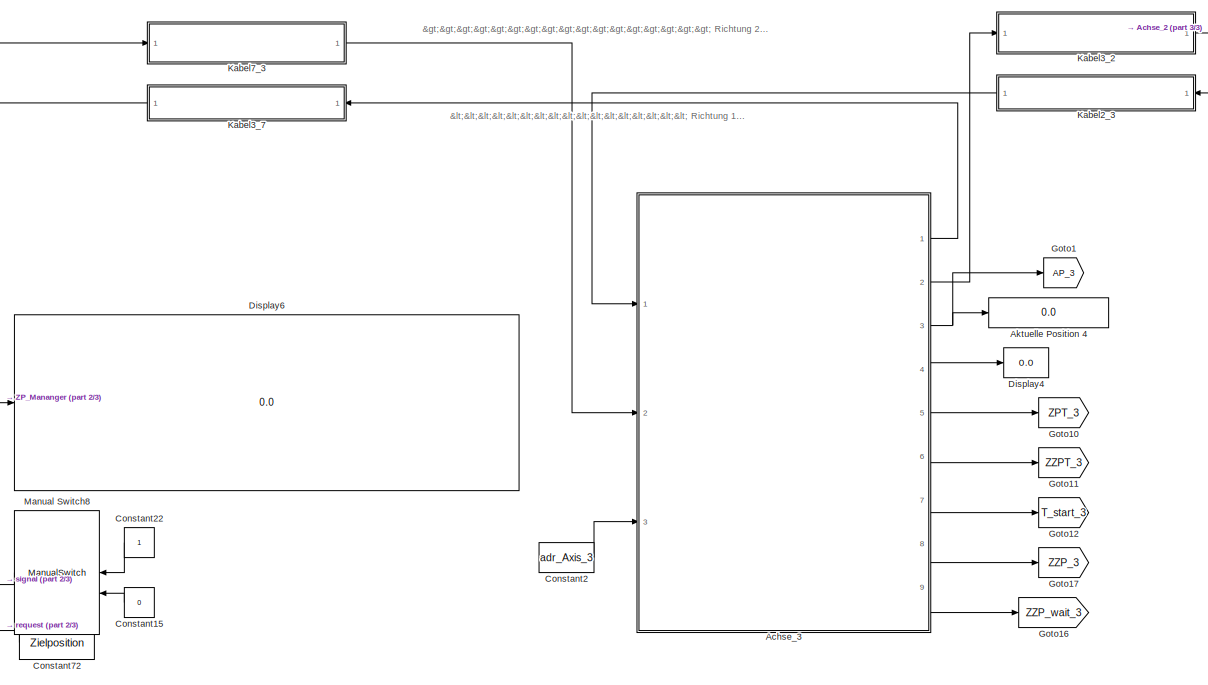
[diagram: root canvas - part 1/3, top center region]
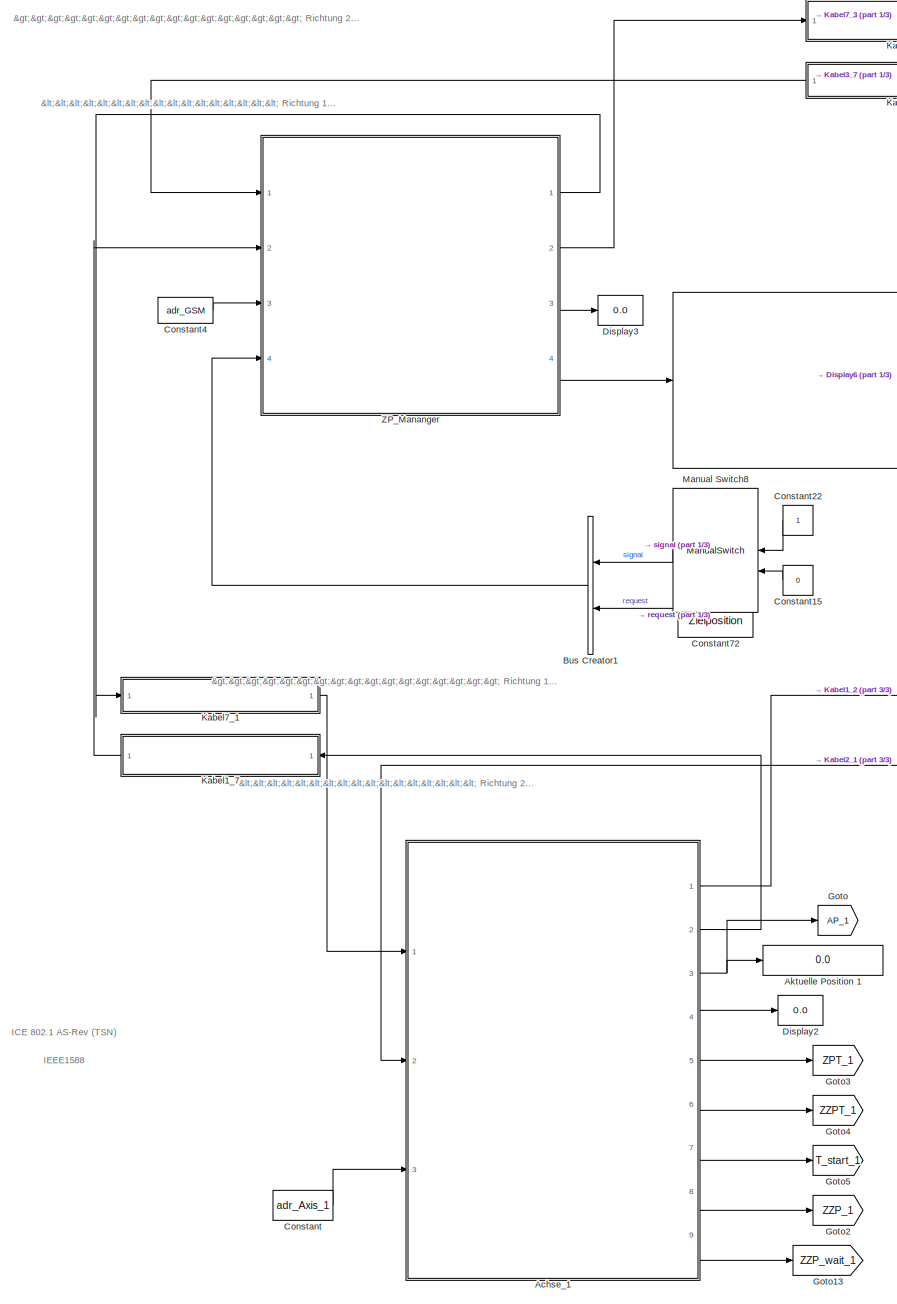
[diagram: root canvas - part 2/3, left side, full height]
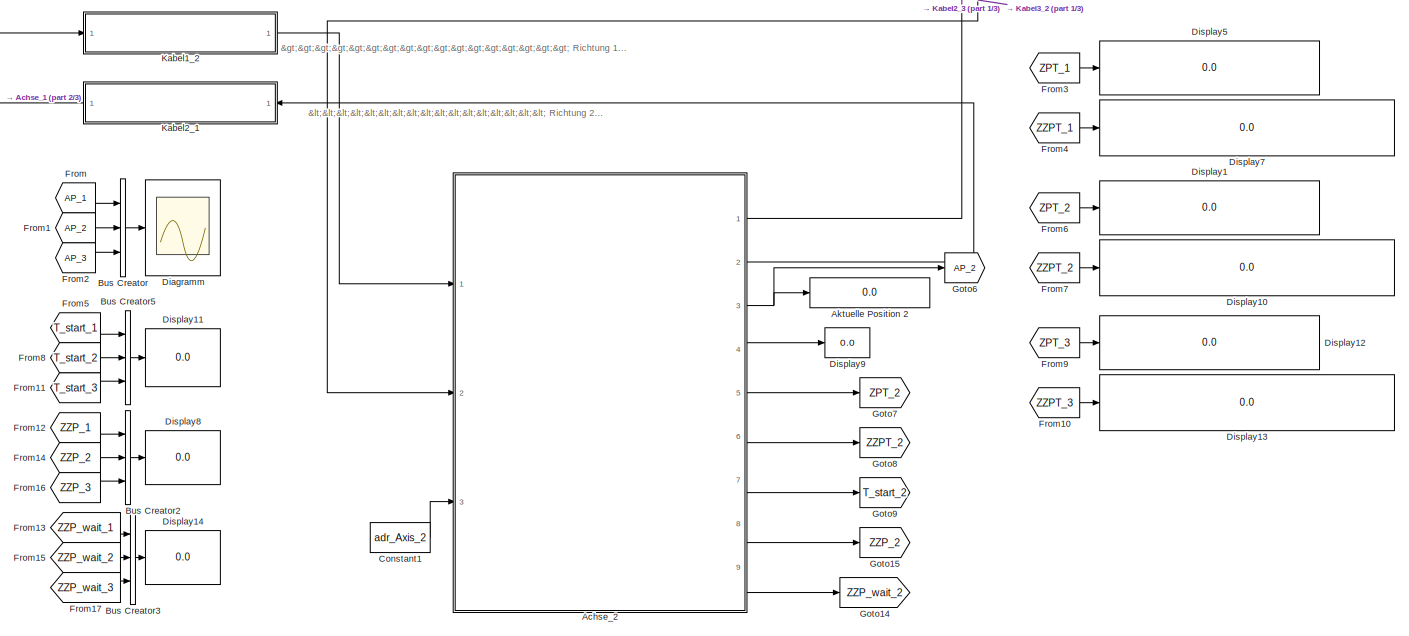
[diagram: root canvas - part 3/3, bottom right region]
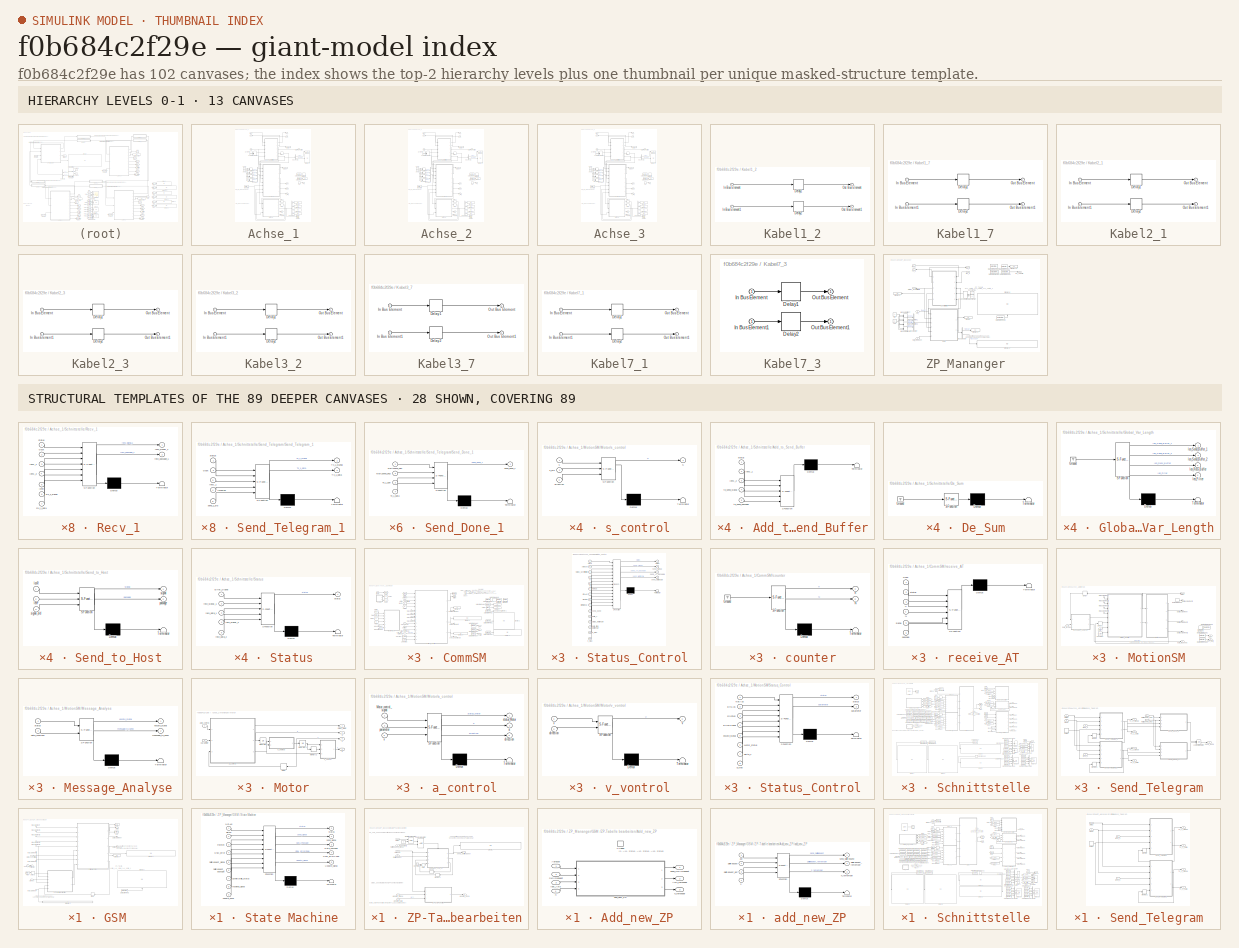
[diagram: thumbnail index - top-2 hierarchy levels (13 canvases) + 28 structural-template representatives of the remaining 89 canvases]
MODEL slx_f0b684c2f29e
KIND model
CONFIG AbsTol = auto
CONFIG EnableMultiTasking = off
CONFIG FixedStep = 1/f
CONFIG MaxStep = auto
CONFIG MinStep = auto
CONFIG RelTol = 1e-3
CONFIG SampleTimeConstraint = Unconstrained
CONFIG Solver = FixedStepAuto
CONFIG SolverName = FixedStepAuto
CONFIG StartTime = 0.0
CONFIG StopTime = inf
BLOCK [SubSystem] Achse_1
  Ports = [3, 9]
  RequestExecContextInheritance = off
BLOCK [DataStoreRead] Achse_1/AP1
  DataStoreName = AP
  Ports = [0, 1]
BLOCK [Outport] Achse_1/AP_
  IconDisplay = Port number
  Port = 3
BLOCK [Inport] Achse_1/Adr_
  IconDisplay = Port number
  Port = 3
BLOCK [BusCreator] Achse_1/Bus Creator2
  DisplayOption = bar
  InheritFromInputs = on
  Inputs = 4
  Ports = [4, 1]
BLOCK [BusSelector] Achse_1/Bus Selector1
  OutputAsBus = off
  OutputSignals = a,v,s,AP
  Ports = [1, 4]
BLOCK [BusSelector] Achse_1/Bus Selector2
  OutputAsBus = off
  OutputSignals = signal,package
  Ports = [1, 2]
BLOCK [SubSystem] Achse_1/CommSM
  Ports = [8, 6]
  RequestExecContextInheritance = off
BLOCK [Inport] Achse_1/CommSM/Adresse
  IconDisplay = Port number
  OutDataTypeStr = double
  PortDimensions = 1
  SignalType = real
  VarSizeSig = No
BLOCK [Clock] Achse_1/CommSM/Clock
BLOCK [Constant] Achse_1/CommSM/Constant
  Value = a_Max
BLOCK [Constant] Achse_1/CommSM/Constant1
  Value = v_Max
BLOCK [DataStoreMemory] Achse_1/CommSM/Data Store Memory
  DataStoreName = ZPT
  Dimensions = [10,3]
  InitialValue = zeros(10,3)
  OutDataTypeStr = double
  ReadBeforeWriteMsg = warning
  ShowAdditionalParam = off
  SignalType = real
  VectorParams1D = off
  WriteAfterReadMsg = warning
  WriteAfterWriteMsg = warning
BLOCK [DataStoreMemory] Achse_1/CommSM/Data Store Memory1
  DataStoreName = ZZPT
  Dimensions = [3,4]
  InitialValue = zeros(3,4)
  OutDataTypeStr = double
  ReadBeforeWriteMsg = warning
  ShowAdditionalParam = off
  SignalType = real
  VectorParams1D = off
  WriteAfterReadMsg = warning
  WriteAfterWriteMsg = warning
BLOCK [DataStoreMemory] Achse_1/CommSM/Data Store Memory2
  DataStoreName = T_start
  Dimensions = 1
  OutDataTypeStr = double
  ReadBeforeWriteMsg = warning
  ShowAdditionalParam = off
  SignalType = real
  WriteAfterReadMsg = warning
  WriteAfterWriteMsg = warning
BLOCK [DataStoreMemory] Achse_1/CommSM/Data Store Memory6
  DataStoreName = respond
  Dimensions = 1
  InitialValue = false
  OutDataTypeStr = boolean
  ReadBeforeWriteMsg = warning
  ShowAdditionalParam = off
  SignalType = real
  WriteAfterReadMsg = warning
  WriteAfterWriteMsg = warning
BLOCK [DataStoreRead] Achse_1/CommSM/Data Store Read
  DataStoreName = AP
  Ports = [0, 1]
BLOCK [DataStoreRead] Achse_1/CommSM/Data Store Read1
  DataStoreName = ZPT
  Ports = [0, 1]
BLOCK [DataStoreRead] Achse_1/CommSM/Data Store Read2
  DataStoreName = ZZPT
  Ports = [0, 1]
BLOCK [DataStoreRead] Achse_1/CommSM/Data Store Read3
  DataStoreName = T_start
  Ports = [0, 1]
BLOCK [DataStoreRead] Achse_1/CommSM/Data Store Read4
  DataStoreName = T_start
  Ports = [0, 1]
BLOCK [DataStoreRead] Achse_1/CommSM/Data Store Read5
  DataStoreName = ZPT
  Ports = [0, 1]
BLOCK [DataStoreRead] Achse_1/CommSM/Data Store Read6
  DataStoreName = ZZPT
  Ports = [0, 1]
BLOCK [Display] Achse_1/CommSM/Display1
  Decimation = 1
  Ports = [1]
BLOCK [Display] Achse_1/CommSM/Display2
  Decimation = 1
  Ports = [1]
BLOCK [Display] Achse_1/CommSM/Display3
  Decimation = 1
  Ports = [1]
BLOCK [Display] Achse_1/CommSM/Display4
  Decimation = 1
  Ports = [1]
BLOCK [Display] Achse_1/CommSM/Display5
  Decimation = 1
  Ports = [1]
BLOCK [Display] Achse_1/CommSM/Display6
  Decimation = 1
  Ports = [1]
BLOCK [Display] Achse_1/CommSM/Display7
  Decimation = 1
  Ports = [1]
BLOCK [Display] Achse_1/CommSM/Display8
  Decimation = 1
  Ports = [1]
BLOCK [From] Achse_1/CommSM/From
  GotoTag = status
BLOCK [From] Achse_1/CommSM/From1
  GotoTag = clock
BLOCK [From] Achse_1/CommSM/From2
  GotoTag = clock
BLOCK [From] Achse_1/CommSM/From5
  GotoTag = n
BLOCK [From] Achse_1/CommSM/From6
  GotoTag = N
BLOCK [From] Achse_1/CommSM/From7
  GotoTag = n
BLOCK [From] Achse_1/CommSM/From8
  GotoTag = N
BLOCK [From] Achse_1/CommSM/From9
  GotoTag = status
BLOCK [Goto] Achse_1/CommSM/Goto
  GotoTag = status
BLOCK [Goto] Achse_1/CommSM/Goto1
  GotoTag = clock
BLOCK [Goto] Achse_1/CommSM/Goto2
  GotoTag = n
BLOCK [Goto] Achse_1/CommSM/Goto3
  GotoTag = N
BLOCK [Inport] Achse_1/CommSM/In Bus Element
  IconDisplay = Port number
  Port = 5
BLOCK [Inport] Achse_1/CommSM/In Bus Element1
  IconDisplay = Port number
  Port = 5
BLOCK [Inport] Achse_1/CommSM/In Bus Element2
  IconDisplay = Port number
  Port = 3
BLOCK [Inport] Achse_1/CommSM/In Bus Element3
  IconDisplay = Port number
  Port = 3
BLOCK [Inport] Achse_1/CommSM/In Bus Element4
  IconDisplay = Port number
  Port = 3
BLOCK [Inport] Achse_1/CommSM/In Bus Element5
  IconDisplay = Port number
  Port = 3
BLOCK [Outport] Achse_1/CommSM/Out Bus Element
  IconDisplay = Port number
  Port = 2
BLOCK [Outport] Achse_1/CommSM/Out Bus Element1
  IconDisplay = Port number
  Port = 2
BLOCK [SubSystem] Achse_1/CommSM/Status_Control
  ErrorFcn = Stateflow.Translate.translate
  PermitHierarchicalResolution = ExplicitOnly
  Ports = [15, 4]
  RequestExecContextInheritance = off
  SFBlockType = Chart
  TreatAsAtomicUnit = on
BLOCK [Demux] Achse_1/CommSM/Status_Control/ Demux 
  Outputs = 1
  Ports = [1, 1]
BLOCK [S-Function] Achse_1/CommSM/Status_Control/ SFunction 
  EnableBusSupport = on
  FunctionName = sf_sfun
  PortCounts = [15 5]
  Ports = [15, 5]
  SFcnIsStateOwnerBlock = off
  SFunctionDeploymentMode = off
  Tag = Stateflow S-Function System_Modell 6
BLOCK [Terminator] Achse_1/CommSM/Status_Control/ Terminator 
BLOCK [Inport] Achse_1/CommSM/Status_Control/Adresse
  IconDisplay = Port number
  Port = 2
BLOCK [Inport] Achse_1/CommSM/Status_Control/EinAus
  IconDisplay = Port number
  Port = 7
BLOCK [Inport] Achse_1/CommSM/Status_Control/ErrorSignal
  IconDisplay = Port number
  Port = 9
BLOCK [Inport] Achse_1/CommSM/Status_Control/N
  IconDisplay = Port number
  Port = 5
BLOCK [Inport] Achse_1/CommSM/Status_Control/NotAus
  IconDisplay = Port number
  Port = 6
BLOCK [Inport] Achse_1/CommSM/Status_Control/Richten
  IconDisplay = Port number
  Port = 8
BLOCK [Inport] Achse_1/CommSM/Status_Control/a_Max
  IconDisplay = Port number
  Port = 14
BLOCK [Inport] Achse_1/CommSM/Status_Control/clock
  IconDisplay = Port number
BLOCK [Inport] Achse_1/CommSM/Status_Control/data_from_MotionSM
  IconDisplay = Port number
  Port = 13
BLOCK [Inport] Achse_1/CommSM/Status_Control/delta_T
  IconDisplay = Port number
  Port = 11
BLOCK [Inport] Achse_1/CommSM/Status_Control/n
  IconDisplay = Port number
  Port = 4
BLOCK [Outport] Achse_1/CommSM/Status_Control/send_AT_package
  IconDisplay = Port number
  Port = 3
BLOCK [Outport] Achse_1/CommSM/Status_Control/send_MotionSM
  IconDisplay = Port number
  Port = 4
BLOCK [Inport] Achse_1/CommSM/Status_Control/send_done
  IconDisplay = Port number
  Port = 10
BLOCK [Outport] Achse_1/CommSM/Status_Control/send_signal
  IconDisplay = Port number
  Port = 2
BLOCK [Outport] Achse_1/CommSM/Status_Control/status
  IconDisplay = Port number
BLOCK [Inport] Achse_1/CommSM/Status_Control/status_MotionSM
  IconDisplay = Port number
  Port = 12
BLOCK [Inport] Achse_1/CommSM/Status_Control/status_Schnittstelle
  IconDisplay = Port number
  Port = 3
BLOCK [Inport] Achse_1/CommSM/Status_Control/v_Max
  IconDisplay = Port number
  Port = 15
BLOCK [Outport] Achse_1/CommSM/T_start
  IconDisplay = Port number
  Port = 6
BLOCK [Outport] Achse_1/CommSM/ZPT
  IconDisplay = Port number
  Port = 4
BLOCK [Outport] Achse_1/CommSM/ZZPT
  IconDisplay = Port number
  Port = 5
BLOCK [SubSystem] Achse_1/CommSM/counter
  ErrorFcn = Stateflow.Translate.translate
  PermitHierarchicalResolution = ExplicitOnly
  Ports = [0, 2]
  RequestExecContextInheritance = off
  SFBlockType = MATLAB Function
  TreatAsAtomicUnit = on
BLOCK [Demux] Achse_1/CommSM/counter/ Demux 
  Outputs = 1
  Ports = [1, 1]
BLOCK [Ground] Achse_1/CommSM/counter/ Ground 
BLOCK [S-Function] Achse_1/CommSM/counter/ SFunction 
  EnableBusSupport = on
  FunctionName = sf_sfun
  PortCounts = [1 3]
  Ports = [1, 3]
  SFcnIsStateOwnerBlock = off
  SFunctionDeploymentMode = off
  Tag = Stateflow S-Function System_Modell 9
BLOCK [Terminator] Achse_1/CommSM/counter/ Terminator 
BLOCK [Outport] Achse_1/CommSM/counter/N
  IconDisplay = Port number
  Port = 2
BLOCK [Outport] Achse_1/CommSM/counter/n
  IconDisplay = Port number
BLOCK [Inport] Achse_1/CommSM/data_from_MotionSM
  IconDisplay = Port number
  OutDataTypeStr = double
  Port = 8
  PortDimensions = 2
  SignalType = real
  VarSizeSig = No
BLOCK [Inport] Achse_1/CommSM/delta_T
  IconDisplay = Port number
  Port = 6
BLOCK [SubSystem] Achse_1/CommSM/receive_AT
  ErrorFcn = Stateflow.Translate.translate
  PermitHierarchicalResolution = ExplicitOnly
  Ports = [6]
  RequestExecContextInheritance = off
  SFBlockType = MATLAB Function
  TreatAsAtomicUnit = on
BLOCK [Demux] Achse_1/CommSM/receive_AT/ Demux 
  Outputs = 1
  Ports = [1, 1]
BLOCK [S-Function] Achse_1/CommSM/receive_AT/ SFunction 
  EnableBusSupport = on
  FunctionName = sf_sfun
  PortCounts = [6 1]
  Ports = [6, 1]
  SFcnIsStateOwnerBlock = off
  SFunctionDeploymentMode = off
  Tag = Stateflow S-Function System_Modell 7
BLOCK [Terminator] Achse_1/CommSM/receive_AT/ Terminator 
BLOCK [Inport] Achse_1/CommSM/receive_AT/N
  IconDisplay = Port number
  Port = 4
BLOCK [Inport] Achse_1/CommSM/receive_AT/clock
  IconDisplay = Port number
BLOCK [Inport] Achse_1/CommSM/receive_AT/n
  IconDisplay = Port number
  Port = 3
BLOCK [Inport] Achse_1/CommSM/receive_AT/package
  IconDisplay = Port number
  Port = 6
BLOCK [Inport] Achse_1/CommSM/receive_AT/signal
  IconDisplay = Port number
  Port = 5
BLOCK [Inport] Achse_1/CommSM/receive_AT/status
  IconDisplay = Port number
  Port = 2
BLOCK [Inport] Achse_1/CommSM/send_done
  IconDisplay = Port number
  Port = 4
BLOCK [Outport] Achse_1/CommSM/send_to_MotionSM
  IconDisplay = Port number
  Port = 3
  VarSizeSig = No
BLOCK [Outport] Achse_1/CommSM/status
  IconDisplay = Port number
  OutDataTypeStr = double
  PortDimensions = 1
  SignalType = real
  VarSizeSig = No
BLOCK [Inport] Achse_1/CommSM/status_MotionSM
  IconDisplay = Port number
  OutDataTypeStr = double
  Port = 7
  PortDimensions = 1
  SignalType = real
  VarSizeSig = No
BLOCK [Inport] Achse_1/CommSM/status_Schnittstelle
  IconDisplay = Port number
  OutDataTypeStr = double
  Port = 2
  PortDimensions = 1
  SignalType = real
  VarSizeSig = No
BLOCK [Constant] Achse_1/Constant22
  OutDataTypeStr = boolean
  Value = 0
BLOCK [Constant] Achse_1/Constant3
  OutDataTypeStr = double
  Value = delta_T
BLOCK [Constant] Achse_1/Constant5
  OutDataTypeStr = boolean
BLOCK [DataStoreMemory] Achse_1/Data Store Memory2
  DataStoreName = De_sum
  Dimensions = 1
  OutDataTypeStr = double
  ReadBeforeWriteMsg = warning
  ShowAdditionalParam = off
  SignalType = real
  WriteAfterReadMsg = warning
  WriteAfterWriteMsg = warning
BLOCK [DataStoreMemory] Achse_1/Data Store Memory3
  DataStoreName = AP
  Dimensions = 1
  OutDataTypeStr = double
  OutMax = [100]
  OutMin = [0]
  ReadBeforeWriteMsg = warning
  ShowAdditionalParam = off
  SignalType = real
  WriteAfterReadMsg = warning
  WriteAfterWriteMsg = warning
BLOCK [DataStoreRead] Achse_1/Data Store Read
  DataStoreName = De_sum
  Ports = [0, 1]
BLOCK [Delay] Achse_1/Delay
  DelayLength = 1
  InputPortMap = u0
  Ports = [1, 1]
BLOCK [Delay] Achse_1/Delay1
  DelayLength = 1
  InputPortMap = u0
  Ports = [1, 1]
BLOCK [Delay] Achse_1/Delay2
  DelayLength = 1
  InputPortMap = u0
  Ports = [1, 1]
BLOCK [Display] Achse_1/Display1
  Decimation = 1
  Format = decimal (Stored Integer)
  Ports = [1]
BLOCK [Display] Achse_1/Display11
  Decimation = 1
  Ports = [1]
BLOCK [Display] Achse_1/Display12
  Decimation = 1
  Format = decimal (Stored Integer)
  Ports = [1]
BLOCK [Display] Achse_1/Display13
  Decimation = 7
  Ports = [1]
BLOCK [Display] Achse_1/Display5
  Decimation = 1
  Ports = [1]
BLOCK [Display] Achse_1/Display6
  Decimation = 1
  Ports = [1]
BLOCK [Display] Achse_1/Display7
  Decimation = 1
  Ports = [1]
BLOCK [Display] Achse_1/Display8
  Decimation = 1
  Format = decimal (Stored Integer)
  Ports = [1]
BLOCK [Display] Achse_1/Display9
  Decimation = 1
  Ports = [1]
BLOCK [ManualSwitch] Achse_1/Manual Switch21
  CurrentSetting = 0
BLOCK [ManualSwitch] Achse_1/Manual Switch25
BLOCK [ManualSwitch] Achse_1/Manual Switch31
  CurrentSetting = 0
BLOCK [ManualSwitch] Achse_1/Manual Switch8
  CurrentSetting = 0
BLOCK [ManualSwitch] Achse_1/Manual Switch9
  CurrentSetting = 0
BLOCK [SubSystem] Achse_1/MotionSM
  Ports = [3, 5]
  RequestExecContextInheritance = off
BLOCK [Constant] Achse_1/MotionSM/Constant
  Value = a_Max
BLOCK [DataStoreMemory] Achse_1/MotionSM/Data Store Memory4
  DataStoreName = ZZP
  Dimensions = 1
  OutDataTypeStr = double
  ReadBeforeWriteMsg = warning
  ShowAdditionalParam = off
  SignalType = real
  WriteAfterReadMsg = warning
  WriteAfterWriteMsg = warning
BLOCK [DataStoreMemory] Achse_1/MotionSM/Data Store Memory5
  DataStoreName = ZZP_wait
  Dimensions = 1
  OutDataTypeStr = double
  ReadBeforeWriteMsg = warning
  ShowAdditionalParam = off
  SignalType = real
  WriteAfterReadMsg = warning
  WriteAfterWriteMsg = warning
BLOCK [DataStoreRead] Achse_1/MotionSM/Data Store Read
  DataStoreName = AP
  Ports = [0, 1]
BLOCK [DataStoreRead] Achse_1/MotionSM/Data Store Read1
  DataStoreName = ZZP
  Ports = [0, 1]
BLOCK [DataStoreRead] Achse_1/MotionSM/Data Store Read2
  DataStoreName = ZZP_wait
  Ports = [0, 1]
BLOCK [Delay] Achse_1/MotionSM/Delay
  DelayLength = 1
  InputPortMap = u0
  Ports = [1, 1]
BLOCK [Delay] Achse_1/MotionSM/Delay1
  DelayLength = 1
  InputPortMap = u0
  Ports = [1, 1]
BLOCK [Inport] Achse_1/MotionSM/In Bus Element
  IconDisplay = Port number
BLOCK [Inport] Achse_1/MotionSM/In Bus Element1
  IconDisplay = Port number
BLOCK [Inport] Achse_1/MotionSM/In Bus Element2
  IconDisplay = Port number
BLOCK [Inport] Achse_1/MotionSM/In Bus Element3
  IconDisplay = Port number
BLOCK [SubSystem] Achse_1/MotionSM/Message_Analyse
  ErrorFcn = Stateflow.Translate.translate
  PermitHierarchicalResolution = ExplicitOnly
  Ports = [2, 2]
  RequestExecContextInheritance = off
  SFBlockType = MATLAB Function
  TreatAsAtomicUnit = on
BLOCK [Demux] Achse_1/MotionSM/Message_Analyse/ Demux 
  Outputs = 1
  Ports = [1, 1]
BLOCK [S-Function] Achse_1/MotionSM/Message_Analyse/ SFunction 
  EnableBusSupport = on
  FunctionName = sf_sfun
  PortCounts = [2 3]
  Ports = [2, 3]
  SFcnIsStateOwnerBlock = off
  SFunctionDeploymentMode = off
  Tag = Stateflow S-Function System_Modell 1
BLOCK [Terminator] Achse_1/MotionSM/Message_Analyse/ Terminator 
BLOCK [Inport] Achse_1/MotionSM/Message_Analyse/data_received
  IconDisplay = Port number
  Port = 2
BLOCK [Outport] Achse_1/MotionSM/Message_Analyse/excute_signal
  IconDisplay = Port number
BLOCK [Outport] Achse_1/MotionSM/Message_Analyse/message_to_send
  IconDisplay = Port number
  Port = 2
BLOCK [Inport] Achse_1/MotionSM/Message_Analyse/status
  IconDisplay = Port number
BLOCK [SubSystem] Achse_1/MotionSM/Motor
  Ports = [2, 4]
  RequestExecContextInheritance = off
BLOCK [Delay] Achse_1/MotionSM/Motor/Delay
  DelayLength = 1
  InputPortMap = u0
  Ports = [1, 1]
BLOCK [Integrator] Achse_1/MotionSM/Motor/Integrator
  Ports = [1, 1]
BLOCK [Integrator] Achse_1/MotionSM/Motor/Integrator1
  Ports = [1, 1]
BLOCK [Memory] Achse_1/MotionSM/Motor/Memory2
BLOCK [Outport] Achse_1/MotionSM/Motor/a
  IconDisplay = Port number
  Port = 2
BLOCK [SubSystem] Achse_1/MotionSM/Motor/a_control
  ErrorFcn = Stateflow.Translate.translate
  PermitHierarchicalResolution = ExplicitOnly
  Ports = [3, 3]
  RequestExecContextInheritance = off
  SFBlockType = MATLAB Function
  TreatAsAtomicUnit = on
BLOCK [Demux] Achse_1/MotionSM/Motor/a_control/ Demux 
  Outputs = 1
  Ports = [1, 1]
BLOCK [S-Function] Achse_1/MotionSM/Motor/a_control/ SFunction 
  EnableBusSupport = on
  FunctionName = sf_sfun
  PortCounts = [3 4]
  Ports = [3, 4]
  SFcnIsStateOwnerBlock = off
  SFunctionDeploymentMode = off
  Tag = Stateflow S-Function System_Modell 2
BLOCK [Terminator] Achse_1/MotionSM/Motor/a_control/ Terminator 
BLOCK [Inport] Achse_1/MotionSM/Motor/a_control/Motor_control_signal
  IconDisplay = Port number
BLOCK [Outport] Achse_1/MotionSM/Motor/a_control/a
  IconDisplay = Port number
  Port = 2
BLOCK [Outport] Achse_1/MotionSM/Motor/a_control/direction
  IconDisplay = Port number
  Port = 3
BLOCK [Inport] Achse_1/MotionSM/Motor/a_control/parameter
  IconDisplay = Port number
  Port = 2
BLOCK [Outport] Achse_1/MotionSM/Motor/a_control/status_Motor
  IconDisplay = Port number
BLOCK [Inport] Achse_1/MotionSM/Motor/a_control/v
  IconDisplay = Port number
  Port = 3
BLOCK [Inport] Achse_1/MotionSM/Motor/auto_control
  IconDisplay = Port number
BLOCK [Inport] Achse_1/MotionSM/Motor/parameter
  IconDisplay = Port number
  Port = 2
BLOCK [Outport] Achse_1/MotionSM/Motor/s
  IconDisplay = Port number
  Port = 4
BLOCK [SubSystem] Achse_1/MotionSM/Motor/s_control
  ErrorFcn = Stateflow.Translate.translate
  PermitHierarchicalResolution = ExplicitOnly
  Ports = [3, 1]
  RequestExecContextInheritance = off
  SFBlockType = MATLAB Function
  TreatAsAtomicUnit = on
BLOCK [Demux] Achse_1/MotionSM/Motor/s_control/ Demux 
  Outputs = 1
  Ports = [1, 1]
BLOCK [S-Function] Achse_1/MotionSM/Motor/s_control/ SFunction 
  EnableBusSupport = on
  FunctionName = sf_sfun
  PortCounts = [3 2]
  Ports = [3, 2]
  SFcnIsStateOwnerBlock = off
  SFunctionDeploymentMode = off
  Tag = Stateflow S-Function System_Modell 5
BLOCK [Terminator] Achse_1/MotionSM/Motor/s_control/ Terminator 
BLOCK [Outport] Achse_1/MotionSM/Motor/s_control/S
  IconDisplay = Port number
BLOCK [Inport] Achse_1/MotionSM/Motor/s_control/direction
  IconDisplay = Port number
  Port = 3
BLOCK [Inport] Achse_1/MotionSM/Motor/s_control/s
  IconDisplay = Port number
BLOCK [Inport] Achse_1/MotionSM/Motor/s_control/s_old
  IconDisplay = Port number
  Port = 2
BLOCK [Outport] Achse_1/MotionSM/Motor/status_Motor
  IconDisplay = Port number
BLOCK [Outport] Achse_1/MotionSM/Motor/v
  IconDisplay = Port number
  Port = 3
BLOCK [SubSystem] Achse_1/MotionSM/Motor/v_vontrol
  ErrorFcn = Stateflow.Translate.translate
  PermitHierarchicalResolution = ExplicitOnly
  Ports = [2, 1]
  RequestExecContextInheritance = off
  SFBlockType = MATLAB Function
  TreatAsAtomicUnit = on
BLOCK [Demux] Achse_1/MotionSM/Motor/v_vontrol/ Demux 
  Outputs = 1
  Ports = [1, 1]
BLOCK [S-Function] Achse_1/MotionSM/Motor/v_vontrol/ SFunction 
  EnableBusSupport = on
  FunctionName = sf_sfun
  PortCounts = [2 2]
  Ports = [2, 2]
  SFcnIsStateOwnerBlock = off
  SFunctionDeploymentMode = off
  Tag = Stateflow S-Function System_Modell 4
BLOCK [Terminator] Achse_1/MotionSM/Motor/v_vontrol/ Terminator 
BLOCK [Outport] Achse_1/MotionSM/Motor/v_vontrol/V
  IconDisplay = Port number
BLOCK [Inport] Achse_1/MotionSM/Motor/v_vontrol/direction
  IconDisplay = Port number
  Port = 2
BLOCK [Inport] Achse_1/MotionSM/Motor/v_vontrol/v
  IconDisplay = Port number
BLOCK [Outport] Achse_1/MotionSM/Out Bus Element
  IconDisplay = Port number
  Port = 3
BLOCK [Outport] Achse_1/MotionSM/Out Bus Element1
  IconDisplay = Port number
  Port = 3
BLOCK [Outport] Achse_1/MotionSM/Out Bus Element2
  IconDisplay = Port number
  Port = 3
BLOCK [Outport] Achse_1/MotionSM/Out Bus Element3
  IconDisplay = Port number
  Port = 3
BLOCK [SubSystem] Achse_1/MotionSM/Status_Control
  ErrorFcn = Stateflow.Translate.translate
  PermitHierarchicalResolution = ExplicitOnly
  Ports = [8, 2]
  RequestExecContextInheritance = off
  SFBlockType = Chart
  TreatAsAtomicUnit = on
BLOCK [Demux] Achse_1/MotionSM/Status_Control/ Demux 
  Outputs = 1
  Ports = [1, 1]
BLOCK [S-Function] Achse_1/MotionSM/Status_Control/ SFunction 
  EnableBusSupport = on
  FunctionName = sf_sfun
  PortCounts = [8 3]
  Ports = [8, 3]
  SFcnIsStateOwnerBlock = off
  SFunctionDeploymentMode = off
  Tag = Stateflow S-Function System_Modell 3
BLOCK [Terminator] Achse_1/MotionSM/Status_Control/ Terminator 
BLOCK [Inport] Achse_1/MotionSM/Status_Control/EinAus
  IconDisplay = Port number
  Port = 2
BLOCK [Inport] Achse_1/MotionSM/Status_Control/ErrorSignal
  IconDisplay = Port number
  Port = 4
BLOCK [Inport] Achse_1/MotionSM/Status_Control/Motor_status
  IconDisplay = Port number
  Port = 6
BLOCK [Inport] Achse_1/MotionSM/Status_Control/NotAus
  IconDisplay = Port number
BLOCK [Inport] Achse_1/MotionSM/Status_Control/Richten
  IconDisplay = Port number
  Port = 3
BLOCK [Inport] Achse_1/MotionSM/Status_Control/a_Max
  IconDisplay = Port number
  Port = 8
BLOCK [Inport] Achse_1/MotionSM/Status_Control/delta_T
  IconDisplay = Port number
  Port = 7
BLOCK [Inport] Achse_1/MotionSM/Status_Control/excute_signal
  IconDisplay = Port number
  Port = 5
BLOCK [Outport] Achse_1/MotionSM/Status_Control/parameter
  IconDisplay = Port number
  Port = 2
BLOCK [Outport] Achse_1/MotionSM/Status_Control/status
  IconDisplay = Port number
BLOCK [Outport] Achse_1/MotionSM/ZZP_
  IconDisplay = Port number
  Port = 4
BLOCK [Outport] Achse_1/MotionSM/ZZP_wait_
  IconDisplay = Port number
  Port = 5
BLOCK [Inport] Achse_1/MotionSM/data_received
  IconDisplay = Port number
  OutDataTypeStr = double
  Port = 2
  PortDimensions = 2
  SignalType = real
  VarSizeSig = No
BLOCK [Outport] Achse_1/MotionSM/data_to_send
  IconDisplay = Port number
  OutDataTypeStr = double
  Port = 2
  PortDimensions = 2
  SignalType = real
BLOCK [Inport] Achse_1/MotionSM/delta_T
  IconDisplay = Port number
  Port = 3
BLOCK [Outport] Achse_1/MotionSM/status
  IconDisplay = Port number
BLOCK [Inport] Achse_1/Rx_1
  IconDisplay = Port number
BLOCK [Inport] Achse_1/Rx_2
  IconDisplay = Port number
  Port = 2
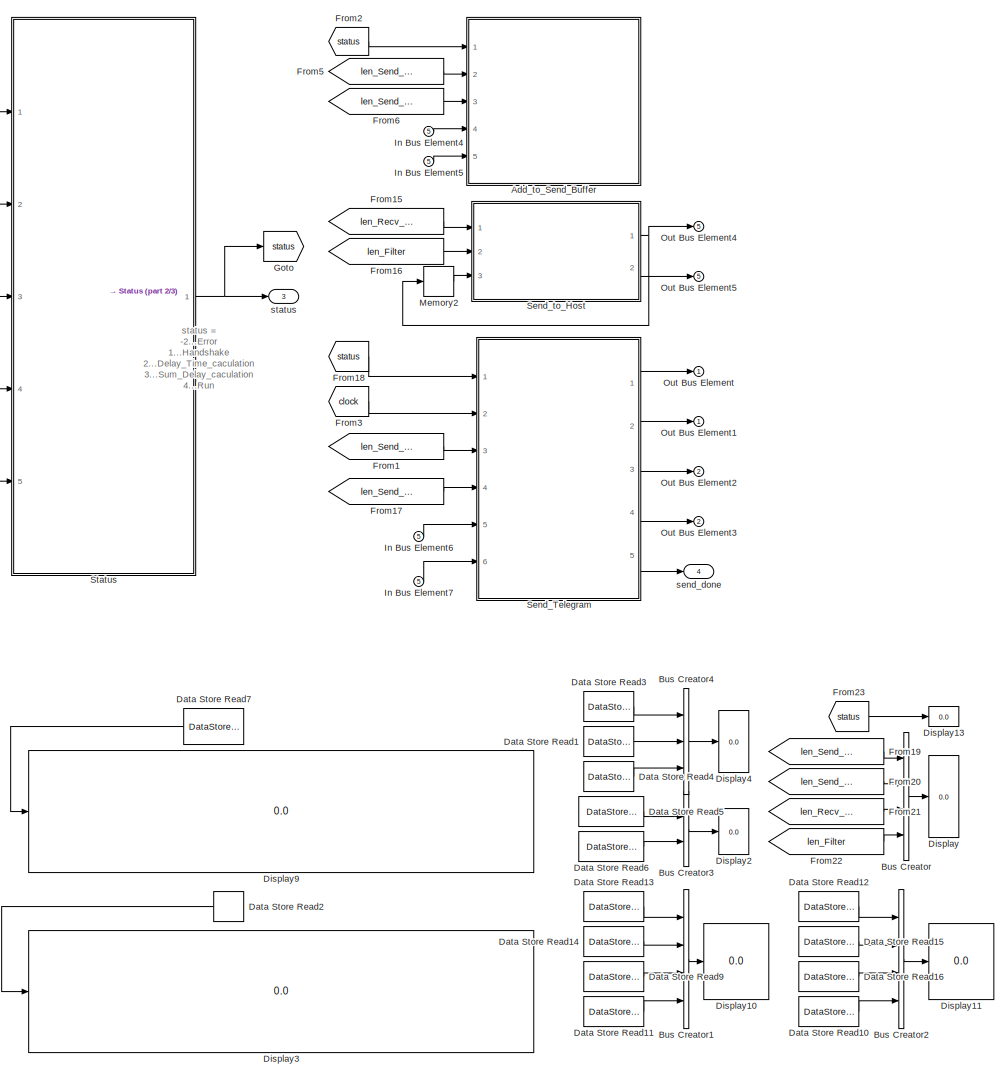
[diagram: Achse_1/Schnittstelle - part 1/3, right side, full height]
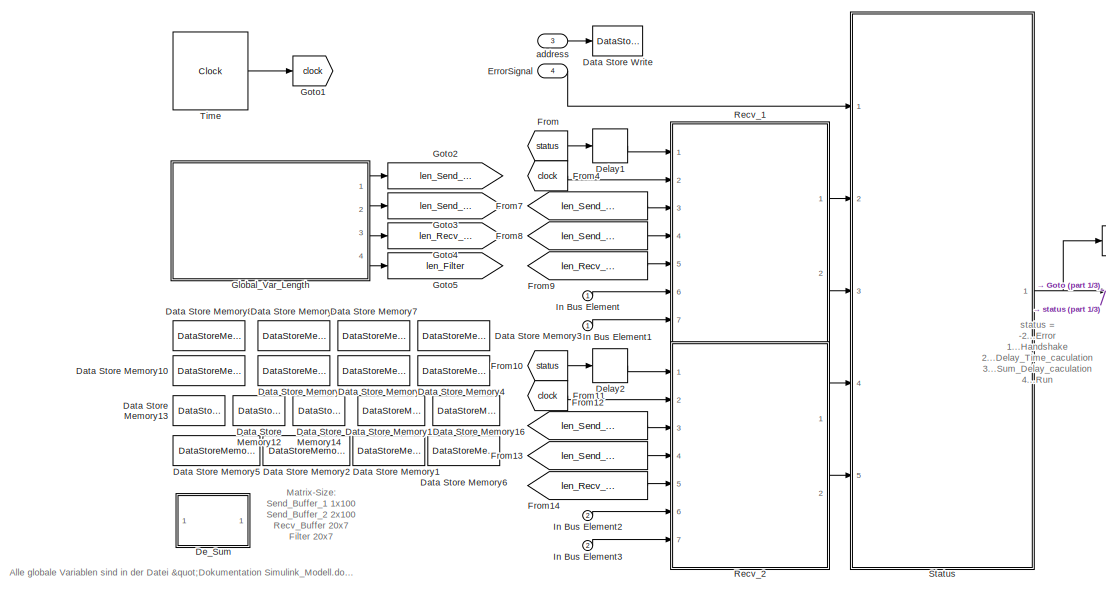
[diagram: Achse_1/Schnittstelle - part 2/3, top left region]
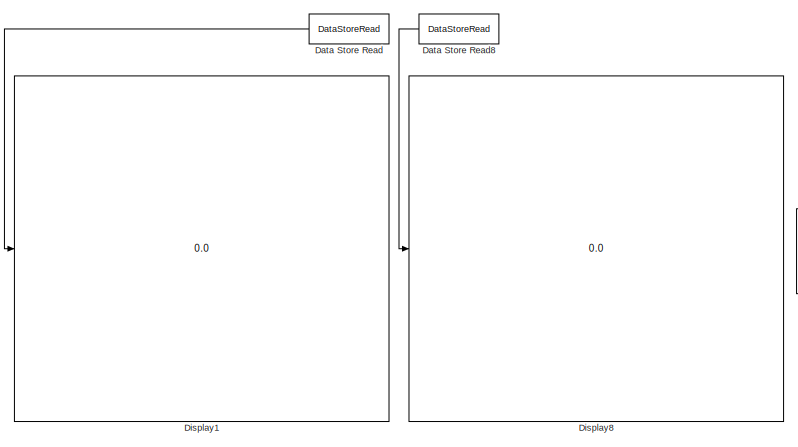
[diagram: Achse_1/Schnittstelle - part 3/3, bottom left region]
BLOCK [SubSystem] Achse_1/Schnittstelle
  Ports = [5, 5]
  RequestExecContextInheritance = off
BLOCK [SubSystem] Achse_1/Schnittstelle/Add_to_Send_Buffer
  ErrorFcn = Stateflow.Translate.translate
  PermitHierarchicalResolution = ExplicitOnly
  Ports = [5]
  RequestExecContextInheritance = off
  SFBlockType = MATLAB Function
  SystemSampleTime = 10/f
  TreatAsAtomicUnit = on
BLOCK [Demux] Achse_1/Schnittstelle/Add_to_Send_Buffer/ Demux 
  Outputs = 1
  Ports = [1, 1]
BLOCK [S-Function] Achse_1/Schnittstelle/Add_to_Send_Buffer/ SFunction 
  EnableBusSupport = on
  FunctionName = sf_sfun
  PortCounts = [5 1]
  Ports = [5, 1]
  SFcnIsStateOwnerBlock = off
  SFunctionDeploymentMode = off
  Tag = Stateflow S-Function System_Modell 11
BLOCK [Terminator] Achse_1/Schnittstelle/Add_to_Send_Buffer/ Terminator 
BLOCK [Inport] Achse_1/Schnittstelle/Add_to_Send_Buffer/lenS_1
  IconDisplay = Port number
  Port = 2
BLOCK [Inport] Achse_1/Schnittstelle/Add_to_Send_Buffer/lenS_2
  IconDisplay = Port number
  Port = 3
BLOCK [Inport] Achse_1/Schnittstelle/Add_to_Send_Buffer/status
  IconDisplay = Port number
BLOCK [Inport] Achse_1/Schnittstelle/Add_to_Send_Buffer/to_send_package
  IconDisplay = Port number
  Port = 5
BLOCK [Inport] Achse_1/Schnittstelle/Add_to_Send_Buffer/to_send_signal
  IconDisplay = Port number
  Port = 4
BLOCK [BusCreator] Achse_1/Schnittstelle/Bus Creator
  DisplayOption = bar
  InheritFromInputs = on
  Inputs = 4
  Ports = [4, 1]
BLOCK [BusCreator] Achse_1/Schnittstelle/Bus Creator1
  DisplayOption = bar
  InheritFromInputs = on
  Inputs = 4
  Ports = [4, 1]
BLOCK [BusCreator] Achse_1/Schnittstelle/Bus Creator2
  DisplayOption = bar
  InheritFromInputs = on
  Inputs = 4
  Ports = [4, 1]
BLOCK [BusCreator] Achse_1/Schnittstelle/Bus Creator3
  DisplayOption = bar
  InheritFromInputs = on
  Inputs = 2
  Ports = [2, 1]
BLOCK [BusCreator] Achse_1/Schnittstelle/Bus Creator4
  DisplayOption = bar
  InheritFromInputs = on
  Inputs = 3
  Ports = [3, 1]
BLOCK [DataStoreMemory] Achse_1/Schnittstelle/Data Store Memory
  DataStoreName = De_2
  Dimensions = 1
  OutDataTypeStr = double
  ReadBeforeWriteMsg = warning
  ShowAdditionalParam = off
  SignalType = real
  WriteAfterReadMsg = warning
  WriteAfterWriteMsg = warning
BLOCK [DataStoreMemory] Achse_1/Schnittstelle/Data Store Memory1
  DataStoreName = Recv_Buffer
  Dimensions = [20,7]
  InitialValue = zeros(20,7)
  OutDataTypeStr = double
  ReadBeforeWriteMsg = warning
  ShowAdditionalParam = off
  SignalType = real
  VectorParams1D = off
  WriteAfterReadMsg = warning
  WriteAfterWriteMsg = warning
BLOCK [DataStoreMemory] Achse_1/Schnittstelle/Data Store Memory10
  DataStoreName = T_send_2
  Dimensions = 1
  OutDataTypeStr = double
  ReadBeforeWriteMsg = warning
  ShowAdditionalParam = off
  SignalType = real
  WriteAfterReadMsg = warning
  WriteAfterWriteMsg = warning
BLOCK [DataStoreMemory] Achse_1/Schnittstelle/Data Store Memory11
  DataStoreName = T_recv_2
  Dimensions = 1
  OutDataTypeStr = double
  ReadBeforeWriteMsg = warning
  ShowAdditionalParam = off
  SignalType = real
  WriteAfterReadMsg = warning
  WriteAfterWriteMsg = warning
BLOCK [DataStoreMemory] Achse_1/Schnittstelle/Data Store Memory12
  DataStoreName = Address
  Dimensions = 1
  OutDataTypeStr = double
  ReadBeforeWriteMsg = warning
  ShowAdditionalParam = off
  SignalType = real
  WriteAfterReadMsg = warning
  WriteAfterWriteMsg = warning
BLOCK [DataStoreMemory] Achse_1/Schnittstelle/Data Store Memory13
  DataStoreName = Address_1
  Dimensions = 1
  OutDataTypeStr = double
  ReadBeforeWriteMsg = warning
  ShowAdditionalParam = off
  SignalType = real
  WriteAfterReadMsg = warning
  WriteAfterWriteMsg = warning
BLOCK [DataStoreMemory] Achse_1/Schnittstelle/Data Store Memory14
  DataStoreName = Address_2
  Dimensions = 1
  OutDataTypeStr = double
  ReadBeforeWriteMsg = warning
  ShowAdditionalParam = off
  SignalType = real
  WriteAfterReadMsg = warning
  WriteAfterWriteMsg = warning
BLOCK [DataStoreMemory] Achse_1/Schnittstelle/Data Store Memory15
  DataStoreName = Handshake_1
  InitialValue = false
  OutDataTypeStr = boolean
  ReadBeforeWriteMsg = warning
  ShowAdditionalParam = off
  SignalType = real
  WriteAfterReadMsg = warning
  WriteAfterWriteMsg = warning
BLOCK [DataStoreMemory] Achse_1/Schnittstelle/Data Store Memory16
  DataStoreName = Handshake_2
  InitialValue = false
  OutDataTypeStr = boolean
  ReadBeforeWriteMsg = warning
  ShowAdditionalParam = off
  SignalType = real
  WriteAfterReadMsg = warning
  WriteAfterWriteMsg = warning
BLOCK [DataStoreMemory] Achse_1/Schnittstelle/Data Store Memory2
  DataStoreName = Send_Buffer_2
  Dimensions = [1,100]
  InitialValue = [101, 102, zeros(1,98)]
  OutDataTypeStr = double
  ReadBeforeWriteMsg = warning
  ShowAdditionalParam = off
  SignalType = real
  VectorParams1D = off
  WriteAfterReadMsg = warning
  WriteAfterWriteMsg = warning
BLOCK [DataStoreMemory] Achse_1/Schnittstelle/Data Store Memory3
  DataStoreName = De_sum_1
  Dimensions = 1
  OutDataTypeStr = double
  ReadBeforeWriteMsg = warning
  ShowAdditionalParam = off
  SignalType = real
  WriteAfterReadMsg = warning
  WriteAfterWriteMsg = warning
BLOCK [DataStoreMemory] Achse_1/Schnittstelle/Data Store Memory4
  DataStoreName = De_sum_2
  Dimensions = 1
  OutDataTypeStr = double
  ReadBeforeWriteMsg = warning
  ShowAdditionalParam = off
  SignalType = real
  WriteAfterReadMsg = warning
  WriteAfterWriteMsg = warning
BLOCK [DataStoreMemory] Achse_1/Schnittstelle/Data Store Memory5
  DataStoreName = Send_Buffer_1
  Dimensions = [1,100]
  InitialValue = [101, 102, zeros(1,98)]
  OutDataTypeStr = double
  ReadBeforeWriteMsg = warning
  ShowAdditionalParam = off
  SignalType = real
  VectorParams1D = off
  WriteAfterReadMsg = warning
  WriteAfterWriteMsg = warning
BLOCK [DataStoreMemory] Achse_1/Schnittstelle/Data Store Memory6
  DataStoreName = Filter
  Dimensions = [20,7]
  InitialValue = zeros(20,7)
  OutDataTypeStr = double
  ReadBeforeWriteMsg = warning
  ShowAdditionalParam = off
  SignalType = real
  VectorParams1D = off
  WriteAfterReadMsg = warning
  WriteAfterWriteMsg = warning
BLOCK [DataStoreMemory] Achse_1/Schnittstelle/Data Store Memory7
  DataStoreName = De_1
  Dimensions = 1
  OutDataTypeStr = double
  ReadBeforeWriteMsg = warning
  ShowAdditionalParam = off
  SignalType = real
  WriteAfterReadMsg = warning
  WriteAfterWriteMsg = warning
BLOCK [DataStoreMemory] Achse_1/Schnittstelle/Data Store Memory8
  DataStoreName = T_send_1
  Dimensions = 1
  OutDataTypeStr = double
  ReadBeforeWriteMsg = warning
  ShowAdditionalParam = off
  SignalType = real
  WriteAfterReadMsg = warning
  WriteAfterWriteMsg = warning
BLOCK [DataStoreMemory] Achse_1/Schnittstelle/Data Store Memory9
  DataStoreName = T_recv_1
  Dimensions = 1
  OutDataTypeStr = double
  ReadBeforeWriteMsg = warning
  ShowAdditionalParam = off
  SignalType = real
  WriteAfterReadMsg = warning
  WriteAfterWriteMsg = warning
BLOCK [DataStoreRead] Achse_1/Schnittstelle/Data Store Read
  DataStoreName = Send_Buffer_1
  Ports = [0, 1]
BLOCK [DataStoreRead] Achse_1/Schnittstelle/Data Store Read1
  DataStoreName = Address
  Ports = [0, 1]
BLOCK [DataStoreRead] Achse_1/Schnittstelle/Data Store Read10
  DataStoreName = De_sum_2
  Ports = [0, 1]
BLOCK [DataStoreRead] Achse_1/Schnittstelle/Data Store Read11
  DataStoreName = De_sum_1
  Ports = [0, 1]
BLOCK [DataStoreRead] Achse_1/Schnittstelle/Data Store Read12
  DataStoreName = T_send_2
  Ports = [0, 1]
BLOCK [DataStoreRead] Achse_1/Schnittstelle/Data Store Read13
  DataStoreName = T_send_1
  Ports = [0, 1]
BLOCK [DataStoreRead] Achse_1/Schnittstelle/Data Store Read14
  DataStoreName = T_recv_1
  Ports = [0, 1]
BLOCK [DataStoreRead] Achse_1/Schnittstelle/Data Store Read15
  DataStoreName = T_recv_2
  Ports = [0, 1]
BLOCK [DataStoreRead] Achse_1/Schnittstelle/Data Store Read16
  DataStoreName = De_2
  Ports = [0, 1]
BLOCK [DataStoreRead] Achse_1/Schnittstelle/Data Store Read2
  DataStoreName = Filter
  Ports = [0, 1]
BLOCK [DataStoreRead] Achse_1/Schnittstelle/Data Store Read3
  DataStoreName = Address_1
  Ports = [0, 1]
BLOCK [DataStoreRead] Achse_1/Schnittstelle/Data Store Read4
  DataStoreName = Address_2
  Ports = [0, 1]
BLOCK [DataStoreRead] Achse_1/Schnittstelle/Data Store Read5
  DataStoreName = Handshake_1
  Ports = [0, 1]
BLOCK [DataStoreRead] Achse_1/Schnittstelle/Data Store Read6
  DataStoreName = Handshake_2
  Ports = [0, 1]
BLOCK [DataStoreRead] Achse_1/Schnittstelle/Data Store Read7
  DataStoreName = Recv_Buffer
  Ports = [0, 1]
BLOCK [DataStoreRead] Achse_1/Schnittstelle/Data Store Read8
  DataStoreName = Send_Buffer_2
  Ports = [0, 1]
BLOCK [DataStoreRead] Achse_1/Schnittstelle/Data Store Read9
  DataStoreName = De_1
  Ports = [0, 1]
BLOCK [DataStoreWrite] Achse_1/Schnittstelle/Data Store Write
  DataStoreName = Address
  Ports = [1]
BLOCK [SubSystem] Achse_1/Schnittstelle/De_Sum
  ErrorFcn = Stateflow.Translate.translate
  PermitHierarchicalResolution = ExplicitOnly
  Ports = []
  RequestExecContextInheritance = off
  SFBlockType = MATLAB Function
  TreatAsAtomicUnit = on
BLOCK [Demux] Achse_1/Schnittstelle/De_Sum/ Demux 
  Outputs = 1
  Ports = [1, 1]
BLOCK [Ground] Achse_1/Schnittstelle/De_Sum/ Ground 
BLOCK [S-Function] Achse_1/Schnittstelle/De_Sum/ SFunction 
  EnableBusSupport = on
  FunctionName = sf_sfun
  PortCounts = [1 1]
  Ports = [1, 1]
  SFcnIsStateOwnerBlock = off
  SFunctionDeploymentMode = off
  Tag = Stateflow S-Function System_Modell 67
BLOCK [Terminator] Achse_1/Schnittstelle/De_Sum/ Terminator 
BLOCK [Delay] Achse_1/Schnittstelle/Delay1
  DelayLength = 1
  InputPortMap = u0
  Ports = [1, 1]
BLOCK [Delay] Achse_1/Schnittstelle/Delay2
  DelayLength = 1
  InputPortMap = u0
  Ports = [1, 1]
BLOCK [Display] Achse_1/Schnittstelle/Display
  Decimation = 1
  Ports = [1]
BLOCK [Display] Achse_1/Schnittstelle/Display1
  Decimation = 1
  Ports = [1]
BLOCK [Display] Achse_1/Schnittstelle/Display10
  Decimation = 1
  Ports = [1]
BLOCK [Display] Achse_1/Schnittstelle/Display11
  Decimation = 1
  Ports = [1]
BLOCK [Display] Achse_1/Schnittstelle/Display13
  Decimation = 1
  Ports = [1]
BLOCK [Display] Achse_1/Schnittstelle/Display2
  Decimation = 1
  Ports = [1]
BLOCK [Display] Achse_1/Schnittstelle/Display3
  Decimation = 1
  Ports = [1]
BLOCK [Display] Achse_1/Schnittstelle/Display4
  Decimation = 1
  Ports = [1]
BLOCK [Display] Achse_1/Schnittstelle/Display8
  Decimation = 1
  Ports = [1]
BLOCK [Display] Achse_1/Schnittstelle/Display9
  Decimation = 1
  Ports = [1]
BLOCK [Inport] Achse_1/Schnittstelle/ErrorSignal
  IconDisplay = Port number
  Port = 4
BLOCK [From] Achse_1/Schnittstelle/From
  GotoTag = status
BLOCK [From] Achse_1/Schnittstelle/From1
  GotoTag = len_Send_Buffer_1
BLOCK [From] Achse_1/Schnittstelle/From10
  GotoTag = status
BLOCK [From] Achse_1/Schnittstelle/From11
  GotoTag = clock
BLOCK [From] Achse_1/Schnittstelle/From12
  GotoTag = len_Send_Buffer_1
BLOCK [From] Achse_1/Schnittstelle/From13
  GotoTag = len_Send_Buffer_2
BLOCK [From] Achse_1/Schnittstelle/From14
  GotoTag = len_Recv_Buffer
BLOCK [From] Achse_1/Schnittstelle/From15
  GotoTag = len_Recv_Buffer
BLOCK [From] Achse_1/Schnittstelle/From16
  GotoTag = len_Filter
BLOCK [From] Achse_1/Schnittstelle/From17
  GotoTag = len_Send_Buffer_2
BLOCK [From] Achse_1/Schnittstelle/From18
  GotoTag = status
BLOCK [From] Achse_1/Schnittstelle/From19
  GotoTag = len_Send_Buffer_1
BLOCK [From] Achse_1/Schnittstelle/From2
  GotoTag = status
BLOCK [From] Achse_1/Schnittstelle/From20
  GotoTag = len_Send_Buffer_2
BLOCK [From] Achse_1/Schnittstelle/From21
  GotoTag = len_Recv_Buffer
BLOCK [From] Achse_1/Schnittstelle/From22
  GotoTag = len_Filter
BLOCK [From] Achse_1/Schnittstelle/From23
  GotoTag = status
BLOCK [From] Achse_1/Schnittstelle/From3
  GotoTag = clock
BLOCK [From] Achse_1/Schnittstelle/From4
  GotoTag = clock
BLOCK [From] Achse_1/Schnittstelle/From5
  GotoTag = len_Send_Buffer_1
BLOCK [From] Achse_1/Schnittstelle/From6
  GotoTag = len_Send_Buffer_2
BLOCK [From] Achse_1/Schnittstelle/From7
  GotoTag = len_Send_Buffer_1
BLOCK [From] Achse_1/Schnittstelle/From8
  GotoTag = len_Send_Buffer_2
BLOCK [From] Achse_1/Schnittstelle/From9
  GotoTag = len_Recv_Buffer
BLOCK [SubSystem] Achse_1/Schnittstelle/Global_Var_Length
  ErrorFcn = Stateflow.Translate.translate
  PermitHierarchicalResolution = ExplicitOnly
  Ports = [0, 4]
  RequestExecContextInheritance = off
  SFBlockType = MATLAB Function
  TreatAsAtomicUnit = on
BLOCK [Demux] Achse_1/Schnittstelle/Global_Var_Length/ Demux 
  Outputs = 1
  Ports = [1, 1]
BLOCK [Ground] Achse_1/Schnittstelle/Global_Var_Length/ Ground 
BLOCK [S-Function] Achse_1/Schnittstelle/Global_Var_Length/ SFunction 
  EnableBusSupport = on
  FunctionName = sf_sfun
  PortCounts = [1 5]
  Ports = [1, 5]
  SFcnIsStateOwnerBlock = off
  SFunctionDeploymentMode = off
  Tag = Stateflow S-Function System_Modell 12
BLOCK [Terminator] Achse_1/Schnittstelle/Global_Var_Length/ Terminator 
BLOCK [Outport] Achse_1/Schnittstelle/Global_Var_Length/len_Filter
  IconDisplay = Port number
  Port = 4
BLOCK [Outport] Achse_1/Schnittstelle/Global_Var_Length/len_Recv_Buffer
  IconDisplay = Port number
  Port = 3
BLOCK [Outport] Achse_1/Schnittstelle/Global_Var_Length/len_Send_Buffer_1
  IconDisplay = Port number
BLOCK [Outport] Achse_1/Schnittstelle/Global_Var_Length/len_Send_Buffer_2
  IconDisplay = Port number
  Port = 2
BLOCK [Goto] Achse_1/Schnittstelle/Goto
  GotoTag = status
BLOCK [Goto] Achse_1/Schnittstelle/Goto1
  GotoTag = clock
BLOCK [Goto] Achse_1/Schnittstelle/Goto2
  GotoTag = len_Send_Buffer_1
BLOCK [Goto] Achse_1/Schnittstelle/Goto3
  GotoTag = len_Send_Buffer_2
BLOCK [Goto] Achse_1/Schnittstelle/Goto4
  GotoTag = len_Recv_Buffer
BLOCK [Goto] Achse_1/Schnittstelle/Goto5
  GotoTag = len_Filter
BLOCK [Inport] Achse_1/Schnittstelle/In Bus Element
  IconDisplay = Port number
BLOCK [Inport] Achse_1/Schnittstelle/In Bus Element1
  IconDisplay = Port number
BLOCK [Inport] Achse_1/Schnittstelle/In Bus Element2
  IconDisplay = Port number
  Port = 2
BLOCK [Inport] Achse_1/Schnittstelle/In Bus Element3
  IconDisplay = Port number
  Port = 2
BLOCK [Inport] Achse_1/Schnittstelle/In Bus Element4
  IconDisplay = Port number
  Port = 5
BLOCK [Inport] Achse_1/Schnittstelle/In Bus Element5
  IconDisplay = Port number
  Port = 5
BLOCK [Inport] Achse_1/Schnittstelle/In Bus Element6
  IconDisplay = Port number
  Port = 5
BLOCK [Inport] Achse_1/Schnittstelle/In Bus Element7
  IconDisplay = Port number
  Port = 5
BLOCK [Memory] Achse_1/Schnittstelle/Memory2
  InitialCondition = false
BLOCK [Outport] Achse_1/Schnittstelle/Out Bus Element
  IconDisplay = Port number
BLOCK [Outport] Achse_1/Schnittstelle/Out Bus Element1
  IconDisplay = Port number
BLOCK [Outport] Achse_1/Schnittstelle/Out Bus Element2
  IconDisplay = Port number
  Port = 2
BLOCK [Outport] Achse_1/Schnittstelle/Out Bus Element3
  IconDisplay = Port number
  Port = 2
BLOCK [Outport] Achse_1/Schnittstelle/Out Bus Element4
  IconDisplay = Port number
  Port = 5
BLOCK [Outport] Achse_1/Schnittstelle/Out Bus Element5
  IconDisplay = Port number
  Port = 5
BLOCK [SubSystem] Achse_1/Schnittstelle/Recv_1
  ErrorFcn = Stateflow.Translate.translate
  PermitHierarchicalResolution = ExplicitOnly
  Ports = [7, 2]
  RequestExecContextInheritance = off
  SFBlockType = MATLAB Function
  SystemSampleTime = 10/f
  TreatAsAtomicUnit = on
BLOCK [Demux] Achse_1/Schnittstelle/Recv_1/ Demux 
  Outputs = 1
  Ports = [1, 1]
BLOCK [S-Function] Achse_1/Schnittstelle/Recv_1/ SFunction 
  EnableBusSupport = on
  FunctionName = sf_sfun
  PortCounts = [7 3]
  Ports = [7, 3]
  SFcnIsStateOwnerBlock = off
  SFunctionDeploymentMode = off
  Tag = Stateflow S-Function System_Modell 13
BLOCK [Terminator] Achse_1/Schnittstelle/Recv_1/ Terminator 
BLOCK [Inport] Achse_1/Schnittstelle/Recv_1/Rx_1_data
  IconDisplay = Port number
  Port = 7
BLOCK [Inport] Achse_1/Schnittstelle/Recv_1/Rx_1_signal
  IconDisplay = Port number
  Port = 6
BLOCK [Inport] Achse_1/Schnittstelle/Recv_1/clock
  IconDisplay = Port number
  Port = 2
BLOCK [Inport] Achse_1/Schnittstelle/Recv_1/lenR
  IconDisplay = Port number
  Port = 5
BLOCK [Inport] Achse_1/Schnittstelle/Recv_1/lenS_1
  IconDisplay = Port number
  Port = 3
BLOCK [Inport] Achse_1/Schnittstelle/Recv_1/lenS_2
  IconDisplay = Port number
  Port = 4
BLOCK [Outport] Achse_1/Schnittstelle/Recv_1/recv_package_1
  IconDisplay = Port number
  Port = 2
BLOCK [Outport] Achse_1/Schnittstelle/Recv_1/recv_signal_1
  IconDisplay = Port number
BLOCK [Inport] Achse_1/Schnittstelle/Recv_1/status
  IconDisplay = Port number
BLOCK [SubSystem] Achse_1/Schnittstelle/Recv_2
  ErrorFcn = Stateflow.Translate.translate
  PermitHierarchicalResolution = ExplicitOnly
  Ports = [7, 2]
  RequestExecContextInheritance = off
  SFBlockType = MATLAB Function
  SystemSampleTime = 10/f
  TreatAsAtomicUnit = on
BLOCK [Demux] Achse_1/Schnittstelle/Recv_2/ Demux 
  Outputs = 1
  Ports = [1, 1]
BLOCK [S-Function] Achse_1/Schnittstelle/Recv_2/ SFunction 
  EnableBusSupport = on
  FunctionName = sf_sfun
  PortCounts = [7 3]
  Ports = [7, 3]
  SFcnIsStateOwnerBlock = off
  SFunctionDeploymentMode = off
  Tag = Stateflow S-Function System_Modell 14
BLOCK [Terminator] Achse_1/Schnittstelle/Recv_2/ Terminator 
BLOCK [Inport] Achse_1/Schnittstelle/Recv_2/Rx_2_data
  IconDisplay = Port number
  Port = 7
BLOCK [Inport] Achse_1/Schnittstelle/Recv_2/Rx_2_signal
  IconDisplay = Port number
  Port = 6
BLOCK [Inport] Achse_1/Schnittstelle/Recv_2/clock
  IconDisplay = Port number
  Port = 2
BLOCK [Inport] Achse_1/Schnittstelle/Recv_2/lenR
  IconDisplay = Port number
  Port = 5
BLOCK [Inport] Achse_1/Schnittstelle/Recv_2/lenS_1
  IconDisplay = Port number
  Port = 3
BLOCK [Inport] Achse_1/Schnittstelle/Recv_2/lenS_2
  IconDisplay = Port number
  Port = 4
BLOCK [Outport] Achse_1/Schnittstelle/Recv_2/recv_package_2
  IconDisplay = Port number
  Port = 2
BLOCK [Outport] Achse_1/Schnittstelle/Recv_2/recv_signal_2
  IconDisplay = Port number
BLOCK [Inport] Achse_1/Schnittstelle/Recv_2/status
  IconDisplay = Port number
BLOCK [SubSystem] Achse_1/Schnittstelle/Send_Telegram
  Ports = [6, 5]
  RequestExecContextInheritance = off
BLOCK [Logic] Achse_1/Schnittstelle/Send_Telegram/Logical Operator
  AllPortsSameDT = off
  Operator = OR
  OutDataTypeStr = boolean
  Ports = [2, 1]
BLOCK [Memory] Achse_1/Schnittstelle/Send_Telegram/Memory
  InitialCondition = false
BLOCK [Memory] Achse_1/Schnittstelle/Send_Telegram/Memory1
  InitialCondition = false
BLOCK [DiscretePulseGenerator] Achse_1/Schnittstelle/Send_Telegram/Pulse
  Amplitude = true
  Period = 200/f
  Ports = [0, 1]
  PulseType = Time based
  PulseWidth = 30
BLOCK [SubSystem] Achse_1/Schnittstelle/Send_Telegram/Send_Done_1
  ErrorFcn = Stateflow.Translate.translate
  PermitHierarchicalResolution = ExplicitOnly
  Ports = [4, 1]
  RequestExecContextInheritance = off
  SFBlockType = MATLAB Function
  TreatAsAtomicUnit = on
BLOCK [Demux] Achse_1/Schnittstelle/Send_Telegram/Send_Done_1/ Demux 
  Outputs = 1
  Ports = [1, 1]
BLOCK [S-Function] Achse_1/Schnittstelle/Send_Telegram/Send_Done_1/ SFunction 
  EnableBusSupport = on
  FunctionName = sf_sfun
  PortCounts = [4 2]
  Ports = [4, 2]
  SFcnIsStateOwnerBlock = off
  SFunctionDeploymentMode = off
  Tag = Stateflow S-Function System_Modell 63
BLOCK [Terminator] Achse_1/Schnittstelle/Send_Telegram/Send_Done_1/ Terminator 
BLOCK [Inport] Achse_1/Schnittstelle/Send_Telegram/Send_Done_1/Tx_1_data
  IconDisplay = Port number
  Port = 4
BLOCK [Inport] Achse_1/Schnittstelle/Send_Telegram/Send_Done_1/Tx_1_sgn
  IconDisplay = Port number
  Port = 3
BLOCK [Outport] Achse_1/Schnittstelle/Send_Telegram/Send_Done_1/send_done_1
  IconDisplay = Port number
BLOCK [Inport] Achse_1/Schnittstelle/Send_Telegram/Send_Done_1/wait2send_pkg
  IconDisplay = Port number
  Port = 2
BLOCK [Inport] Achse_1/Schnittstelle/Send_Telegram/Send_Done_1/wait2send_sgn
  IconDisplay = Port number
BLOCK [SubSystem] Achse_1/Schnittstelle/Send_Telegram/Send_Done_2
  ErrorFcn = Stateflow.Translate.translate
  PermitHierarchicalResolution = ExplicitOnly
  Ports = [4, 1]
  RequestExecContextInheritance = off
  SFBlockType = MATLAB Function
  TreatAsAtomicUnit = on
BLOCK [Demux] Achse_1/Schnittstelle/Send_Telegram/Send_Done_2/ Demux 
  Outputs = 1
  Ports = [1, 1]
BLOCK [S-Function] Achse_1/Schnittstelle/Send_Telegram/Send_Done_2/ SFunction 
  EnableBusSupport = on
  FunctionName = sf_sfun
  PortCounts = [4 2]
  Ports = [4, 2]
  SFcnIsStateOwnerBlock = off
  SFunctionDeploymentMode = off
  Tag = Stateflow S-Function System_Modell 64
BLOCK [Terminator] Achse_1/Schnittstelle/Send_Telegram/Send_Done_2/ Terminator 
BLOCK [Inport] Achse_1/Schnittstelle/Send_Telegram/Send_Done_2/Tx_2_data
  IconDisplay = Port number
  Port = 4
BLOCK [Inport] Achse_1/Schnittstelle/Send_Telegram/Send_Done_2/Tx_2_sgn
  IconDisplay = Port number
  Port = 3
BLOCK [Outport] Achse_1/Schnittstelle/Send_Telegram/Send_Done_2/send_done_2
  IconDisplay = Port number
BLOCK [Inport] Achse_1/Schnittstelle/Send_Telegram/Send_Done_2/wait2send_pkg
  IconDisplay = Port number
  Port = 2
BLOCK [Inport] Achse_1/Schnittstelle/Send_Telegram/Send_Done_2/wait2send_sgn
  IconDisplay = Port number
BLOCK [SubSystem] Achse_1/Schnittstelle/Send_Telegram/Send_Telegram_1
  ErrorFcn = Stateflow.Translate.translate
  PermitHierarchicalResolution = ExplicitOnly
  Ports = [5, 2]
  RequestExecContextInheritance = off
  SFBlockType = MATLAB Function
  SystemSampleTime = 100/f
  TreatAsAtomicUnit = on
BLOCK [Demux] Achse_1/Schnittstelle/Send_Telegram/Send_Telegram_1/ Demux 
  Outputs = 1
  Ports = [1, 1]
BLOCK [S-Function] Achse_1/Schnittstelle/Send_Telegram/Send_Telegram_1/ SFunction 
  EnableBusSupport = on
  FunctionName = sf_sfun
  PortCounts = [5 3]
  Ports = [5, 3]
  SFcnIsStateOwnerBlock = off
  SFunctionDeploymentMode = off
  Tag = Stateflow S-Function System_Modell 15
BLOCK [Terminator] Achse_1/Schnittstelle/Send_Telegram/Send_Telegram_1/ Terminator 
BLOCK [Outport] Achse_1/Schnittstelle/Send_Telegram/Send_Telegram_1/Tx_1_data
  IconDisplay = Port number
  Port = 2
BLOCK [Outport] Achse_1/Schnittstelle/Send_Telegram/Send_Telegram_1/Tx_1_signal
  IconDisplay = Port number
BLOCK [Inport] Achse_1/Schnittstelle/Send_Telegram/Send_Telegram_1/clock
  IconDisplay = Port number
  Port = 2
BLOCK [Inport] Achse_1/Schnittstelle/Send_Telegram/Send_Telegram_1/impulse
  IconDisplay = Port number
  Port = 4
BLOCK [Inport] Achse_1/Schnittstelle/Send_Telegram/Send_Telegram_1/lenS_1
  IconDisplay = Port number
  Port = 3
BLOCK [Inport] Achse_1/Schnittstelle/Send_Telegram/Send_Telegram_1/send_1_old
  IconDisplay = Port number
  Port = 5
BLOCK [Inport] Achse_1/Schnittstelle/Send_Telegram/Send_Telegram_1/status
  IconDisplay = Port number
BLOCK [SubSystem] Achse_1/Schnittstelle/Send_Telegram/Send_Telegram_2
  ErrorFcn = Stateflow.Translate.translate
  PermitHierarchicalResolution = ExplicitOnly
  Ports = [5, 2]
  RequestExecContextInheritance = off
  SFBlockType = MATLAB Function
  SystemSampleTime = 100/f
  TreatAsAtomicUnit = on
BLOCK [Demux] Achse_1/Schnittstelle/Send_Telegram/Send_Telegram_2/ Demux 
  Outputs = 1
  Ports = [1, 1]
BLOCK [S-Function] Achse_1/Schnittstelle/Send_Telegram/Send_Telegram_2/ SFunction 
  EnableBusSupport = on
  FunctionName = sf_sfun
  PortCounts = [5 3]
  Ports = [5, 3]
  SFcnIsStateOwnerBlock = off
  SFunctionDeploymentMode = off
  Tag = Stateflow S-Function System_Modell 56
BLOCK [Terminator] Achse_1/Schnittstelle/Send_Telegram/Send_Telegram_2/ Terminator 
BLOCK [Outport] Achse_1/Schnittstelle/Send_Telegram/Send_Telegram_2/Tx_2_data
  IconDisplay = Port number
  Port = 2
BLOCK [Outport] Achse_1/Schnittstelle/Send_Telegram/Send_Telegram_2/Tx_2_signal
  IconDisplay = Port number
BLOCK [Inport] Achse_1/Schnittstelle/Send_Telegram/Send_Telegram_2/clock
  IconDisplay = Port number
  Port = 2
BLOCK [Inport] Achse_1/Schnittstelle/Send_Telegram/Send_Telegram_2/impulse
  IconDisplay = Port number
  Port = 4
BLOCK [Inport] Achse_1/Schnittstelle/Send_Telegram/Send_Telegram_2/lenS_2
  IconDisplay = Port number
  Port = 3
BLOCK [Inport] Achse_1/Schnittstelle/Send_Telegram/Send_Telegram_2/send_2_old
  IconDisplay = Port number
  Port = 5
BLOCK [Inport] Achse_1/Schnittstelle/Send_Telegram/Send_Telegram_2/status
  IconDisplay = Port number
BLOCK [Outport] Achse_1/Schnittstelle/Send_Telegram/Tx_1_data
  IconDisplay = Port number
  Port = 2
BLOCK [Outport] Achse_1/Schnittstelle/Send_Telegram/Tx_1_signal
  IconDisplay = Port number
BLOCK [Outport] Achse_1/Schnittstelle/Send_Telegram/Tx_2_data
  IconDisplay = Port number
  Port = 4
BLOCK [Outport] Achse_1/Schnittstelle/Send_Telegram/Tx_2_signal
  IconDisplay = Port number
  Port = 3
BLOCK [Inport] Achse_1/Schnittstelle/Send_Telegram/clock
  IconDisplay = Port number
  Port = 2
BLOCK [Inport] Achse_1/Schnittstelle/Send_Telegram/lenS_1
  IconDisplay = Port number
  Port = 3
BLOCK [Inport] Achse_1/Schnittstelle/Send_Telegram/lenS_2
  IconDisplay = Port number
  Port = 4
BLOCK [Outport] Achse_1/Schnittstelle/Send_Telegram/send_done
  IconDisplay = Port number
  Port = 5
BLOCK [Inport] Achse_1/Schnittstelle/Send_Telegram/status
  IconDisplay = Port number
BLOCK [Inport] Achse_1/Schnittstelle/Send_Telegram/wait2send_pkg
  IconDisplay = Port number
  Port = 6
BLOCK [Inport] Achse_1/Schnittstelle/Send_Telegram/wait2send_sgn
  IconDisplay = Port number
  Port = 5
BLOCK [SubSystem] Achse_1/Schnittstelle/Send_to_Host
  ErrorFcn = Stateflow.Translate.translate
  PermitHierarchicalResolution = ExplicitOnly
  Ports = [3, 2]
  RequestExecContextInheritance = off
  SFBlockType = MATLAB Function
  SystemSampleTime = 10/f
  TreatAsAtomicUnit = on
BLOCK [Demux] Achse_1/Schnittstelle/Send_to_Host/ Demux 
  Outputs = 1
  Ports = [1, 1]
BLOCK [S-Function] Achse_1/Schnittstelle/Send_to_Host/ SFunction 
  EnableBusSupport = on
  FunctionName = sf_sfun
  PortCounts = [3 3]
  Ports = [3, 3]
  SFcnIsStateOwnerBlock = off
  SFunctionDeploymentMode = off
  Tag = Stateflow S-Function System_Modell 16
BLOCK [Terminator] Achse_1/Schnittstelle/Send_to_Host/ Terminator 
BLOCK [Inport] Achse_1/Schnittstelle/Send_to_Host/lenF
  IconDisplay = Port number
  Port = 2
BLOCK [Inport] Achse_1/Schnittstelle/Send_to_Host/lenR
  IconDisplay = Port number
BLOCK [Outport] Achse_1/Schnittstelle/Send_to_Host/package
  IconDisplay = Port number
  Port = 2
BLOCK [Outport] Achse_1/Schnittstelle/Send_to_Host/signal
  IconDisplay = Port number
BLOCK [Inport] Achse_1/Schnittstelle/Send_to_Host/signal_old
  IconDisplay = Port number
  Port = 3
BLOCK [SubSystem] Achse_1/Schnittstelle/Status
  ErrorFcn = Stateflow.Translate.translate
  PermitHierarchicalResolution = ExplicitOnly
  Ports = [5, 1]
  RequestExecContextInheritance = off
  SFBlockType = Chart
  TreatAsAtomicUnit = on
BLOCK [Demux] Achse_1/Schnittstelle/Status/ Demux 
  Outputs = 1
  Ports = [1, 1]
BLOCK [S-Function] Achse_1/Schnittstelle/Status/ SFunction 
  EnableBusSupport = on
  FunctionName = sf_sfun
  PortCounts = [5 2]
  Ports = [5, 2]
  SFcnIsStateOwnerBlock = off
  SFunctionDeploymentMode = off
  Tag = Stateflow S-Function System_Modell 17
BLOCK [Terminator] Achse_1/Schnittstelle/Status/ Terminator 
BLOCK [Inport] Achse_1/Schnittstelle/Status/Error_Signal
  IconDisplay = Port number
BLOCK [Inport] Achse_1/Schnittstelle/Status/recv_data_1
  IconDisplay = Port number
  Port = 3
BLOCK [Inport] Achse_1/Schnittstelle/Status/recv_data_2
  IconDisplay = Port number
  Port = 5
BLOCK [Inport] Achse_1/Schnittstelle/Status/recv_signal_1
  IconDisplay = Port number
  Port = 2
BLOCK [Inport] Achse_1/Schnittstelle/Status/recv_signal_2
  IconDisplay = Port number
  Port = 4
BLOCK [Outport] Achse_1/Schnittstelle/Status/status
  IconDisplay = Port number
BLOCK [Clock] Achse_1/Schnittstelle/Time
  Decimation = f
  DisplayTime = on
BLOCK [Inport] Achse_1/Schnittstelle/address
  IconDisplay = Port number
  Port = 3
BLOCK [Outport] Achse_1/Schnittstelle/send_done
  IconDisplay = Port number
  Port = 4
BLOCK [Outport] Achse_1/Schnittstelle/status
  IconDisplay = Port number
  Port = 3
BLOCK [Scope] Achse_1/Scope3
  Floating = off
  NumInputPorts = 1
  Ports = [1]
  ScopeSpecificationString = Simulink.scopes.TimeScopeBlockCfg('CurrentConfiguration', extmgr.ConfigurationSet(extmgr.Configuration('Core','General UI',true),extmgr.Configuration('Core','Source UI',true),extmgr.Configuration('Sources','WiredSimulink',true),extmgr.Configuration('Visuals','Time Domain',true,'SerializedDisplays',{struct('MinYLimReal','-3.75','MaxYLimReal','33.75001','YLabelReal','','MinYLimMag','0.00000','MaxYLi...<+1401ch>  <repeated x3 — deduplicated; at blocks: Scope3>
BLOCK [Outport] Achse_1/Status_Schnittstelle
  IconDisplay = Port number
  Port = 4
BLOCK [Outport] Achse_1/T_start_
  IconDisplay = Port number
  Port = 7
BLOCK [Outport] Achse_1/Tx_1
  IconDisplay = Port number
BLOCK [Outport] Achse_1/Tx_2
  IconDisplay = Port number
  Port = 2
BLOCK [Outport] Achse_1/ZPT_
  IconDisplay = Port number
  Port = 5
BLOCK [Outport] Achse_1/ZZPT_
  IconDisplay = Port number
  Port = 6
BLOCK [Outport] Achse_1/ZZP_
  IconDisplay = Port number
  Port = 8
BLOCK [Outport] Achse_1/ZZP_wait_
  IconDisplay = Port number
  Port = 9
BLOCK [Constant] Achse_1/const2
  OutDataTypeStr = boolean
BLOCK [Constant] Achse_1/const3
  OutDataTypeStr = boolean
  Value = 0
BLOCK [SubSystem] Achse_2
  Ports = [3, 9]
  RequestExecContextInheritance = off
BLOCK [DataStoreRead] Achse_2/AP1
  DataStoreName = AP
  Ports = [0, 1]
BLOCK [Outport] Achse_2/AP_
  IconDisplay = Port number
  Port = 3
BLOCK [Inport] Achse_2/Adr_
  IconDisplay = Port number
  Port = 3
BLOCK [BusCreator] Achse_2/Bus Creator2
  DisplayOption = bar
  InheritFromInputs = on
  Inputs = 4
  Ports = [4, 1]
BLOCK [BusSelector] Achse_2/Bus Selector1
  OutputAsBus = off
  OutputSignals = a,v,s,AP
  Ports = [1, 4]
BLOCK [BusSelector] Achse_2/Bus Selector2
  OutputAsBus = off
  OutputSignals = signal,package
  Ports = [1, 2]
BLOCK [SubSystem] Achse_2/CommSM
  Ports = [8, 6]
  RequestExecContextInheritance = off
BLOCK [Inport] Achse_2/CommSM/Adresse
  IconDisplay = Port number
  OutDataTypeStr = double
  PortDimensions = 1
  SignalType = real
  VarSizeSig = No
BLOCK [Clock] Achse_2/CommSM/Clock
BLOCK [Constant] Achse_2/CommSM/Constant
  Value = a_Max
BLOCK [Constant] Achse_2/CommSM/Constant1
  Value = v_Max
BLOCK [DataStoreMemory] Achse_2/CommSM/Data Store Memory
  DataStoreName = ZPT
  Dimensions = [10,3]
  InitialValue = zeros(10,3)
  OutDataTypeStr = double
  ReadBeforeWriteMsg = warning
  ShowAdditionalParam = off
  SignalType = real
  VectorParams1D = off
  WriteAfterReadMsg = warning
  WriteAfterWriteMsg = warning
BLOCK [DataStoreMemory] Achse_2/CommSM/Data Store Memory1
  DataStoreName = ZZPT
  Dimensions = [3,4]
  InitialValue = zeros(3,4)
  OutDataTypeStr = double
  ReadBeforeWriteMsg = warning
  ShowAdditionalParam = off
  SignalType = real
  VectorParams1D = off
  WriteAfterReadMsg = warning
  WriteAfterWriteMsg = warning
BLOCK [DataStoreMemory] Achse_2/CommSM/Data Store Memory2
  DataStoreName = T_start
  Dimensions = 1
  OutDataTypeStr = double
  ReadBeforeWriteMsg = warning
  ShowAdditionalParam = off
  SignalType = real
  WriteAfterReadMsg = warning
  WriteAfterWriteMsg = warning
BLOCK [DataStoreMemory] Achse_2/CommSM/Data Store Memory6
  DataStoreName = respond
  Dimensions = 1
  InitialValue = false
  OutDataTypeStr = boolean
  ReadBeforeWriteMsg = warning
  ShowAdditionalParam = off
  SignalType = real
  WriteAfterReadMsg = warning
  WriteAfterWriteMsg = warning
BLOCK [DataStoreRead] Achse_2/CommSM/Data Store Read
  DataStoreName = AP
  Ports = [0, 1]
BLOCK [DataStoreRead] Achse_2/CommSM/Data Store Read1
  DataStoreName = ZPT
  Ports = [0, 1]
BLOCK [DataStoreRead] Achse_2/CommSM/Data Store Read2
  DataStoreName = ZZPT
  Ports = [0, 1]
BLOCK [DataStoreRead] Achse_2/CommSM/Data Store Read3
  DataStoreName = T_start
  Ports = [0, 1]
BLOCK [DataStoreRead] Achse_2/CommSM/Data Store Read4
  DataStoreName = T_start
  Ports = [0, 1]
BLOCK [DataStoreRead] Achse_2/CommSM/Data Store Read5
  DataStoreName = ZPT
  Ports = [0, 1]
BLOCK [DataStoreRead] Achse_2/CommSM/Data Store Read6
  DataStoreName = ZZPT
  Ports = [0, 1]
BLOCK [Display] Achse_2/CommSM/Display1
  Decimation = 1
  Ports = [1]
BLOCK [Display] Achse_2/CommSM/Display2
  Decimation = 1
  Ports = [1]
BLOCK [Display] Achse_2/CommSM/Display3
  Decimation = 1
  Ports = [1]
BLOCK [Display] Achse_2/CommSM/Display4
  Decimation = 1
  Ports = [1]
BLOCK [Display] Achse_2/CommSM/Display5
  Decimation = 1
  Ports = [1]
BLOCK [Display] Achse_2/CommSM/Display6
  Decimation = 1
  Ports = [1]
BLOCK [Display] Achse_2/CommSM/Display7
  Decimation = 1
  Ports = [1]
BLOCK [Display] Achse_2/CommSM/Display8
  Decimation = 1
  Ports = [1]
BLOCK [From] Achse_2/CommSM/From
  GotoTag = status
BLOCK [From] Achse_2/CommSM/From1
  GotoTag = clock
BLOCK [From] Achse_2/CommSM/From2
  GotoTag = clock
BLOCK [From] Achse_2/CommSM/From5
  GotoTag = n
BLOCK [From] Achse_2/CommSM/From6
  GotoTag = N
BLOCK [From] Achse_2/CommSM/From7
  GotoTag = n
BLOCK [From] Achse_2/CommSM/From8
  GotoTag = N
BLOCK [From] Achse_2/CommSM/From9
  GotoTag = status
BLOCK [Goto] Achse_2/CommSM/Goto
  GotoTag = status
BLOCK [Goto] Achse_2/CommSM/Goto1
  GotoTag = clock
BLOCK [Goto] Achse_2/CommSM/Goto2
  GotoTag = n
BLOCK [Goto] Achse_2/CommSM/Goto3
  GotoTag = N
BLOCK [Inport] Achse_2/CommSM/In Bus Element
  IconDisplay = Port number
  Port = 5
BLOCK [Inport] Achse_2/CommSM/In Bus Element1
  IconDisplay = Port number
  Port = 5
BLOCK [Inport] Achse_2/CommSM/In Bus Element2
  IconDisplay = Port number
  Port = 3
BLOCK [Inport] Achse_2/CommSM/In Bus Element3
  IconDisplay = Port number
  Port = 3
BLOCK [Inport] Achse_2/CommSM/In Bus Element4
  IconDisplay = Port number
  Port = 3
BLOCK [Inport] Achse_2/CommSM/In Bus Element5
  IconDisplay = Port number
  Port = 3
BLOCK [Outport] Achse_2/CommSM/Out Bus Element
  IconDisplay = Port number
  Port = 2
BLOCK [Outport] Achse_2/CommSM/Out Bus Element1
  IconDisplay = Port number
  Port = 2
BLOCK [SubSystem] Achse_2/CommSM/Status_Control
  ErrorFcn = Stateflow.Translate.translate
  PermitHierarchicalResolution = ExplicitOnly
  Ports = [15, 4]
  RequestExecContextInheritance = off
  SFBlockType = Chart
  TreatAsAtomicUnit = on
BLOCK [Demux] Achse_2/CommSM/Status_Control/ Demux 
  Outputs = 1
  Ports = [1, 1]
BLOCK [S-Function] Achse_2/CommSM/Status_Control/ SFunction 
  EnableBusSupport = on
  FunctionName = sf_sfun
  PortCounts = [15 5]
  Ports = [15, 5]
  SFcnIsStateOwnerBlock = off
  SFunctionDeploymentMode = off
  Tag = Stateflow S-Function System_Modell 8
BLOCK [Terminator] Achse_2/CommSM/Status_Control/ Terminator 
BLOCK [Inport] Achse_2/CommSM/Status_Control/Adresse
  IconDisplay = Port number
  Port = 2
BLOCK [Inport] Achse_2/CommSM/Status_Control/EinAus
  IconDisplay = Port number
  Port = 7
BLOCK [Inport] Achse_2/CommSM/Status_Control/ErrorSignal
  IconDisplay = Port number
  Port = 9
BLOCK [Inport] Achse_2/CommSM/Status_Control/N
  IconDisplay = Port number
  Port = 5
BLOCK [Inport] Achse_2/CommSM/Status_Control/NotAus
  IconDisplay = Port number
  Port = 6
BLOCK [Inport] Achse_2/CommSM/Status_Control/Richten
  IconDisplay = Port number
  Port = 8
BLOCK [Inport] Achse_2/CommSM/Status_Control/a_Max
  IconDisplay = Port number
  Port = 14
BLOCK [Inport] Achse_2/CommSM/Status_Control/clock
  IconDisplay = Port number
BLOCK [Inport] Achse_2/CommSM/Status_Control/data_from_MotionSM
  IconDisplay = Port number
  Port = 13
BLOCK [Inport] Achse_2/CommSM/Status_Control/delta_T
  IconDisplay = Port number
  Port = 11
BLOCK [Inport] Achse_2/CommSM/Status_Control/n
  IconDisplay = Port number
  Port = 4
BLOCK [Outport] Achse_2/CommSM/Status_Control/send_AT_package
  IconDisplay = Port number
  Port = 3
BLOCK [Outport] Achse_2/CommSM/Status_Control/send_MotionSM
  IconDisplay = Port number
  Port = 4
BLOCK [Inport] Achse_2/CommSM/Status_Control/send_done
  IconDisplay = Port number
  Port = 10
BLOCK [Outport] Achse_2/CommSM/Status_Control/send_signal
  IconDisplay = Port number
  Port = 2
BLOCK [Outport] Achse_2/CommSM/Status_Control/status
  IconDisplay = Port number
BLOCK [Inport] Achse_2/CommSM/Status_Control/status_MotionSM
  IconDisplay = Port number
  Port = 12
BLOCK [Inport] Achse_2/CommSM/Status_Control/status_Schnittstelle
  IconDisplay = Port number
  Port = 3
BLOCK [Inport] Achse_2/CommSM/Status_Control/v_Max
  IconDisplay = Port number
  Port = 15
BLOCK [Outport] Achse_2/CommSM/T_start
  IconDisplay = Port number
  Port = 6
BLOCK [Outport] Achse_2/CommSM/ZPT
  IconDisplay = Port number
  Port = 4
BLOCK [Outport] Achse_2/CommSM/ZZPT
  IconDisplay = Port number
  Port = 5
BLOCK [SubSystem] Achse_2/CommSM/counter
  ErrorFcn = Stateflow.Translate.translate
  PermitHierarchicalResolution = ExplicitOnly
  Ports = [0, 2]
  RequestExecContextInheritance = off
  SFBlockType = MATLAB Function
  TreatAsAtomicUnit = on
BLOCK [Demux] Achse_2/CommSM/counter/ Demux 
  Outputs = 1
  Ports = [1, 1]
BLOCK [Ground] Achse_2/CommSM/counter/ Ground 
BLOCK [S-Function] Achse_2/CommSM/counter/ SFunction 
  EnableBusSupport = on
  FunctionName = sf_sfun
  PortCounts = [1 3]
  Ports = [1, 3]
  SFcnIsStateOwnerBlock = off
  SFunctionDeploymentMode = off
  Tag = Stateflow S-Function System_Modell 10
BLOCK [Terminator] Achse_2/CommSM/counter/ Terminator 
BLOCK [Outport] Achse_2/CommSM/counter/N
  IconDisplay = Port number
  Port = 2
BLOCK [Outport] Achse_2/CommSM/counter/n
  IconDisplay = Port number
BLOCK [Inport] Achse_2/CommSM/data_from_MotionSM
  IconDisplay = Port number
  OutDataTypeStr = double
  Port = 8
  PortDimensions = 2
  SignalType = real
  VarSizeSig = No
BLOCK [Inport] Achse_2/CommSM/delta_T
  IconDisplay = Port number
  Port = 6
BLOCK [SubSystem] Achse_2/CommSM/receive_AT
  ErrorFcn = Stateflow.Translate.translate
  PermitHierarchicalResolution = ExplicitOnly
  Ports = [6]
  RequestExecContextInheritance = off
  SFBlockType = MATLAB Function
  TreatAsAtomicUnit = on
BLOCK [Demux] Achse_2/CommSM/receive_AT/ Demux 
  Outputs = 1
  Ports = [1, 1]
BLOCK [S-Function] Achse_2/CommSM/receive_AT/ SFunction 
  EnableBusSupport = on
  FunctionName = sf_sfun
  PortCounts = [6 1]
  Ports = [6, 1]
  SFcnIsStateOwnerBlock = off
  SFunctionDeploymentMode = off
  Tag = Stateflow S-Function System_Modell 18
BLOCK [Terminator] Achse_2/CommSM/receive_AT/ Terminator 
BLOCK [Inport] Achse_2/CommSM/receive_AT/N
  IconDisplay = Port number
  Port = 4
BLOCK [Inport] Achse_2/CommSM/receive_AT/clock
  IconDisplay = Port number
BLOCK [Inport] Achse_2/CommSM/receive_AT/n
  IconDisplay = Port number
  Port = 3
BLOCK [Inport] Achse_2/CommSM/receive_AT/package
  IconDisplay = Port number
  Port = 6
BLOCK [Inport] Achse_2/CommSM/receive_AT/signal
  IconDisplay = Port number
  Port = 5
BLOCK [Inport] Achse_2/CommSM/receive_AT/status
  IconDisplay = Port number
  Port = 2
BLOCK [Inport] Achse_2/CommSM/send_done
  IconDisplay = Port number
  Port = 4
BLOCK [Outport] Achse_2/CommSM/send_to_MotionSM
  IconDisplay = Port number
  Port = 3
  VarSizeSig = No
BLOCK [Outport] Achse_2/CommSM/status
  IconDisplay = Port number
  OutDataTypeStr = double
  PortDimensions = 1
  SignalType = real
  VarSizeSig = No
BLOCK [Inport] Achse_2/CommSM/status_MotionSM
  IconDisplay = Port number
  OutDataTypeStr = double
  Port = 7
  PortDimensions = 1
  SignalType = real
  VarSizeSig = No
BLOCK [Inport] Achse_2/CommSM/status_Schnittstelle
  IconDisplay = Port number
  OutDataTypeStr = double
  Port = 2
  PortDimensions = 1
  SignalType = real
  VarSizeSig = No
BLOCK [Constant] Achse_2/Constant22
  OutDataTypeStr = boolean
  Value = 0
BLOCK [Constant] Achse_2/Constant3
  OutDataTypeStr = double
  Value = delta_T
BLOCK [Constant] Achse_2/Constant5
  OutDataTypeStr = boolean
BLOCK [DataStoreMemory] Achse_2/Data Store Memory2
  DataStoreName = De_sum
  Dimensions = 1
  OutDataTypeStr = double
  ReadBeforeWriteMsg = warning
  ShowAdditionalParam = off
  SignalType = real
  WriteAfterReadMsg = warning
  WriteAfterWriteMsg = warning
BLOCK [DataStoreMemory] Achse_2/Data Store Memory3
  DataStoreName = AP
  Dimensions = 1
  OutDataTypeStr = double
  OutMax = [100]
  OutMin = [0]
  ReadBeforeWriteMsg = warning
  ShowAdditionalParam = off
  SignalType = real
  WriteAfterReadMsg = warning
  WriteAfterWriteMsg = warning
BLOCK [DataStoreRead] Achse_2/Data Store Read
  DataStoreName = De_sum
  Ports = [0, 1]
BLOCK [Delay] Achse_2/Delay
  DelayLength = 1
  InputPortMap = u0
  Ports = [1, 1]
BLOCK [Delay] Achse_2/Delay1
  DelayLength = 1
  InputPortMap = u0
  Ports = [1, 1]
BLOCK [Delay] Achse_2/Delay2
  DelayLength = 1
  InputPortMap = u0
  Ports = [1, 1]
BLOCK [Display] Achse_2/Display1
  Decimation = 1
  Format = decimal (Stored Integer)
  Ports = [1]
BLOCK [Display] Achse_2/Display11
  Decimation = 1
  Ports = [1]
BLOCK [Display] Achse_2/Display12
  Decimation = 1
  Format = decimal (Stored Integer)
  Ports = [1]
BLOCK [Display] Achse_2/Display13
  Decimation = 7
  Ports = [1]
BLOCK [Display] Achse_2/Display5
  Decimation = 1
  Ports = [1]
BLOCK [Display] Achse_2/Display6
  Decimation = 1
  Ports = [1]
BLOCK [Display] Achse_2/Display7
  Decimation = 1
  Ports = [1]
BLOCK [Display] Achse_2/Display8
  Decimation = 1
  Format = decimal (Stored Integer)
  Ports = [1]
BLOCK [Display] Achse_2/Display9
  Decimation = 1
  Ports = [1]
BLOCK [ManualSwitch] Achse_2/Manual Switch21
  CurrentSetting = 0
BLOCK [ManualSwitch] Achse_2/Manual Switch25
BLOCK [ManualSwitch] Achse_2/Manual Switch31
  CurrentSetting = 0
BLOCK [ManualSwitch] Achse_2/Manual Switch8
  CurrentSetting = 0
BLOCK [ManualSwitch] Achse_2/Manual Switch9
  CurrentSetting = 0
BLOCK [SubSystem] Achse_2/MotionSM
  Ports = [3, 5]
  RequestExecContextInheritance = off
BLOCK [Constant] Achse_2/MotionSM/Constant
  Value = a_Max
BLOCK [DataStoreMemory] Achse_2/MotionSM/Data Store Memory4
  DataStoreName = ZZP
  Dimensions = 1
  OutDataTypeStr = double
  ReadBeforeWriteMsg = warning
  ShowAdditionalParam = off
  SignalType = real
  WriteAfterReadMsg = warning
  WriteAfterWriteMsg = warning
BLOCK [DataStoreMemory] Achse_2/MotionSM/Data Store Memory5
  DataStoreName = ZZP_wait
  Dimensions = 1
  OutDataTypeStr = double
  ReadBeforeWriteMsg = warning
  ShowAdditionalParam = off
  SignalType = real
  WriteAfterReadMsg = warning
  WriteAfterWriteMsg = warning
BLOCK [DataStoreRead] Achse_2/MotionSM/Data Store Read
  DataStoreName = AP
  Ports = [0, 1]
BLOCK [DataStoreRead] Achse_2/MotionSM/Data Store Read1
  DataStoreName = ZZP
  Ports = [0, 1]
BLOCK [DataStoreRead] Achse_2/MotionSM/Data Store Read2
  DataStoreName = ZZP_wait
  Ports = [0, 1]
BLOCK [Delay] Achse_2/MotionSM/Delay
  DelayLength = 1
  InputPortMap = u0
  Ports = [1, 1]
BLOCK [Delay] Achse_2/MotionSM/Delay1
  DelayLength = 1
  InputPortMap = u0
  Ports = [1, 1]
BLOCK [Inport] Achse_2/MotionSM/In Bus Element
  IconDisplay = Port number
BLOCK [Inport] Achse_2/MotionSM/In Bus Element1
  IconDisplay = Port number
BLOCK [Inport] Achse_2/MotionSM/In Bus Element2
  IconDisplay = Port number
BLOCK [Inport] Achse_2/MotionSM/In Bus Element3
  IconDisplay = Port number
BLOCK [SubSystem] Achse_2/MotionSM/Message_Analyse
  ErrorFcn = Stateflow.Translate.translate
  PermitHierarchicalResolution = ExplicitOnly
  Ports = [2, 2]
  RequestExecContextInheritance = off
  SFBlockType = MATLAB Function
  TreatAsAtomicUnit = on
BLOCK [Demux] Achse_2/MotionSM/Message_Analyse/ Demux 
  Outputs = 1
  Ports = [1, 1]
BLOCK [S-Function] Achse_2/MotionSM/Message_Analyse/ SFunction 
  EnableBusSupport = on
  FunctionName = sf_sfun
  PortCounts = [2 3]
  Ports = [2, 3]
  SFcnIsStateOwnerBlock = off
  SFunctionDeploymentMode = off
  Tag = Stateflow S-Function System_Modell 19
BLOCK [Terminator] Achse_2/MotionSM/Message_Analyse/ Terminator 
BLOCK [Inport] Achse_2/MotionSM/Message_Analyse/data_received
  IconDisplay = Port number
  Port = 2
BLOCK [Outport] Achse_2/MotionSM/Message_Analyse/excute_signal
  IconDisplay = Port number
BLOCK [Outport] Achse_2/MotionSM/Message_Analyse/message_to_send
  IconDisplay = Port number
  Port = 2
BLOCK [Inport] Achse_2/MotionSM/Message_Analyse/status
  IconDisplay = Port number
BLOCK [SubSystem] Achse_2/MotionSM/Motor
  Ports = [2, 4]
  RequestExecContextInheritance = off
BLOCK [Delay] Achse_2/MotionSM/Motor/Delay
  DelayLength = 1
  InputPortMap = u0
  Ports = [1, 1]
BLOCK [Integrator] Achse_2/MotionSM/Motor/Integrator
  Ports = [1, 1]
BLOCK [Integrator] Achse_2/MotionSM/Motor/Integrator1
  Ports = [1, 1]
BLOCK [Memory] Achse_2/MotionSM/Motor/Memory2
BLOCK [Outport] Achse_2/MotionSM/Motor/a
  IconDisplay = Port number
  Port = 2
BLOCK [SubSystem] Achse_2/MotionSM/Motor/a_control
  ErrorFcn = Stateflow.Translate.translate
  PermitHierarchicalResolution = ExplicitOnly
  Ports = [3, 3]
  RequestExecContextInheritance = off
  SFBlockType = MATLAB Function
  TreatAsAtomicUnit = on
BLOCK [Demux] Achse_2/MotionSM/Motor/a_control/ Demux 
  Outputs = 1
  Ports = [1, 1]
BLOCK [S-Function] Achse_2/MotionSM/Motor/a_control/ SFunction 
  EnableBusSupport = on
  FunctionName = sf_sfun
  PortCounts = [3 4]
  Ports = [3, 4]
  SFcnIsStateOwnerBlock = off
  SFunctionDeploymentMode = off
  Tag = Stateflow S-Function System_Modell 30
BLOCK [Terminator] Achse_2/MotionSM/Motor/a_control/ Terminator 
BLOCK [Inport] Achse_2/MotionSM/Motor/a_control/Motor_control_signal
  IconDisplay = Port number
BLOCK [Outport] Achse_2/MotionSM/Motor/a_control/a
  IconDisplay = Port number
  Port = 2
BLOCK [Outport] Achse_2/MotionSM/Motor/a_control/direction
  IconDisplay = Port number
  Port = 3
BLOCK [Inport] Achse_2/MotionSM/Motor/a_control/parameter
  IconDisplay = Port number
  Port = 2
BLOCK [Outport] Achse_2/MotionSM/Motor/a_control/status_Motor
  IconDisplay = Port number
BLOCK [Inport] Achse_2/MotionSM/Motor/a_control/v
  IconDisplay = Port number
  Port = 3
BLOCK [Inport] Achse_2/MotionSM/Motor/auto_control
  IconDisplay = Port number
BLOCK [Inport] Achse_2/MotionSM/Motor/parameter
  IconDisplay = Port number
  Port = 2
BLOCK [Outport] Achse_2/MotionSM/Motor/s
  IconDisplay = Port number
  Port = 4
BLOCK [SubSystem] Achse_2/MotionSM/Motor/s_control
  ErrorFcn = Stateflow.Translate.translate
  PermitHierarchicalResolution = ExplicitOnly
  Ports = [3, 1]
  RequestExecContextInheritance = off
  SFBlockType = MATLAB Function
  TreatAsAtomicUnit = on
BLOCK [Demux] Achse_2/MotionSM/Motor/s_control/ Demux 
  Outputs = 1
  Ports = [1, 1]
BLOCK [S-Function] Achse_2/MotionSM/Motor/s_control/ SFunction 
  EnableBusSupport = on
  FunctionName = sf_sfun
  PortCounts = [3 2]
  Ports = [3, 2]
  SFcnIsStateOwnerBlock = off
  SFunctionDeploymentMode = off
  Tag = Stateflow S-Function System_Modell 31
BLOCK [Terminator] Achse_2/MotionSM/Motor/s_control/ Terminator 
BLOCK [Outport] Achse_2/MotionSM/Motor/s_control/S
  IconDisplay = Port number
BLOCK [Inport] Achse_2/MotionSM/Motor/s_control/direction
  IconDisplay = Port number
  Port = 3
BLOCK [Inport] Achse_2/MotionSM/Motor/s_control/s
  IconDisplay = Port number
BLOCK [Inport] Achse_2/MotionSM/Motor/s_control/s_old
  IconDisplay = Port number
  Port = 2
BLOCK [Outport] Achse_2/MotionSM/Motor/status_Motor
  IconDisplay = Port number
BLOCK [Outport] Achse_2/MotionSM/Motor/v
  IconDisplay = Port number
  Port = 3
BLOCK [SubSystem] Achse_2/MotionSM/Motor/v_vontrol
  ErrorFcn = Stateflow.Translate.translate
  PermitHierarchicalResolution = ExplicitOnly
  Ports = [2, 1]
  RequestExecContextInheritance = off
  SFBlockType = MATLAB Function
  TreatAsAtomicUnit = on
BLOCK [Demux] Achse_2/MotionSM/Motor/v_vontrol/ Demux 
  Outputs = 1
  Ports = [1, 1]
BLOCK [S-Function] Achse_2/MotionSM/Motor/v_vontrol/ SFunction 
  EnableBusSupport = on
  FunctionName = sf_sfun
  PortCounts = [2 2]
  Ports = [2, 2]
  SFcnIsStateOwnerBlock = off
  SFunctionDeploymentMode = off
  Tag = Stateflow S-Function System_Modell 32
BLOCK [Terminator] Achse_2/MotionSM/Motor/v_vontrol/ Terminator 
BLOCK [Outport] Achse_2/MotionSM/Motor/v_vontrol/V
  IconDisplay = Port number
BLOCK [Inport] Achse_2/MotionSM/Motor/v_vontrol/direction
  IconDisplay = Port number
  Port = 2
BLOCK [Inport] Achse_2/MotionSM/Motor/v_vontrol/v
  IconDisplay = Port number
BLOCK [Outport] Achse_2/MotionSM/Out Bus Element
  IconDisplay = Port number
  Port = 3
BLOCK [Outport] Achse_2/MotionSM/Out Bus Element1
  IconDisplay = Port number
  Port = 3
BLOCK [Outport] Achse_2/MotionSM/Out Bus Element2
  IconDisplay = Port number
  Port = 3
BLOCK [Outport] Achse_2/MotionSM/Out Bus Element3
  IconDisplay = Port number
  Port = 3
BLOCK [SubSystem] Achse_2/MotionSM/Status_Control
  ErrorFcn = Stateflow.Translate.translate
  PermitHierarchicalResolution = ExplicitOnly
  Ports = [8, 2]
  RequestExecContextInheritance = off
  SFBlockType = Chart
  TreatAsAtomicUnit = on
BLOCK [Demux] Achse_2/MotionSM/Status_Control/ Demux 
  Outputs = 1
  Ports = [1, 1]
BLOCK [S-Function] Achse_2/MotionSM/Status_Control/ SFunction 
  EnableBusSupport = on
  FunctionName = sf_sfun
  PortCounts = [8 3]
  Ports = [8, 3]
  SFcnIsStateOwnerBlock = off
  SFunctionDeploymentMode = off
  Tag = Stateflow S-Function System_Modell 33
BLOCK [Terminator] Achse_2/MotionSM/Status_Control/ Terminator 
BLOCK [Inport] Achse_2/MotionSM/Status_Control/EinAus
  IconDisplay = Port number
  Port = 2
BLOCK [Inport] Achse_2/MotionSM/Status_Control/ErrorSignal
  IconDisplay = Port number
  Port = 4
BLOCK [Inport] Achse_2/MotionSM/Status_Control/Motor_status
  IconDisplay = Port number
  Port = 6
BLOCK [Inport] Achse_2/MotionSM/Status_Control/NotAus
  IconDisplay = Port number
BLOCK [Inport] Achse_2/MotionSM/Status_Control/Richten
  IconDisplay = Port number
  Port = 3
BLOCK [Inport] Achse_2/MotionSM/Status_Control/a_Max
  IconDisplay = Port number
  Port = 8
BLOCK [Inport] Achse_2/MotionSM/Status_Control/delta_T
  IconDisplay = Port number
  Port = 7
BLOCK [Inport] Achse_2/MotionSM/Status_Control/excute_signal
  IconDisplay = Port number
  Port = 5
BLOCK [Outport] Achse_2/MotionSM/Status_Control/parameter
  IconDisplay = Port number
  Port = 2
BLOCK [Outport] Achse_2/MotionSM/Status_Control/status
  IconDisplay = Port number
BLOCK [Outport] Achse_2/MotionSM/ZZP_
  IconDisplay = Port number
  Port = 4
BLOCK [Outport] Achse_2/MotionSM/ZZP_wait_
  IconDisplay = Port number
  Port = 5
BLOCK [Inport] Achse_2/MotionSM/data_received
  IconDisplay = Port number
  OutDataTypeStr = double
  Port = 2
  PortDimensions = 2
  SignalType = real
  VarSizeSig = No
BLOCK [Outport] Achse_2/MotionSM/data_to_send
  IconDisplay = Port number
  OutDataTypeStr = double
  Port = 2
  PortDimensions = 2
  SignalType = real
BLOCK [Inport] Achse_2/MotionSM/delta_T
  IconDisplay = Port number
  Port = 3
BLOCK [Outport] Achse_2/MotionSM/status
  IconDisplay = Port number
BLOCK [Inport] Achse_2/Rx_1
  IconDisplay = Port number
BLOCK [Inport] Achse_2/Rx_2
  IconDisplay = Port number
  Port = 2
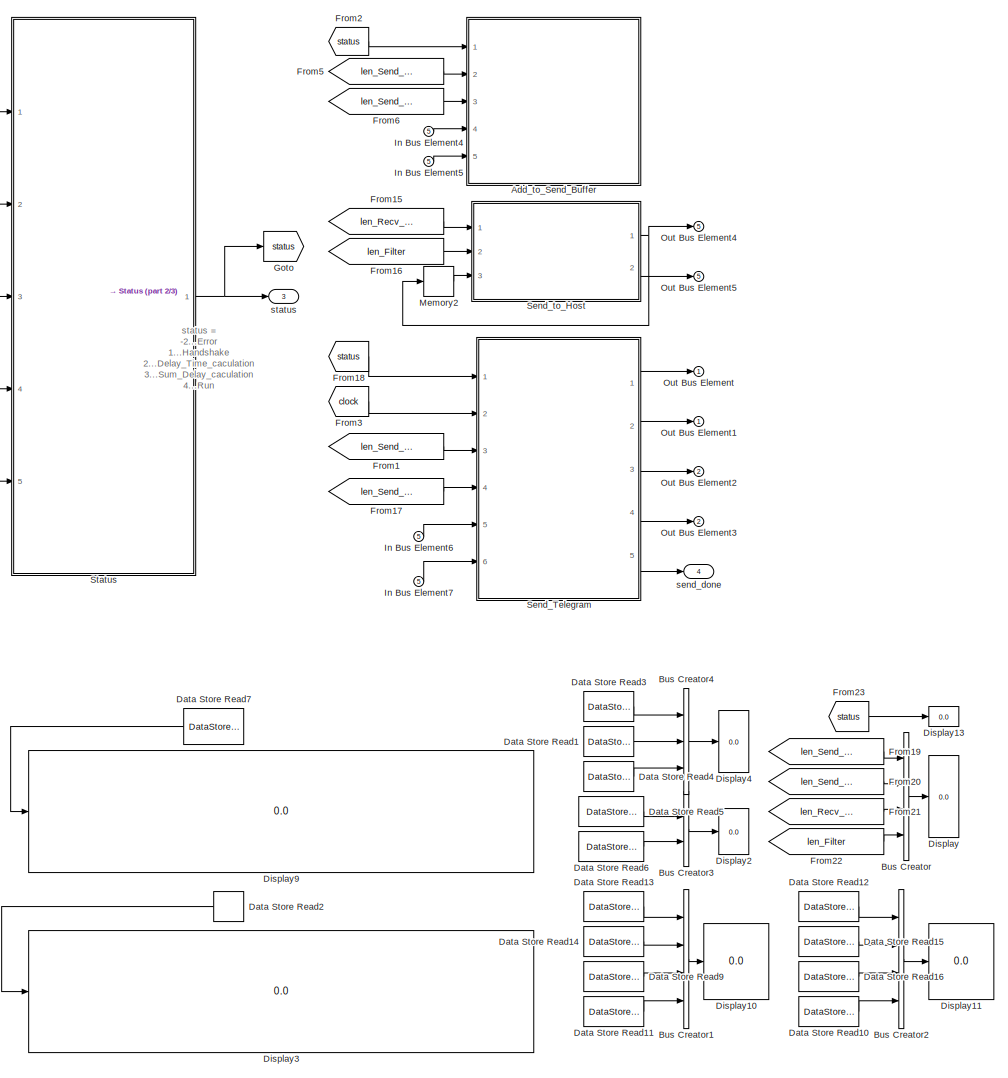
[diagram: Achse_2/Schnittstelle - part 1/3, right side, full height]
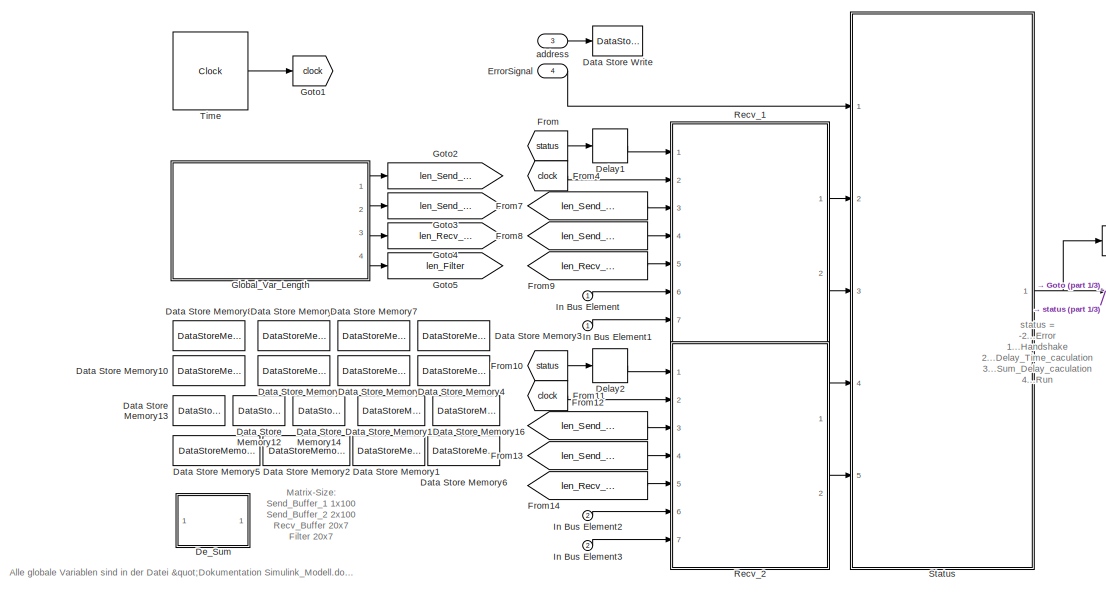
[diagram: Achse_2/Schnittstelle - part 2/3, top left region]
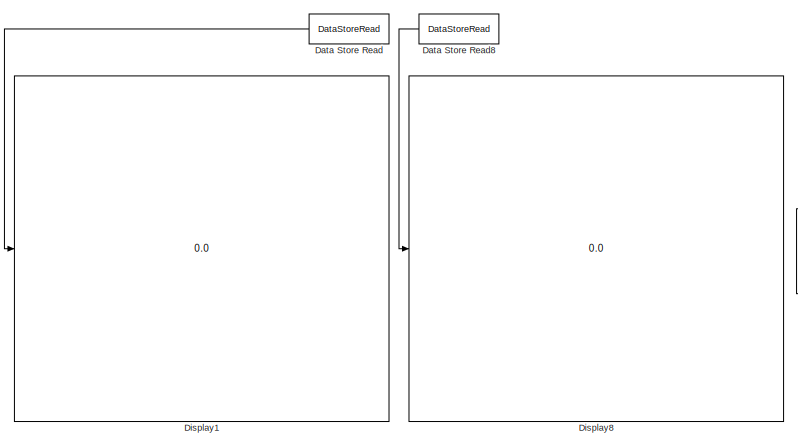
[diagram: Achse_2/Schnittstelle - part 3/3, bottom left region]
BLOCK [SubSystem] Achse_2/Schnittstelle
  Ports = [5, 5]
  RequestExecContextInheritance = off
BLOCK [SubSystem] Achse_2/Schnittstelle/Add_to_Send_Buffer
  ErrorFcn = Stateflow.Translate.translate
  PermitHierarchicalResolution = ExplicitOnly
  Ports = [5]
  RequestExecContextInheritance = off
  SFBlockType = MATLAB Function
  SystemSampleTime = 10/f
  TreatAsAtomicUnit = on
BLOCK [Demux] Achse_2/Schnittstelle/Add_to_Send_Buffer/ Demux 
  Outputs = 1
  Ports = [1, 1]
BLOCK [S-Function] Achse_2/Schnittstelle/Add_to_Send_Buffer/ SFunction 
  EnableBusSupport = on
  FunctionName = sf_sfun
  PortCounts = [5 1]
  Ports = [5, 1]
  SFcnIsStateOwnerBlock = off
  SFunctionDeploymentMode = off
  Tag = Stateflow S-Function System_Modell 34
BLOCK [Terminator] Achse_2/Schnittstelle/Add_to_Send_Buffer/ Terminator 
BLOCK [Inport] Achse_2/Schnittstelle/Add_to_Send_Buffer/lenS_1
  IconDisplay = Port number
  Port = 2
BLOCK [Inport] Achse_2/Schnittstelle/Add_to_Send_Buffer/lenS_2
  IconDisplay = Port number
  Port = 3
BLOCK [Inport] Achse_2/Schnittstelle/Add_to_Send_Buffer/status
  IconDisplay = Port number
BLOCK [Inport] Achse_2/Schnittstelle/Add_to_Send_Buffer/to_send_package
  IconDisplay = Port number
  Port = 5
BLOCK [Inport] Achse_2/Schnittstelle/Add_to_Send_Buffer/to_send_signal
  IconDisplay = Port number
  Port = 4
BLOCK [BusCreator] Achse_2/Schnittstelle/Bus Creator
  DisplayOption = bar
  InheritFromInputs = on
  Inputs = 4
  Ports = [4, 1]
BLOCK [BusCreator] Achse_2/Schnittstelle/Bus Creator1
  DisplayOption = bar
  InheritFromInputs = on
  Inputs = 4
  Ports = [4, 1]
BLOCK [BusCreator] Achse_2/Schnittstelle/Bus Creator2
  DisplayOption = bar
  InheritFromInputs = on
  Inputs = 4
  Ports = [4, 1]
BLOCK [BusCreator] Achse_2/Schnittstelle/Bus Creator3
  DisplayOption = bar
  InheritFromInputs = on
  Inputs = 2
  Ports = [2, 1]
BLOCK [BusCreator] Achse_2/Schnittstelle/Bus Creator4
  DisplayOption = bar
  InheritFromInputs = on
  Inputs = 3
  Ports = [3, 1]
BLOCK [DataStoreMemory] Achse_2/Schnittstelle/Data Store Memory
  DataStoreName = De_2
  Dimensions = 1
  OutDataTypeStr = double
  ReadBeforeWriteMsg = warning
  ShowAdditionalParam = off
  SignalType = real
  WriteAfterReadMsg = warning
  WriteAfterWriteMsg = warning
BLOCK [DataStoreMemory] Achse_2/Schnittstelle/Data Store Memory1
  DataStoreName = Recv_Buffer
  Dimensions = [20,7]
  InitialValue = zeros(20,7)
  OutDataTypeStr = double
  ReadBeforeWriteMsg = warning
  ShowAdditionalParam = off
  SignalType = real
  VectorParams1D = off
  WriteAfterReadMsg = warning
  WriteAfterWriteMsg = warning
BLOCK [DataStoreMemory] Achse_2/Schnittstelle/Data Store Memory10
  DataStoreName = T_send_2
  Dimensions = 1
  OutDataTypeStr = double
  ReadBeforeWriteMsg = warning
  ShowAdditionalParam = off
  SignalType = real
  WriteAfterReadMsg = warning
  WriteAfterWriteMsg = warning
BLOCK [DataStoreMemory] Achse_2/Schnittstelle/Data Store Memory11
  DataStoreName = T_recv_2
  Dimensions = 1
  OutDataTypeStr = double
  ReadBeforeWriteMsg = warning
  ShowAdditionalParam = off
  SignalType = real
  WriteAfterReadMsg = warning
  WriteAfterWriteMsg = warning
BLOCK [DataStoreMemory] Achse_2/Schnittstelle/Data Store Memory12
  DataStoreName = Address
  Dimensions = 1
  OutDataTypeStr = double
  ReadBeforeWriteMsg = warning
  ShowAdditionalParam = off
  SignalType = real
  WriteAfterReadMsg = warning
  WriteAfterWriteMsg = warning
BLOCK [DataStoreMemory] Achse_2/Schnittstelle/Data Store Memory13
  DataStoreName = Address_1
  Dimensions = 1
  OutDataTypeStr = double
  ReadBeforeWriteMsg = warning
  ShowAdditionalParam = off
  SignalType = real
  WriteAfterReadMsg = warning
  WriteAfterWriteMsg = warning
BLOCK [DataStoreMemory] Achse_2/Schnittstelle/Data Store Memory14
  DataStoreName = Address_2
  Dimensions = 1
  OutDataTypeStr = double
  ReadBeforeWriteMsg = warning
  ShowAdditionalParam = off
  SignalType = real
  WriteAfterReadMsg = warning
  WriteAfterWriteMsg = warning
BLOCK [DataStoreMemory] Achse_2/Schnittstelle/Data Store Memory15
  DataStoreName = Handshake_1
  InitialValue = false
  OutDataTypeStr = boolean
  ReadBeforeWriteMsg = warning
  ShowAdditionalParam = off
  SignalType = real
  WriteAfterReadMsg = warning
  WriteAfterWriteMsg = warning
BLOCK [DataStoreMemory] Achse_2/Schnittstelle/Data Store Memory16
  DataStoreName = Handshake_2
  InitialValue = false
  OutDataTypeStr = boolean
  ReadBeforeWriteMsg = warning
  ShowAdditionalParam = off
  SignalType = real
  WriteAfterReadMsg = warning
  WriteAfterWriteMsg = warning
BLOCK [DataStoreMemory] Achse_2/Schnittstelle/Data Store Memory2
  DataStoreName = Send_Buffer_2
  Dimensions = [1,100]
  InitialValue = [101, 102, zeros(1,98)]
  OutDataTypeStr = double
  ReadBeforeWriteMsg = warning
  ShowAdditionalParam = off
  SignalType = real
  VectorParams1D = off
  WriteAfterReadMsg = warning
  WriteAfterWriteMsg = warning
BLOCK [DataStoreMemory] Achse_2/Schnittstelle/Data Store Memory3
  DataStoreName = De_sum_1
  Dimensions = 1
  OutDataTypeStr = double
  ReadBeforeWriteMsg = warning
  ShowAdditionalParam = off
  SignalType = real
  WriteAfterReadMsg = warning
  WriteAfterWriteMsg = warning
BLOCK [DataStoreMemory] Achse_2/Schnittstelle/Data Store Memory4
  DataStoreName = De_sum_2
  Dimensions = 1
  OutDataTypeStr = double
  ReadBeforeWriteMsg = warning
  ShowAdditionalParam = off
  SignalType = real
  WriteAfterReadMsg = warning
  WriteAfterWriteMsg = warning
BLOCK [DataStoreMemory] Achse_2/Schnittstelle/Data Store Memory5
  DataStoreName = Send_Buffer_1
  Dimensions = [1,100]
  InitialValue = [101, 102, zeros(1,98)]
  OutDataTypeStr = double
  ReadBeforeWriteMsg = warning
  ShowAdditionalParam = off
  SignalType = real
  VectorParams1D = off
  WriteAfterReadMsg = warning
  WriteAfterWriteMsg = warning
BLOCK [DataStoreMemory] Achse_2/Schnittstelle/Data Store Memory6
  DataStoreName = Filter
  Dimensions = [20,7]
  InitialValue = zeros(20,7)
  OutDataTypeStr = double
  ReadBeforeWriteMsg = warning
  ShowAdditionalParam = off
  SignalType = real
  VectorParams1D = off
  WriteAfterReadMsg = warning
  WriteAfterWriteMsg = warning
BLOCK [DataStoreMemory] Achse_2/Schnittstelle/Data Store Memory7
  DataStoreName = De_1
  Dimensions = 1
  OutDataTypeStr = double
  ReadBeforeWriteMsg = warning
  ShowAdditionalParam = off
  SignalType = real
  WriteAfterReadMsg = warning
  WriteAfterWriteMsg = warning
BLOCK [DataStoreMemory] Achse_2/Schnittstelle/Data Store Memory8
  DataStoreName = T_send_1
  Dimensions = 1
  OutDataTypeStr = double
  ReadBeforeWriteMsg = warning
  ShowAdditionalParam = off
  SignalType = real
  WriteAfterReadMsg = warning
  WriteAfterWriteMsg = warning
BLOCK [DataStoreMemory] Achse_2/Schnittstelle/Data Store Memory9
  DataStoreName = T_recv_1
  Dimensions = 1
  OutDataTypeStr = double
  ReadBeforeWriteMsg = warning
  ShowAdditionalParam = off
  SignalType = real
  WriteAfterReadMsg = warning
  WriteAfterWriteMsg = warning
BLOCK [DataStoreRead] Achse_2/Schnittstelle/Data Store Read
  DataStoreName = Send_Buffer_1
  Ports = [0, 1]
BLOCK [DataStoreRead] Achse_2/Schnittstelle/Data Store Read1
  DataStoreName = Address
  Ports = [0, 1]
BLOCK [DataStoreRead] Achse_2/Schnittstelle/Data Store Read10
  DataStoreName = De_sum_2
  Ports = [0, 1]
BLOCK [DataStoreRead] Achse_2/Schnittstelle/Data Store Read11
  DataStoreName = De_sum_1
  Ports = [0, 1]
BLOCK [DataStoreRead] Achse_2/Schnittstelle/Data Store Read12
  DataStoreName = T_send_2
  Ports = [0, 1]
BLOCK [DataStoreRead] Achse_2/Schnittstelle/Data Store Read13
  DataStoreName = T_send_1
  Ports = [0, 1]
BLOCK [DataStoreRead] Achse_2/Schnittstelle/Data Store Read14
  DataStoreName = T_recv_1
  Ports = [0, 1]
BLOCK [DataStoreRead] Achse_2/Schnittstelle/Data Store Read15
  DataStoreName = T_recv_2
  Ports = [0, 1]
BLOCK [DataStoreRead] Achse_2/Schnittstelle/Data Store Read16
  DataStoreName = De_2
  Ports = [0, 1]
BLOCK [DataStoreRead] Achse_2/Schnittstelle/Data Store Read2
  DataStoreName = Filter
  Ports = [0, 1]
BLOCK [DataStoreRead] Achse_2/Schnittstelle/Data Store Read3
  DataStoreName = Address_1
  Ports = [0, 1]
BLOCK [DataStoreRead] Achse_2/Schnittstelle/Data Store Read4
  DataStoreName = Address_2
  Ports = [0, 1]
BLOCK [DataStoreRead] Achse_2/Schnittstelle/Data Store Read5
  DataStoreName = Handshake_1
  Ports = [0, 1]
BLOCK [DataStoreRead] Achse_2/Schnittstelle/Data Store Read6
  DataStoreName = Handshake_2
  Ports = [0, 1]
BLOCK [DataStoreRead] Achse_2/Schnittstelle/Data Store Read7
  DataStoreName = Recv_Buffer
  Ports = [0, 1]
BLOCK [DataStoreRead] Achse_2/Schnittstelle/Data Store Read8
  DataStoreName = Send_Buffer_2
  Ports = [0, 1]
BLOCK [DataStoreRead] Achse_2/Schnittstelle/Data Store Read9
  DataStoreName = De_1
  Ports = [0, 1]
BLOCK [DataStoreWrite] Achse_2/Schnittstelle/Data Store Write
  DataStoreName = Address
  Ports = [1]
BLOCK [SubSystem] Achse_2/Schnittstelle/De_Sum
  ErrorFcn = Stateflow.Translate.translate
  PermitHierarchicalResolution = ExplicitOnly
  Ports = []
  RequestExecContextInheritance = off
  SFBlockType = MATLAB Function
  TreatAsAtomicUnit = on
BLOCK [Demux] Achse_2/Schnittstelle/De_Sum/ Demux 
  Outputs = 1
  Ports = [1, 1]
BLOCK [Ground] Achse_2/Schnittstelle/De_Sum/ Ground 
BLOCK [S-Function] Achse_2/Schnittstelle/De_Sum/ SFunction 
  EnableBusSupport = on
  FunctionName = sf_sfun
  PortCounts = [1 1]
  Ports = [1, 1]
  SFcnIsStateOwnerBlock = off
  SFunctionDeploymentMode = off
  Tag = Stateflow S-Function System_Modell 35
BLOCK [Terminator] Achse_2/Schnittstelle/De_Sum/ Terminator 
BLOCK [Delay] Achse_2/Schnittstelle/Delay1
  DelayLength = 1
  InputPortMap = u0
  Ports = [1, 1]
BLOCK [Delay] Achse_2/Schnittstelle/Delay2
  DelayLength = 1
  InputPortMap = u0
  Ports = [1, 1]
BLOCK [Display] Achse_2/Schnittstelle/Display
  Decimation = 1
  Ports = [1]
BLOCK [Display] Achse_2/Schnittstelle/Display1
  Decimation = 1
  Ports = [1]
BLOCK [Display] Achse_2/Schnittstelle/Display10
  Decimation = 1
  Ports = [1]
BLOCK [Display] Achse_2/Schnittstelle/Display11
  Decimation = 1
  Ports = [1]
BLOCK [Display] Achse_2/Schnittstelle/Display13
  Decimation = 1
  Ports = [1]
BLOCK [Display] Achse_2/Schnittstelle/Display2
  Decimation = 1
  Ports = [1]
BLOCK [Display] Achse_2/Schnittstelle/Display3
  Decimation = 1
  Ports = [1]
BLOCK [Display] Achse_2/Schnittstelle/Display4
  Decimation = 1
  Ports = [1]
BLOCK [Display] Achse_2/Schnittstelle/Display8
  Decimation = 1
  Ports = [1]
BLOCK [Display] Achse_2/Schnittstelle/Display9
  Decimation = 1
  Ports = [1]
BLOCK [Inport] Achse_2/Schnittstelle/ErrorSignal
  IconDisplay = Port number
  Port = 4
BLOCK [From] Achse_2/Schnittstelle/From
  GotoTag = status
BLOCK [From] Achse_2/Schnittstelle/From1
  GotoTag = len_Send_Buffer_1
BLOCK [From] Achse_2/Schnittstelle/From10
  GotoTag = status
BLOCK [From] Achse_2/Schnittstelle/From11
  GotoTag = clock
BLOCK [From] Achse_2/Schnittstelle/From12
  GotoTag = len_Send_Buffer_1
BLOCK [From] Achse_2/Schnittstelle/From13
  GotoTag = len_Send_Buffer_2
BLOCK [From] Achse_2/Schnittstelle/From14
  GotoTag = len_Recv_Buffer
BLOCK [From] Achse_2/Schnittstelle/From15
  GotoTag = len_Recv_Buffer
BLOCK [From] Achse_2/Schnittstelle/From16
  GotoTag = len_Filter
BLOCK [From] Achse_2/Schnittstelle/From17
  GotoTag = len_Send_Buffer_2
BLOCK [From] Achse_2/Schnittstelle/From18
  GotoTag = status
BLOCK [From] Achse_2/Schnittstelle/From19
  GotoTag = len_Send_Buffer_1
BLOCK [From] Achse_2/Schnittstelle/From2
  GotoTag = status
BLOCK [From] Achse_2/Schnittstelle/From20
  GotoTag = len_Send_Buffer_2
BLOCK [From] Achse_2/Schnittstelle/From21
  GotoTag = len_Recv_Buffer
BLOCK [From] Achse_2/Schnittstelle/From22
  GotoTag = len_Filter
BLOCK [From] Achse_2/Schnittstelle/From23
  GotoTag = status
BLOCK [From] Achse_2/Schnittstelle/From3
  GotoTag = clock
BLOCK [From] Achse_2/Schnittstelle/From4
  GotoTag = clock
BLOCK [From] Achse_2/Schnittstelle/From5
  GotoTag = len_Send_Buffer_1
BLOCK [From] Achse_2/Schnittstelle/From6
  GotoTag = len_Send_Buffer_2
BLOCK [From] Achse_2/Schnittstelle/From7
  GotoTag = len_Send_Buffer_1
BLOCK [From] Achse_2/Schnittstelle/From8
  GotoTag = len_Send_Buffer_2
BLOCK [From] Achse_2/Schnittstelle/From9
  GotoTag = len_Recv_Buffer
BLOCK [SubSystem] Achse_2/Schnittstelle/Global_Var_Length
  ErrorFcn = Stateflow.Translate.translate
  PermitHierarchicalResolution = ExplicitOnly
  Ports = [0, 4]
  RequestExecContextInheritance = off
  SFBlockType = MATLAB Function
  TreatAsAtomicUnit = on
BLOCK [Demux] Achse_2/Schnittstelle/Global_Var_Length/ Demux 
  Outputs = 1
  Ports = [1, 1]
BLOCK [Ground] Achse_2/Schnittstelle/Global_Var_Length/ Ground 
BLOCK [S-Function] Achse_2/Schnittstelle/Global_Var_Length/ SFunction 
  EnableBusSupport = on
  FunctionName = sf_sfun
  PortCounts = [1 5]
  Ports = [1, 5]
  SFcnIsStateOwnerBlock = off
  SFunctionDeploymentMode = off
  Tag = Stateflow S-Function System_Modell 36
BLOCK [Terminator] Achse_2/Schnittstelle/Global_Var_Length/ Terminator 
BLOCK [Outport] Achse_2/Schnittstelle/Global_Var_Length/len_Filter
  IconDisplay = Port number
  Port = 4
BLOCK [Outport] Achse_2/Schnittstelle/Global_Var_Length/len_Recv_Buffer
  IconDisplay = Port number
  Port = 3
BLOCK [Outport] Achse_2/Schnittstelle/Global_Var_Length/len_Send_Buffer_1
  IconDisplay = Port number
BLOCK [Outport] Achse_2/Schnittstelle/Global_Var_Length/len_Send_Buffer_2
  IconDisplay = Port number
  Port = 2
BLOCK [Goto] Achse_2/Schnittstelle/Goto
  GotoTag = status
BLOCK [Goto] Achse_2/Schnittstelle/Goto1
  GotoTag = clock
BLOCK [Goto] Achse_2/Schnittstelle/Goto2
  GotoTag = len_Send_Buffer_1
BLOCK [Goto] Achse_2/Schnittstelle/Goto3
  GotoTag = len_Send_Buffer_2
BLOCK [Goto] Achse_2/Schnittstelle/Goto4
  GotoTag = len_Recv_Buffer
BLOCK [Goto] Achse_2/Schnittstelle/Goto5
  GotoTag = len_Filter
BLOCK [Inport] Achse_2/Schnittstelle/In Bus Element
  IconDisplay = Port number
BLOCK [Inport] Achse_2/Schnittstelle/In Bus Element1
  IconDisplay = Port number
BLOCK [Inport] Achse_2/Schnittstelle/In Bus Element2
  IconDisplay = Port number
  Port = 2
BLOCK [Inport] Achse_2/Schnittstelle/In Bus Element3
  IconDisplay = Port number
  Port = 2
BLOCK [Inport] Achse_2/Schnittstelle/In Bus Element4
  IconDisplay = Port number
  Port = 5
BLOCK [Inport] Achse_2/Schnittstelle/In Bus Element5
  IconDisplay = Port number
  Port = 5
BLOCK [Inport] Achse_2/Schnittstelle/In Bus Element6
  IconDisplay = Port number
  Port = 5
BLOCK [Inport] Achse_2/Schnittstelle/In Bus Element7
  IconDisplay = Port number
  Port = 5
BLOCK [Memory] Achse_2/Schnittstelle/Memory2
  InitialCondition = false
BLOCK [Outport] Achse_2/Schnittstelle/Out Bus Element
  IconDisplay = Port number
BLOCK [Outport] Achse_2/Schnittstelle/Out Bus Element1
  IconDisplay = Port number
BLOCK [Outport] Achse_2/Schnittstelle/Out Bus Element2
  IconDisplay = Port number
  Port = 2
BLOCK [Outport] Achse_2/Schnittstelle/Out Bus Element3
  IconDisplay = Port number
  Port = 2
BLOCK [Outport] Achse_2/Schnittstelle/Out Bus Element4
  IconDisplay = Port number
  Port = 5
BLOCK [Outport] Achse_2/Schnittstelle/Out Bus Element5
  IconDisplay = Port number
  Port = 5
BLOCK [SubSystem] Achse_2/Schnittstelle/Recv_1
  ErrorFcn = Stateflow.Translate.translate
  PermitHierarchicalResolution = ExplicitOnly
  Ports = [7, 2]
  RequestExecContextInheritance = off
  SFBlockType = MATLAB Function
  SystemSampleTime = 10/f
  TreatAsAtomicUnit = on
BLOCK [Demux] Achse_2/Schnittstelle/Recv_1/ Demux 
  Outputs = 1
  Ports = [1, 1]
BLOCK [S-Function] Achse_2/Schnittstelle/Recv_1/ SFunction 
  EnableBusSupport = on
  FunctionName = sf_sfun
  PortCounts = [7 3]
  Ports = [7, 3]
  SFcnIsStateOwnerBlock = off
  SFunctionDeploymentMode = off
  Tag = Stateflow S-Function System_Modell 37
BLOCK [Terminator] Achse_2/Schnittstelle/Recv_1/ Terminator 
BLOCK [Inport] Achse_2/Schnittstelle/Recv_1/Rx_1_data
  IconDisplay = Port number
  Port = 7
BLOCK [Inport] Achse_2/Schnittstelle/Recv_1/Rx_1_signal
  IconDisplay = Port number
  Port = 6
BLOCK [Inport] Achse_2/Schnittstelle/Recv_1/clock
  IconDisplay = Port number
  Port = 2
BLOCK [Inport] Achse_2/Schnittstelle/Recv_1/lenR
  IconDisplay = Port number
  Port = 5
BLOCK [Inport] Achse_2/Schnittstelle/Recv_1/lenS_1
  IconDisplay = Port number
  Port = 3
BLOCK [Inport] Achse_2/Schnittstelle/Recv_1/lenS_2
  IconDisplay = Port number
  Port = 4
BLOCK [Outport] Achse_2/Schnittstelle/Recv_1/recv_package_1
  IconDisplay = Port number
  Port = 2
BLOCK [Outport] Achse_2/Schnittstelle/Recv_1/recv_signal_1
  IconDisplay = Port number
BLOCK [Inport] Achse_2/Schnittstelle/Recv_1/status
  IconDisplay = Port number
BLOCK [SubSystem] Achse_2/Schnittstelle/Recv_2
  ErrorFcn = Stateflow.Translate.translate
  PermitHierarchicalResolution = ExplicitOnly
  Ports = [7, 2]
  RequestExecContextInheritance = off
  SFBlockType = MATLAB Function
  SystemSampleTime = 10/f
  TreatAsAtomicUnit = on
BLOCK [Demux] Achse_2/Schnittstelle/Recv_2/ Demux 
  Outputs = 1
  Ports = [1, 1]
BLOCK [S-Function] Achse_2/Schnittstelle/Recv_2/ SFunction 
  EnableBusSupport = on
  FunctionName = sf_sfun
  PortCounts = [7 3]
  Ports = [7, 3]
  SFcnIsStateOwnerBlock = off
  SFunctionDeploymentMode = off
  Tag = Stateflow S-Function System_Modell 38
BLOCK [Terminator] Achse_2/Schnittstelle/Recv_2/ Terminator 
BLOCK [Inport] Achse_2/Schnittstelle/Recv_2/Rx_2_data
  IconDisplay = Port number
  Port = 7
BLOCK [Inport] Achse_2/Schnittstelle/Recv_2/Rx_2_signal
  IconDisplay = Port number
  Port = 6
BLOCK [Inport] Achse_2/Schnittstelle/Recv_2/clock
  IconDisplay = Port number
  Port = 2
BLOCK [Inport] Achse_2/Schnittstelle/Recv_2/lenR
  IconDisplay = Port number
  Port = 5
BLOCK [Inport] Achse_2/Schnittstelle/Recv_2/lenS_1
  IconDisplay = Port number
  Port = 3
BLOCK [Inport] Achse_2/Schnittstelle/Recv_2/lenS_2
  IconDisplay = Port number
  Port = 4
BLOCK [Outport] Achse_2/Schnittstelle/Recv_2/recv_package_2
  IconDisplay = Port number
  Port = 2
BLOCK [Outport] Achse_2/Schnittstelle/Recv_2/recv_signal_2
  IconDisplay = Port number
BLOCK [Inport] Achse_2/Schnittstelle/Recv_2/status
  IconDisplay = Port number
BLOCK [SubSystem] Achse_2/Schnittstelle/Send_Telegram
  Ports = [6, 5]
  RequestExecContextInheritance = off
BLOCK [Logic] Achse_2/Schnittstelle/Send_Telegram/Logical Operator
  AllPortsSameDT = off
  Operator = OR
  OutDataTypeStr = boolean
  Ports = [2, 1]
BLOCK [Memory] Achse_2/Schnittstelle/Send_Telegram/Memory
  InitialCondition = false
BLOCK [Memory] Achse_2/Schnittstelle/Send_Telegram/Memory1
  InitialCondition = false
BLOCK [DiscretePulseGenerator] Achse_2/Schnittstelle/Send_Telegram/Pulse
  Amplitude = true
  Period = 200/f
  Ports = [0, 1]
  PulseType = Time based
  PulseWidth = 30
BLOCK [SubSystem] Achse_2/Schnittstelle/Send_Telegram/Send_Done_1
  ErrorFcn = Stateflow.Translate.translate
  PermitHierarchicalResolution = ExplicitOnly
  Ports = [4, 1]
  RequestExecContextInheritance = off
  SFBlockType = MATLAB Function
  TreatAsAtomicUnit = on
BLOCK [Demux] Achse_2/Schnittstelle/Send_Telegram/Send_Done_1/ Demux 
  Outputs = 1
  Ports = [1, 1]
BLOCK [S-Function] Achse_2/Schnittstelle/Send_Telegram/Send_Done_1/ SFunction 
  EnableBusSupport = on
  FunctionName = sf_sfun
  PortCounts = [4 2]
  Ports = [4, 2]
  SFcnIsStateOwnerBlock = off
  SFunctionDeploymentMode = off
  Tag = Stateflow S-Function System_Modell 39
BLOCK [Terminator] Achse_2/Schnittstelle/Send_Telegram/Send_Done_1/ Terminator 
BLOCK [Inport] Achse_2/Schnittstelle/Send_Telegram/Send_Done_1/Tx_1_data
  IconDisplay = Port number
  Port = 4
BLOCK [Inport] Achse_2/Schnittstelle/Send_Telegram/Send_Done_1/Tx_1_sgn
  IconDisplay = Port number
  Port = 3
BLOCK [Outport] Achse_2/Schnittstelle/Send_Telegram/Send_Done_1/send_done_1
  IconDisplay = Port number
BLOCK [Inport] Achse_2/Schnittstelle/Send_Telegram/Send_Done_1/wait2send_pkg
  IconDisplay = Port number
  Port = 2
BLOCK [Inport] Achse_2/Schnittstelle/Send_Telegram/Send_Done_1/wait2send_sgn
  IconDisplay = Port number
BLOCK [SubSystem] Achse_2/Schnittstelle/Send_Telegram/Send_Done_2
  ErrorFcn = Stateflow.Translate.translate
  PermitHierarchicalResolution = ExplicitOnly
  Ports = [4, 1]
  RequestExecContextInheritance = off
  SFBlockType = MATLAB Function
  TreatAsAtomicUnit = on
BLOCK [Demux] Achse_2/Schnittstelle/Send_Telegram/Send_Done_2/ Demux 
  Outputs = 1
  Ports = [1, 1]
BLOCK [S-Function] Achse_2/Schnittstelle/Send_Telegram/Send_Done_2/ SFunction 
  EnableBusSupport = on
  FunctionName = sf_sfun
  PortCounts = [4 2]
  Ports = [4, 2]
  SFcnIsStateOwnerBlock = off
  SFunctionDeploymentMode = off
  Tag = Stateflow S-Function System_Modell 40
BLOCK [Terminator] Achse_2/Schnittstelle/Send_Telegram/Send_Done_2/ Terminator 
BLOCK [Inport] Achse_2/Schnittstelle/Send_Telegram/Send_Done_2/Tx_2_data
  IconDisplay = Port number
  Port = 4
BLOCK [Inport] Achse_2/Schnittstelle/Send_Telegram/Send_Done_2/Tx_2_sgn
  IconDisplay = Port number
  Port = 3
BLOCK [Outport] Achse_2/Schnittstelle/Send_Telegram/Send_Done_2/send_done_2
  IconDisplay = Port number
BLOCK [Inport] Achse_2/Schnittstelle/Send_Telegram/Send_Done_2/wait2send_pkg
  IconDisplay = Port number
  Port = 2
BLOCK [Inport] Achse_2/Schnittstelle/Send_Telegram/Send_Done_2/wait2send_sgn
  IconDisplay = Port number
BLOCK [SubSystem] Achse_2/Schnittstelle/Send_Telegram/Send_Telegram_1
  ErrorFcn = Stateflow.Translate.translate
  PermitHierarchicalResolution = ExplicitOnly
  Ports = [5, 2]
  RequestExecContextInheritance = off
  SFBlockType = MATLAB Function
  SystemSampleTime = 100/f
  TreatAsAtomicUnit = on
BLOCK [Demux] Achse_2/Schnittstelle/Send_Telegram/Send_Telegram_1/ Demux 
  Outputs = 1
  Ports = [1, 1]
BLOCK [S-Function] Achse_2/Schnittstelle/Send_Telegram/Send_Telegram_1/ SFunction 
  EnableBusSupport = on
  FunctionName = sf_sfun
  PortCounts = [5 3]
  Ports = [5, 3]
  SFcnIsStateOwnerBlock = off
  SFunctionDeploymentMode = off
  Tag = Stateflow S-Function System_Modell 41
BLOCK [Terminator] Achse_2/Schnittstelle/Send_Telegram/Send_Telegram_1/ Terminator 
BLOCK [Outport] Achse_2/Schnittstelle/Send_Telegram/Send_Telegram_1/Tx_1_data
  IconDisplay = Port number
  Port = 2
BLOCK [Outport] Achse_2/Schnittstelle/Send_Telegram/Send_Telegram_1/Tx_1_signal
  IconDisplay = Port number
BLOCK [Inport] Achse_2/Schnittstelle/Send_Telegram/Send_Telegram_1/clock
  IconDisplay = Port number
  Port = 2
BLOCK [Inport] Achse_2/Schnittstelle/Send_Telegram/Send_Telegram_1/impulse
  IconDisplay = Port number
  Port = 4
BLOCK [Inport] Achse_2/Schnittstelle/Send_Telegram/Send_Telegram_1/lenS_1
  IconDisplay = Port number
  Port = 3
BLOCK [Inport] Achse_2/Schnittstelle/Send_Telegram/Send_Telegram_1/send_1_old
  IconDisplay = Port number
  Port = 5
BLOCK [Inport] Achse_2/Schnittstelle/Send_Telegram/Send_Telegram_1/status
  IconDisplay = Port number
BLOCK [SubSystem] Achse_2/Schnittstelle/Send_Telegram/Send_Telegram_2
  ErrorFcn = Stateflow.Translate.translate
  PermitHierarchicalResolution = ExplicitOnly
  Ports = [5, 2]
  RequestExecContextInheritance = off
  SFBlockType = MATLAB Function
  SystemSampleTime = 100/f
  TreatAsAtomicUnit = on
BLOCK [Demux] Achse_2/Schnittstelle/Send_Telegram/Send_Telegram_2/ Demux 
  Outputs = 1
  Ports = [1, 1]
BLOCK [S-Function] Achse_2/Schnittstelle/Send_Telegram/Send_Telegram_2/ SFunction 
  EnableBusSupport = on
  FunctionName = sf_sfun
  PortCounts = [5 3]
  Ports = [5, 3]
  SFcnIsStateOwnerBlock = off
  SFunctionDeploymentMode = off
  Tag = Stateflow S-Function System_Modell 42
BLOCK [Terminator] Achse_2/Schnittstelle/Send_Telegram/Send_Telegram_2/ Terminator 
BLOCK [Outport] Achse_2/Schnittstelle/Send_Telegram/Send_Telegram_2/Tx_2_data
  IconDisplay = Port number
  Port = 2
BLOCK [Outport] Achse_2/Schnittstelle/Send_Telegram/Send_Telegram_2/Tx_2_signal
  IconDisplay = Port number
BLOCK [Inport] Achse_2/Schnittstelle/Send_Telegram/Send_Telegram_2/clock
  IconDisplay = Port number
  Port = 2
BLOCK [Inport] Achse_2/Schnittstelle/Send_Telegram/Send_Telegram_2/impulse
  IconDisplay = Port number
  Port = 4
BLOCK [Inport] Achse_2/Schnittstelle/Send_Telegram/Send_Telegram_2/lenS_2
  IconDisplay = Port number
  Port = 3
BLOCK [Inport] Achse_2/Schnittstelle/Send_Telegram/Send_Telegram_2/send_2_old
  IconDisplay = Port number
  Port = 5
BLOCK [Inport] Achse_2/Schnittstelle/Send_Telegram/Send_Telegram_2/status
  IconDisplay = Port number
BLOCK [Outport] Achse_2/Schnittstelle/Send_Telegram/Tx_1_data
  IconDisplay = Port number
  Port = 2
BLOCK [Outport] Achse_2/Schnittstelle/Send_Telegram/Tx_1_signal
  IconDisplay = Port number
BLOCK [Outport] Achse_2/Schnittstelle/Send_Telegram/Tx_2_data
  IconDisplay = Port number
  Port = 4
BLOCK [Outport] Achse_2/Schnittstelle/Send_Telegram/Tx_2_signal
  IconDisplay = Port number
  Port = 3
BLOCK [Inport] Achse_2/Schnittstelle/Send_Telegram/clock
  IconDisplay = Port number
  Port = 2
BLOCK [Inport] Achse_2/Schnittstelle/Send_Telegram/lenS_1
  IconDisplay = Port number
  Port = 3
BLOCK [Inport] Achse_2/Schnittstelle/Send_Telegram/lenS_2
  IconDisplay = Port number
  Port = 4
BLOCK [Outport] Achse_2/Schnittstelle/Send_Telegram/send_done
  IconDisplay = Port number
  Port = 5
BLOCK [Inport] Achse_2/Schnittstelle/Send_Telegram/status
  IconDisplay = Port number
BLOCK [Inport] Achse_2/Schnittstelle/Send_Telegram/wait2send_pkg
  IconDisplay = Port number
  Port = 6
BLOCK [Inport] Achse_2/Schnittstelle/Send_Telegram/wait2send_sgn
  IconDisplay = Port number
  Port = 5
BLOCK [SubSystem] Achse_2/Schnittstelle/Send_to_Host
  ErrorFcn = Stateflow.Translate.translate
  PermitHierarchicalResolution = ExplicitOnly
  Ports = [3, 2]
  RequestExecContextInheritance = off
  SFBlockType = MATLAB Function
  SystemSampleTime = 10/f
  TreatAsAtomicUnit = on
BLOCK [Demux] Achse_2/Schnittstelle/Send_to_Host/ Demux 
  Outputs = 1
  Ports = [1, 1]
BLOCK [S-Function] Achse_2/Schnittstelle/Send_to_Host/ SFunction 
  EnableBusSupport = on
  FunctionName = sf_sfun
  PortCounts = [3 3]
  Ports = [3, 3]
  SFcnIsStateOwnerBlock = off
  SFunctionDeploymentMode = off
  Tag = Stateflow S-Function System_Modell 43
BLOCK [Terminator] Achse_2/Schnittstelle/Send_to_Host/ Terminator 
BLOCK [Inport] Achse_2/Schnittstelle/Send_to_Host/lenF
  IconDisplay = Port number
  Port = 2
BLOCK [Inport] Achse_2/Schnittstelle/Send_to_Host/lenR
  IconDisplay = Port number
BLOCK [Outport] Achse_2/Schnittstelle/Send_to_Host/package
  IconDisplay = Port number
  Port = 2
BLOCK [Outport] Achse_2/Schnittstelle/Send_to_Host/signal
  IconDisplay = Port number
BLOCK [Inport] Achse_2/Schnittstelle/Send_to_Host/signal_old
  IconDisplay = Port number
  Port = 3
BLOCK [SubSystem] Achse_2/Schnittstelle/Status
  ErrorFcn = Stateflow.Translate.translate
  PermitHierarchicalResolution = ExplicitOnly
  Ports = [5, 1]
  RequestExecContextInheritance = off
  SFBlockType = Chart
  TreatAsAtomicUnit = on
BLOCK [Demux] Achse_2/Schnittstelle/Status/ Demux 
  Outputs = 1
  Ports = [1, 1]
BLOCK [S-Function] Achse_2/Schnittstelle/Status/ SFunction 
  EnableBusSupport = on
  FunctionName = sf_sfun
  PortCounts = [5 2]
  Ports = [5, 2]
  SFcnIsStateOwnerBlock = off
  SFunctionDeploymentMode = off
  Tag = Stateflow S-Function System_Modell 44
BLOCK [Terminator] Achse_2/Schnittstelle/Status/ Terminator 
BLOCK [Inport] Achse_2/Schnittstelle/Status/Error_Signal
  IconDisplay = Port number
BLOCK [Inport] Achse_2/Schnittstelle/Status/recv_data_1
  IconDisplay = Port number
  Port = 3
BLOCK [Inport] Achse_2/Schnittstelle/Status/recv_data_2
  IconDisplay = Port number
  Port = 5
BLOCK [Inport] Achse_2/Schnittstelle/Status/recv_signal_1
  IconDisplay = Port number
  Port = 2
BLOCK [Inport] Achse_2/Schnittstelle/Status/recv_signal_2
  IconDisplay = Port number
  Port = 4
BLOCK [Outport] Achse_2/Schnittstelle/Status/status
  IconDisplay = Port number
BLOCK [Clock] Achse_2/Schnittstelle/Time
  Decimation = f
  DisplayTime = on
BLOCK [Inport] Achse_2/Schnittstelle/address
  IconDisplay = Port number
  Port = 3
BLOCK [Outport] Achse_2/Schnittstelle/send_done
  IconDisplay = Port number
  Port = 4
BLOCK [Outport] Achse_2/Schnittstelle/status
  IconDisplay = Port number
  Port = 3
BLOCK [Scope] Achse_2/Scope3
  Floating = off
  NumInputPorts = 1
  Ports = [1]
BLOCK [Outport] Achse_2/Status_Schnittstelle
  IconDisplay = Port number
  Port = 4
BLOCK [Outport] Achse_2/T_start_
  IconDisplay = Port number
  Port = 7
BLOCK [Outport] Achse_2/Tx_1
  IconDisplay = Port number
BLOCK [Outport] Achse_2/Tx_2
  IconDisplay = Port number
  Port = 2
BLOCK [Outport] Achse_2/ZPT_
  IconDisplay = Port number
  Port = 5
BLOCK [Outport] Achse_2/ZZPT_
  IconDisplay = Port number
  Port = 6
BLOCK [Outport] Achse_2/ZZP_
  IconDisplay = Port number
  Port = 8
BLOCK [Outport] Achse_2/ZZP_wait_
  IconDisplay = Port number
  Port = 9
BLOCK [Constant] Achse_2/const2
  OutDataTypeStr = boolean
BLOCK [Constant] Achse_2/const3
  OutDataTypeStr = boolean
  Value = 0
BLOCK [SubSystem] Achse_3
  Ports = [3, 9]
  RequestExecContextInheritance = off
BLOCK [DataStoreRead] Achse_3/AP1
  DataStoreName = AP
  Ports = [0, 1]
BLOCK [Outport] Achse_3/AP_
  IconDisplay = Port number
  Port = 3
BLOCK [Inport] Achse_3/Adr_
  IconDisplay = Port number
  Port = 3
BLOCK [BusCreator] Achse_3/Bus Creator2
  DisplayOption = bar
  InheritFromInputs = on
  Inputs = 4
  Ports = [4, 1]
BLOCK [BusSelector] Achse_3/Bus Selector1
  OutputAsBus = off
  OutputSignals = a,v,s,AP
  Ports = [1, 4]
BLOCK [BusSelector] Achse_3/Bus Selector2
  OutputAsBus = off
  OutputSignals = signal,package
  Ports = [1, 2]
BLOCK [SubSystem] Achse_3/CommSM
  Ports = [8, 6]
  RequestExecContextInheritance = off
BLOCK [Inport] Achse_3/CommSM/Adresse
  IconDisplay = Port number
  OutDataTypeStr = double
  PortDimensions = 1
  SignalType = real
  VarSizeSig = No
BLOCK [Clock] Achse_3/CommSM/Clock
BLOCK [Constant] Achse_3/CommSM/Constant
  Value = a_Max
BLOCK [Constant] Achse_3/CommSM/Constant1
  Value = v_Max
BLOCK [DataStoreMemory] Achse_3/CommSM/Data Store Memory
  DataStoreName = ZPT
  Dimensions = [10,3]
  InitialValue = zeros(10,3)
  OutDataTypeStr = double
  ReadBeforeWriteMsg = warning
  ShowAdditionalParam = off
  SignalType = real
  VectorParams1D = off
  WriteAfterReadMsg = warning
  WriteAfterWriteMsg = warning
BLOCK [DataStoreMemory] Achse_3/CommSM/Data Store Memory1
  DataStoreName = ZZPT
  Dimensions = [3,4]
  InitialValue = zeros(3,4)
  OutDataTypeStr = double
  ReadBeforeWriteMsg = warning
  ShowAdditionalParam = off
  SignalType = real
  VectorParams1D = off
  WriteAfterReadMsg = warning
  WriteAfterWriteMsg = warning
BLOCK [DataStoreMemory] Achse_3/CommSM/Data Store Memory2
  DataStoreName = T_start
  Dimensions = 1
  OutDataTypeStr = double
  ReadBeforeWriteMsg = warning
  ShowAdditionalParam = off
  SignalType = real
  WriteAfterReadMsg = warning
  WriteAfterWriteMsg = warning
BLOCK [DataStoreMemory] Achse_3/CommSM/Data Store Memory6
  DataStoreName = respond
  Dimensions = 1
  InitialValue = false
  OutDataTypeStr = boolean
  ReadBeforeWriteMsg = warning
  ShowAdditionalParam = off
  SignalType = real
  WriteAfterReadMsg = warning
  WriteAfterWriteMsg = warning
BLOCK [DataStoreRead] Achse_3/CommSM/Data Store Read
  DataStoreName = AP
  Ports = [0, 1]
BLOCK [DataStoreRead] Achse_3/CommSM/Data Store Read1
  DataStoreName = ZPT
  Ports = [0, 1]
BLOCK [DataStoreRead] Achse_3/CommSM/Data Store Read2
  DataStoreName = ZZPT
  Ports = [0, 1]
BLOCK [DataStoreRead] Achse_3/CommSM/Data Store Read3
  DataStoreName = T_start
  Ports = [0, 1]
BLOCK [DataStoreRead] Achse_3/CommSM/Data Store Read4
  DataStoreName = T_start
  Ports = [0, 1]
BLOCK [DataStoreRead] Achse_3/CommSM/Data Store Read5
  DataStoreName = ZPT
  Ports = [0, 1]
BLOCK [DataStoreRead] Achse_3/CommSM/Data Store Read6
  DataStoreName = ZZPT
  Ports = [0, 1]
BLOCK [Display] Achse_3/CommSM/Display1
  Decimation = 1
  Ports = [1]
BLOCK [Display] Achse_3/CommSM/Display2
  Decimation = 1
  Ports = [1]
BLOCK [Display] Achse_3/CommSM/Display3
  Decimation = 1
  Ports = [1]
BLOCK [Display] Achse_3/CommSM/Display4
  Decimation = 1
  Ports = [1]
BLOCK [Display] Achse_3/CommSM/Display5
  Decimation = 1
  Ports = [1]
BLOCK [Display] Achse_3/CommSM/Display6
  Decimation = 1
  Ports = [1]
BLOCK [Display] Achse_3/CommSM/Display7
  Decimation = 1
  Ports = [1]
BLOCK [Display] Achse_3/CommSM/Display8
  Decimation = 1
  Ports = [1]
BLOCK [From] Achse_3/CommSM/From
  GotoTag = status
BLOCK [From] Achse_3/CommSM/From1
  GotoTag = clock
BLOCK [From] Achse_3/CommSM/From2
  GotoTag = clock
BLOCK [From] Achse_3/CommSM/From5
  GotoTag = n
BLOCK [From] Achse_3/CommSM/From6
  GotoTag = N
BLOCK [From] Achse_3/CommSM/From7
  GotoTag = n
BLOCK [From] Achse_3/CommSM/From8
  GotoTag = N
BLOCK [From] Achse_3/CommSM/From9
  GotoTag = status
BLOCK [Goto] Achse_3/CommSM/Goto
  GotoTag = status
BLOCK [Goto] Achse_3/CommSM/Goto1
  GotoTag = clock
BLOCK [Goto] Achse_3/CommSM/Goto2
  GotoTag = n
BLOCK [Goto] Achse_3/CommSM/Goto3
  GotoTag = N
BLOCK [Inport] Achse_3/CommSM/In Bus Element
  IconDisplay = Port number
  Port = 5
BLOCK [Inport] Achse_3/CommSM/In Bus Element1
  IconDisplay = Port number
  Port = 5
BLOCK [Inport] Achse_3/CommSM/In Bus Element2
  IconDisplay = Port number
  Port = 3
BLOCK [Inport] Achse_3/CommSM/In Bus Element3
  IconDisplay = Port number
  Port = 3
BLOCK [Inport] Achse_3/CommSM/In Bus Element4
  IconDisplay = Port number
  Port = 3
BLOCK [Inport] Achse_3/CommSM/In Bus Element5
  IconDisplay = Port number
  Port = 3
BLOCK [Outport] Achse_3/CommSM/Out Bus Element
  IconDisplay = Port number
  Port = 2
BLOCK [Outport] Achse_3/CommSM/Out Bus Element1
  IconDisplay = Port number
  Port = 2
BLOCK [SubSystem] Achse_3/CommSM/Status_Control
  ErrorFcn = Stateflow.Translate.translate
  PermitHierarchicalResolution = ExplicitOnly
  Ports = [15, 4]
  RequestExecContextInheritance = off
  SFBlockType = Chart
  TreatAsAtomicUnit = on
BLOCK [Demux] Achse_3/CommSM/Status_Control/ Demux 
  Outputs = 1
  Ports = [1, 1]
BLOCK [S-Function] Achse_3/CommSM/Status_Control/ SFunction 
  EnableBusSupport = on
  FunctionName = sf_sfun
  PortCounts = [15 5]
  Ports = [15, 5]
  SFcnIsStateOwnerBlock = off
  SFunctionDeploymentMode = off
  Tag = Stateflow S-Function System_Modell 45
BLOCK [Terminator] Achse_3/CommSM/Status_Control/ Terminator 
BLOCK [Inport] Achse_3/CommSM/Status_Control/Adresse
  IconDisplay = Port number
  Port = 2
BLOCK [Inport] Achse_3/CommSM/Status_Control/EinAus
  IconDisplay = Port number
  Port = 7
BLOCK [Inport] Achse_3/CommSM/Status_Control/ErrorSignal
  IconDisplay = Port number
  Port = 9
BLOCK [Inport] Achse_3/CommSM/Status_Control/N
  IconDisplay = Port number
  Port = 5
BLOCK [Inport] Achse_3/CommSM/Status_Control/NotAus
  IconDisplay = Port number
  Port = 6
BLOCK [Inport] Achse_3/CommSM/Status_Control/Richten
  IconDisplay = Port number
  Port = 8
BLOCK [Inport] Achse_3/CommSM/Status_Control/a_Max
  IconDisplay = Port number
  Port = 14
BLOCK [Inport] Achse_3/CommSM/Status_Control/clock
  IconDisplay = Port number
BLOCK [Inport] Achse_3/CommSM/Status_Control/data_from_MotionSM
  IconDisplay = Port number
  Port = 13
BLOCK [Inport] Achse_3/CommSM/Status_Control/delta_T
  IconDisplay = Port number
  Port = 11
BLOCK [Inport] Achse_3/CommSM/Status_Control/n
  IconDisplay = Port number
  Port = 4
BLOCK [Outport] Achse_3/CommSM/Status_Control/send_AT_package
  IconDisplay = Port number
  Port = 3
BLOCK [Outport] Achse_3/CommSM/Status_Control/send_MotionSM
  IconDisplay = Port number
  Port = 4
BLOCK [Inport] Achse_3/CommSM/Status_Control/send_done
  IconDisplay = Port number
  Port = 10
BLOCK [Outport] Achse_3/CommSM/Status_Control/send_signal
  IconDisplay = Port number
  Port = 2
BLOCK [Outport] Achse_3/CommSM/Status_Control/status
  IconDisplay = Port number
BLOCK [Inport] Achse_3/CommSM/Status_Control/status_MotionSM
  IconDisplay = Port number
  Port = 12
BLOCK [Inport] Achse_3/CommSM/Status_Control/status_Schnittstelle
  IconDisplay = Port number
  Port = 3
BLOCK [Inport] Achse_3/CommSM/Status_Control/v_Max
  IconDisplay = Port number
  Port = 15
BLOCK [Outport] Achse_3/CommSM/T_start
  IconDisplay = Port number
  Port = 6
BLOCK [Outport] Achse_3/CommSM/ZPT
  IconDisplay = Port number
  Port = 4
BLOCK [Outport] Achse_3/CommSM/ZZPT
  IconDisplay = Port number
  Port = 5
BLOCK [SubSystem] Achse_3/CommSM/counter
  ErrorFcn = Stateflow.Translate.translate
  PermitHierarchicalResolution = ExplicitOnly
  Ports = [0, 2]
  RequestExecContextInheritance = off
  SFBlockType = MATLAB Function
  TreatAsAtomicUnit = on
BLOCK [Demux] Achse_3/CommSM/counter/ Demux 
  Outputs = 1
  Ports = [1, 1]
BLOCK [Ground] Achse_3/CommSM/counter/ Ground 
BLOCK [S-Function] Achse_3/CommSM/counter/ SFunction 
  EnableBusSupport = on
  FunctionName = sf_sfun
  PortCounts = [1 3]
  Ports = [1, 3]
  SFcnIsStateOwnerBlock = off
  SFunctionDeploymentMode = off
  Tag = Stateflow S-Function System_Modell 46
BLOCK [Terminator] Achse_3/CommSM/counter/ Terminator 
BLOCK [Outport] Achse_3/CommSM/counter/N
  IconDisplay = Port number
  Port = 2
BLOCK [Outport] Achse_3/CommSM/counter/n
  IconDisplay = Port number
BLOCK [Inport] Achse_3/CommSM/data_from_MotionSM
  IconDisplay = Port number
  OutDataTypeStr = double
  Port = 8
  PortDimensions = 2
  SignalType = real
  VarSizeSig = No
BLOCK [Inport] Achse_3/CommSM/delta_T
  IconDisplay = Port number
  Port = 6
BLOCK [SubSystem] Achse_3/CommSM/receive_AT
  ErrorFcn = Stateflow.Translate.translate
  PermitHierarchicalResolution = ExplicitOnly
  Ports = [6]
  RequestExecContextInheritance = off
  SFBlockType = MATLAB Function
  TreatAsAtomicUnit = on
BLOCK [Demux] Achse_3/CommSM/receive_AT/ Demux 
  Outputs = 1
  Ports = [1, 1]
BLOCK [S-Function] Achse_3/CommSM/receive_AT/ SFunction 
  EnableBusSupport = on
  FunctionName = sf_sfun
  PortCounts = [6 1]
  Ports = [6, 1]
  SFcnIsStateOwnerBlock = off
  SFunctionDeploymentMode = off
  Tag = Stateflow S-Function System_Modell 47
BLOCK [Terminator] Achse_3/CommSM/receive_AT/ Terminator 
BLOCK [Inport] Achse_3/CommSM/receive_AT/N
  IconDisplay = Port number
  Port = 4
BLOCK [Inport] Achse_3/CommSM/receive_AT/clock
  IconDisplay = Port number
BLOCK [Inport] Achse_3/CommSM/receive_AT/n
  IconDisplay = Port number
  Port = 3
BLOCK [Inport] Achse_3/CommSM/receive_AT/package
  IconDisplay = Port number
  Port = 6
BLOCK [Inport] Achse_3/CommSM/receive_AT/signal
  IconDisplay = Port number
  Port = 5
BLOCK [Inport] Achse_3/CommSM/receive_AT/status
  IconDisplay = Port number
  Port = 2
BLOCK [Inport] Achse_3/CommSM/send_done
  IconDisplay = Port number
  Port = 4
BLOCK [Outport] Achse_3/CommSM/send_to_MotionSM
  IconDisplay = Port number
  Port = 3
  VarSizeSig = No
BLOCK [Outport] Achse_3/CommSM/status
  IconDisplay = Port number
  OutDataTypeStr = double
  PortDimensions = 1
  SignalType = real
  VarSizeSig = No
BLOCK [Inport] Achse_3/CommSM/status_MotionSM
  IconDisplay = Port number
  OutDataTypeStr = double
  Port = 7
  PortDimensions = 1
  SignalType = real
  VarSizeSig = No
BLOCK [Inport] Achse_3/CommSM/status_Schnittstelle
  IconDisplay = Port number
  OutDataTypeStr = double
  Port = 2
  PortDimensions = 1
  SignalType = real
  VarSizeSig = No
BLOCK [Constant] Achse_3/Constant22
  OutDataTypeStr = boolean
  Value = 0
BLOCK [Constant] Achse_3/Constant3
  OutDataTypeStr = double
  Value = delta_T
BLOCK [Constant] Achse_3/Constant5
  OutDataTypeStr = boolean
BLOCK [DataStoreMemory] Achse_3/Data Store Memory2
  DataStoreName = De_sum
  Dimensions = 1
  OutDataTypeStr = double
  ReadBeforeWriteMsg = warning
  ShowAdditionalParam = off
  SignalType = real
  WriteAfterReadMsg = warning
  WriteAfterWriteMsg = warning
BLOCK [DataStoreMemory] Achse_3/Data Store Memory3
  DataStoreName = AP
  Dimensions = 1
  OutDataTypeStr = double
  OutMax = [100]
  OutMin = [0]
  ReadBeforeWriteMsg = warning
  ShowAdditionalParam = off
  SignalType = real
  WriteAfterReadMsg = warning
  WriteAfterWriteMsg = warning
BLOCK [DataStoreRead] Achse_3/Data Store Read
  DataStoreName = De_sum
  Ports = [0, 1]
BLOCK [Delay] Achse_3/Delay
  DelayLength = 1
  InputPortMap = u0
  Ports = [1, 1]
BLOCK [Delay] Achse_3/Delay1
  DelayLength = 1
  InputPortMap = u0
  Ports = [1, 1]
BLOCK [Delay] Achse_3/Delay2
  DelayLength = 1
  InputPortMap = u0
  Ports = [1, 1]
BLOCK [Display] Achse_3/Display1
  Decimation = 1
  Format = decimal (Stored Integer)
  Ports = [1]
BLOCK [Display] Achse_3/Display11
  Decimation = 1
  Ports = [1]
BLOCK [Display] Achse_3/Display12
  Decimation = 1
  Format = decimal (Stored Integer)
  Ports = [1]
BLOCK [Display] Achse_3/Display13
  Decimation = 7
  Ports = [1]
BLOCK [Display] Achse_3/Display5
  Decimation = 1
  Ports = [1]
BLOCK [Display] Achse_3/Display6
  Decimation = 1
  Ports = [1]
BLOCK [Display] Achse_3/Display7
  Decimation = 1
  Ports = [1]
BLOCK [Display] Achse_3/Display8
  Decimation = 1
  Format = decimal (Stored Integer)
  Ports = [1]
BLOCK [Display] Achse_3/Display9
  Decimation = 1
  Ports = [1]
BLOCK [ManualSwitch] Achse_3/Manual Switch21
  CurrentSetting = 0
BLOCK [ManualSwitch] Achse_3/Manual Switch25
BLOCK [ManualSwitch] Achse_3/Manual Switch31
  CurrentSetting = 0
BLOCK [ManualSwitch] Achse_3/Manual Switch8
  CurrentSetting = 0
BLOCK [ManualSwitch] Achse_3/Manual Switch9
  CurrentSetting = 0
BLOCK [SubSystem] Achse_3/MotionSM
  Ports = [3, 5]
  RequestExecContextInheritance = off
BLOCK [Constant] Achse_3/MotionSM/Constant
  Value = a_Max
BLOCK [DataStoreMemory] Achse_3/MotionSM/Data Store Memory4
  DataStoreName = ZZP
  Dimensions = 1
  OutDataTypeStr = double
  ReadBeforeWriteMsg = warning
  ShowAdditionalParam = off
  SignalType = real
  WriteAfterReadMsg = warning
  WriteAfterWriteMsg = warning
BLOCK [DataStoreMemory] Achse_3/MotionSM/Data Store Memory5
  DataStoreName = ZZP_wait
  Dimensions = 1
  OutDataTypeStr = double
  ReadBeforeWriteMsg = warning
  ShowAdditionalParam = off
  SignalType = real
  WriteAfterReadMsg = warning
  WriteAfterWriteMsg = warning
BLOCK [DataStoreRead] Achse_3/MotionSM/Data Store Read
  DataStoreName = AP
  Ports = [0, 1]
BLOCK [DataStoreRead] Achse_3/MotionSM/Data Store Read1
  DataStoreName = ZZP
  Ports = [0, 1]
BLOCK [DataStoreRead] Achse_3/MotionSM/Data Store Read2
  DataStoreName = ZZP_wait
  Ports = [0, 1]
BLOCK [Delay] Achse_3/MotionSM/Delay
  DelayLength = 1
  InputPortMap = u0
  Ports = [1, 1]
BLOCK [Delay] Achse_3/MotionSM/Delay1
  DelayLength = 1
  InputPortMap = u0
  Ports = [1, 1]
BLOCK [Inport] Achse_3/MotionSM/In Bus Element
  IconDisplay = Port number
BLOCK [Inport] Achse_3/MotionSM/In Bus Element1
  IconDisplay = Port number
BLOCK [Inport] Achse_3/MotionSM/In Bus Element2
  IconDisplay = Port number
BLOCK [Inport] Achse_3/MotionSM/In Bus Element3
  IconDisplay = Port number
BLOCK [SubSystem] Achse_3/MotionSM/Message_Analyse
  ErrorFcn = Stateflow.Translate.translate
  PermitHierarchicalResolution = ExplicitOnly
  Ports = [2, 2]
  RequestExecContextInheritance = off
  SFBlockType = MATLAB Function
  TreatAsAtomicUnit = on
BLOCK [Demux] Achse_3/MotionSM/Message_Analyse/ Demux 
  Outputs = 1
  Ports = [1, 1]
BLOCK [S-Function] Achse_3/MotionSM/Message_Analyse/ SFunction 
  EnableBusSupport = on
  FunctionName = sf_sfun
  PortCounts = [2 3]
  Ports = [2, 3]
  SFcnIsStateOwnerBlock = off
  SFunctionDeploymentMode = off
  Tag = Stateflow S-Function System_Modell 48
BLOCK [Terminator] Achse_3/MotionSM/Message_Analyse/ Terminator 
BLOCK [Inport] Achse_3/MotionSM/Message_Analyse/data_received
  IconDisplay = Port number
  Port = 2
BLOCK [Outport] Achse_3/MotionSM/Message_Analyse/excute_signal
  IconDisplay = Port number
BLOCK [Outport] Achse_3/MotionSM/Message_Analyse/message_to_send
  IconDisplay = Port number
  Port = 2
BLOCK [Inport] Achse_3/MotionSM/Message_Analyse/status
  IconDisplay = Port number
BLOCK [SubSystem] Achse_3/MotionSM/Motor
  Ports = [2, 4]
  RequestExecContextInheritance = off
BLOCK [Delay] Achse_3/MotionSM/Motor/Delay
  DelayLength = 1
  InputPortMap = u0
  Ports = [1, 1]
BLOCK [Integrator] Achse_3/MotionSM/Motor/Integrator
  Ports = [1, 1]
BLOCK [Integrator] Achse_3/MotionSM/Motor/Integrator1
  Ports = [1, 1]
BLOCK [Memory] Achse_3/MotionSM/Motor/Memory2
BLOCK [Outport] Achse_3/MotionSM/Motor/a
  IconDisplay = Port number
  Port = 2
BLOCK [SubSystem] Achse_3/MotionSM/Motor/a_control
  ErrorFcn = Stateflow.Translate.translate
  PermitHierarchicalResolution = ExplicitOnly
  Ports = [3, 3]
  RequestExecContextInheritance = off
  SFBlockType = MATLAB Function
  TreatAsAtomicUnit = on
BLOCK [Demux] Achse_3/MotionSM/Motor/a_control/ Demux 
  Outputs = 1
  Ports = [1, 1]
BLOCK [S-Function] Achse_3/MotionSM/Motor/a_control/ SFunction 
  EnableBusSupport = on
  FunctionName = sf_sfun
  PortCounts = [3 4]
  Ports = [3, 4]
  SFcnIsStateOwnerBlock = off
  SFunctionDeploymentMode = off
  Tag = Stateflow S-Function System_Modell 49
BLOCK [Terminator] Achse_3/MotionSM/Motor/a_control/ Terminator 
BLOCK [Inport] Achse_3/MotionSM/Motor/a_control/Motor_control_signal
  IconDisplay = Port number
BLOCK [Outport] Achse_3/MotionSM/Motor/a_control/a
  IconDisplay = Port number
  Port = 2
BLOCK [Outport] Achse_3/MotionSM/Motor/a_control/direction
  IconDisplay = Port number
  Port = 3
BLOCK [Inport] Achse_3/MotionSM/Motor/a_control/parameter
  IconDisplay = Port number
  Port = 2
BLOCK [Outport] Achse_3/MotionSM/Motor/a_control/status_Motor
  IconDisplay = Port number
BLOCK [Inport] Achse_3/MotionSM/Motor/a_control/v
  IconDisplay = Port number
  Port = 3
BLOCK [Inport] Achse_3/MotionSM/Motor/auto_control
  IconDisplay = Port number
BLOCK [Inport] Achse_3/MotionSM/Motor/parameter
  IconDisplay = Port number
  Port = 2
BLOCK [Outport] Achse_3/MotionSM/Motor/s
  IconDisplay = Port number
  Port = 4
BLOCK [SubSystem] Achse_3/MotionSM/Motor/s_control
  ErrorFcn = Stateflow.Translate.translate
  PermitHierarchicalResolution = ExplicitOnly
  Ports = [3, 1]
  RequestExecContextInheritance = off
  SFBlockType = MATLAB Function
  TreatAsAtomicUnit = on
BLOCK [Demux] Achse_3/MotionSM/Motor/s_control/ Demux 
  Outputs = 1
  Ports = [1, 1]
BLOCK [S-Function] Achse_3/MotionSM/Motor/s_control/ SFunction 
  EnableBusSupport = on
  FunctionName = sf_sfun
  PortCounts = [3 2]
  Ports = [3, 2]
  SFcnIsStateOwnerBlock = off
  SFunctionDeploymentMode = off
  Tag = Stateflow S-Function System_Modell 50
BLOCK [Terminator] Achse_3/MotionSM/Motor/s_control/ Terminator 
BLOCK [Outport] Achse_3/MotionSM/Motor/s_control/S
  IconDisplay = Port number
BLOCK [Inport] Achse_3/MotionSM/Motor/s_control/direction
  IconDisplay = Port number
  Port = 3
BLOCK [Inport] Achse_3/MotionSM/Motor/s_control/s
  IconDisplay = Port number
BLOCK [Inport] Achse_3/MotionSM/Motor/s_control/s_old
  IconDisplay = Port number
  Port = 2
BLOCK [Outport] Achse_3/MotionSM/Motor/status_Motor
  IconDisplay = Port number
BLOCK [Outport] Achse_3/MotionSM/Motor/v
  IconDisplay = Port number
  Port = 3
BLOCK [SubSystem] Achse_3/MotionSM/Motor/v_vontrol
  ErrorFcn = Stateflow.Translate.translate
  PermitHierarchicalResolution = ExplicitOnly
  Ports = [2, 1]
  RequestExecContextInheritance = off
  SFBlockType = MATLAB Function
  TreatAsAtomicUnit = on
BLOCK [Demux] Achse_3/MotionSM/Motor/v_vontrol/ Demux 
  Outputs = 1
  Ports = [1, 1]
BLOCK [S-Function] Achse_3/MotionSM/Motor/v_vontrol/ SFunction 
  EnableBusSupport = on
  FunctionName = sf_sfun
  PortCounts = [2 2]
  Ports = [2, 2]
  SFcnIsStateOwnerBlock = off
  SFunctionDeploymentMode = off
  Tag = Stateflow S-Function System_Modell 51
BLOCK [Terminator] Achse_3/MotionSM/Motor/v_vontrol/ Terminator 
BLOCK [Outport] Achse_3/MotionSM/Motor/v_vontrol/V
  IconDisplay = Port number
BLOCK [Inport] Achse_3/MotionSM/Motor/v_vontrol/direction
  IconDisplay = Port number
  Port = 2
BLOCK [Inport] Achse_3/MotionSM/Motor/v_vontrol/v
  IconDisplay = Port number
BLOCK [Outport] Achse_3/MotionSM/Out Bus Element
  IconDisplay = Port number
  Port = 3
BLOCK [Outport] Achse_3/MotionSM/Out Bus Element1
  IconDisplay = Port number
  Port = 3
BLOCK [Outport] Achse_3/MotionSM/Out Bus Element2
  IconDisplay = Port number
  Port = 3
BLOCK [Outport] Achse_3/MotionSM/Out Bus Element3
  IconDisplay = Port number
  Port = 3
BLOCK [SubSystem] Achse_3/MotionSM/Status_Control
  ErrorFcn = Stateflow.Translate.translate
  PermitHierarchicalResolution = ExplicitOnly
  Ports = [8, 2]
  RequestExecContextInheritance = off
  SFBlockType = Chart
  TreatAsAtomicUnit = on
BLOCK [Demux] Achse_3/MotionSM/Status_Control/ Demux 
  Outputs = 1
  Ports = [1, 1]
BLOCK [S-Function] Achse_3/MotionSM/Status_Control/ SFunction 
  EnableBusSupport = on
  FunctionName = sf_sfun
  PortCounts = [8 3]
  Ports = [8, 3]
  SFcnIsStateOwnerBlock = off
  SFunctionDeploymentMode = off
  Tag = Stateflow S-Function System_Modell 52
BLOCK [Terminator] Achse_3/MotionSM/Status_Control/ Terminator 
BLOCK [Inport] Achse_3/MotionSM/Status_Control/EinAus
  IconDisplay = Port number
  Port = 2
BLOCK [Inport] Achse_3/MotionSM/Status_Control/ErrorSignal
  IconDisplay = Port number
  Port = 4
BLOCK [Inport] Achse_3/MotionSM/Status_Control/Motor_status
  IconDisplay = Port number
  Port = 6
BLOCK [Inport] Achse_3/MotionSM/Status_Control/NotAus
  IconDisplay = Port number
BLOCK [Inport] Achse_3/MotionSM/Status_Control/Richten
  IconDisplay = Port number
  Port = 3
BLOCK [Inport] Achse_3/MotionSM/Status_Control/a_Max
  IconDisplay = Port number
  Port = 8
BLOCK [Inport] Achse_3/MotionSM/Status_Control/delta_T
  IconDisplay = Port number
  Port = 7
BLOCK [Inport] Achse_3/MotionSM/Status_Control/excute_signal
  IconDisplay = Port number
  Port = 5
BLOCK [Outport] Achse_3/MotionSM/Status_Control/parameter
  IconDisplay = Port number
  Port = 2
BLOCK [Outport] Achse_3/MotionSM/Status_Control/status
  IconDisplay = Port number
BLOCK [Outport] Achse_3/MotionSM/ZZP_
  IconDisplay = Port number
  Port = 4
BLOCK [Outport] Achse_3/MotionSM/ZZP_wait_
  IconDisplay = Port number
  Port = 5
BLOCK [Inport] Achse_3/MotionSM/data_received
  IconDisplay = Port number
  OutDataTypeStr = double
  Port = 2
  PortDimensions = 2
  SignalType = real
  VarSizeSig = No
BLOCK [Outport] Achse_3/MotionSM/data_to_send
  IconDisplay = Port number
  OutDataTypeStr = double
  Port = 2
  PortDimensions = 2
  SignalType = real
BLOCK [Inport] Achse_3/MotionSM/delta_T
  IconDisplay = Port number
  Port = 3
BLOCK [Outport] Achse_3/MotionSM/status
  IconDisplay = Port number
BLOCK [Inport] Achse_3/Rx_1
  IconDisplay = Port number
BLOCK [Inport] Achse_3/Rx_2
  IconDisplay = Port number
  Port = 2
BLOCK [SubSystem] Achse_3/Schnittstelle
  Ports = [5, 5]
  RequestExecContextInheritance = off
BLOCK [SubSystem] Achse_3/Schnittstelle/Add_to_Send_Buffer
  ErrorFcn = Stateflow.Translate.translate
  PermitHierarchicalResolution = ExplicitOnly
  Ports = [5]
  RequestExecContextInheritance = off
  SFBlockType = MATLAB Function
  SystemSampleTime = 10/f
  TreatAsAtomicUnit = on
BLOCK [Demux] Achse_3/Schnittstelle/Add_to_Send_Buffer/ Demux 
  Outputs = 1
  Ports = [1, 1]
BLOCK [S-Function] Achse_3/Schnittstelle/Add_to_Send_Buffer/ SFunction 
  EnableBusSupport = on
  FunctionName = sf_sfun
  PortCounts = [5 1]
  Ports = [5, 1]
  SFcnIsStateOwnerBlock = off
  SFunctionDeploymentMode = off
  Tag = Stateflow S-Function System_Modell 53
BLOCK [Terminator] Achse_3/Schnittstelle/Add_to_Send_Buffer/ Terminator 
BLOCK [Inport] Achse_3/Schnittstelle/Add_to_Send_Buffer/lenS_1
  IconDisplay = Port number
  Port = 2
BLOCK [Inport] Achse_3/Schnittstelle/Add_to_Send_Buffer/lenS_2
  IconDisplay = Port number
  Port = 3
BLOCK [Inport] Achse_3/Schnittstelle/Add_to_Send_Buffer/status
  IconDisplay = Port number
BLOCK [Inport] Achse_3/Schnittstelle/Add_to_Send_Buffer/to_send_package
  IconDisplay = Port number
  Port = 5
BLOCK [Inport] Achse_3/Schnittstelle/Add_to_Send_Buffer/to_send_signal
  IconDisplay = Port number
  Port = 4
BLOCK [BusCreator] Achse_3/Schnittstelle/Bus Creator
  DisplayOption = bar
  InheritFromInputs = on
  Inputs = 4
  Ports = [4, 1]
BLOCK [BusCreator] Achse_3/Schnittstelle/Bus Creator1
  DisplayOption = bar
  InheritFromInputs = on
  Inputs = 4
  Ports = [4, 1]
BLOCK [BusCreator] Achse_3/Schnittstelle/Bus Creator2
  DisplayOption = bar
  InheritFromInputs = on
  Inputs = 4
  Ports = [4, 1]
BLOCK [BusCreator] Achse_3/Schnittstelle/Bus Creator3
  DisplayOption = bar
  InheritFromInputs = on
  Inputs = 2
  Ports = [2, 1]
BLOCK [BusCreator] Achse_3/Schnittstelle/Bus Creator4
  DisplayOption = bar
  InheritFromInputs = on
  Inputs = 3
  Ports = [3, 1]
BLOCK [DataStoreMemory] Achse_3/Schnittstelle/Data Store Memory
  DataStoreName = De_2
  Dimensions = 1
  OutDataTypeStr = double
  ReadBeforeWriteMsg = warning
  ShowAdditionalParam = off
  SignalType = real
  WriteAfterReadMsg = warning
  WriteAfterWriteMsg = warning
BLOCK [DataStoreMemory] Achse_3/Schnittstelle/Data Store Memory1
  DataStoreName = Recv_Buffer
  Dimensions = [20,7]
  InitialValue = zeros(20,7)
  OutDataTypeStr = double
  ReadBeforeWriteMsg = warning
  ShowAdditionalParam = off
  SignalType = real
  VectorParams1D = off
  WriteAfterReadMsg = warning
  WriteAfterWriteMsg = warning
BLOCK [DataStoreMemory] Achse_3/Schnittstelle/Data Store Memory10
  DataStoreName = T_send_2
  Dimensions = 1
  OutDataTypeStr = double
  ReadBeforeWriteMsg = warning
  ShowAdditionalParam = off
  SignalType = real
  WriteAfterReadMsg = warning
  WriteAfterWriteMsg = warning
BLOCK [DataStoreMemory] Achse_3/Schnittstelle/Data Store Memory11
  DataStoreName = T_recv_2
  Dimensions = 1
  OutDataTypeStr = double
  ReadBeforeWriteMsg = warning
  ShowAdditionalParam = off
  SignalType = real
  WriteAfterReadMsg = warning
  WriteAfterWriteMsg = warning
BLOCK [DataStoreMemory] Achse_3/Schnittstelle/Data Store Memory12
  DataStoreName = Address
  Dimensions = 1
  OutDataTypeStr = double
  ReadBeforeWriteMsg = warning
  ShowAdditionalParam = off
  SignalType = real
  WriteAfterReadMsg = warning
  WriteAfterWriteMsg = warning
BLOCK [DataStoreMemory] Achse_3/Schnittstelle/Data Store Memory13
  DataStoreName = Address_1
  Dimensions = 1
  OutDataTypeStr = double
  ReadBeforeWriteMsg = warning
  ShowAdditionalParam = off
  SignalType = real
  WriteAfterReadMsg = warning
  WriteAfterWriteMsg = warning
BLOCK [DataStoreMemory] Achse_3/Schnittstelle/Data Store Memory14
  DataStoreName = Address_2
  Dimensions = 1
  OutDataTypeStr = double
  ReadBeforeWriteMsg = warning
  ShowAdditionalParam = off
  SignalType = real
  WriteAfterReadMsg = warning
  WriteAfterWriteMsg = warning
BLOCK [DataStoreMemory] Achse_3/Schnittstelle/Data Store Memory15
  DataStoreName = Handshake_1
  InitialValue = false
  OutDataTypeStr = boolean
  ReadBeforeWriteMsg = warning
  ShowAdditionalParam = off
  SignalType = real
  WriteAfterReadMsg = warning
  WriteAfterWriteMsg = warning
BLOCK [DataStoreMemory] Achse_3/Schnittstelle/Data Store Memory16
  DataStoreName = Handshake_2
  InitialValue = false
  OutDataTypeStr = boolean
  ReadBeforeWriteMsg = warning
  ShowAdditionalParam = off
  SignalType = real
  WriteAfterReadMsg = warning
  WriteAfterWriteMsg = warning
BLOCK [DataStoreMemory] Achse_3/Schnittstelle/Data Store Memory2
  DataStoreName = Send_Buffer_2
  Dimensions = [1,100]
  InitialValue = [101, 102, zeros(1,98)]
  OutDataTypeStr = double
  ReadBeforeWriteMsg = warning
  ShowAdditionalParam = off
  SignalType = real
  VectorParams1D = off
  WriteAfterReadMsg = warning
  WriteAfterWriteMsg = warning
BLOCK [DataStoreMemory] Achse_3/Schnittstelle/Data Store Memory3
  DataStoreName = De_sum_1
  Dimensions = 1
  OutDataTypeStr = double
  ReadBeforeWriteMsg = warning
  ShowAdditionalParam = off
  SignalType = real
  WriteAfterReadMsg = warning
  WriteAfterWriteMsg = warning
BLOCK [DataStoreMemory] Achse_3/Schnittstelle/Data Store Memory4
  DataStoreName = De_sum_2
  Dimensions = 1
  OutDataTypeStr = double
  ReadBeforeWriteMsg = warning
  ShowAdditionalParam = off
  SignalType = real
  WriteAfterReadMsg = warning
  WriteAfterWriteMsg = warning
BLOCK [DataStoreMemory] Achse_3/Schnittstelle/Data Store Memory5
  DataStoreName = Send_Buffer_1
  Dimensions = [1,100]
  InitialValue = [101, 102, zeros(1,98)]
  OutDataTypeStr = double
  ReadBeforeWriteMsg = warning
  ShowAdditionalParam = off
  SignalType = real
  VectorParams1D = off
  WriteAfterReadMsg = warning
  WriteAfterWriteMsg = warning
BLOCK [DataStoreMemory] Achse_3/Schnittstelle/Data Store Memory6
  DataStoreName = Filter
  Dimensions = [20,7]
  InitialValue = zeros(20,7)
  OutDataTypeStr = double
  ReadBeforeWriteMsg = warning
  ShowAdditionalParam = off
  SignalType = real
  VectorParams1D = off
  WriteAfterReadMsg = warning
  WriteAfterWriteMsg = warning
BLOCK [DataStoreMemory] Achse_3/Schnittstelle/Data Store Memory7
  DataStoreName = De_1
  Dimensions = 1
  OutDataTypeStr = double
  ReadBeforeWriteMsg = warning
  ShowAdditionalParam = off
  SignalType = real
  WriteAfterReadMsg = warning
  WriteAfterWriteMsg = warning
BLOCK [DataStoreMemory] Achse_3/Schnittstelle/Data Store Memory8
  DataStoreName = T_send_1
  Dimensions = 1
  OutDataTypeStr = double
  ReadBeforeWriteMsg = warning
  ShowAdditionalParam = off
  SignalType = real
  WriteAfterReadMsg = warning
  WriteAfterWriteMsg = warning
BLOCK [DataStoreMemory] Achse_3/Schnittstelle/Data Store Memory9
  DataStoreName = T_recv_1
  Dimensions = 1
  OutDataTypeStr = double
  ReadBeforeWriteMsg = warning
  ShowAdditionalParam = off
  SignalType = real
  WriteAfterReadMsg = warning
  WriteAfterWriteMsg = warning
BLOCK [DataStoreRead] Achse_3/Schnittstelle/Data Store Read
  DataStoreName = Send_Buffer_1
  Ports = [0, 1]
BLOCK [DataStoreRead] Achse_3/Schnittstelle/Data Store Read1
  DataStoreName = Address
  Ports = [0, 1]
BLOCK [DataStoreRead] Achse_3/Schnittstelle/Data Store Read10
  DataStoreName = De_sum_2
  Ports = [0, 1]
BLOCK [DataStoreRead] Achse_3/Schnittstelle/Data Store Read11
  DataStoreName = De_sum_1
  Ports = [0, 1]
BLOCK [DataStoreRead] Achse_3/Schnittstelle/Data Store Read12
  DataStoreName = T_send_2
  Ports = [0, 1]
BLOCK [DataStoreRead] Achse_3/Schnittstelle/Data Store Read13
  DataStoreName = T_send_1
  Ports = [0, 1]
BLOCK [DataStoreRead] Achse_3/Schnittstelle/Data Store Read14
  DataStoreName = T_recv_1
  Ports = [0, 1]
BLOCK [DataStoreRead] Achse_3/Schnittstelle/Data Store Read15
  DataStoreName = T_recv_2
  Ports = [0, 1]
BLOCK [DataStoreRead] Achse_3/Schnittstelle/Data Store Read16
  DataStoreName = De_2
  Ports = [0, 1]
BLOCK [DataStoreRead] Achse_3/Schnittstelle/Data Store Read2
  DataStoreName = Filter
  Ports = [0, 1]
BLOCK [DataStoreRead] Achse_3/Schnittstelle/Data Store Read3
  DataStoreName = Address_1
  Ports = [0, 1]
BLOCK [DataStoreRead] Achse_3/Schnittstelle/Data Store Read4
  DataStoreName = Address_2
  Ports = [0, 1]
BLOCK [DataStoreRead] Achse_3/Schnittstelle/Data Store Read5
  DataStoreName = Handshake_1
  Ports = [0, 1]
BLOCK [DataStoreRead] Achse_3/Schnittstelle/Data Store Read6
  DataStoreName = Handshake_2
  Ports = [0, 1]
BLOCK [DataStoreRead] Achse_3/Schnittstelle/Data Store Read7
  DataStoreName = Recv_Buffer
  Ports = [0, 1]
BLOCK [DataStoreRead] Achse_3/Schnittstelle/Data Store Read8
  DataStoreName = Send_Buffer_2
  Ports = [0, 1]
BLOCK [DataStoreRead] Achse_3/Schnittstelle/Data Store Read9
  DataStoreName = De_1
  Ports = [0, 1]
BLOCK [DataStoreWrite] Achse_3/Schnittstelle/Data Store Write
  DataStoreName = Address
  Ports = [1]
BLOCK [SubSystem] Achse_3/Schnittstelle/De_Sum
  ErrorFcn = Stateflow.Translate.translate
  PermitHierarchicalResolution = ExplicitOnly
  Ports = []
  RequestExecContextInheritance = off
  SFBlockType = MATLAB Function
  TreatAsAtomicUnit = on
BLOCK [Demux] Achse_3/Schnittstelle/De_Sum/ Demux 
  Outputs = 1
  Ports = [1, 1]
BLOCK [Ground] Achse_3/Schnittstelle/De_Sum/ Ground 
BLOCK [S-Function] Achse_3/Schnittstelle/De_Sum/ SFunction 
  EnableBusSupport = on
  FunctionName = sf_sfun
  PortCounts = [1 1]
  Ports = [1, 1]
  SFcnIsStateOwnerBlock = off
  SFunctionDeploymentMode = off
  Tag = Stateflow S-Function System_Modell 54
BLOCK [Terminator] Achse_3/Schnittstelle/De_Sum/ Terminator 
BLOCK [Delay] Achse_3/Schnittstelle/Delay1
  DelayLength = 1
  InputPortMap = u0
  Ports = [1, 1]
BLOCK [Delay] Achse_3/Schnittstelle/Delay2
  DelayLength = 1
  InputPortMap = u0
  Ports = [1, 1]
BLOCK [Display] Achse_3/Schnittstelle/Display
  Decimation = 1
  Ports = [1]
BLOCK [Display] Achse_3/Schnittstelle/Display1
  Decimation = 1
  Ports = [1]
BLOCK [Display] Achse_3/Schnittstelle/Display10
  Decimation = 1
  Ports = [1]
BLOCK [Display] Achse_3/Schnittstelle/Display11
  Decimation = 1
  Ports = [1]
BLOCK [Display] Achse_3/Schnittstelle/Display13
  Decimation = 1
  Ports = [1]
BLOCK [Display] Achse_3/Schnittstelle/Display2
  Decimation = 1
  Ports = [1]
BLOCK [Display] Achse_3/Schnittstelle/Display3
  Decimation = 1
  Ports = [1]
BLOCK [Display] Achse_3/Schnittstelle/Display4
  Decimation = 1
  Ports = [1]
BLOCK [Display] Achse_3/Schnittstelle/Display8
  Decimation = 1
  Ports = [1]
BLOCK [Display] Achse_3/Schnittstelle/Display9
  Decimation = 1
  Ports = [1]
BLOCK [Inport] Achse_3/Schnittstelle/ErrorSignal
  IconDisplay = Port number
  Port = 4
BLOCK [From] Achse_3/Schnittstelle/From
  GotoTag = status
BLOCK [From] Achse_3/Schnittstelle/From1
  GotoTag = len_Send_Buffer_1
BLOCK [From] Achse_3/Schnittstelle/From10
  GotoTag = status
BLOCK [From] Achse_3/Schnittstelle/From11
  GotoTag = clock
BLOCK [From] Achse_3/Schnittstelle/From12
  GotoTag = len_Send_Buffer_1
BLOCK [From] Achse_3/Schnittstelle/From13
  GotoTag = len_Send_Buffer_2
BLOCK [From] Achse_3/Schnittstelle/From14
  GotoTag = len_Recv_Buffer
BLOCK [From] Achse_3/Schnittstelle/From15
  GotoTag = len_Recv_Buffer
BLOCK [From] Achse_3/Schnittstelle/From16
  GotoTag = len_Filter
BLOCK [From] Achse_3/Schnittstelle/From17
  GotoTag = len_Send_Buffer_2
BLOCK [From] Achse_3/Schnittstelle/From18
  GotoTag = status
BLOCK [From] Achse_3/Schnittstelle/From19
  GotoTag = len_Send_Buffer_1
BLOCK [From] Achse_3/Schnittstelle/From2
  GotoTag = status
BLOCK [From] Achse_3/Schnittstelle/From20
  GotoTag = len_Send_Buffer_2
BLOCK [From] Achse_3/Schnittstelle/From21
  GotoTag = len_Recv_Buffer
BLOCK [From] Achse_3/Schnittstelle/From22
  GotoTag = len_Filter
BLOCK [From] Achse_3/Schnittstelle/From23
  GotoTag = status
BLOCK [From] Achse_3/Schnittstelle/From3
  GotoTag = clock
BLOCK [From] Achse_3/Schnittstelle/From4
  GotoTag = clock
BLOCK [From] Achse_3/Schnittstelle/From5
  GotoTag = len_Send_Buffer_1
BLOCK [From] Achse_3/Schnittstelle/From6
  GotoTag = len_Send_Buffer_2
BLOCK [From] Achse_3/Schnittstelle/From7
  GotoTag = len_Send_Buffer_1
BLOCK [From] Achse_3/Schnittstelle/From8
  GotoTag = len_Send_Buffer_2
BLOCK [From] Achse_3/Schnittstelle/From9
  GotoTag = len_Recv_Buffer
BLOCK [SubSystem] Achse_3/Schnittstelle/Global_Var_Length
  ErrorFcn = Stateflow.Translate.translate
  PermitHierarchicalResolution = ExplicitOnly
  Ports = [0, 4]
  RequestExecContextInheritance = off
  SFBlockType = MATLAB Function
  TreatAsAtomicUnit = on
BLOCK [Demux] Achse_3/Schnittstelle/Global_Var_Length/ Demux 
  Outputs = 1
  Ports = [1, 1]
BLOCK [Ground] Achse_3/Schnittstelle/Global_Var_Length/ Ground 
BLOCK [S-Function] Achse_3/Schnittstelle/Global_Var_Length/ SFunction 
  EnableBusSupport = on
  FunctionName = sf_sfun
  PortCounts = [1 5]
  Ports = [1, 5]
  SFcnIsStateOwnerBlock = off
  SFunctionDeploymentMode = off
  Tag = Stateflow S-Function System_Modell 55
BLOCK [Terminator] Achse_3/Schnittstelle/Global_Var_Length/ Terminator 
BLOCK [Outport] Achse_3/Schnittstelle/Global_Var_Length/len_Filter
  IconDisplay = Port number
  Port = 4
BLOCK [Outport] Achse_3/Schnittstelle/Global_Var_Length/len_Recv_Buffer
  IconDisplay = Port number
  Port = 3
BLOCK [Outport] Achse_3/Schnittstelle/Global_Var_Length/len_Send_Buffer_1
  IconDisplay = Port number
BLOCK [Outport] Achse_3/Schnittstelle/Global_Var_Length/len_Send_Buffer_2
  IconDisplay = Port number
  Port = 2
BLOCK [Goto] Achse_3/Schnittstelle/Goto
  GotoTag = status
BLOCK [Goto] Achse_3/Schnittstelle/Goto1
  GotoTag = clock
BLOCK [Goto] Achse_3/Schnittstelle/Goto2
  GotoTag = len_Send_Buffer_1
BLOCK [Goto] Achse_3/Schnittstelle/Goto3
  GotoTag = len_Send_Buffer_2
BLOCK [Goto] Achse_3/Schnittstelle/Goto4
  GotoTag = len_Recv_Buffer
BLOCK [Goto] Achse_3/Schnittstelle/Goto5
  GotoTag = len_Filter
BLOCK [Inport] Achse_3/Schnittstelle/In Bus Element
  IconDisplay = Port number
BLOCK [Inport] Achse_3/Schnittstelle/In Bus Element1
  IconDisplay = Port number
BLOCK [Inport] Achse_3/Schnittstelle/In Bus Element2
  IconDisplay = Port number
  Port = 2
BLOCK [Inport] Achse_3/Schnittstelle/In Bus Element3
  IconDisplay = Port number
  Port = 2
BLOCK [Inport] Achse_3/Schnittstelle/In Bus Element4
  IconDisplay = Port number
  Port = 5
BLOCK [Inport] Achse_3/Schnittstelle/In Bus Element5
  IconDisplay = Port number
  Port = 5
BLOCK [Inport] Achse_3/Schnittstelle/In Bus Element6
  IconDisplay = Port number
  Port = 5
BLOCK [Inport] Achse_3/Schnittstelle/In Bus Element7
  IconDisplay = Port number
  Port = 5
BLOCK [Memory] Achse_3/Schnittstelle/Memory2
  InitialCondition = false
BLOCK [Outport] Achse_3/Schnittstelle/Out Bus Element
  IconDisplay = Port number
BLOCK [Outport] Achse_3/Schnittstelle/Out Bus Element1
  IconDisplay = Port number
BLOCK [Outport] Achse_3/Schnittstelle/Out Bus Element2
  IconDisplay = Port number
  Port = 2
BLOCK [Outport] Achse_3/Schnittstelle/Out Bus Element3
  IconDisplay = Port number
  Port = 2
BLOCK [Outport] Achse_3/Schnittstelle/Out Bus Element4
  IconDisplay = Port number
  Port = 5
BLOCK [Outport] Achse_3/Schnittstelle/Out Bus Element5
  IconDisplay = Port number
  Port = 5
BLOCK [SubSystem] Achse_3/Schnittstelle/Recv_1
  ErrorFcn = Stateflow.Translate.translate
  PermitHierarchicalResolution = ExplicitOnly
  Ports = [7, 2]
  RequestExecContextInheritance = off
  SFBlockType = MATLAB Function
  SystemSampleTime = 10/f
  TreatAsAtomicUnit = on
BLOCK [Demux] Achse_3/Schnittstelle/Recv_1/ Demux 
  Outputs = 1
  Ports = [1, 1]
BLOCK [S-Function] Achse_3/Schnittstelle/Recv_1/ SFunction 
  EnableBusSupport = on
  FunctionName = sf_sfun
  PortCounts = [7 3]
  Ports = [7, 3]
  SFcnIsStateOwnerBlock = off
  SFunctionDeploymentMode = off
  Tag = Stateflow S-Function System_Modell 57
BLOCK [Terminator] Achse_3/Schnittstelle/Recv_1/ Terminator 
BLOCK [Inport] Achse_3/Schnittstelle/Recv_1/Rx_1_data
  IconDisplay = Port number
  Port = 7
BLOCK [Inport] Achse_3/Schnittstelle/Recv_1/Rx_1_signal
  IconDisplay = Port number
  Port = 6
BLOCK [Inport] Achse_3/Schnittstelle/Recv_1/clock
  IconDisplay = Port number
  Port = 2
BLOCK [Inport] Achse_3/Schnittstelle/Recv_1/lenR
  IconDisplay = Port number
  Port = 5
BLOCK [Inport] Achse_3/Schnittstelle/Recv_1/lenS_1
  IconDisplay = Port number
  Port = 3
BLOCK [Inport] Achse_3/Schnittstelle/Recv_1/lenS_2
  IconDisplay = Port number
  Port = 4
BLOCK [Outport] Achse_3/Schnittstelle/Recv_1/recv_package_1
  IconDisplay = Port number
  Port = 2
BLOCK [Outport] Achse_3/Schnittstelle/Recv_1/recv_signal_1
  IconDisplay = Port number
BLOCK [Inport] Achse_3/Schnittstelle/Recv_1/status
  IconDisplay = Port number
BLOCK [SubSystem] Achse_3/Schnittstelle/Recv_2
  ErrorFcn = Stateflow.Translate.translate
  PermitHierarchicalResolution = ExplicitOnly
  Ports = [7, 2]
  RequestExecContextInheritance = off
  SFBlockType = MATLAB Function
  SystemSampleTime = 10/f
  TreatAsAtomicUnit = on
BLOCK [Demux] Achse_3/Schnittstelle/Recv_2/ Demux 
  Outputs = 1
  Ports = [1, 1]
BLOCK [S-Function] Achse_3/Schnittstelle/Recv_2/ SFunction 
  EnableBusSupport = on
  FunctionName = sf_sfun
  PortCounts = [7 3]
  Ports = [7, 3]
  SFcnIsStateOwnerBlock = off
  SFunctionDeploymentMode = off
  Tag = Stateflow S-Function System_Modell 59
BLOCK [Terminator] Achse_3/Schnittstelle/Recv_2/ Terminator 
BLOCK [Inport] Achse_3/Schnittstelle/Recv_2/Rx_2_data
  IconDisplay = Port number
  Port = 7
BLOCK [Inport] Achse_3/Schnittstelle/Recv_2/Rx_2_signal
  IconDisplay = Port number
  Port = 6
BLOCK [Inport] Achse_3/Schnittstelle/Recv_2/clock
  IconDisplay = Port number
  Port = 2
BLOCK [Inport] Achse_3/Schnittstelle/Recv_2/lenR
  IconDisplay = Port number
  Port = 5
BLOCK [Inport] Achse_3/Schnittstelle/Recv_2/lenS_1
  IconDisplay = Port number
  Port = 3
BLOCK [Inport] Achse_3/Schnittstelle/Recv_2/lenS_2
  IconDisplay = Port number
  Port = 4
BLOCK [Outport] Achse_3/Schnittstelle/Recv_2/recv_package_2
  IconDisplay = Port number
  Port = 2
BLOCK [Outport] Achse_3/Schnittstelle/Recv_2/recv_signal_2
  IconDisplay = Port number
BLOCK [Inport] Achse_3/Schnittstelle/Recv_2/status
  IconDisplay = Port number
BLOCK [SubSystem] Achse_3/Schnittstelle/Send_Telegram
  Ports = [6, 5]
  RequestExecContextInheritance = off
BLOCK [Logic] Achse_3/Schnittstelle/Send_Telegram/Logical Operator
  AllPortsSameDT = off
  Operator = OR
  OutDataTypeStr = boolean
  Ports = [2, 1]
BLOCK [Memory] Achse_3/Schnittstelle/Send_Telegram/Memory
  InitialCondition = false
BLOCK [Memory] Achse_3/Schnittstelle/Send_Telegram/Memory1
  InitialCondition = false
BLOCK [DiscretePulseGenerator] Achse_3/Schnittstelle/Send_Telegram/Pulse
  Amplitude = true
  Period = 200/f
  Ports = [0, 1]
  PulseType = Time based
  PulseWidth = 30
BLOCK [SubSystem] Achse_3/Schnittstelle/Send_Telegram/Send_Done_1
  ErrorFcn = Stateflow.Translate.translate
  PermitHierarchicalResolution = ExplicitOnly
  Ports = [4, 1]
  RequestExecContextInheritance = off
  SFBlockType = MATLAB Function
  TreatAsAtomicUnit = on
BLOCK [Demux] Achse_3/Schnittstelle/Send_Telegram/Send_Done_1/ Demux 
  Outputs = 1
  Ports = [1, 1]
BLOCK [S-Function] Achse_3/Schnittstelle/Send_Telegram/Send_Done_1/ SFunction 
  EnableBusSupport = on
  FunctionName = sf_sfun
  PortCounts = [4 2]
  Ports = [4, 2]
  SFcnIsStateOwnerBlock = off
  SFunctionDeploymentMode = off
  Tag = Stateflow S-Function System_Modell 60
BLOCK [Terminator] Achse_3/Schnittstelle/Send_Telegram/Send_Done_1/ Terminator 
BLOCK [Inport] Achse_3/Schnittstelle/Send_Telegram/Send_Done_1/Tx_1_data
  IconDisplay = Port number
  Port = 4
BLOCK [Inport] Achse_3/Schnittstelle/Send_Telegram/Send_Done_1/Tx_1_sgn
  IconDisplay = Port number
  Port = 3
BLOCK [Outport] Achse_3/Schnittstelle/Send_Telegram/Send_Done_1/send_done_1
  IconDisplay = Port number
BLOCK [Inport] Achse_3/Schnittstelle/Send_Telegram/Send_Done_1/wait2send_pkg
  IconDisplay = Port number
  Port = 2
BLOCK [Inport] Achse_3/Schnittstelle/Send_Telegram/Send_Done_1/wait2send_sgn
  IconDisplay = Port number
BLOCK [SubSystem] Achse_3/Schnittstelle/Send_Telegram/Send_Done_2
  ErrorFcn = Stateflow.Translate.translate
  PermitHierarchicalResolution = ExplicitOnly
  Ports = [4, 1]
  RequestExecContextInheritance = off
  SFBlockType = MATLAB Function
  TreatAsAtomicUnit = on
BLOCK [Demux] Achse_3/Schnittstelle/Send_Telegram/Send_Done_2/ Demux 
  Outputs = 1
  Ports = [1, 1]
BLOCK [S-Function] Achse_3/Schnittstelle/Send_Telegram/Send_Done_2/ SFunction 
  EnableBusSupport = on
  FunctionName = sf_sfun
  PortCounts = [4 2]
  Ports = [4, 2]
  SFcnIsStateOwnerBlock = off
  SFunctionDeploymentMode = off
  Tag = Stateflow S-Function System_Modell 61
BLOCK [Terminator] Achse_3/Schnittstelle/Send_Telegram/Send_Done_2/ Terminator 
BLOCK [Inport] Achse_3/Schnittstelle/Send_Telegram/Send_Done_2/Tx_2_data
  IconDisplay = Port number
  Port = 4
BLOCK [Inport] Achse_3/Schnittstelle/Send_Telegram/Send_Done_2/Tx_2_sgn
  IconDisplay = Port number
  Port = 3
BLOCK [Outport] Achse_3/Schnittstelle/Send_Telegram/Send_Done_2/send_done_2
  IconDisplay = Port number
BLOCK [Inport] Achse_3/Schnittstelle/Send_Telegram/Send_Done_2/wait2send_pkg
  IconDisplay = Port number
  Port = 2
BLOCK [Inport] Achse_3/Schnittstelle/Send_Telegram/Send_Done_2/wait2send_sgn
  IconDisplay = Port number
BLOCK [SubSystem] Achse_3/Schnittstelle/Send_Telegram/Send_Telegram_1
  ErrorFcn = Stateflow.Translate.translate
  PermitHierarchicalResolution = ExplicitOnly
  Ports = [5, 2]
  RequestExecContextInheritance = off
  SFBlockType = MATLAB Function
  SystemSampleTime = 100/f
  TreatAsAtomicUnit = on
BLOCK [Demux] Achse_3/Schnittstelle/Send_Telegram/Send_Telegram_1/ Demux 
  Outputs = 1
  Ports = [1, 1]
BLOCK [S-Function] Achse_3/Schnittstelle/Send_Telegram/Send_Telegram_1/ SFunction 
  EnableBusSupport = on
  FunctionName = sf_sfun
  PortCounts = [5 3]
  Ports = [5, 3]
  SFcnIsStateOwnerBlock = off
  SFunctionDeploymentMode = off
  Tag = Stateflow S-Function System_Modell 62
BLOCK [Terminator] Achse_3/Schnittstelle/Send_Telegram/Send_Telegram_1/ Terminator 
BLOCK [Outport] Achse_3/Schnittstelle/Send_Telegram/Send_Telegram_1/Tx_1_data
  IconDisplay = Port number
  Port = 2
BLOCK [Outport] Achse_3/Schnittstelle/Send_Telegram/Send_Telegram_1/Tx_1_signal
  IconDisplay = Port number
BLOCK [Inport] Achse_3/Schnittstelle/Send_Telegram/Send_Telegram_1/clock
  IconDisplay = Port number
  Port = 2
BLOCK [Inport] Achse_3/Schnittstelle/Send_Telegram/Send_Telegram_1/impulse
  IconDisplay = Port number
  Port = 4
BLOCK [Inport] Achse_3/Schnittstelle/Send_Telegram/Send_Telegram_1/lenS_1
  IconDisplay = Port number
  Port = 3
BLOCK [Inport] Achse_3/Schnittstelle/Send_Telegram/Send_Telegram_1/send_1_old
  IconDisplay = Port number
  Port = 5
BLOCK [Inport] Achse_3/Schnittstelle/Send_Telegram/Send_Telegram_1/status
  IconDisplay = Port number
BLOCK [SubSystem] Achse_3/Schnittstelle/Send_Telegram/Send_Telegram_2
  ErrorFcn = Stateflow.Translate.translate
  PermitHierarchicalResolution = ExplicitOnly
  Ports = [5, 2]
  RequestExecContextInheritance = off
  SFBlockType = MATLAB Function
  SystemSampleTime = 100/f
  TreatAsAtomicUnit = on
BLOCK [Demux] Achse_3/Schnittstelle/Send_Telegram/Send_Telegram_2/ Demux 
  Outputs = 1
  Ports = [1, 1]
BLOCK [S-Function] Achse_3/Schnittstelle/Send_Telegram/Send_Telegram_2/ SFunction 
  EnableBusSupport = on
  FunctionName = sf_sfun
  PortCounts = [5 3]
  Ports = [5, 3]
  SFcnIsStateOwnerBlock = off
  SFunctionDeploymentMode = off
  Tag = Stateflow S-Function System_Modell 65
BLOCK [Terminator] Achse_3/Schnittstelle/Send_Telegram/Send_Telegram_2/ Terminator 
BLOCK [Outport] Achse_3/Schnittstelle/Send_Telegram/Send_Telegram_2/Tx_2_data
  IconDisplay = Port number
  Port = 2
BLOCK [Outport] Achse_3/Schnittstelle/Send_Telegram/Send_Telegram_2/Tx_2_signal
  IconDisplay = Port number
BLOCK [Inport] Achse_3/Schnittstelle/Send_Telegram/Send_Telegram_2/clock
  IconDisplay = Port number
  Port = 2
BLOCK [Inport] Achse_3/Schnittstelle/Send_Telegram/Send_Telegram_2/impulse
  IconDisplay = Port number
  Port = 4
BLOCK [Inport] Achse_3/Schnittstelle/Send_Telegram/Send_Telegram_2/lenS_2
  IconDisplay = Port number
  Port = 3
BLOCK [Inport] Achse_3/Schnittstelle/Send_Telegram/Send_Telegram_2/send_2_old
  IconDisplay = Port number
  Port = 5
BLOCK [Inport] Achse_3/Schnittstelle/Send_Telegram/Send_Telegram_2/status
  IconDisplay = Port number
BLOCK [Outport] Achse_3/Schnittstelle/Send_Telegram/Tx_1_data
  IconDisplay = Port number
  Port = 2
BLOCK [Outport] Achse_3/Schnittstelle/Send_Telegram/Tx_1_signal
  IconDisplay = Port number
BLOCK [Outport] Achse_3/Schnittstelle/Send_Telegram/Tx_2_data
  IconDisplay = Port number
  Port = 4
BLOCK [Outport] Achse_3/Schnittstelle/Send_Telegram/Tx_2_signal
  IconDisplay = Port number
  Port = 3
BLOCK [Inport] Achse_3/Schnittstelle/Send_Telegram/clock
  IconDisplay = Port number
  Port = 2
BLOCK [Inport] Achse_3/Schnittstelle/Send_Telegram/lenS_1
  IconDisplay = Port number
  Port = 3
BLOCK [Inport] Achse_3/Schnittstelle/Send_Telegram/lenS_2
  IconDisplay = Port number
  Port = 4
BLOCK [Outport] Achse_3/Schnittstelle/Send_Telegram/send_done
  IconDisplay = Port number
  Port = 5
BLOCK [Inport] Achse_3/Schnittstelle/Send_Telegram/status
  IconDisplay = Port number
BLOCK [Inport] Achse_3/Schnittstelle/Send_Telegram/wait2send_pkg
  IconDisplay = Port number
  Port = 6
BLOCK [Inport] Achse_3/Schnittstelle/Send_Telegram/wait2send_sgn
  IconDisplay = Port number
  Port = 5
BLOCK [SubSystem] Achse_3/Schnittstelle/Send_to_Host
  ErrorFcn = Stateflow.Translate.translate
  PermitHierarchicalResolution = ExplicitOnly
  Ports = [3, 2]
  RequestExecContextInheritance = off
  SFBlockType = MATLAB Function
  SystemSampleTime = 10/f
  TreatAsAtomicUnit = on
BLOCK [Demux] Achse_3/Schnittstelle/Send_to_Host/ Demux 
  Outputs = 1
  Ports = [1, 1]
BLOCK [S-Function] Achse_3/Schnittstelle/Send_to_Host/ SFunction 
  EnableBusSupport = on
  FunctionName = sf_sfun
  PortCounts = [3 3]
  Ports = [3, 3]
  SFcnIsStateOwnerBlock = off
  SFunctionDeploymentMode = off
  Tag = Stateflow S-Function System_Modell 66
BLOCK [Terminator] Achse_3/Schnittstelle/Send_to_Host/ Terminator 
BLOCK [Inport] Achse_3/Schnittstelle/Send_to_Host/lenF
  IconDisplay = Port number
  Port = 2
BLOCK [Inport] Achse_3/Schnittstelle/Send_to_Host/lenR
  IconDisplay = Port number
BLOCK [Outport] Achse_3/Schnittstelle/Send_to_Host/package
  IconDisplay = Port number
  Port = 2
BLOCK [Outport] Achse_3/Schnittstelle/Send_to_Host/signal
  IconDisplay = Port number
BLOCK [Inport] Achse_3/Schnittstelle/Send_to_Host/signal_old
  IconDisplay = Port number
  Port = 3
BLOCK [SubSystem] Achse_3/Schnittstelle/Status
  ErrorFcn = Stateflow.Translate.translate
  PermitHierarchicalResolution = ExplicitOnly
  Ports = [5, 1]
  RequestExecContextInheritance = off
  SFBlockType = Chart
  TreatAsAtomicUnit = on
BLOCK [Demux] Achse_3/Schnittstelle/Status/ Demux 
  Outputs = 1
  Ports = [1, 1]
BLOCK [S-Function] Achse_3/Schnittstelle/Status/ SFunction 
  EnableBusSupport = on
  FunctionName = sf_sfun
  PortCounts = [5 2]
  Ports = [5, 2]
  SFcnIsStateOwnerBlock = off
  SFunctionDeploymentMode = off
  Tag = Stateflow S-Function System_Modell 68
BLOCK [Terminator] Achse_3/Schnittstelle/Status/ Terminator 
BLOCK [Inport] Achse_3/Schnittstelle/Status/Error_Signal
  IconDisplay = Port number
BLOCK [Inport] Achse_3/Schnittstelle/Status/recv_data_1
  IconDisplay = Port number
  Port = 3
BLOCK [Inport] Achse_3/Schnittstelle/Status/recv_data_2
  IconDisplay = Port number
  Port = 5
BLOCK [Inport] Achse_3/Schnittstelle/Status/recv_signal_1
  IconDisplay = Port number
  Port = 2
BLOCK [Inport] Achse_3/Schnittstelle/Status/recv_signal_2
  IconDisplay = Port number
  Port = 4
BLOCK [Outport] Achse_3/Schnittstelle/Status/status
  IconDisplay = Port number
BLOCK [Clock] Achse_3/Schnittstelle/Time
  Decimation = f
  DisplayTime = on
BLOCK [Inport] Achse_3/Schnittstelle/address
  IconDisplay = Port number
  Port = 3
BLOCK [Outport] Achse_3/Schnittstelle/send_done
  IconDisplay = Port number
  Port = 4
BLOCK [Outport] Achse_3/Schnittstelle/status
  IconDisplay = Port number
  Port = 3
BLOCK [Scope] Achse_3/Scope3
  Floating = off
  NumInputPorts = 1
  Ports = [1]
BLOCK [Outport] Achse_3/Status_Schnittstelle
  IconDisplay = Port number
  Port = 4
BLOCK [Outport] Achse_3/T_start_
  IconDisplay = Port number
  Port = 7
BLOCK [Outport] Achse_3/Tx_1
  IconDisplay = Port number
BLOCK [Outport] Achse_3/Tx_2
  IconDisplay = Port number
  Port = 2
BLOCK [Outport] Achse_3/ZPT_
  IconDisplay = Port number
  Port = 5
BLOCK [Outport] Achse_3/ZZPT_
  IconDisplay = Port number
  Port = 6
BLOCK [Outport] Achse_3/ZZP_
  IconDisplay = Port number
  Port = 8
BLOCK [Outport] Achse_3/ZZP_wait_
  IconDisplay = Port number
  Port = 9
BLOCK [Constant] Achse_3/const2
  OutDataTypeStr = boolean
BLOCK [Constant] Achse_3/const3
  OutDataTypeStr = boolean
  Value = 0
BLOCK [Display] Aktuelle Position 1
  Decimation = 1
  Ports = [1]
BLOCK [Display] Aktuelle Position 2
  Decimation = 1
  Ports = [1]
BLOCK [Display] Aktuelle Position 4
  Decimation = 1
  Ports = [1]
BLOCK [BusCreator] Bus Creator
  DisplayOption = bar
  InheritFromInputs = on
  Inputs = 3
  Ports = [3, 1]
BLOCK [BusCreator] Bus Creator1
  DisplayOption = bar
  InheritFromInputs = on
  Inputs = 2
  Ports = [2, 1]
BLOCK [BusCreator] Bus Creator2
  DisplayOption = bar
  InheritFromInputs = on
  Inputs = 3
  Ports = [3, 1]
BLOCK [BusCreator] Bus Creator3
  DisplayOption = bar
  InheritFromInputs = on
  Inputs = 3
  Ports = [3, 1]
BLOCK [BusCreator] Bus Creator5
  DisplayOption = bar
  InheritFromInputs = on
  Inputs = 3
  Ports = [3, 1]
BLOCK [Constant] Constant
  OutDataTypeStr = double
  Value = adr_Axis_1
BLOCK [Constant] Constant1
  OutDataTypeStr = double
  Value = adr_Axis_2
BLOCK [Constant] Constant15
  OutDataTypeStr = boolean
  Value = 0
BLOCK [Constant] Constant2
  OutDataTypeStr = double
  Value = adr_Axis_3
BLOCK [Constant] Constant22
  OutDataTypeStr = boolean
BLOCK [Constant] Constant4
  OutDataTypeStr = double
  Value = adr_GSM
BLOCK [Constant] Constant72
  Value = Zielposition
BLOCK [Scope] Diagramm
  Floating = off
  NumInputPorts = 1
  Ports = [1]
  ScopeSpecificationString = Simulink.scopes.TimeScopeBlockCfg('CurrentConfiguration', extmgr.ConfigurationSet(extmgr.Configuration('Core','General UI',true,'FigureColor',[1 1 1]),extmgr.Configuration('Core','Source UI',true),extmgr.Configuration('Sources','WiredSimulink',true,'DataLoggingVariableName','ScopeData1'),extmgr.Configuration('Visuals','Time Domain',true,'SerializedDisplays',{struct('MinYLimReal','-39.90649','MaxYL...<+1941ch>
BLOCK [Display] Display1
  Decimation = 1
  Ports = [1]
BLOCK [Display] Display10
  Decimation = 1
  Ports = [1]
BLOCK [Display] Display11
  Decimation = 1
  Ports = [1]
BLOCK [Display] Display12
  Decimation = 1
  Ports = [1]
BLOCK [Display] Display13
  Decimation = 1
  Ports = [1]
BLOCK [Display] Display14
  Decimation = 1
  Ports = [1]
BLOCK [Display] Display2
  Decimation = 1
  Ports = [1]
BLOCK [Display] Display3
  Decimation = 1
  Ports = [1]
BLOCK [Display] Display4
  Decimation = 1
  Ports = [1]
BLOCK [Display] Display5
  Decimation = 1
  Ports = [1]
BLOCK [Display] Display6
  Decimation = 1
  Ports = [1]
BLOCK [Display] Display7
  Decimation = 1
  Ports = [1]
BLOCK [Display] Display8
  Decimation = 1
  Ports = [1]
BLOCK [Display] Display9
  Decimation = 1
  Ports = [1]
BLOCK [From] From
  GotoTag = AP_1
BLOCK [From] From1
  GotoTag = AP_2
BLOCK [From] From10
  GotoTag = ZZPT_3
BLOCK [From] From11
  GotoTag = T_start_3
BLOCK [From] From12
  GotoTag = ZZP_1
BLOCK [From] From13
  GotoTag = ZZP_wait_1
BLOCK [From] From14
  GotoTag = ZZP_2
BLOCK [From] From15
  GotoTag = ZZP_wait_2
BLOCK [From] From16
  GotoTag = ZZP_3
BLOCK [From] From17
  GotoTag = ZZP_wait_3
BLOCK [From] From2
  GotoTag = AP_3
BLOCK [From] From3
  GotoTag = ZPT_1
BLOCK [From] From4
  GotoTag = ZZPT_1
BLOCK [From] From5
  GotoTag = T_start_1
BLOCK [From] From6
  GotoTag = ZPT_2
BLOCK [From] From7
  GotoTag = ZZPT_2
BLOCK [From] From8
  GotoTag = T_start_2
BLOCK [From] From9
  GotoTag = ZPT_3
BLOCK [Goto] Goto
  GotoTag = AP_1
BLOCK [Goto] Goto1
  GotoTag = AP_3
BLOCK [Goto] Goto10
  GotoTag = ZPT_3
BLOCK [Goto] Goto11
  GotoTag = ZZPT_3
BLOCK [Goto] Goto12
  GotoTag = T_start_3
BLOCK [Goto] Goto13
  GotoTag = ZZP_wait_1
BLOCK [Goto] Goto14
  GotoTag = ZZP_wait_2
BLOCK [Goto] Goto15
  GotoTag = ZZP_2
BLOCK [Goto] Goto16
  GotoTag = ZZP_wait_3
BLOCK [Goto] Goto17
  GotoTag = ZZP_3
BLOCK [Goto] Goto2
  GotoTag = ZZP_1
BLOCK [Goto] Goto3
  GotoTag = ZPT_1
BLOCK [Goto] Goto4
  GotoTag = ZZPT_1
BLOCK [Goto] Goto5
  GotoTag = T_start_1
BLOCK [Goto] Goto6
  GotoTag = AP_2
BLOCK [Goto] Goto7
  GotoTag = ZPT_2
BLOCK [Goto] Goto8
  GotoTag = ZZPT_2
BLOCK [Goto] Goto9
  GotoTag = T_start_2
BLOCK [SubSystem] Kabel1_2
  Ports = [1, 1]
  RequestExecContextInheritance = off
  TreatAsAtomicUnit = on
BLOCK [Delay] Kabel1_2/Delay1
  DelayLength = delay1_2
  InputPortMap = u0
  Ports = [1, 1]
BLOCK [Delay] Kabel1_2/Delay2
  DelayLength = delay1_2
  InputPortMap = u0
  Ports = [1, 1]
BLOCK [Inport] Kabel1_2/In Bus Element
  IconDisplay = Port number
BLOCK [Inport] Kabel1_2/In Bus Element1
  IconDisplay = Port number
BLOCK [Outport] Kabel1_2/Out Bus Element
  IconDisplay = Port number
BLOCK [Outport] Kabel1_2/Out Bus Element1
  IconDisplay = Port number
BLOCK [SubSystem] Kabel1_7
  Ports = [1, 1]
  RequestExecContextInheritance = off
  TreatAsAtomicUnit = on
BLOCK [Delay] Kabel1_7/Delay1
  DelayLength = delay1_7
  InputPortMap = u0
  Ports = [1, 1]
BLOCK [Delay] Kabel1_7/Delay2
  DelayLength = delay1_7
  InputPortMap = u0
  Ports = [1, 1]
BLOCK [Inport] Kabel1_7/In Bus Element
  IconDisplay = Port number
BLOCK [Inport] Kabel1_7/In Bus Element1
  IconDisplay = Port number
BLOCK [Outport] Kabel1_7/Out Bus Element
  IconDisplay = Port number
BLOCK [Outport] Kabel1_7/Out Bus Element1
  IconDisplay = Port number
BLOCK [SubSystem] Kabel2_1
  Ports = [1, 1]
  RequestExecContextInheritance = off
  TreatAsAtomicUnit = on
BLOCK [Delay] Kabel2_1/Delay1
  DelayLength = 5
  InputPortMap = u0
  Ports = [1, 1]
BLOCK [Delay] Kabel2_1/Delay2
  DelayLength = 5
  InputPortMap = u0
  Ports = [1, 1]
BLOCK [Inport] Kabel2_1/In Bus Element
  IconDisplay = Port number
BLOCK [Inport] Kabel2_1/In Bus Element1
  IconDisplay = Port number
BLOCK [Outport] Kabel2_1/Out Bus Element
  IconDisplay = Port number
BLOCK [Outport] Kabel2_1/Out Bus Element1
  IconDisplay = Port number
BLOCK [SubSystem] Kabel2_3
  Ports = [1, 1]
  RequestExecContextInheritance = off
  TreatAsAtomicUnit = on
BLOCK [Delay] Kabel2_3/Delay1
  DelayLength = delay2_3
  InputPortMap = u0
  Ports = [1, 1]
BLOCK [Delay] Kabel2_3/Delay2
  DelayLength = delay2_3
  InputPortMap = u0
  Ports = [1, 1]
BLOCK [Inport] Kabel2_3/In Bus Element
  IconDisplay = Port number
BLOCK [Inport] Kabel2_3/In Bus Element1
  IconDisplay = Port number
BLOCK [Outport] Kabel2_3/Out Bus Element
  IconDisplay = Port number
BLOCK [Outport] Kabel2_3/Out Bus Element1
  IconDisplay = Port number
BLOCK [SubSystem] Kabel3_2
  Ports = [1, 1]
  RequestExecContextInheritance = off
  TreatAsAtomicUnit = on
BLOCK [Delay] Kabel3_2/Delay1
  DelayLength = delay3_2
  InputPortMap = u0
  Ports = [1, 1]
BLOCK [Delay] Kabel3_2/Delay2
  DelayLength = delay3_2
  InputPortMap = u0
  Ports = [1, 1]
BLOCK [Inport] Kabel3_2/In Bus Element
  IconDisplay = Port number
BLOCK [Inport] Kabel3_2/In Bus Element1
  IconDisplay = Port number
BLOCK [Outport] Kabel3_2/Out Bus Element
  IconDisplay = Port number
BLOCK [Outport] Kabel3_2/Out Bus Element1
  IconDisplay = Port number
BLOCK [SubSystem] Kabel3_7
  Ports = [1, 1]
  RequestExecContextInheritance = off
  TreatAsAtomicUnit = on
BLOCK [Delay] Kabel3_7/Delay1
  DelayLength = delay3_7
  InputPortMap = u0
  Ports = [1, 1]
BLOCK [Delay] Kabel3_7/Delay2
  DelayLength = delay3_7
  InputPortMap = u0
  Ports = [1, 1]
BLOCK [Inport] Kabel3_7/In Bus Element
  IconDisplay = Port number
BLOCK [Inport] Kabel3_7/In Bus Element1
  IconDisplay = Port number
BLOCK [Outport] Kabel3_7/Out Bus Element
  IconDisplay = Port number
BLOCK [Outport] Kabel3_7/Out Bus Element1
  IconDisplay = Port number
BLOCK [SubSystem] Kabel7_1
  Ports = [1, 1]
  RequestExecContextInheritance = off
  TreatAsAtomicUnit = on
BLOCK [Delay] Kabel7_1/Delay1
  DelayLength = delay7_1
  InputPortMap = u0
  Ports = [1, 1]
BLOCK [Delay] Kabel7_1/Delay2
  DelayLength = delay7_1
  InputPortMap = u0
  Ports = [1, 1]
BLOCK [Inport] Kabel7_1/In Bus Element
  IconDisplay = Port number
BLOCK [Inport] Kabel7_1/In Bus Element1
  IconDisplay = Port number
BLOCK [Outport] Kabel7_1/Out Bus Element
  IconDisplay = Port number
BLOCK [Outport] Kabel7_1/Out Bus Element1
  IconDisplay = Port number
BLOCK [SubSystem] Kabel7_3
  Ports = [1, 1]
  RequestExecContextInheritance = off
  TreatAsAtomicUnit = on
BLOCK [Delay] Kabel7_3/Delay1
  DelayLength = delay7_3
  InputPortMap = u0
  Ports = [1, 1]
BLOCK [Delay] Kabel7_3/Delay2
  DelayLength = delay7_3
  InputPortMap = u0
  Ports = [1, 1]
BLOCK [Inport] Kabel7_3/In Bus Element
  IconDisplay = Port number
BLOCK [Inport] Kabel7_3/In Bus Element1
  IconDisplay = Port number
BLOCK [Outport] Kabel7_3/Out Bus Element
  IconDisplay = Port number
BLOCK [Outport] Kabel7_3/Out Bus Element1
  IconDisplay = Port number
BLOCK [ManualSwitch] Manual Switch8
  CurrentSetting = 0
BLOCK [SubSystem] ZP_Mananger
  Ports = [4, 4]
  RequestExecContextInheritance = off
BLOCK [Inport] ZP_Mananger/Adr_
  IconDisplay = Port number
  Port = 3
BLOCK [Constant] ZP_Mananger/Aus
  OutDataTypeStr = boolean
  Value = 0
BLOCK [BusCreator] ZP_Mananger/Bus Creator
  DisplayOption = bar
  InheritFromInputs = on
  Inputs = 4
  Ports = [4, 1]
BLOCK [BusSelector] ZP_Mananger/Bus Selector
  OutputAsBus = off
  OutputSignals = signal,package
  Ports = [1, 2]
BLOCK [Constant] ZP_Mananger/Constant11
  OutDataTypeStr = boolean
BLOCK [Constant] ZP_Mananger/Constant24
  OutDataTypeStr = boolean
  Value = 0
BLOCK [DataStoreMemory] ZP_Mananger/Data Store Memory
  DataStoreName = ZP_Tabelle
  Dimensions = [10 7]
  InitialValue = zeros(10,7)
  OutDataTypeStr = double
  ReadBeforeWriteMsg = warning
  ShowAdditionalParam = off
  SignalType = real
  WriteAfterReadMsg = warning
  WriteAfterWriteMsg = warning
BLOCK [DataStoreMemory] ZP_Mananger/Data Store Memory2
  DataStoreName = De_sum
  Dimensions = 1
  OutDataTypeStr = double
  ReadBeforeWriteMsg = warning
  ShowAdditionalParam = off
  SignalType = real
  WriteAfterReadMsg = warning
  WriteAfterWriteMsg = warning
BLOCK [DataStoreRead] ZP_Mananger/Data Store Read
  DataStoreName = ZP_Tabelle
  Ports = [0, 1]
BLOCK [DataStoreRead] ZP_Mananger/Data Store Read1
  DataStoreName = ZP_Tabelle
  Ports = [0, 1]
BLOCK [DataStoreRead] ZP_Mananger/Data Store Read2
  DataStoreName = De_sum
  Ports = [0, 1]
BLOCK [Display] ZP_Mananger/Display
  Decimation = 1
  Ports = [1]
BLOCK [Display] ZP_Mananger/Display12
  Decimation = 1
  Format = decimal (Stored Integer)
  Ports = [1]
BLOCK [Display] ZP_Mananger/Display2
  Decimation = 1
  Ports = [1]
BLOCK [Display] ZP_Mananger/Display3
  Decimation = 1
  Ports = [1]
BLOCK [Display] ZP_Mananger/Display5
  Decimation = 1
  Ports = [1]
BLOCK [Display] ZP_Mananger/Display6
  Decimation = 1
  Ports = [1]
BLOCK [Constant] ZP_Mananger/Ein
  OutDataTypeStr = boolean
BLOCK [SubSystem] ZP_Mananger/GSM 
  Ports = [6, 2]
  RequestExecContextInheritance = off
BLOCK [Inport] ZP_Mananger/GSM /Adresse
  IconDisplay = Port number
BLOCK [DataStoreRead] ZP_Mananger/GSM /Data Store Read
  DataStoreName = ZP_Tabelle
  Ports = [0, 1]
BLOCK [Delay] ZP_Mananger/GSM /Delay
  DelayLength = 1
  InputPortMap = u0
  Ports = [1, 1]
BLOCK [Delay] ZP_Mananger/GSM /Delay1
  DelayLength = 1
  InputPortMap = u0
  Ports = [1, 1]
BLOCK [Display] ZP_Mananger/GSM /Display1
  Decimation = 1
  Ports = [1]
BLOCK [Display] ZP_Mananger/GSM /Display2
  Decimation = 1
  Ports = [1]
BLOCK [Display] ZP_Mananger/GSM /Display3
  Decimation = 1
  Ports = [1]
BLOCK [Display] ZP_Mananger/GSM /Display6
  Decimation = 1
  Ports = [1]
BLOCK [Display] ZP_Mananger/GSM /Display7
  Decimation = 1
  Ports = [1]
BLOCK [From] ZP_Mananger/GSM /From
  GotoTag = status
BLOCK [Goto] ZP_Mananger/GSM /Goto
  GotoTag = status
BLOCK [Inport] ZP_Mananger/GSM /In Bus Element
  IconDisplay = Port number
  Port = 3
BLOCK [Inport] ZP_Mananger/GSM /In Bus Element1
  IconDisplay = Port number
  Port = 3
BLOCK [Inport] ZP_Mananger/GSM /In Bus Element2
  IconDisplay = Port number
  Port = 3
BLOCK [Inport] ZP_Mananger/GSM /In Bus Element3
  IconDisplay = Port number
  Port = 3
BLOCK [Inport] ZP_Mananger/GSM /In Bus Element4
  IconDisplay = Port number
  Port = 6
BLOCK [Inport] ZP_Mananger/GSM /In Bus Element5
  IconDisplay = Port number
  Port = 6
BLOCK [Inport] ZP_Mananger/GSM /In Bus Element6
  IconDisplay = Port number
  Port = 5
BLOCK [Inport] ZP_Mananger/GSM /In Bus Element7
  IconDisplay = Port number
  Port = 5
BLOCK [Outport] ZP_Mananger/GSM /Out Bus Element
  IconDisplay = Port number
  Port = 2
BLOCK [Outport] ZP_Mananger/GSM /Out Bus Element1
  IconDisplay = Port number
  Port = 2
BLOCK [SubSystem] ZP_Mananger/GSM /State Machine
  ErrorFcn = Stateflow.Translate.translate
  PermitHierarchicalResolution = ExplicitOnly
  Ports = [9, 5]
  RequestExecContextInheritance = off
  SFBlockType = Chart
  TreatAsAtomicUnit = on
BLOCK [Demux] ZP_Mananger/GSM /State Machine/ Demux 
  Outputs = 1
  Ports = [1, 1]
BLOCK [S-Function] ZP_Mananger/GSM /State Machine/ SFunction 
  EnableBusSupport = on
  FunctionName = sf_sfun
  PortCounts = [9 6]
  Ports = [9, 6]
  SFcnIsStateOwnerBlock = off
  SFunctionDeploymentMode = off
  Tag = Stateflow S-Function System_Modell 20
BLOCK [Terminator] ZP_Mananger/GSM /State Machine/ Terminator 
BLOCK [Outport] ZP_Mananger/GSM /State Machine/Data_Package
  IconDisplay = Port number
  Port = 3
BLOCK [Inport] ZP_Mananger/GSM /State Machine/EinAus
  IconDisplay = Port number
  Port = 2
BLOCK [Inport] ZP_Mananger/GSM /State Machine/GSM_Error
  IconDisplay = Port number
  Port = 4
BLOCK [Outport] ZP_Mananger/GSM /State Machine/GSM_ErrorCode
  IconDisplay = Port number
  Port = 4
BLOCK [Inport] ZP_Mananger/GSM /State Machine/NotAus
  IconDisplay = Port number
BLOCK [Inport] ZP_Mananger/GSM /State Machine/Richten
  IconDisplay = Port number
  Port = 3
BLOCK [Inport] ZP_Mananger/GSM /State Machine/Schnittstelle_status
  IconDisplay = Port number
  Port = 7
BLOCK [Inport] ZP_Mananger/GSM /State Machine/SkillRequest_package
  IconDisplay = Port number
  Port = 6
BLOCK [Inport] ZP_Mananger/GSM /State Machine/SkillRequest_signal
  IconDisplay = Port number
  Port = 5
BLOCK [Outport] ZP_Mananger/GSM /State Machine/Update_signal
  IconDisplay = Port number
  Port = 5
BLOCK [Inport] ZP_Mananger/GSM /State Machine/received_signal
  IconDisplay = Port number
  Port = 8
BLOCK [Outport] ZP_Mananger/GSM /State Machine/send_signal
  IconDisplay = Port number
  Port = 2
BLOCK [Outport] ZP_Mananger/GSM /State Machine/status
  IconDisplay = Port number
BLOCK [Inport] ZP_Mananger/GSM /State Machine/update_done
  IconDisplay = Port number
  Port = 9
BLOCK [Terminator] ZP_Mananger/GSM /Terminator
BLOCK [SubSystem] ZP_Mananger/GSM /ZP-Tabelle bearbeiten
  Ports = [6, 2]
  RequestExecContextInheritance = off
BLOCK [Sum] ZP_Mananger/GSM /ZP-Tabelle bearbeiten/Add
  InputSameDT = off
  OutDataTypeStr = Inherit: Inherit via internal rule
  Ports = [2, 1]
  SaturateOnIntegerOverflow = off
BLOCK [SubSystem] ZP_Mananger/GSM /ZP-Tabelle bearbeiten/Add_new_ZP
  Ports = [4, 3, 0, 1]
  RequestExecContextInheritance = off
BLOCK [Inport] ZP_Mananger/GSM /ZP-Tabelle bearbeiten/Add_new_ZP/Adresse
  IconDisplay = Port number
BLOCK [Outport] ZP_Mananger/GSM /ZP-Tabelle bearbeiten/Add_new_ZP/Axis_remenber
  IconDisplay = Port number
  Port = 2
BLOCK [Inport] ZP_Mananger/GSM /ZP-Tabelle bearbeiten/Add_new_ZP/SkillRequest
  IconDisplay = Port number
  Port = 2
BLOCK [TriggerPort] ZP_Mananger/GSM /ZP-Tabelle bearbeiten/Add_new_ZP/Trigger
  PortDimensions = 1
  Ports = []
  StatesWhenEnabling = held
  VariantControl = Variant
BLOCK [SubSystem] ZP_Mananger/GSM /ZP-Tabelle bearbeiten/Add_new_ZP/add_new_ZP
  ErrorFcn = Stateflow.Translate.translate
  PermitHierarchicalResolution = ExplicitOnly
  Ports = [4, 3]
  RequestExecContextInheritance = off
  SFBlockType = MATLAB Function
  TreatAsAtomicUnit = on
BLOCK [Demux] ZP_Mananger/GSM /ZP-Tabelle bearbeiten/Add_new_ZP/add_new_ZP/ Demux 
  Outputs = 1
  Ports = [1, 1]
BLOCK [S-Function] ZP_Mananger/GSM /ZP-Tabelle bearbeiten/Add_new_ZP/add_new_ZP/ SFunction 
  EnableBusSupport = on
  FunctionName = sf_sfun
  PortCounts = [4 4]
  Ports = [4, 4]
  SFcnIsStateOwnerBlock = off
  SFunctionDeploymentMode = off
  Tag = Stateflow S-Function System_Modell 22
BLOCK [Terminator] ZP_Mananger/GSM /ZP-Tabelle bearbeiten/Add_new_ZP/add_new_ZP/ Terminator 
BLOCK [Inport] ZP_Mananger/GSM /ZP-Tabelle bearbeiten/Add_new_ZP/add_new_ZP/SkillRequest
  IconDisplay = Port number
  Port = 2
BLOCK [Inport] ZP_Mananger/GSM /ZP-Tabelle bearbeiten/Add_new_ZP/add_new_ZP/SkillRequest_last
  IconDisplay = Port number
  Port = 3
BLOCK [Outport] ZP_Mananger/GSM /ZP-Tabelle bearbeiten/Add_new_ZP/add_new_ZP/SkillRequest_remember
  IconDisplay = Port number
  Port = 2
BLOCK [Inport] ZP_Mananger/GSM /ZP-Tabelle bearbeiten/Add_new_ZP/add_new_ZP/adr
  IconDisplay = Port number
BLOCK [Inport] ZP_Mananger/GSM /ZP-Tabelle bearbeiten/Add_new_ZP/add_new_ZP/n
  IconDisplay = Port number
  Port = 4
BLOCK [Outport] ZP_Mananger/GSM /ZP-Tabelle bearbeiten/Add_new_ZP/add_new_ZP/n_remember
  IconDisplay = Port number
  Port = 3
BLOCK [Outport] ZP_Mananger/GSM /ZP-Tabelle bearbeiten/Add_new_ZP/add_new_ZP/send_SkillRequest
  IconDisplay = Port number
BLOCK [Inport] ZP_Mananger/GSM /ZP-Tabelle bearbeiten/Add_new_ZP/last_Axis
  IconDisplay = Port number
  Port = 3
BLOCK [Inport] ZP_Mananger/GSM /ZP-Tabelle bearbeiten/Add_new_ZP/n
  IconDisplay = Port number
  Port = 4
BLOCK [Outport] ZP_Mananger/GSM /ZP-Tabelle bearbeiten/Add_new_ZP/n_remenber
  IconDisplay = Port number
  Port = 3
BLOCK [Outport] ZP_Mananger/GSM /ZP-Tabelle bearbeiten/Add_new_ZP/send_SkillRequest
  IconDisplay = Port number
BLOCK [Inport] ZP_Mananger/GSM /ZP-Tabelle bearbeiten/Adresse
  IconDisplay = Port number
  Port = 3
BLOCK [Constant] ZP_Mananger/GSM /ZP-Tabelle bearbeiten/Constant
BLOCK [Constant] ZP_Mananger/GSM /ZP-Tabelle bearbeiten/Constant2
  OutDataTypeStr = double
  Value = 2
BLOCK [Display] ZP_Mananger/GSM /ZP-Tabelle bearbeiten/Display
  Decimation = 1
  Ports = [1]
BLOCK [Logic] ZP_Mananger/GSM /ZP-Tabelle bearbeiten/Logical Operator
  AllPortsSameDT = off
  OutDataTypeStr = boolean
  Ports = [2, 1]
BLOCK [SubSystem] ZP_Mananger/GSM /ZP-Tabelle bearbeiten/MATLAB Function
  ErrorFcn = Stateflow.Translate.translate
  PermitHierarchicalResolution = ExplicitOnly
  Ports = [3, 1]
  RequestExecContextInheritance = off
  SFBlockType = MATLAB Function
  TreatAsAtomicUnit = on
BLOCK [Demux] ZP_Mananger/GSM /ZP-Tabelle bearbeiten/MATLAB Function/ Demux 
  Outputs = 1
  Ports = [1, 1]
BLOCK [S-Function] ZP_Mananger/GSM /ZP-Tabelle bearbeiten/MATLAB Function/ SFunction 
  EnableBusSupport = on
  FunctionName = sf_sfun
  PortCounts = [3 2]
  Ports = [3, 2]
  SFcnIsStateOwnerBlock = off
  SFunctionDeploymentMode = off
  Tag = Stateflow S-Function System_Modell 21
BLOCK [Terminator] ZP_Mananger/GSM /ZP-Tabelle bearbeiten/MATLAB Function/ Terminator 
BLOCK [Outport] ZP_Mananger/GSM /ZP-Tabelle bearbeiten/MATLAB Function/ZP_update_done
  IconDisplay = Port number
BLOCK [Inport] ZP_Mananger/GSM /ZP-Tabelle bearbeiten/MATLAB Function/address
  IconDisplay = Port number
BLOCK [Inport] ZP_Mananger/GSM /ZP-Tabelle bearbeiten/MATLAB Function/update_data
  IconDisplay = Port number
  Port = 3
BLOCK [Inport] ZP_Mananger/GSM /ZP-Tabelle bearbeiten/MATLAB Function/update_signal
  IconDisplay = Port number
  Port = 2
BLOCK [Memory] ZP_Mananger/GSM /ZP-Tabelle bearbeiten/Memory
BLOCK [Memory] ZP_Mananger/GSM /ZP-Tabelle bearbeiten/Memory1
  InitialCondition = [0 0 0]
BLOCK [RelationalOperator] ZP_Mananger/GSM /ZP-Tabelle bearbeiten/Relational Operator
  InputSameDT = off
  OutDataTypeStr = boolean
  Ports = [2, 1]
  RndMeth = Simplest
BLOCK [Inport] ZP_Mananger/GSM /ZP-Tabelle bearbeiten/SkillRequest
  IconDisplay = Port number
  OutDataTypeStr = double
  Port = 4
  VarSizeSig = No
BLOCK [Inport] ZP_Mananger/GSM /ZP-Tabelle bearbeiten/SkillRequest_signal
  IconDisplay = Port number
  OutDataTypeStr = boolean
  Port = 2
  VarSizeSig = No
BLOCK [Inport] ZP_Mananger/GSM /ZP-Tabelle bearbeiten/Update_data
  IconDisplay = Port number
  OutDataTypeStr = double
  Port = 6
BLOCK [Outport] ZP_Mananger/GSM /ZP-Tabelle bearbeiten/Update_done
  IconDisplay = Port number
  OutDataTypeStr = boolean
  Port = 2
  VarSizeSig = No
BLOCK [Inport] ZP_Mananger/GSM /ZP-Tabelle bearbeiten/Update_signal
  IconDisplay = Port number
  OutDataTypeStr = boolean
  Port = 5
  VarSizeSig = No
BLOCK [Outport] ZP_Mananger/GSM /ZP-Tabelle bearbeiten/send_SkillRequest
  IconDisplay = Port number
BLOCK [Inport] ZP_Mananger/GSM /ZP-Tabelle bearbeiten/status
  IconDisplay = Port number
BLOCK [Inport] ZP_Mananger/GSM /send_done
  IconDisplay = Port number
  Port = 4
BLOCK [Outport] ZP_Mananger/GSM /status
  IconDisplay = Port number
BLOCK [Inport] ZP_Mananger/GSM /status_Schnittstelle
  IconDisplay = Port number
  OutDataTypeStr = double
  Port = 2
  VarSizeSig = No
BLOCK [ManualSwitch] ZP_Mananger/Manual Switch1
BLOCK [ManualSwitch] ZP_Mananger/Manual Switch2
  CurrentSetting = 0
BLOCK [ManualSwitch] ZP_Mananger/Manual Switch32
  CurrentSetting = 0
BLOCK [ManualSwitch] ZP_Mananger/Manual Switch7
  CurrentSetting = 0
BLOCK [ManualSwitch] ZP_Mananger/Manual Switch8
  CurrentSetting = 0
BLOCK [Inport] ZP_Mananger/Rx_1
  IconDisplay = Port number
BLOCK [Inport] ZP_Mananger/Rx_2
  IconDisplay = Port number
  Port = 2
BLOCK [SubSystem] ZP_Mananger/Schnittstelle
  Ports = [5, 5]
  RequestExecContextInheritance = off
BLOCK [SubSystem] ZP_Mananger/Schnittstelle/Add_to_Send_Buffer
  ErrorFcn = Stateflow.Translate.translate
  PermitHierarchicalResolution = ExplicitOnly
  Ports = [5]
  RequestExecContextInheritance = off
  SFBlockType = MATLAB Function
  SystemSampleTime = 10/f
  TreatAsAtomicUnit = on
BLOCK [Demux] ZP_Mananger/Schnittstelle/Add_to_Send_Buffer/ Demux 
  Outputs = 1
  Ports = [1, 1]
BLOCK [S-Function] ZP_Mananger/Schnittstelle/Add_to_Send_Buffer/ SFunction 
  EnableBusSupport = on
  FunctionName = sf_sfun
  PortCounts = [5 1]
  Ports = [5, 1]
  SFcnIsStateOwnerBlock = off
  SFunctionDeploymentMode = off
  Tag = Stateflow S-Function System_Modell 23
BLOCK [Terminator] ZP_Mananger/Schnittstelle/Add_to_Send_Buffer/ Terminator 
BLOCK [Inport] ZP_Mananger/Schnittstelle/Add_to_Send_Buffer/lenS_1
  IconDisplay = Port number
  Port = 2
BLOCK [Inport] ZP_Mananger/Schnittstelle/Add_to_Send_Buffer/lenS_2
  IconDisplay = Port number
  Port = 3
BLOCK [Inport] ZP_Mananger/Schnittstelle/Add_to_Send_Buffer/status
  IconDisplay = Port number
BLOCK [Inport] ZP_Mananger/Schnittstelle/Add_to_Send_Buffer/to_send_package
  IconDisplay = Port number
  Port = 5
BLOCK [Inport] ZP_Mananger/Schnittstelle/Add_to_Send_Buffer/to_send_signal
  IconDisplay = Port number
  Port = 4
BLOCK [BusCreator] ZP_Mananger/Schnittstelle/Bus Creator
  DisplayOption = bar
  InheritFromInputs = on
  Inputs = 4
  Ports = [4, 1]
BLOCK [BusCreator] ZP_Mananger/Schnittstelle/Bus Creator1
  DisplayOption = bar
  InheritFromInputs = on
  Inputs = 4
  Ports = [4, 1]
BLOCK [BusCreator] ZP_Mananger/Schnittstelle/Bus Creator2
  DisplayOption = bar
  InheritFromInputs = on
  Inputs = 4
  Ports = [4, 1]
BLOCK [BusCreator] ZP_Mananger/Schnittstelle/Bus Creator3
  DisplayOption = bar
  InheritFromInputs = on
  Inputs = 2
  Ports = [2, 1]
BLOCK [BusCreator] ZP_Mananger/Schnittstelle/Bus Creator4
  DisplayOption = bar
  InheritFromInputs = on
  Inputs = 3
  Ports = [3, 1]
BLOCK [DataStoreMemory] ZP_Mananger/Schnittstelle/Data Store Memory
  DataStoreName = De_2
  Dimensions = 1
  OutDataTypeStr = double
  ReadBeforeWriteMsg = warning
  ShowAdditionalParam = off
  SignalType = real
  WriteAfterReadMsg = warning
  WriteAfterWriteMsg = warning
BLOCK [DataStoreMemory] ZP_Mananger/Schnittstelle/Data Store Memory1
  DataStoreName = Recv_Buffer
  Dimensions = [20,7]
  InitialValue = zeros(20,7)
  OutDataTypeStr = double
  ReadBeforeWriteMsg = warning
  ShowAdditionalParam = off
  SignalType = real
  VectorParams1D = off
  WriteAfterReadMsg = warning
  WriteAfterWriteMsg = warning
BLOCK [DataStoreMemory] ZP_Mananger/Schnittstelle/Data Store Memory10
  DataStoreName = T_send_2
  Dimensions = 1
  OutDataTypeStr = double
  ReadBeforeWriteMsg = warning
  ShowAdditionalParam = off
  SignalType = real
  WriteAfterReadMsg = warning
  WriteAfterWriteMsg = warning
BLOCK [DataStoreMemory] ZP_Mananger/Schnittstelle/Data Store Memory11
  DataStoreName = T_recv_2
  Dimensions = 1
  OutDataTypeStr = double
  ReadBeforeWriteMsg = warning
  ShowAdditionalParam = off
  SignalType = real
  WriteAfterReadMsg = warning
  WriteAfterWriteMsg = warning
BLOCK [DataStoreMemory] ZP_Mananger/Schnittstelle/Data Store Memory12
  DataStoreName = Address
  Dimensions = 1
  OutDataTypeStr = double
  ReadBeforeWriteMsg = warning
  ShowAdditionalParam = off
  SignalType = real
  WriteAfterReadMsg = warning
  WriteAfterWriteMsg = warning
BLOCK [DataStoreMemory] ZP_Mananger/Schnittstelle/Data Store Memory13
  DataStoreName = Address_1
  Dimensions = 1
  OutDataTypeStr = double
  ReadBeforeWriteMsg = warning
  ShowAdditionalParam = off
  SignalType = real
  WriteAfterReadMsg = warning
  WriteAfterWriteMsg = warning
BLOCK [DataStoreMemory] ZP_Mananger/Schnittstelle/Data Store Memory14
  DataStoreName = Address_2
  Dimensions = 1
  OutDataTypeStr = double
  ReadBeforeWriteMsg = warning
  ShowAdditionalParam = off
  SignalType = real
  WriteAfterReadMsg = warning
  WriteAfterWriteMsg = warning
BLOCK [DataStoreMemory] ZP_Mananger/Schnittstelle/Data Store Memory15
  DataStoreName = Handshake_1
  InitialValue = false
  OutDataTypeStr = boolean
  ReadBeforeWriteMsg = warning
  ShowAdditionalParam = off
  SignalType = real
  WriteAfterReadMsg = warning
  WriteAfterWriteMsg = warning
BLOCK [DataStoreMemory] ZP_Mananger/Schnittstelle/Data Store Memory16
  DataStoreName = Handshake_2
  InitialValue = false
  OutDataTypeStr = boolean
  ReadBeforeWriteMsg = warning
  ShowAdditionalParam = off
  SignalType = real
  WriteAfterReadMsg = warning
  WriteAfterWriteMsg = warning
BLOCK [DataStoreMemory] ZP_Mananger/Schnittstelle/Data Store Memory2
  DataStoreName = Send_Buffer_2
  Dimensions = [1,100]
  InitialValue = [101, 102, zeros(1,98)]
  OutDataTypeStr = double
  ReadBeforeWriteMsg = warning
  ShowAdditionalParam = off
  SignalType = real
  VectorParams1D = off
  WriteAfterReadMsg = warning
  WriteAfterWriteMsg = warning
BLOCK [DataStoreMemory] ZP_Mananger/Schnittstelle/Data Store Memory3
  DataStoreName = De_sum_1
  Dimensions = 1
  OutDataTypeStr = double
  ReadBeforeWriteMsg = warning
  ShowAdditionalParam = off
  SignalType = real
  WriteAfterReadMsg = warning
  WriteAfterWriteMsg = warning
BLOCK [DataStoreMemory] ZP_Mananger/Schnittstelle/Data Store Memory4
  DataStoreName = De_sum_2
  Dimensions = 1
  OutDataTypeStr = double
  ReadBeforeWriteMsg = warning
  ShowAdditionalParam = off
  SignalType = real
  WriteAfterReadMsg = warning
  WriteAfterWriteMsg = warning
BLOCK [DataStoreMemory] ZP_Mananger/Schnittstelle/Data Store Memory5
  DataStoreName = Send_Buffer_1
  Dimensions = [1,100]
  InitialValue = [101, 102, zeros(1,98)]
  OutDataTypeStr = double
  ReadBeforeWriteMsg = warning
  ShowAdditionalParam = off
  SignalType = real
  VectorParams1D = off
  WriteAfterReadMsg = warning
  WriteAfterWriteMsg = warning
BLOCK [DataStoreMemory] ZP_Mananger/Schnittstelle/Data Store Memory6
  DataStoreName = Filter
  Dimensions = [20,7]
  InitialValue = zeros(20,7)
  OutDataTypeStr = double
  ReadBeforeWriteMsg = warning
  ShowAdditionalParam = off
  SignalType = real
  VectorParams1D = off
  WriteAfterReadMsg = warning
  WriteAfterWriteMsg = warning
BLOCK [DataStoreMemory] ZP_Mananger/Schnittstelle/Data Store Memory7
  DataStoreName = De_1
  Dimensions = 1
  OutDataTypeStr = double
  ReadBeforeWriteMsg = warning
  ShowAdditionalParam = off
  SignalType = real
  WriteAfterReadMsg = warning
  WriteAfterWriteMsg = warning
BLOCK [DataStoreMemory] ZP_Mananger/Schnittstelle/Data Store Memory8
  DataStoreName = T_send_1
  Dimensions = 1
  OutDataTypeStr = double
  ReadBeforeWriteMsg = warning
  ShowAdditionalParam = off
  SignalType = real
  WriteAfterReadMsg = warning
  WriteAfterWriteMsg = warning
BLOCK [DataStoreMemory] ZP_Mananger/Schnittstelle/Data Store Memory9
  DataStoreName = T_recv_1
  Dimensions = 1
  OutDataTypeStr = double
  ReadBeforeWriteMsg = warning
  ShowAdditionalParam = off
  SignalType = real
  WriteAfterReadMsg = warning
  WriteAfterWriteMsg = warning
BLOCK [DataStoreRead] ZP_Mananger/Schnittstelle/Data Store Read
  DataStoreName = Send_Buffer_1
  Ports = [0, 1]
BLOCK [DataStoreRead] ZP_Mananger/Schnittstelle/Data Store Read1
  DataStoreName = Address
  Ports = [0, 1]
BLOCK [DataStoreRead] ZP_Mananger/Schnittstelle/Data Store Read10
  DataStoreName = De_sum_2
  Ports = [0, 1]
BLOCK [DataStoreRead] ZP_Mananger/Schnittstelle/Data Store Read11
  DataStoreName = De_sum_1
  Ports = [0, 1]
BLOCK [DataStoreRead] ZP_Mananger/Schnittstelle/Data Store Read12
  DataStoreName = T_send_2
  Ports = [0, 1]
BLOCK [DataStoreRead] ZP_Mananger/Schnittstelle/Data Store Read13
  DataStoreName = T_send_1
  Ports = [0, 1]
BLOCK [DataStoreRead] ZP_Mananger/Schnittstelle/Data Store Read14
  DataStoreName = T_recv_1
  Ports = [0, 1]
BLOCK [DataStoreRead] ZP_Mananger/Schnittstelle/Data Store Read15
  DataStoreName = T_recv_2
  Ports = [0, 1]
BLOCK [DataStoreRead] ZP_Mananger/Schnittstelle/Data Store Read16
  DataStoreName = De_2
  Ports = [0, 1]
BLOCK [DataStoreRead] ZP_Mananger/Schnittstelle/Data Store Read2
  DataStoreName = Filter
  Ports = [0, 1]
BLOCK [DataStoreRead] ZP_Mananger/Schnittstelle/Data Store Read3
  DataStoreName = Address_1
  Ports = [0, 1]
BLOCK [DataStoreRead] ZP_Mananger/Schnittstelle/Data Store Read4
  DataStoreName = Address_2
  Ports = [0, 1]
BLOCK [DataStoreRead] ZP_Mananger/Schnittstelle/Data Store Read5
  DataStoreName = Handshake_1
  Ports = [0, 1]
BLOCK [DataStoreRead] ZP_Mananger/Schnittstelle/Data Store Read6
  DataStoreName = Handshake_2
  Ports = [0, 1]
BLOCK [DataStoreRead] ZP_Mananger/Schnittstelle/Data Store Read7
  DataStoreName = Recv_Buffer
  Ports = [0, 1]
BLOCK [DataStoreRead] ZP_Mananger/Schnittstelle/Data Store Read8
  DataStoreName = Send_Buffer_2
  Ports = [0, 1]
BLOCK [DataStoreRead] ZP_Mananger/Schnittstelle/Data Store Read9
  DataStoreName = De_1
  Ports = [0, 1]
BLOCK [DataStoreWrite] ZP_Mananger/Schnittstelle/Data Store Write
  DataStoreName = Address
  Ports = [1]
BLOCK [SubSystem] ZP_Mananger/Schnittstelle/De_Sum
  ErrorFcn = Stateflow.Translate.translate
  PermitHierarchicalResolution = ExplicitOnly
  Ports = []
  RequestExecContextInheritance = off
  SFBlockType = MATLAB Function
  TreatAsAtomicUnit = on
BLOCK [Demux] ZP_Mananger/Schnittstelle/De_Sum/ Demux 
  Outputs = 1
  Ports = [1, 1]
BLOCK [Ground] ZP_Mananger/Schnittstelle/De_Sum/ Ground 
BLOCK [S-Function] ZP_Mananger/Schnittstelle/De_Sum/ SFunction 
  EnableBusSupport = on
  FunctionName = sf_sfun
  PortCounts = [1 1]
  Ports = [1, 1]
  SFcnIsStateOwnerBlock = off
  SFunctionDeploymentMode = off
  Tag = Stateflow S-Function System_Modell 69
BLOCK [Terminator] ZP_Mananger/Schnittstelle/De_Sum/ Terminator 
BLOCK [Delay] ZP_Mananger/Schnittstelle/Delay1
  DelayLength = 1
  InputPortMap = u0
  Ports = [1, 1]
BLOCK [Delay] ZP_Mananger/Schnittstelle/Delay2
  DelayLength = 1
  InputPortMap = u0
  Ports = [1, 1]
BLOCK [Display] ZP_Mananger/Schnittstelle/Display
  Decimation = 1
  Ports = [1]
BLOCK [Display] ZP_Mananger/Schnittstelle/Display1
  Decimation = 1
  Ports = [1]
BLOCK [Display] ZP_Mananger/Schnittstelle/Display10
  Decimation = 1
  Ports = [1]
BLOCK [Display] ZP_Mananger/Schnittstelle/Display11
  Decimation = 1
  Ports = [1]
BLOCK [Display] ZP_Mananger/Schnittstelle/Display13
  Decimation = 1
  Ports = [1]
BLOCK [Display] ZP_Mananger/Schnittstelle/Display2
  Decimation = 1
  Ports = [1]
BLOCK [Display] ZP_Mananger/Schnittstelle/Display3
  Decimation = 1
  Ports = [1]
BLOCK [Display] ZP_Mananger/Schnittstelle/Display4
  Decimation = 1
  Ports = [1]
BLOCK [Display] ZP_Mananger/Schnittstelle/Display8
  Decimation = 1
  Ports = [1]
BLOCK [Display] ZP_Mananger/Schnittstelle/Display9
  Decimation = 1
  Ports = [1]
BLOCK [Inport] ZP_Mananger/Schnittstelle/ErrorSignal
  IconDisplay = Port number
  Port = 4
BLOCK [From] ZP_Mananger/Schnittstelle/From
  GotoTag = status
BLOCK [From] ZP_Mananger/Schnittstelle/From1
  GotoTag = len_Send_Buffer_1
BLOCK [From] ZP_Mananger/Schnittstelle/From10
  GotoTag = status
BLOCK [From] ZP_Mananger/Schnittstelle/From11
  GotoTag = clock
BLOCK [From] ZP_Mananger/Schnittstelle/From12
  GotoTag = len_Send_Buffer_1
BLOCK [From] ZP_Mananger/Schnittstelle/From13
  GotoTag = len_Send_Buffer_2
BLOCK [From] ZP_Mananger/Schnittstelle/From14
  GotoTag = len_Recv_Buffer
BLOCK [From] ZP_Mananger/Schnittstelle/From15
  GotoTag = len_Recv_Buffer
BLOCK [From] ZP_Mananger/Schnittstelle/From16
  GotoTag = len_Filter
BLOCK [From] ZP_Mananger/Schnittstelle/From17
  GotoTag = len_Send_Buffer_2
BLOCK [From] ZP_Mananger/Schnittstelle/From18
  GotoTag = status
BLOCK [From] ZP_Mananger/Schnittstelle/From19
  GotoTag = len_Send_Buffer_1
BLOCK [From] ZP_Mananger/Schnittstelle/From2
  GotoTag = status
BLOCK [From] ZP_Mananger/Schnittstelle/From20
  GotoTag = len_Send_Buffer_2
BLOCK [From] ZP_Mananger/Schnittstelle/From21
  GotoTag = len_Recv_Buffer
BLOCK [From] ZP_Mananger/Schnittstelle/From22
  GotoTag = len_Filter
BLOCK [From] ZP_Mananger/Schnittstelle/From23
  GotoTag = status
BLOCK [From] ZP_Mananger/Schnittstelle/From3
  GotoTag = clock
BLOCK [From] ZP_Mananger/Schnittstelle/From4
  GotoTag = clock
BLOCK [From] ZP_Mananger/Schnittstelle/From5
  GotoTag = len_Send_Buffer_1
BLOCK [From] ZP_Mananger/Schnittstelle/From6
  GotoTag = len_Send_Buffer_2
BLOCK [From] ZP_Mananger/Schnittstelle/From7
  GotoTag = len_Send_Buffer_1
BLOCK [From] ZP_Mananger/Schnittstelle/From8
  GotoTag = len_Send_Buffer_2
BLOCK [From] ZP_Mananger/Schnittstelle/From9
  GotoTag = len_Recv_Buffer
BLOCK [SubSystem] ZP_Mananger/Schnittstelle/Global_Var_Length
  ErrorFcn = Stateflow.Translate.translate
  PermitHierarchicalResolution = ExplicitOnly
  Ports = [0, 4]
  RequestExecContextInheritance = off
  SFBlockType = MATLAB Function
  TreatAsAtomicUnit = on
BLOCK [Demux] ZP_Mananger/Schnittstelle/Global_Var_Length/ Demux 
  Outputs = 1
  Ports = [1, 1]
BLOCK [Ground] ZP_Mananger/Schnittstelle/Global_Var_Length/ Ground 
BLOCK [S-Function] ZP_Mananger/Schnittstelle/Global_Var_Length/ SFunction 
  EnableBusSupport = on
  FunctionName = sf_sfun
  PortCounts = [1 5]
  Ports = [1, 5]
  SFcnIsStateOwnerBlock = off
  SFunctionDeploymentMode = off
  Tag = Stateflow S-Function System_Modell 24
BLOCK [Terminator] ZP_Mananger/Schnittstelle/Global_Var_Length/ Terminator 
BLOCK [Outport] ZP_Mananger/Schnittstelle/Global_Var_Length/len_Filter
  IconDisplay = Port number
  Port = 4
BLOCK [Outport] ZP_Mananger/Schnittstelle/Global_Var_Length/len_Recv_Buffer
  IconDisplay = Port number
  Port = 3
BLOCK [Outport] ZP_Mananger/Schnittstelle/Global_Var_Length/len_Send_Buffer_1
  IconDisplay = Port number
BLOCK [Outport] ZP_Mananger/Schnittstelle/Global_Var_Length/len_Send_Buffer_2
  IconDisplay = Port number
  Port = 2
BLOCK [Goto] ZP_Mananger/Schnittstelle/Goto
  GotoTag = status
BLOCK [Goto] ZP_Mananger/Schnittstelle/Goto1
  GotoTag = clock
BLOCK [Goto] ZP_Mananger/Schnittstelle/Goto2
  GotoTag = len_Send_Buffer_1
BLOCK [Goto] ZP_Mananger/Schnittstelle/Goto3
  GotoTag = len_Send_Buffer_2
BLOCK [Goto] ZP_Mananger/Schnittstelle/Goto4
  GotoTag = len_Recv_Buffer
BLOCK [Goto] ZP_Mananger/Schnittstelle/Goto5
  GotoTag = len_Filter
BLOCK [Inport] ZP_Mananger/Schnittstelle/In Bus Element
  IconDisplay = Port number
BLOCK [Inport] ZP_Mananger/Schnittstelle/In Bus Element1
  IconDisplay = Port number
BLOCK [Inport] ZP_Mananger/Schnittstelle/In Bus Element2
  IconDisplay = Port number
  Port = 2
BLOCK [Inport] ZP_Mananger/Schnittstelle/In Bus Element3
  IconDisplay = Port number
  Port = 2
BLOCK [Inport] ZP_Mananger/Schnittstelle/In Bus Element4
  IconDisplay = Port number
  Port = 5
BLOCK [Inport] ZP_Mananger/Schnittstelle/In Bus Element5
  IconDisplay = Port number
  Port = 5
BLOCK [Memory] ZP_Mananger/Schnittstelle/Memory2
  InitialCondition = false
BLOCK [Outport] ZP_Mananger/Schnittstelle/Out Bus Element
  IconDisplay = Port number
BLOCK [Outport] ZP_Mananger/Schnittstelle/Out Bus Element1
  IconDisplay = Port number
BLOCK [Outport] ZP_Mananger/Schnittstelle/Out Bus Element2
  IconDisplay = Port number
  Port = 2
BLOCK [Outport] ZP_Mananger/Schnittstelle/Out Bus Element3
  IconDisplay = Port number
  Port = 2
BLOCK [Outport] ZP_Mananger/Schnittstelle/Out Bus Element4
  IconDisplay = Port number
  Port = 5
BLOCK [Outport] ZP_Mananger/Schnittstelle/Out Bus Element5
  IconDisplay = Port number
  Port = 5
BLOCK [SubSystem] ZP_Mananger/Schnittstelle/Recv_1
  ErrorFcn = Stateflow.Translate.translate
  PermitHierarchicalResolution = ExplicitOnly
  Ports = [7, 2]
  RequestExecContextInheritance = off
  SFBlockType = MATLAB Function
  SystemSampleTime = 10/f
  TreatAsAtomicUnit = on
BLOCK [Demux] ZP_Mananger/Schnittstelle/Recv_1/ Demux 
  Outputs = 1
  Ports = [1, 1]
BLOCK [S-Function] ZP_Mananger/Schnittstelle/Recv_1/ SFunction 
  EnableBusSupport = on
  FunctionName = sf_sfun
  PortCounts = [7 3]
  Ports = [7, 3]
  SFcnIsStateOwnerBlock = off
  SFunctionDeploymentMode = off
  Tag = Stateflow S-Function System_Modell 25
BLOCK [Terminator] ZP_Mananger/Schnittstelle/Recv_1/ Terminator 
BLOCK [Inport] ZP_Mananger/Schnittstelle/Recv_1/Rx_1_data
  IconDisplay = Port number
  Port = 7
BLOCK [Inport] ZP_Mananger/Schnittstelle/Recv_1/Rx_1_signal
  IconDisplay = Port number
  Port = 6
BLOCK [Inport] ZP_Mananger/Schnittstelle/Recv_1/clock
  IconDisplay = Port number
  Port = 2
BLOCK [Inport] ZP_Mananger/Schnittstelle/Recv_1/lenR
  IconDisplay = Port number
  Port = 5
BLOCK [Inport] ZP_Mananger/Schnittstelle/Recv_1/lenS_1
  IconDisplay = Port number
  Port = 3
BLOCK [Inport] ZP_Mananger/Schnittstelle/Recv_1/lenS_2
  IconDisplay = Port number
  Port = 4
BLOCK [Outport] ZP_Mananger/Schnittstelle/Recv_1/recv_package_1
  IconDisplay = Port number
  Port = 2
BLOCK [Outport] ZP_Mananger/Schnittstelle/Recv_1/recv_signal_1
  IconDisplay = Port number
BLOCK [Inport] ZP_Mananger/Schnittstelle/Recv_1/status
  IconDisplay = Port number
BLOCK [SubSystem] ZP_Mananger/Schnittstelle/Recv_2
  ErrorFcn = Stateflow.Translate.translate
  PermitHierarchicalResolution = ExplicitOnly
  Ports = [7, 2]
  RequestExecContextInheritance = off
  SFBlockType = MATLAB Function
  SystemSampleTime = 10/f
  TreatAsAtomicUnit = on
BLOCK [Demux] ZP_Mananger/Schnittstelle/Recv_2/ Demux 
  Outputs = 1
  Ports = [1, 1]
BLOCK [S-Function] ZP_Mananger/Schnittstelle/Recv_2/ SFunction 
  EnableBusSupport = on
  FunctionName = sf_sfun
  PortCounts = [7 3]
  Ports = [7, 3]
  SFcnIsStateOwnerBlock = off
  SFunctionDeploymentMode = off
  Tag = Stateflow S-Function System_Modell 26
BLOCK [Terminator] ZP_Mananger/Schnittstelle/Recv_2/ Terminator 
BLOCK [Inport] ZP_Mananger/Schnittstelle/Recv_2/Rx_2_data
  IconDisplay = Port number
  Port = 7
BLOCK [Inport] ZP_Mananger/Schnittstelle/Recv_2/Rx_2_signal
  IconDisplay = Port number
  Port = 6
BLOCK [Inport] ZP_Mananger/Schnittstelle/Recv_2/clock
  IconDisplay = Port number
  Port = 2
BLOCK [Inport] ZP_Mananger/Schnittstelle/Recv_2/lenR
  IconDisplay = Port number
  Port = 5
BLOCK [Inport] ZP_Mananger/Schnittstelle/Recv_2/lenS_1
  IconDisplay = Port number
  Port = 3
BLOCK [Inport] ZP_Mananger/Schnittstelle/Recv_2/lenS_2
  IconDisplay = Port number
  Port = 4
BLOCK [Outport] ZP_Mananger/Schnittstelle/Recv_2/recv_package_2
  IconDisplay = Port number
  Port = 2
BLOCK [Outport] ZP_Mananger/Schnittstelle/Recv_2/recv_signal_2
  IconDisplay = Port number
BLOCK [Inport] ZP_Mananger/Schnittstelle/Recv_2/status
  IconDisplay = Port number
BLOCK [SubSystem] ZP_Mananger/Schnittstelle/Send_Telegram
  Ports = [4, 4]
  RequestExecContextInheritance = off
BLOCK [Memory] ZP_Mananger/Schnittstelle/Send_Telegram/Memory
  InitialCondition = false
BLOCK [Memory] ZP_Mananger/Schnittstelle/Send_Telegram/Memory1
  InitialCondition = false
BLOCK [DiscretePulseGenerator] ZP_Mananger/Schnittstelle/Send_Telegram/Pulse
  Amplitude = true
  Period = 200/f
  Ports = [0, 1]
  PulseType = Time based
  PulseWidth = 30
BLOCK [SubSystem] ZP_Mananger/Schnittstelle/Send_Telegram/Send_Telegram
  ErrorFcn = Stateflow.Translate.translate
  PermitHierarchicalResolution = ExplicitOnly
  Ports = [5, 2]
  RequestExecContextInheritance = off
  SFBlockType = MATLAB Function
  SystemSampleTime = 100/f
  TreatAsAtomicUnit = on
BLOCK [Demux] ZP_Mananger/Schnittstelle/Send_Telegram/Send_Telegram/ Demux 
  Outputs = 1
  Ports = [1, 1]
BLOCK [S-Function] ZP_Mananger/Schnittstelle/Send_Telegram/Send_Telegram/ SFunction 
  EnableBusSupport = on
  FunctionName = sf_sfun
  PortCounts = [5 3]
  Ports = [5, 3]
  SFcnIsStateOwnerBlock = off
  SFunctionDeploymentMode = off
  Tag = Stateflow S-Function System_Modell 27
BLOCK [Terminator] ZP_Mananger/Schnittstelle/Send_Telegram/Send_Telegram/ Terminator 
BLOCK [Outport] ZP_Mananger/Schnittstelle/Send_Telegram/Send_Telegram/Tx_1_data
  IconDisplay = Port number
  Port = 2
BLOCK [Outport] ZP_Mananger/Schnittstelle/Send_Telegram/Send_Telegram/Tx_1_signal
  IconDisplay = Port number
BLOCK [Inport] ZP_Mananger/Schnittstelle/Send_Telegram/Send_Telegram/clock
  IconDisplay = Port number
  Port = 2
BLOCK [Inport] ZP_Mananger/Schnittstelle/Send_Telegram/Send_Telegram/impulse
  IconDisplay = Port number
  Port = 4
BLOCK [Inport] ZP_Mananger/Schnittstelle/Send_Telegram/Send_Telegram/lenS_1
  IconDisplay = Port number
  Port = 3
BLOCK [Inport] ZP_Mananger/Schnittstelle/Send_Telegram/Send_Telegram/send_1_old
  IconDisplay = Port number
  Port = 5
BLOCK [Inport] ZP_Mananger/Schnittstelle/Send_Telegram/Send_Telegram/status
  IconDisplay = Port number
BLOCK [SubSystem] ZP_Mananger/Schnittstelle/Send_Telegram/Send_Telegram1
  ErrorFcn = Stateflow.Translate.translate
  PermitHierarchicalResolution = ExplicitOnly
  Ports = [5, 2]
  RequestExecContextInheritance = off
  SFBlockType = MATLAB Function
  SystemSampleTime = 100/f
  TreatAsAtomicUnit = on
BLOCK [Demux] ZP_Mananger/Schnittstelle/Send_Telegram/Send_Telegram1/ Demux 
  Outputs = 1
  Ports = [1, 1]
BLOCK [S-Function] ZP_Mananger/Schnittstelle/Send_Telegram/Send_Telegram1/ SFunction 
  EnableBusSupport = on
  FunctionName = sf_sfun
  PortCounts = [5 3]
  Ports = [5, 3]
  SFcnIsStateOwnerBlock = off
  SFunctionDeploymentMode = off
  Tag = Stateflow S-Function System_Modell 58
BLOCK [Terminator] ZP_Mananger/Schnittstelle/Send_Telegram/Send_Telegram1/ Terminator 
BLOCK [Outport] ZP_Mananger/Schnittstelle/Send_Telegram/Send_Telegram1/Tx_2_data
  IconDisplay = Port number
  Port = 2
BLOCK [Outport] ZP_Mananger/Schnittstelle/Send_Telegram/Send_Telegram1/Tx_2_signal
  IconDisplay = Port number
BLOCK [Inport] ZP_Mananger/Schnittstelle/Send_Telegram/Send_Telegram1/clock
  IconDisplay = Port number
  Port = 2
BLOCK [Inport] ZP_Mananger/Schnittstelle/Send_Telegram/Send_Telegram1/impulse
  IconDisplay = Port number
  Port = 4
BLOCK [Inport] ZP_Mananger/Schnittstelle/Send_Telegram/Send_Telegram1/lenS_2
  IconDisplay = Port number
  Port = 3
BLOCK [Inport] ZP_Mananger/Schnittstelle/Send_Telegram/Send_Telegram1/send_2_old
  IconDisplay = Port number
  Port = 5
BLOCK [Inport] ZP_Mananger/Schnittstelle/Send_Telegram/Send_Telegram1/status
  IconDisplay = Port number
BLOCK [Outport] ZP_Mananger/Schnittstelle/Send_Telegram/Tx_1_data
  IconDisplay = Port number
  Port = 2
BLOCK [Outport] ZP_Mananger/Schnittstelle/Send_Telegram/Tx_1_signal
  IconDisplay = Port number
BLOCK [Outport] ZP_Mananger/Schnittstelle/Send_Telegram/Tx_2_data
  IconDisplay = Port number
  Port = 4
BLOCK [Outport] ZP_Mananger/Schnittstelle/Send_Telegram/Tx_2_signal
  IconDisplay = Port number
  Port = 3
BLOCK [Inport] ZP_Mananger/Schnittstelle/Send_Telegram/clock
  IconDisplay = Port number
  Port = 2
BLOCK [Inport] ZP_Mananger/Schnittstelle/Send_Telegram/lenS_1
  IconDisplay = Port number
  Port = 3
BLOCK [Inport] ZP_Mananger/Schnittstelle/Send_Telegram/lenS_2
  IconDisplay = Port number
  Port = 4
BLOCK [Inport] ZP_Mananger/Schnittstelle/Send_Telegram/status
  IconDisplay = Port number
BLOCK [SubSystem] ZP_Mananger/Schnittstelle/Send_to_Host
  ErrorFcn = Stateflow.Translate.translate
  PermitHierarchicalResolution = ExplicitOnly
  Ports = [3, 2]
  RequestExecContextInheritance = off
  SFBlockType = MATLAB Function
  SystemSampleTime = 10/f
  TreatAsAtomicUnit = on
BLOCK [Demux] ZP_Mananger/Schnittstelle/Send_to_Host/ Demux 
  Outputs = 1
  Ports = [1, 1]
BLOCK [S-Function] ZP_Mananger/Schnittstelle/Send_to_Host/ SFunction 
  EnableBusSupport = on
  FunctionName = sf_sfun
  PortCounts = [3 3]
  Ports = [3, 3]
  SFcnIsStateOwnerBlock = off
  SFunctionDeploymentMode = off
  Tag = Stateflow S-Function System_Modell 28
BLOCK [Terminator] ZP_Mananger/Schnittstelle/Send_to_Host/ Terminator 
BLOCK [Inport] ZP_Mananger/Schnittstelle/Send_to_Host/lenF
  IconDisplay = Port number
  Port = 2
BLOCK [Inport] ZP_Mananger/Schnittstelle/Send_to_Host/lenR
  IconDisplay = Port number
BLOCK [Outport] ZP_Mananger/Schnittstelle/Send_to_Host/package
  IconDisplay = Port number
  Port = 2
BLOCK [Outport] ZP_Mananger/Schnittstelle/Send_to_Host/signal
  IconDisplay = Port number
BLOCK [Inport] ZP_Mananger/Schnittstelle/Send_to_Host/signal_old
  IconDisplay = Port number
  Port = 3
BLOCK [SubSystem] ZP_Mananger/Schnittstelle/Status
  ErrorFcn = Stateflow.Translate.translate
  PermitHierarchicalResolution = ExplicitOnly
  Ports = [5, 1]
  RequestExecContextInheritance = off
  SFBlockType = Chart
  TreatAsAtomicUnit = on
BLOCK [Demux] ZP_Mananger/Schnittstelle/Status/ Demux 
  Outputs = 1
  Ports = [1, 1]
BLOCK [S-Function] ZP_Mananger/Schnittstelle/Status/ SFunction 
  EnableBusSupport = on
  FunctionName = sf_sfun
  PortCounts = [5 2]
  Ports = [5, 2]
  SFcnIsStateOwnerBlock = off
  SFunctionDeploymentMode = off
  Tag = Stateflow S-Function System_Modell 29
BLOCK [Terminator] ZP_Mananger/Schnittstelle/Status/ Terminator 
BLOCK [Inport] ZP_Mananger/Schnittstelle/Status/Error_Signal
  IconDisplay = Port number
BLOCK [Inport] ZP_Mananger/Schnittstelle/Status/recv_data_1
  IconDisplay = Port number
  Port = 3
BLOCK [Inport] ZP_Mananger/Schnittstelle/Status/recv_data_2
  IconDisplay = Port number
  Port = 5
BLOCK [Inport] ZP_Mananger/Schnittstelle/Status/recv_signal_1
  IconDisplay = Port number
  Port = 2
BLOCK [Inport] ZP_Mananger/Schnittstelle/Status/recv_signal_2
  IconDisplay = Port number
  Port = 4
BLOCK [Outport] ZP_Mananger/Schnittstelle/Status/status
  IconDisplay = Port number
BLOCK [Clock] ZP_Mananger/Schnittstelle/Time
  Decimation = f
  DisplayTime = on
BLOCK [Inport] ZP_Mananger/Schnittstelle/address
  IconDisplay = Port number
  Port = 3
BLOCK [Outport] ZP_Mananger/Schnittstelle/send_done
  IconDisplay = Port number
  Port = 4
BLOCK [Outport] ZP_Mananger/Schnittstelle/status
  IconDisplay = Port number
  Port = 3
BLOCK [Inport] ZP_Mananger/Skill_Request
  IconDisplay = Port number
  Port = 4
BLOCK [Outport] ZP_Mananger/Status_Schnittstelle
  IconDisplay = Port number
  Port = 3
BLOCK [Outport] ZP_Mananger/Tx_1
  IconDisplay = Port number
BLOCK [Outport] ZP_Mananger/Tx_2
  IconDisplay = Port number
  Port = 2
BLOCK [Outport] ZP_Mananger/ZP_Tabelle
  IconDisplay = Port number
  Port = 4
ANNOTATION (root): >>>>>>>>>>>>>>>>> Richtung 1>>>>>>>>>>>>>>>>>
ANNOTATION (root): <<<<<<<<<<<<<<<<< Richtung 1<<<<<<<<<<<<<<<<<
ANNOTATION (root): >>>>>>>>>>>>>>>>> Richtung 2>>>>>>>>>>>>>>>>>
ANNOTATION (root): <<<<<<<<<<<<<<<<< Richtung 2<<<<<<<<<<<<<<<<<
ANNOTATION (root): ICE 802.1 AS-Rev (TSN)
ANNOTATION (root): IEEE1588
ANNOTATION Achse_1: data_from_MotionSM = [cmd, ZZP]
ANNOTATION Achse_1: data_reeived = [command, ZZP]
ANNOTATION Achse_1/CommSM: Programm: “counter”判断ZPT中空余的行和正在处理的行 "receive_AT" 通过接收到的信息改变ZPT和ZZPT "send_AT"通过status判断发送什么AT "Status_Control"根据ZPT和ZZPT中的数据改变其状态
ANNOTATION Achse_1/CommSM: status_MotionSM: { -1...Error, 0...Off, 1...Init, 2...Stop, 3...Run}
ANNOTATION Achse_1/MotionSM: parameter = [delta_T, a_max, v_max, s0]
ANNOTATION Achse_1/Schnittstelle: Alle globale Variablen sind in der Datei "Dokumentation Simulink_Modell.docx" deklariert.
ANNOTATION Achse_1/Schnittstelle: Matrix-Size: Send_Buffer_1 1x100 Send_Buffer_2 2x100 Recv_Buffer 20x7 Filter 20x7
ANNOTATION Achse_1/Schnittstelle: status = -2...Error 1...Handshake 2...Delay_Time_caculation 3...Sum_Delay_caculation 4...Run
ANNOTATION Achse_2: data_from_MotionSM = [cmd, ZZP]
ANNOTATION Achse_2: data_reeived = [command, ZZP]
ANNOTATION Achse_2/CommSM: Programm: “counter”判断ZPT中空余的行和正在处理的行 "receive_AT" 通过接收到的信息改变ZPT和ZZPT "send_AT"通过status判断发送什么AT "Status_Control"根据ZPT和ZZPT中的数据改变其状态
ANNOTATION Achse_2/CommSM: status_MotionSM: { -1...Error, 0...Off, 1...Init, 2...Stop, 3...Run}
ANNOTATION Achse_2/MotionSM: parameter = [delta_T, a_max, v_max, s0]
ANNOTATION Achse_2/Schnittstelle: Alle globale Variablen sind in der Datei "Dokumentation Simulink_Modell.docx" deklariert.
ANNOTATION Achse_2/Schnittstelle: Matrix-Size: Send_Buffer_1 1x100 Send_Buffer_2 2x100 Recv_Buffer 20x7 Filter 20x7
ANNOTATION Achse_2/Schnittstelle: status = -2...Error 1...Handshake 2...Delay_Time_caculation 3...Sum_Delay_caculation 4...Run
ANNOTATION Achse_3: data_from_MotionSM = [cmd, ZZP]
ANNOTATION Achse_3: data_reeived = [command, ZZP]
ANNOTATION Achse_3/CommSM: Programm: “counter”判断ZPT中空余的行和正在处理的行 "receive_AT" 通过接收到的信息改变ZPT和ZZPT "send_AT"通过status判断发送什么AT "Status_Control"根据ZPT和ZZPT中的数据改变其状态
ANNOTATION Achse_3/CommSM: status_MotionSM: { -1...Error, 0...Off, 1...Init, 2...Stop, 3...Run}
ANNOTATION Achse_3/MotionSM: parameter = [delta_T, a_max, v_max, s0]
ANNOTATION Achse_3/Schnittstelle: Alle globale Variablen sind in der Datei "Dokumentation Simulink_Modell.docx" deklariert.
ANNOTATION Achse_3/Schnittstelle: Matrix-Size: Send_Buffer_1 1x100 Send_Buffer_2 2x100 Recv_Buffer 20x7 Filter 20x7
ANNOTATION Achse_3/Schnittstelle: status = -2...Error 1...Handshake 2...Delay_Time_caculation 3...Sum_Delay_caculation 4...Run
ANNOTATION ZP_Mananger: ZP_Tabelle N Ax_1 State_1 Ax_2 State_2 Ax_3 State_3
ANNOTATION ZP_Mananger: zu uebertragende Datenpackage Sender Receiver cmd n ZP status Delay
ANNOTATION ZP_Mananger/GSM : ZP_Tabelle N Ax_1 State_1 Ax_2 State_2 Ax_3 State_3
ANNOTATION ZP_Mananger/GSM : empfangene Datenpackage Sender Receiver cmd n ZP status Delay
ANNOTATION ZP_Mananger/GSM : zu uebertragende Datenpackage Sender Receiver cmd n ZP status Delay
ANNOTATION ZP_Mananger/GSM /ZP-Tabelle bearbeiten: zu uebertragende Datenpackage Sender Receiver cmd n ZP status Delay
ANNOTATION ZP_Mananger/GSM /ZP-Tabelle bearbeiten: Add_new_ZP: neue Zielposition in ZP-Tabelle hinzufügen
ANNOTATION ZP_Mananger/GSM /ZP-Tabelle bearbeiten: Status_Update: Status in der ZP-Tabelle aktualisieren
ANNOTATION ZP_Mananger/GSM /ZP-Tabelle bearbeiten: Update_data = [sender, receiver, cmd=113, n, Ax, status, delay]
ANNOTATION ZP_Mananger/GSM /ZP-Tabelle bearbeiten/Add_new_ZP: [n, Ax1, status, Ax2, status, Ax3, status]
ANNOTATION ZP_Mananger/Schnittstelle: Matrix-Size: Send_Buffer_1 1x100 Send_Buffer_2 2x100 Recv_Buffer 20x7 Filter 20x7
ANNOTATION ZP_Mananger/Schnittstelle: status = -2...Error 1...Handshake 2...Delay_Time_caculation 3...Sum_Delay_caculation 4...Run
LINE Achse_1/AP1:1 -> Achse_1/AP_:1
NET Achse_1/Adr_:1 -> Achse_1/CommSM:1, Achse_1/Schnittstelle:3
NET Achse_1/Bus Creator2:1 -> Achse_1/CommSM:3, Achse_1/MotionSM:1
LINE Achse_1/Bus Selector1:1 -> Achse_1/Display6:1
LINE Achse_1/Bus Selector1:2 -> Achse_1/Display7:1
LINE Achse_1/Bus Selector1:3 -> Achse_1/Display8:1
LINE Achse_1/Bus Selector1:4 -> Achse_1/Display1:1
LINE Achse_1/Bus Selector2:1 -> Achse_1/Display11:1
LINE Achse_1/Bus Selector2:2 -> Achse_1/Display13:1
LINE Achse_1/CommSM/Adresse:1 -> Achse_1/CommSM/Status_Control:2
LINE Achse_1/CommSM/Clock:1 -> Achse_1/CommSM/Goto1:1
LINE Achse_1/CommSM/Constant1:1 -> Achse_1/CommSM/Status_Control:15
LINE Achse_1/CommSM/Constant:1 -> Achse_1/CommSM/Status_Control:14
LINE Achse_1/CommSM/Data Store Read1:1 -> Achse_1/CommSM/Display2:1
LINE Achse_1/CommSM/Data Store Read2:1 -> Achse_1/CommSM/Display3:1
LINE Achse_1/CommSM/Data Store Read3:1 -> Achse_1/CommSM/Display8:1
LINE Achse_1/CommSM/Data Store Read4:1 -> Achse_1/CommSM/T_start:1
LINE Achse_1/CommSM/Data Store Read5:1 -> Achse_1/CommSM/ZPT:1
LINE Achse_1/CommSM/Data Store Read6:1 -> Achse_1/CommSM/ZZPT:1
LINE Achse_1/CommSM/Data Store Read:1 -> Achse_1/CommSM/Display1:1
LINE Achse_1/CommSM/From1:1 -> Achse_1/CommSM/receive_AT:1
LINE Achse_1/CommSM/From2:1 -> Achse_1/CommSM/Status_Control:1
LINE Achse_1/CommSM/From5:1 -> Achse_1/CommSM/receive_AT:3
LINE Achse_1/CommSM/From6:1 -> Achse_1/CommSM/receive_AT:4
LINE Achse_1/CommSM/From7:1 -> Achse_1/CommSM/Status_Control:4
LINE Achse_1/CommSM/From8:1 -> Achse_1/CommSM/Status_Control:5
LINE Achse_1/CommSM/From9:1 -> Achse_1/CommSM/Display7:1
LINE Achse_1/CommSM/From:1 -> Achse_1/CommSM/receive_AT:2
LINE Achse_1/CommSM/In Bus Element1:1 -> Achse_1/CommSM/receive_AT:6
LINE Achse_1/CommSM/In Bus Element2:1 -> Achse_1/CommSM/Status_Control:6
LINE Achse_1/CommSM/In Bus Element3:1 -> Achse_1/CommSM/Status_Control:7
LINE Achse_1/CommSM/In Bus Element4:1 -> Achse_1/CommSM/Status_Control:8
LINE Achse_1/CommSM/In Bus Element5:1 -> Achse_1/CommSM/Status_Control:9
LINE Achse_1/CommSM/In Bus Element:1 -> Achse_1/CommSM/receive_AT:5
NET Achse_1/CommSM/Status_Control:1 -> Achse_1/CommSM/Goto:1, Achse_1/CommSM/status:1
NET Achse_1/CommSM/Status_Control:2 -> Achse_1/CommSM/Display6:1, Achse_1/CommSM/Out Bus Element:1
NET Achse_1/CommSM/Status_Control:3 -> Achse_1/CommSM/Display4:1, Achse_1/CommSM/Out Bus Element1:1
NET Achse_1/CommSM/Status_Control:4 -> Achse_1/CommSM/Display5:1, Achse_1/CommSM/send_to_MotionSM:1
LINE Achse_1/CommSM/counter:1 -> Achse_1/CommSM/Goto2:1
LINE Achse_1/CommSM/counter:2 -> Achse_1/CommSM/Goto3:1
LINE Achse_1/CommSM/data_from_MotionSM:1 -> Achse_1/CommSM/Status_Control:13
LINE Achse_1/CommSM/delta_T:1 -> Achse_1/CommSM/Status_Control:11
LINE Achse_1/CommSM/send_done:1 -> Achse_1/CommSM/Status_Control:10
LINE Achse_1/CommSM/status_MotionSM:1 -> Achse_1/CommSM/Status_Control:12
LINE Achse_1/CommSM/status_Schnittstelle:1 -> Achse_1/CommSM/Status_Control:3
LINE Achse_1/CommSM:1 -> Achse_1/Display5:1
LINE Achse_1/CommSM:2 -> Achse_1/Schnittstelle:5
LINE Achse_1/CommSM:3 -> Achse_1/MotionSM:2
LINE Achse_1/CommSM:4 -> Achse_1/ZPT_:1
LINE Achse_1/CommSM:5 -> Achse_1/ZZPT_:1
LINE Achse_1/CommSM:6 -> Achse_1/T_start_:1
LINE Achse_1/Constant22:1 -> Achse_1/Manual Switch31:2
NET Achse_1/Constant3:1 -> Achse_1/CommSM:6, Achse_1/MotionSM:3
LINE Achse_1/Constant5:1 -> Achse_1/Manual Switch31:1
LINE Achse_1/Data Store Read:1 -> Achse_1/Display12:1
LINE Achse_1/Delay1:1 -> Achse_1/CommSM:7
LINE Achse_1/Delay2:1 -> Achse_1/CommSM:4
LINE Achse_1/Delay:1 -> Achse_1/CommSM:8
LINE Achse_1/Manual Switch21:1 -> Achse_1/Bus Creator2:1
LINE Achse_1/Manual Switch25:1 -> Achse_1/Bus Creator2:2
LINE Achse_1/Manual Switch31:1 -> Achse_1/Schnittstelle:4
LINE Achse_1/Manual Switch8:1 -> Achse_1/Bus Creator2:3
LINE Achse_1/Manual Switch9:1 -> Achse_1/Bus Creator2:4
LINE Achse_1/MotionSM/Constant:1 -> Achse_1/MotionSM/Status_Control:8
LINE Achse_1/MotionSM/Data Store Read1:1 -> Achse_1/MotionSM/ZZP_:1
LINE Achse_1/MotionSM/Data Store Read2:1 -> Achse_1/MotionSM/ZZP_wait_:1
LINE Achse_1/MotionSM/Data Store Read:1 -> Achse_1/MotionSM/Out Bus Element3:1
LINE Achse_1/MotionSM/Delay1:1 -> Achse_1/MotionSM/Status_Control:6
LINE Achse_1/MotionSM/Delay:1 -> Achse_1/MotionSM/Message_Analyse:1
LINE Achse_1/MotionSM/In Bus Element1:1 -> Achse_1/MotionSM/Status_Control:2
LINE Achse_1/MotionSM/In Bus Element2:1 -> Achse_1/MotionSM/Status_Control:3
LINE Achse_1/MotionSM/In Bus Element3:1 -> Achse_1/MotionSM/Status_Control:4
LINE Achse_1/MotionSM/In Bus Element:1 -> Achse_1/MotionSM/Status_Control:1
LINE Achse_1/MotionSM/Message_Analyse:1 -> Achse_1/MotionSM/Status_Control:5
LINE Achse_1/MotionSM/Message_Analyse:2 -> Achse_1/MotionSM/data_to_send:1
LINE Achse_1/MotionSM/Motor/Delay:1 -> Achse_1/MotionSM/Motor/a_control:3
NET Achse_1/MotionSM/Motor/Integrator1:1 -> Achse_1/MotionSM/Motor/Memory2:1, Achse_1/MotionSM/Motor/s_control:1
LINE Achse_1/MotionSM/Motor/Integrator:1 -> Achse_1/MotionSM/Motor/v_vontrol:1
LINE Achse_1/MotionSM/Motor/Memory2:1 -> Achse_1/MotionSM/Motor/s_control:2
LINE Achse_1/MotionSM/Motor/a_control:1 -> Achse_1/MotionSM/Motor/status_Motor:1
NET Achse_1/MotionSM/Motor/a_control:2 -> Achse_1/MotionSM/Motor/Integrator:1, Achse_1/MotionSM/Motor/a:1
NET Achse_1/MotionSM/Motor/a_control:3 -> Achse_1/MotionSM/Motor/s_control:3, Achse_1/MotionSM/Motor/v_vontrol:2
LINE Achse_1/MotionSM/Motor/auto_control:1 -> Achse_1/MotionSM/Motor/a_control:1
LINE Achse_1/MotionSM/Motor/parameter:1 -> Achse_1/MotionSM/Motor/a_control:2
LINE Achse_1/MotionSM/Motor/s_control:1 -> Achse_1/MotionSM/Motor/s:1
NET Achse_1/MotionSM/Motor/v_vontrol:1 -> Achse_1/MotionSM/Motor/Delay:1, Achse_1/MotionSM/Motor/Integrator1:1, Achse_1/MotionSM/Motor/v:1
LINE Achse_1/MotionSM/Motor:1 -> Achse_1/MotionSM/Delay1:1
LINE Achse_1/MotionSM/Motor:2 -> Achse_1/MotionSM/Out Bus Element:1
LINE Achse_1/MotionSM/Motor:3 -> Achse_1/MotionSM/Out Bus Element1:1
LINE Achse_1/MotionSM/Motor:4 -> Achse_1/MotionSM/Out Bus Element2:1
NET Achse_1/MotionSM/Status_Control:1 -> Achse_1/MotionSM/Delay:1, Achse_1/MotionSM/Motor:1, Achse_1/MotionSM/status:1
LINE Achse_1/MotionSM/Status_Control:2 -> Achse_1/MotionSM/Motor:2
LINE Achse_1/MotionSM/data_received:1 -> Achse_1/MotionSM/Message_Analyse:2
LINE Achse_1/MotionSM/delta_T:1 -> Achse_1/MotionSM/Status_Control:7
LINE Achse_1/MotionSM:1 -> Achse_1/Delay1:1
LINE Achse_1/MotionSM:2 -> Achse_1/Delay:1
NET Achse_1/MotionSM:3 -> Achse_1/Bus Selector1:1, Achse_1/Scope3:1
LINE Achse_1/MotionSM:4 -> Achse_1/ZZP_:1
LINE Achse_1/MotionSM:5 -> Achse_1/ZZP_wait_:1
LINE Achse_1/Rx_1:1 -> Achse_1/Schnittstelle:1
LINE Achse_1/Rx_2:1 -> Achse_1/Schnittstelle:2
LINE Achse_1/Schnittstelle/Bus Creator1:1 -> Achse_1/Schnittstelle/Display10:1
LINE Achse_1/Schnittstelle/Bus Creator2:1 -> Achse_1/Schnittstelle/Display11:1
LINE Achse_1/Schnittstelle/Bus Creator3:1 -> Achse_1/Schnittstelle/Display2:1
LINE Achse_1/Schnittstelle/Bus Creator4:1 -> Achse_1/Schnittstelle/Display4:1
LINE Achse_1/Schnittstelle/Bus Creator:1 -> Achse_1/Schnittstelle/Display:1
LINE Achse_1/Schnittstelle/Data Store Read10:1 -> Achse_1/Schnittstelle/Bus Creator2:4
LINE Achse_1/Schnittstelle/Data Store Read11:1 -> Achse_1/Schnittstelle/Bus Creator1:4
LINE Achse_1/Schnittstelle/Data Store Read12:1 -> Achse_1/Schnittstelle/Bus Creator2:1
LINE Achse_1/Schnittstelle/Data Store Read13:1 -> Achse_1/Schnittstelle/Bus Creator1:1
LINE Achse_1/Schnittstelle/Data Store Read14:1 -> Achse_1/Schnittstelle/Bus Creator1:2
LINE Achse_1/Schnittstelle/Data Store Read15:1 -> Achse_1/Schnittstelle/Bus Creator2:2
LINE Achse_1/Schnittstelle/Data Store Read16:1 -> Achse_1/Schnittstelle/Bus Creator2:3
LINE Achse_1/Schnittstelle/Data Store Read1:1 -> Achse_1/Schnittstelle/Bus Creator4:2
LINE Achse_1/Schnittstelle/Data Store Read2:1 -> Achse_1/Schnittstelle/Display3:1
LINE Achse_1/Schnittstelle/Data Store Read3:1 -> Achse_1/Schnittstelle/Bus Creator4:1
LINE Achse_1/Schnittstelle/Data Store Read4:1 -> Achse_1/Schnittstelle/Bus Creator4:3
LINE Achse_1/Schnittstelle/Data Store Read5:1 -> Achse_1/Schnittstelle/Bus Creator3:1
LINE Achse_1/Schnittstelle/Data Store Read6:1 -> Achse_1/Schnittstelle/Bus Creator3:2
LINE Achse_1/Schnittstelle/Data Store Read7:1 -> Achse_1/Schnittstelle/Display9:1
LINE Achse_1/Schnittstelle/Data Store Read8:1 -> Achse_1/Schnittstelle/Display8:1
LINE Achse_1/Schnittstelle/Data Store Read9:1 -> Achse_1/Schnittstelle/Bus Creator1:3
LINE Achse_1/Schnittstelle/Data Store Read:1 -> Achse_1/Schnittstelle/Display1:1
LINE Achse_1/Schnittstelle/Delay1:1 -> Achse_1/Schnittstelle/Recv_1:1
LINE Achse_1/Schnittstelle/Delay2:1 -> Achse_1/Schnittstelle/Recv_2:1
LINE Achse_1/Schnittstelle/ErrorSignal:1 -> Achse_1/Schnittstelle/Status:1
LINE Achse_1/Schnittstelle/From10:1 -> Achse_1/Schnittstelle/Delay2:1
LINE Achse_1/Schnittstelle/From11:1 -> Achse_1/Schnittstelle/Recv_2:2
LINE Achse_1/Schnittstelle/From12:1 -> Achse_1/Schnittstelle/Recv_2:3
LINE Achse_1/Schnittstelle/From13:1 -> Achse_1/Schnittstelle/Recv_2:4
LINE Achse_1/Schnittstelle/From14:1 -> Achse_1/Schnittstelle/Recv_2:5
LINE Achse_1/Schnittstelle/From15:1 -> Achse_1/Schnittstelle/Send_to_Host:1
LINE Achse_1/Schnittstelle/From16:1 -> Achse_1/Schnittstelle/Send_to_Host:2
LINE Achse_1/Schnittstelle/From17:1 -> Achse_1/Schnittstelle/Send_Telegram:4
LINE Achse_1/Schnittstelle/From18:1 -> Achse_1/Schnittstelle/Send_Telegram:1
LINE Achse_1/Schnittstelle/From19:1 -> Achse_1/Schnittstelle/Bus Creator:1
LINE Achse_1/Schnittstelle/From1:1 -> Achse_1/Schnittstelle/Send_Telegram:3
LINE Achse_1/Schnittstelle/From20:1 -> Achse_1/Schnittstelle/Bus Creator:2
LINE Achse_1/Schnittstelle/From21:1 -> Achse_1/Schnittstelle/Bus Creator:3
LINE Achse_1/Schnittstelle/From22:1 -> Achse_1/Schnittstelle/Bus Creator:4
LINE Achse_1/Schnittstelle/From23:1 -> Achse_1/Schnittstelle/Display13:1
LINE Achse_1/Schnittstelle/From2:1 -> Achse_1/Schnittstelle/Add_to_Send_Buffer:1
LINE Achse_1/Schnittstelle/From3:1 -> Achse_1/Schnittstelle/Send_Telegram:2
LINE Achse_1/Schnittstelle/From4:1 -> Achse_1/Schnittstelle/Recv_1:2
LINE Achse_1/Schnittstelle/From5:1 -> Achse_1/Schnittstelle/Add_to_Send_Buffer:2
LINE Achse_1/Schnittstelle/From6:1 -> Achse_1/Schnittstelle/Add_to_Send_Buffer:3
LINE Achse_1/Schnittstelle/From7:1 -> Achse_1/Schnittstelle/Recv_1:3
LINE Achse_1/Schnittstelle/From8:1 -> Achse_1/Schnittstelle/Recv_1:4
LINE Achse_1/Schnittstelle/From9:1 -> Achse_1/Schnittstelle/Recv_1:5
LINE Achse_1/Schnittstelle/From:1 -> Achse_1/Schnittstelle/Delay1:1
LINE Achse_1/Schnittstelle/Global_Var_Length:1 -> Achse_1/Schnittstelle/Goto2:1
LINE Achse_1/Schnittstelle/Global_Var_Length:2 -> Achse_1/Schnittstelle/Goto3:1
LINE Achse_1/Schnittstelle/Global_Var_Length:3 -> Achse_1/Schnittstelle/Goto4:1
LINE Achse_1/Schnittstelle/Global_Var_Length:4 -> Achse_1/Schnittstelle/Goto5:1
LINE Achse_1/Schnittstelle/In Bus Element1:1 -> Achse_1/Schnittstelle/Recv_1:7
LINE Achse_1/Schnittstelle/In Bus Element2:1 -> Achse_1/Schnittstelle/Recv_2:6
LINE Achse_1/Schnittstelle/In Bus Element3:1 -> Achse_1/Schnittstelle/Recv_2:7
LINE Achse_1/Schnittstelle/In Bus Element4:1 -> Achse_1/Schnittstelle/Add_to_Send_Buffer:4
LINE Achse_1/Schnittstelle/In Bus Element5:1 -> Achse_1/Schnittstelle/Add_to_Send_Buffer:5
LINE Achse_1/Schnittstelle/In Bus Element6:1 -> Achse_1/Schnittstelle/Send_Telegram:5
LINE Achse_1/Schnittstelle/In Bus Element7:1 -> Achse_1/Schnittstelle/Send_Telegram:6
LINE Achse_1/Schnittstelle/In Bus Element:1 -> Achse_1/Schnittstelle/Recv_1:6
LINE Achse_1/Schnittstelle/Memory2:1 -> Achse_1/Schnittstelle/Send_to_Host:3
LINE Achse_1/Schnittstelle/Recv_1:1 -> Achse_1/Schnittstelle/Status:2
LINE Achse_1/Schnittstelle/Recv_1:2 -> Achse_1/Schnittstelle/Status:3
LINE Achse_1/Schnittstelle/Recv_2:1 -> Achse_1/Schnittstelle/Status:4
LINE Achse_1/Schnittstelle/Recv_2:2 -> Achse_1/Schnittstelle/Status:5
LINE Achse_1/Schnittstelle/Send_Telegram/Logical Operator:1 -> Achse_1/Schnittstelle/Send_Telegram/send_done:1
LINE Achse_1/Schnittstelle/Send_Telegram/Memory1:1 -> Achse_1/Schnittstelle/Send_Telegram/Send_Telegram_2:5
LINE Achse_1/Schnittstelle/Send_Telegram/Memory:1 -> Achse_1/Schnittstelle/Send_Telegram/Send_Telegram_1:5
NET Achse_1/Schnittstelle/Send_Telegram/Pulse:1 -> Achse_1/Schnittstelle/Send_Telegram/Send_Telegram_1:4, Achse_1/Schnittstelle/Send_Telegram/Send_Telegram_2:4
LINE Achse_1/Schnittstelle/Send_Telegram/Send_Done_1:1 -> Achse_1/Schnittstelle/Send_Telegram/Logical Operator:1
LINE Achse_1/Schnittstelle/Send_Telegram/Send_Done_2:1 -> Achse_1/Schnittstelle/Send_Telegram/Logical Operator:2
NET Achse_1/Schnittstelle/Send_Telegram/Send_Telegram_1:1 -> Achse_1/Schnittstelle/Send_Telegram/Memory:1, Achse_1/Schnittstelle/Send_Telegram/Send_Done_1:3, Achse_1/Schnittstelle/Send_Telegram/Tx_1_signal:1
NET Achse_1/Schnittstelle/Send_Telegram/Send_Telegram_1:2 -> Achse_1/Schnittstelle/Send_Telegram/Send_Done_1:4, Achse_1/Schnittstelle/Send_Telegram/Tx_1_data:1
NET Achse_1/Schnittstelle/Send_Telegram/Send_Telegram_2:1 -> Achse_1/Schnittstelle/Send_Telegram/Memory1:1, Achse_1/Schnittstelle/Send_Telegram/Send_Done_2:3, Achse_1/Schnittstelle/Send_Telegram/Tx_2_signal:1
NET Achse_1/Schnittstelle/Send_Telegram/Send_Telegram_2:2 -> Achse_1/Schnittstelle/Send_Telegram/Send_Done_2:4, Achse_1/Schnittstelle/Send_Telegram/Tx_2_data:1
NET Achse_1/Schnittstelle/Send_Telegram/clock:1 -> Achse_1/Schnittstelle/Send_Telegram/Send_Telegram_1:2, Achse_1/Schnittstelle/Send_Telegram/Send_Telegram_2:2
LINE Achse_1/Schnittstelle/Send_Telegram/lenS_1:1 -> Achse_1/Schnittstelle/Send_Telegram/Send_Telegram_1:3
LINE Achse_1/Schnittstelle/Send_Telegram/lenS_2:1 -> Achse_1/Schnittstelle/Send_Telegram/Send_Telegram_2:3
NET Achse_1/Schnittstelle/Send_Telegram/status:1 -> Achse_1/Schnittstelle/Send_Telegram/Send_Telegram_1:1, Achse_1/Schnittstelle/Send_Telegram/Send_Telegram_2:1
NET Achse_1/Schnittstelle/Send_Telegram/wait2send_pkg:1 -> Achse_1/Schnittstelle/Send_Telegram/Send_Done_1:2, Achse_1/Schnittstelle/Send_Telegram/Send_Done_2:2
NET Achse_1/Schnittstelle/Send_Telegram/wait2send_sgn:1 -> Achse_1/Schnittstelle/Send_Telegram/Send_Done_1:1, Achse_1/Schnittstelle/Send_Telegram/Send_Done_2:1
LINE Achse_1/Schnittstelle/Send_Telegram:1 -> Achse_1/Schnittstelle/Out Bus Element:1
LINE Achse_1/Schnittstelle/Send_Telegram:2 -> Achse_1/Schnittstelle/Out Bus Element1:1
LINE Achse_1/Schnittstelle/Send_Telegram:3 -> Achse_1/Schnittstelle/Out Bus Element2:1
LINE Achse_1/Schnittstelle/Send_Telegram:4 -> Achse_1/Schnittstelle/Out Bus Element3:1
LINE Achse_1/Schnittstelle/Send_Telegram:5 -> Achse_1/Schnittstelle/send_done:1
NET Achse_1/Schnittstelle/Send_to_Host:1 -> Achse_1/Schnittstelle/Memory2:1, Achse_1/Schnittstelle/Out Bus Element4:1
LINE Achse_1/Schnittstelle/Send_to_Host:2 -> Achse_1/Schnittstelle/Out Bus Element5:1
NET Achse_1/Schnittstelle/Status:1 -> Achse_1/Schnittstelle/Goto:1, Achse_1/Schnittstelle/status:1
LINE Achse_1/Schnittstelle/Time:1 -> Achse_1/Schnittstelle/Goto1:1
LINE Achse_1/Schnittstelle/address:1 -> Achse_1/Schnittstelle/Data Store Write:1
LINE Achse_1/Schnittstelle:1 -> Achse_1/Tx_1:1
LINE Achse_1/Schnittstelle:2 -> Achse_1/Tx_2:1
NET Achse_1/Schnittstelle:3 -> Achse_1/CommSM:2, Achse_1/Display9:1, Achse_1/Status_Schnittstelle:1
LINE Achse_1/Schnittstelle:4 -> Achse_1/Delay2:1
NET Achse_1/Schnittstelle:5 -> Achse_1/Bus Selector2:1, Achse_1/CommSM:5
NET Achse_1/const2:1 -> Achse_1/Manual Switch21:1, Achse_1/Manual Switch25:1, Achse_1/Manual Switch8:1, Achse_1/Manual Switch9:1
NET Achse_1/const3:1 -> Achse_1/Manual Switch21:2, Achse_1/Manual Switch25:2, Achse_1/Manual Switch8:2, Achse_1/Manual Switch9:2
LINE Achse_1:1 -> Kabel1_2:1
LINE Achse_1:2 -> Kabel1_7:1
NET Achse_1:3 -> Aktuelle Position 1:1, Goto:1
LINE Achse_1:4 -> Display2:1
LINE Achse_1:5 -> Goto3:1
LINE Achse_1:6 -> Goto4:1
LINE Achse_1:7 -> Goto5:1
LINE Achse_1:8 -> Goto2:1
LINE Achse_1:9 -> Goto13:1
LINE Achse_2/AP1:1 -> Achse_2/AP_:1
NET Achse_2/Adr_:1 -> Achse_2/CommSM:1, Achse_2/Schnittstelle:3
NET Achse_2/Bus Creator2:1 -> Achse_2/CommSM:3, Achse_2/MotionSM:1
LINE Achse_2/Bus Selector1:1 -> Achse_2/Display6:1
LINE Achse_2/Bus Selector1:2 -> Achse_2/Display7:1
LINE Achse_2/Bus Selector1:3 -> Achse_2/Display8:1
LINE Achse_2/Bus Selector1:4 -> Achse_2/Display1:1
LINE Achse_2/Bus Selector2:1 -> Achse_2/Display11:1
LINE Achse_2/Bus Selector2:2 -> Achse_2/Display13:1
LINE Achse_2/CommSM/Adresse:1 -> Achse_2/CommSM/Status_Control:2
LINE Achse_2/CommSM/Clock:1 -> Achse_2/CommSM/Goto1:1
LINE Achse_2/CommSM/Constant1:1 -> Achse_2/CommSM/Status_Control:15
LINE Achse_2/CommSM/Constant:1 -> Achse_2/CommSM/Status_Control:14
LINE Achse_2/CommSM/Data Store Read1:1 -> Achse_2/CommSM/Display2:1
LINE Achse_2/CommSM/Data Store Read2:1 -> Achse_2/CommSM/Display3:1
LINE Achse_2/CommSM/Data Store Read3:1 -> Achse_2/CommSM/Display8:1
LINE Achse_2/CommSM/Data Store Read4:1 -> Achse_2/CommSM/T_start:1
LINE Achse_2/CommSM/Data Store Read5:1 -> Achse_2/CommSM/ZPT:1
LINE Achse_2/CommSM/Data Store Read6:1 -> Achse_2/CommSM/ZZPT:1
LINE Achse_2/CommSM/Data Store Read:1 -> Achse_2/CommSM/Display1:1
LINE Achse_2/CommSM/From1:1 -> Achse_2/CommSM/receive_AT:1
LINE Achse_2/CommSM/From2:1 -> Achse_2/CommSM/Status_Control:1
LINE Achse_2/CommSM/From5:1 -> Achse_2/CommSM/receive_AT:3
LINE Achse_2/CommSM/From6:1 -> Achse_2/CommSM/receive_AT:4
LINE Achse_2/CommSM/From7:1 -> Achse_2/CommSM/Status_Control:4
LINE Achse_2/CommSM/From8:1 -> Achse_2/CommSM/Status_Control:5
LINE Achse_2/CommSM/From9:1 -> Achse_2/CommSM/Display7:1
LINE Achse_2/CommSM/From:1 -> Achse_2/CommSM/receive_AT:2
LINE Achse_2/CommSM/In Bus Element1:1 -> Achse_2/CommSM/receive_AT:6
LINE Achse_2/CommSM/In Bus Element2:1 -> Achse_2/CommSM/Status_Control:6
LINE Achse_2/CommSM/In Bus Element3:1 -> Achse_2/CommSM/Status_Control:7
LINE Achse_2/CommSM/In Bus Element4:1 -> Achse_2/CommSM/Status_Control:8
LINE Achse_2/CommSM/In Bus Element5:1 -> Achse_2/CommSM/Status_Control:9
LINE Achse_2/CommSM/In Bus Element:1 -> Achse_2/CommSM/receive_AT:5
NET Achse_2/CommSM/Status_Control:1 -> Achse_2/CommSM/Goto:1, Achse_2/CommSM/status:1
NET Achse_2/CommSM/Status_Control:2 -> Achse_2/CommSM/Display6:1, Achse_2/CommSM/Out Bus Element:1
NET Achse_2/CommSM/Status_Control:3 -> Achse_2/CommSM/Display4:1, Achse_2/CommSM/Out Bus Element1:1
NET Achse_2/CommSM/Status_Control:4 -> Achse_2/CommSM/Display5:1, Achse_2/CommSM/send_to_MotionSM:1
LINE Achse_2/CommSM/counter:1 -> Achse_2/CommSM/Goto2:1
LINE Achse_2/CommSM/counter:2 -> Achse_2/CommSM/Goto3:1
LINE Achse_2/CommSM/data_from_MotionSM:1 -> Achse_2/CommSM/Status_Control:13
LINE Achse_2/CommSM/delta_T:1 -> Achse_2/CommSM/Status_Control:11
LINE Achse_2/CommSM/send_done:1 -> Achse_2/CommSM/Status_Control:10
LINE Achse_2/CommSM/status_MotionSM:1 -> Achse_2/CommSM/Status_Control:12
LINE Achse_2/CommSM/status_Schnittstelle:1 -> Achse_2/CommSM/Status_Control:3
LINE Achse_2/CommSM:1 -> Achse_2/Display5:1
LINE Achse_2/CommSM:2 -> Achse_2/Schnittstelle:5
LINE Achse_2/CommSM:3 -> Achse_2/MotionSM:2
LINE Achse_2/CommSM:4 -> Achse_2/ZPT_:1
LINE Achse_2/CommSM:5 -> Achse_2/ZZPT_:1
LINE Achse_2/CommSM:6 -> Achse_2/T_start_:1
LINE Achse_2/Constant22:1 -> Achse_2/Manual Switch31:2
NET Achse_2/Constant3:1 -> Achse_2/CommSM:6, Achse_2/MotionSM:3
LINE Achse_2/Constant5:1 -> Achse_2/Manual Switch31:1
LINE Achse_2/Data Store Read:1 -> Achse_2/Display12:1
LINE Achse_2/Delay1:1 -> Achse_2/CommSM:7
LINE Achse_2/Delay2:1 -> Achse_2/CommSM:4
LINE Achse_2/Delay:1 -> Achse_2/CommSM:8
LINE Achse_2/Manual Switch21:1 -> Achse_2/Bus Creator2:1
LINE Achse_2/Manual Switch25:1 -> Achse_2/Bus Creator2:2
LINE Achse_2/Manual Switch31:1 -> Achse_2/Schnittstelle:4
LINE Achse_2/Manual Switch8:1 -> Achse_2/Bus Creator2:3
LINE Achse_2/Manual Switch9:1 -> Achse_2/Bus Creator2:4
LINE Achse_2/MotionSM/Constant:1 -> Achse_2/MotionSM/Status_Control:8
LINE Achse_2/MotionSM/Data Store Read1:1 -> Achse_2/MotionSM/ZZP_:1
LINE Achse_2/MotionSM/Data Store Read2:1 -> Achse_2/MotionSM/ZZP_wait_:1
LINE Achse_2/MotionSM/Data Store Read:1 -> Achse_2/MotionSM/Out Bus Element3:1
LINE Achse_2/MotionSM/Delay1:1 -> Achse_2/MotionSM/Status_Control:6
LINE Achse_2/MotionSM/Delay:1 -> Achse_2/MotionSM/Message_Analyse:1
LINE Achse_2/MotionSM/In Bus Element1:1 -> Achse_2/MotionSM/Status_Control:2
LINE Achse_2/MotionSM/In Bus Element2:1 -> Achse_2/MotionSM/Status_Control:3
LINE Achse_2/MotionSM/In Bus Element3:1 -> Achse_2/MotionSM/Status_Control:4
LINE Achse_2/MotionSM/In Bus Element:1 -> Achse_2/MotionSM/Status_Control:1
LINE Achse_2/MotionSM/Message_Analyse:1 -> Achse_2/MotionSM/Status_Control:5
LINE Achse_2/MotionSM/Message_Analyse:2 -> Achse_2/MotionSM/data_to_send:1
LINE Achse_2/MotionSM/Motor/Delay:1 -> Achse_2/MotionSM/Motor/a_control:3
NET Achse_2/MotionSM/Motor/Integrator1:1 -> Achse_2/MotionSM/Motor/Memory2:1, Achse_2/MotionSM/Motor/s_control:1
LINE Achse_2/MotionSM/Motor/Integrator:1 -> Achse_2/MotionSM/Motor/v_vontrol:1
LINE Achse_2/MotionSM/Motor/Memory2:1 -> Achse_2/MotionSM/Motor/s_control:2
LINE Achse_2/MotionSM/Motor/a_control:1 -> Achse_2/MotionSM/Motor/status_Motor:1
NET Achse_2/MotionSM/Motor/a_control:2 -> Achse_2/MotionSM/Motor/Integrator:1, Achse_2/MotionSM/Motor/a:1
NET Achse_2/MotionSM/Motor/a_control:3 -> Achse_2/MotionSM/Motor/s_control:3, Achse_2/MotionSM/Motor/v_vontrol:2
LINE Achse_2/MotionSM/Motor/auto_control:1 -> Achse_2/MotionSM/Motor/a_control:1
LINE Achse_2/MotionSM/Motor/parameter:1 -> Achse_2/MotionSM/Motor/a_control:2
LINE Achse_2/MotionSM/Motor/s_control:1 -> Achse_2/MotionSM/Motor/s:1
NET Achse_2/MotionSM/Motor/v_vontrol:1 -> Achse_2/MotionSM/Motor/Delay:1, Achse_2/MotionSM/Motor/Integrator1:1, Achse_2/MotionSM/Motor/v:1
LINE Achse_2/MotionSM/Motor:1 -> Achse_2/MotionSM/Delay1:1
LINE Achse_2/MotionSM/Motor:2 -> Achse_2/MotionSM/Out Bus Element:1
LINE Achse_2/MotionSM/Motor:3 -> Achse_2/MotionSM/Out Bus Element1:1
LINE Achse_2/MotionSM/Motor:4 -> Achse_2/MotionSM/Out Bus Element2:1
NET Achse_2/MotionSM/Status_Control:1 -> Achse_2/MotionSM/Delay:1, Achse_2/MotionSM/Motor:1, Achse_2/MotionSM/status:1
LINE Achse_2/MotionSM/Status_Control:2 -> Achse_2/MotionSM/Motor:2
LINE Achse_2/MotionSM/data_received:1 -> Achse_2/MotionSM/Message_Analyse:2
LINE Achse_2/MotionSM/delta_T:1 -> Achse_2/MotionSM/Status_Control:7
LINE Achse_2/MotionSM:1 -> Achse_2/Delay1:1
LINE Achse_2/MotionSM:2 -> Achse_2/Delay:1
NET Achse_2/MotionSM:3 -> Achse_2/Bus Selector1:1, Achse_2/Scope3:1
LINE Achse_2/MotionSM:4 -> Achse_2/ZZP_:1
LINE Achse_2/MotionSM:5 -> Achse_2/ZZP_wait_:1
LINE Achse_2/Rx_1:1 -> Achse_2/Schnittstelle:1
LINE Achse_2/Rx_2:1 -> Achse_2/Schnittstelle:2
LINE Achse_2/Schnittstelle/Bus Creator1:1 -> Achse_2/Schnittstelle/Display10:1
LINE Achse_2/Schnittstelle/Bus Creator2:1 -> Achse_2/Schnittstelle/Display11:1
LINE Achse_2/Schnittstelle/Bus Creator3:1 -> Achse_2/Schnittstelle/Display2:1
LINE Achse_2/Schnittstelle/Bus Creator4:1 -> Achse_2/Schnittstelle/Display4:1
LINE Achse_2/Schnittstelle/Bus Creator:1 -> Achse_2/Schnittstelle/Display:1
LINE Achse_2/Schnittstelle/Data Store Read10:1 -> Achse_2/Schnittstelle/Bus Creator2:4
LINE Achse_2/Schnittstelle/Data Store Read11:1 -> Achse_2/Schnittstelle/Bus Creator1:4
LINE Achse_2/Schnittstelle/Data Store Read12:1 -> Achse_2/Schnittstelle/Bus Creator2:1
LINE Achse_2/Schnittstelle/Data Store Read13:1 -> Achse_2/Schnittstelle/Bus Creator1:1
LINE Achse_2/Schnittstelle/Data Store Read14:1 -> Achse_2/Schnittstelle/Bus Creator1:2
LINE Achse_2/Schnittstelle/Data Store Read15:1 -> Achse_2/Schnittstelle/Bus Creator2:2
LINE Achse_2/Schnittstelle/Data Store Read16:1 -> Achse_2/Schnittstelle/Bus Creator2:3
LINE Achse_2/Schnittstelle/Data Store Read1:1 -> Achse_2/Schnittstelle/Bus Creator4:2
LINE Achse_2/Schnittstelle/Data Store Read2:1 -> Achse_2/Schnittstelle/Display3:1
LINE Achse_2/Schnittstelle/Data Store Read3:1 -> Achse_2/Schnittstelle/Bus Creator4:1
LINE Achse_2/Schnittstelle/Data Store Read4:1 -> Achse_2/Schnittstelle/Bus Creator4:3
LINE Achse_2/Schnittstelle/Data Store Read5:1 -> Achse_2/Schnittstelle/Bus Creator3:1
LINE Achse_2/Schnittstelle/Data Store Read6:1 -> Achse_2/Schnittstelle/Bus Creator3:2
LINE Achse_2/Schnittstelle/Data Store Read7:1 -> Achse_2/Schnittstelle/Display9:1
LINE Achse_2/Schnittstelle/Data Store Read8:1 -> Achse_2/Schnittstelle/Display8:1
LINE Achse_2/Schnittstelle/Data Store Read9:1 -> Achse_2/Schnittstelle/Bus Creator1:3
LINE Achse_2/Schnittstelle/Data Store Read:1 -> Achse_2/Schnittstelle/Display1:1
LINE Achse_2/Schnittstelle/Delay1:1 -> Achse_2/Schnittstelle/Recv_1:1
LINE Achse_2/Schnittstelle/Delay2:1 -> Achse_2/Schnittstelle/Recv_2:1
LINE Achse_2/Schnittstelle/ErrorSignal:1 -> Achse_2/Schnittstelle/Status:1
LINE Achse_2/Schnittstelle/From10:1 -> Achse_2/Schnittstelle/Delay2:1
LINE Achse_2/Schnittstelle/From11:1 -> Achse_2/Schnittstelle/Recv_2:2
LINE Achse_2/Schnittstelle/From12:1 -> Achse_2/Schnittstelle/Recv_2:3
LINE Achse_2/Schnittstelle/From13:1 -> Achse_2/Schnittstelle/Recv_2:4
LINE Achse_2/Schnittstelle/From14:1 -> Achse_2/Schnittstelle/Recv_2:5
LINE Achse_2/Schnittstelle/From15:1 -> Achse_2/Schnittstelle/Send_to_Host:1
LINE Achse_2/Schnittstelle/From16:1 -> Achse_2/Schnittstelle/Send_to_Host:2
LINE Achse_2/Schnittstelle/From17:1 -> Achse_2/Schnittstelle/Send_Telegram:4
LINE Achse_2/Schnittstelle/From18:1 -> Achse_2/Schnittstelle/Send_Telegram:1
LINE Achse_2/Schnittstelle/From19:1 -> Achse_2/Schnittstelle/Bus Creator:1
LINE Achse_2/Schnittstelle/From1:1 -> Achse_2/Schnittstelle/Send_Telegram:3
LINE Achse_2/Schnittstelle/From20:1 -> Achse_2/Schnittstelle/Bus Creator:2
LINE Achse_2/Schnittstelle/From21:1 -> Achse_2/Schnittstelle/Bus Creator:3
LINE Achse_2/Schnittstelle/From22:1 -> Achse_2/Schnittstelle/Bus Creator:4
LINE Achse_2/Schnittstelle/From23:1 -> Achse_2/Schnittstelle/Display13:1
LINE Achse_2/Schnittstelle/From2:1 -> Achse_2/Schnittstelle/Add_to_Send_Buffer:1
LINE Achse_2/Schnittstelle/From3:1 -> Achse_2/Schnittstelle/Send_Telegram:2
LINE Achse_2/Schnittstelle/From4:1 -> Achse_2/Schnittstelle/Recv_1:2
LINE Achse_2/Schnittstelle/From5:1 -> Achse_2/Schnittstelle/Add_to_Send_Buffer:2
LINE Achse_2/Schnittstelle/From6:1 -> Achse_2/Schnittstelle/Add_to_Send_Buffer:3
LINE Achse_2/Schnittstelle/From7:1 -> Achse_2/Schnittstelle/Recv_1:3
LINE Achse_2/Schnittstelle/From8:1 -> Achse_2/Schnittstelle/Recv_1:4
LINE Achse_2/Schnittstelle/From9:1 -> Achse_2/Schnittstelle/Recv_1:5
LINE Achse_2/Schnittstelle/From:1 -> Achse_2/Schnittstelle/Delay1:1
LINE Achse_2/Schnittstelle/Global_Var_Length:1 -> Achse_2/Schnittstelle/Goto2:1
LINE Achse_2/Schnittstelle/Global_Var_Length:2 -> Achse_2/Schnittstelle/Goto3:1
LINE Achse_2/Schnittstelle/Global_Var_Length:3 -> Achse_2/Schnittstelle/Goto4:1
LINE Achse_2/Schnittstelle/Global_Var_Length:4 -> Achse_2/Schnittstelle/Goto5:1
LINE Achse_2/Schnittstelle/In Bus Element1:1 -> Achse_2/Schnittstelle/Recv_1:7
LINE Achse_2/Schnittstelle/In Bus Element2:1 -> Achse_2/Schnittstelle/Recv_2:6
LINE Achse_2/Schnittstelle/In Bus Element3:1 -> Achse_2/Schnittstelle/Recv_2:7
LINE Achse_2/Schnittstelle/In Bus Element4:1 -> Achse_2/Schnittstelle/Add_to_Send_Buffer:4
LINE Achse_2/Schnittstelle/In Bus Element5:1 -> Achse_2/Schnittstelle/Add_to_Send_Buffer:5
LINE Achse_2/Schnittstelle/In Bus Element6:1 -> Achse_2/Schnittstelle/Send_Telegram:5
LINE Achse_2/Schnittstelle/In Bus Element7:1 -> Achse_2/Schnittstelle/Send_Telegram:6
LINE Achse_2/Schnittstelle/In Bus Element:1 -> Achse_2/Schnittstelle/Recv_1:6
LINE Achse_2/Schnittstelle/Memory2:1 -> Achse_2/Schnittstelle/Send_to_Host:3
LINE Achse_2/Schnittstelle/Recv_1:1 -> Achse_2/Schnittstelle/Status:2
LINE Achse_2/Schnittstelle/Recv_1:2 -> Achse_2/Schnittstelle/Status:3
LINE Achse_2/Schnittstelle/Recv_2:1 -> Achse_2/Schnittstelle/Status:4
LINE Achse_2/Schnittstelle/Recv_2:2 -> Achse_2/Schnittstelle/Status:5
LINE Achse_2/Schnittstelle/Send_Telegram/Logical Operator:1 -> Achse_2/Schnittstelle/Send_Telegram/send_done:1
LINE Achse_2/Schnittstelle/Send_Telegram/Memory1:1 -> Achse_2/Schnittstelle/Send_Telegram/Send_Telegram_2:5
LINE Achse_2/Schnittstelle/Send_Telegram/Memory:1 -> Achse_2/Schnittstelle/Send_Telegram/Send_Telegram_1:5
NET Achse_2/Schnittstelle/Send_Telegram/Pulse:1 -> Achse_2/Schnittstelle/Send_Telegram/Send_Telegram_1:4, Achse_2/Schnittstelle/Send_Telegram/Send_Telegram_2:4
LINE Achse_2/Schnittstelle/Send_Telegram/Send_Done_1:1 -> Achse_2/Schnittstelle/Send_Telegram/Logical Operator:1
LINE Achse_2/Schnittstelle/Send_Telegram/Send_Done_2:1 -> Achse_2/Schnittstelle/Send_Telegram/Logical Operator:2
NET Achse_2/Schnittstelle/Send_Telegram/Send_Telegram_1:1 -> Achse_2/Schnittstelle/Send_Telegram/Memory:1, Achse_2/Schnittstelle/Send_Telegram/Send_Done_1:3, Achse_2/Schnittstelle/Send_Telegram/Tx_1_signal:1
NET Achse_2/Schnittstelle/Send_Telegram/Send_Telegram_1:2 -> Achse_2/Schnittstelle/Send_Telegram/Send_Done_1:4, Achse_2/Schnittstelle/Send_Telegram/Tx_1_data:1
NET Achse_2/Schnittstelle/Send_Telegram/Send_Telegram_2:1 -> Achse_2/Schnittstelle/Send_Telegram/Memory1:1, Achse_2/Schnittstelle/Send_Telegram/Send_Done_2:3, Achse_2/Schnittstelle/Send_Telegram/Tx_2_signal:1
NET Achse_2/Schnittstelle/Send_Telegram/Send_Telegram_2:2 -> Achse_2/Schnittstelle/Send_Telegram/Send_Done_2:4, Achse_2/Schnittstelle/Send_Telegram/Tx_2_data:1
NET Achse_2/Schnittstelle/Send_Telegram/clock:1 -> Achse_2/Schnittstelle/Send_Telegram/Send_Telegram_1:2, Achse_2/Schnittstelle/Send_Telegram/Send_Telegram_2:2
LINE Achse_2/Schnittstelle/Send_Telegram/lenS_1:1 -> Achse_2/Schnittstelle/Send_Telegram/Send_Telegram_1:3
LINE Achse_2/Schnittstelle/Send_Telegram/lenS_2:1 -> Achse_2/Schnittstelle/Send_Telegram/Send_Telegram_2:3
NET Achse_2/Schnittstelle/Send_Telegram/status:1 -> Achse_2/Schnittstelle/Send_Telegram/Send_Telegram_1:1, Achse_2/Schnittstelle/Send_Telegram/Send_Telegram_2:1
NET Achse_2/Schnittstelle/Send_Telegram/wait2send_pkg:1 -> Achse_2/Schnittstelle/Send_Telegram/Send_Done_1:2, Achse_2/Schnittstelle/Send_Telegram/Send_Done_2:2
NET Achse_2/Schnittstelle/Send_Telegram/wait2send_sgn:1 -> Achse_2/Schnittstelle/Send_Telegram/Send_Done_1:1, Achse_2/Schnittstelle/Send_Telegram/Send_Done_2:1
LINE Achse_2/Schnittstelle/Send_Telegram:1 -> Achse_2/Schnittstelle/Out Bus Element:1
LINE Achse_2/Schnittstelle/Send_Telegram:2 -> Achse_2/Schnittstelle/Out Bus Element1:1
LINE Achse_2/Schnittstelle/Send_Telegram:3 -> Achse_2/Schnittstelle/Out Bus Element2:1
LINE Achse_2/Schnittstelle/Send_Telegram:4 -> Achse_2/Schnittstelle/Out Bus Element3:1
LINE Achse_2/Schnittstelle/Send_Telegram:5 -> Achse_2/Schnittstelle/send_done:1
NET Achse_2/Schnittstelle/Send_to_Host:1 -> Achse_2/Schnittstelle/Memory2:1, Achse_2/Schnittstelle/Out Bus Element4:1
LINE Achse_2/Schnittstelle/Send_to_Host:2 -> Achse_2/Schnittstelle/Out Bus Element5:1
NET Achse_2/Schnittstelle/Status:1 -> Achse_2/Schnittstelle/Goto:1, Achse_2/Schnittstelle/status:1
LINE Achse_2/Schnittstelle/Time:1 -> Achse_2/Schnittstelle/Goto1:1
LINE Achse_2/Schnittstelle/address:1 -> Achse_2/Schnittstelle/Data Store Write:1
LINE Achse_2/Schnittstelle:1 -> Achse_2/Tx_1:1
LINE Achse_2/Schnittstelle:2 -> Achse_2/Tx_2:1
NET Achse_2/Schnittstelle:3 -> Achse_2/CommSM:2, Achse_2/Display9:1, Achse_2/Status_Schnittstelle:1
LINE Achse_2/Schnittstelle:4 -> Achse_2/Delay2:1
NET Achse_2/Schnittstelle:5 -> Achse_2/Bus Selector2:1, Achse_2/CommSM:5
NET Achse_2/const2:1 -> Achse_2/Manual Switch21:1, Achse_2/Manual Switch25:1, Achse_2/Manual Switch8:1, Achse_2/Manual Switch9:1
NET Achse_2/const3:1 -> Achse_2/Manual Switch21:2, Achse_2/Manual Switch25:2, Achse_2/Manual Switch8:2, Achse_2/Manual Switch9:2
LINE Achse_2:1 -> Kabel2_3:1
LINE Achse_2:2 -> Kabel2_1:1
NET Achse_2:3 -> Aktuelle Position 2:1, Goto6:1
LINE Achse_2:4 -> Display9:1
LINE Achse_2:5 -> Goto7:1
LINE Achse_2:6 -> Goto8:1
LINE Achse_2:7 -> Goto9:1
LINE Achse_2:8 -> Goto15:1
LINE Achse_2:9 -> Goto14:1
LINE Achse_3/AP1:1 -> Achse_3/AP_:1
NET Achse_3/Adr_:1 -> Achse_3/CommSM:1, Achse_3/Schnittstelle:3
NET Achse_3/Bus Creator2:1 -> Achse_3/CommSM:3, Achse_3/MotionSM:1
LINE Achse_3/Bus Selector1:1 -> Achse_3/Display6:1
LINE Achse_3/Bus Selector1:2 -> Achse_3/Display7:1
LINE Achse_3/Bus Selector1:3 -> Achse_3/Display8:1
LINE Achse_3/Bus Selector1:4 -> Achse_3/Display1:1
LINE Achse_3/Bus Selector2:1 -> Achse_3/Display11:1
LINE Achse_3/Bus Selector2:2 -> Achse_3/Display13:1
LINE Achse_3/CommSM/Adresse:1 -> Achse_3/CommSM/Status_Control:2
LINE Achse_3/CommSM/Clock:1 -> Achse_3/CommSM/Goto1:1
LINE Achse_3/CommSM/Constant1:1 -> Achse_3/CommSM/Status_Control:15
LINE Achse_3/CommSM/Constant:1 -> Achse_3/CommSM/Status_Control:14
LINE Achse_3/CommSM/Data Store Read1:1 -> Achse_3/CommSM/Display2:1
LINE Achse_3/CommSM/Data Store Read2:1 -> Achse_3/CommSM/Display3:1
LINE Achse_3/CommSM/Data Store Read3:1 -> Achse_3/CommSM/Display8:1
LINE Achse_3/CommSM/Data Store Read4:1 -> Achse_3/CommSM/T_start:1
LINE Achse_3/CommSM/Data Store Read5:1 -> Achse_3/CommSM/ZPT:1
LINE Achse_3/CommSM/Data Store Read6:1 -> Achse_3/CommSM/ZZPT:1
LINE Achse_3/CommSM/Data Store Read:1 -> Achse_3/CommSM/Display1:1
LINE Achse_3/CommSM/From1:1 -> Achse_3/CommSM/receive_AT:1
LINE Achse_3/CommSM/From2:1 -> Achse_3/CommSM/Status_Control:1
LINE Achse_3/CommSM/From5:1 -> Achse_3/CommSM/receive_AT:3
LINE Achse_3/CommSM/From6:1 -> Achse_3/CommSM/receive_AT:4
LINE Achse_3/CommSM/From7:1 -> Achse_3/CommSM/Status_Control:4
LINE Achse_3/CommSM/From8:1 -> Achse_3/CommSM/Status_Control:5
LINE Achse_3/CommSM/From9:1 -> Achse_3/CommSM/Display7:1
LINE Achse_3/CommSM/From:1 -> Achse_3/CommSM/receive_AT:2
LINE Achse_3/CommSM/In Bus Element1:1 -> Achse_3/CommSM/receive_AT:6
LINE Achse_3/CommSM/In Bus Element2:1 -> Achse_3/CommSM/Status_Control:6
LINE Achse_3/CommSM/In Bus Element3:1 -> Achse_3/CommSM/Status_Control:7
LINE Achse_3/CommSM/In Bus Element4:1 -> Achse_3/CommSM/Status_Control:8
LINE Achse_3/CommSM/In Bus Element5:1 -> Achse_3/CommSM/Status_Control:9
LINE Achse_3/CommSM/In Bus Element:1 -> Achse_3/CommSM/receive_AT:5
NET Achse_3/CommSM/Status_Control:1 -> Achse_3/CommSM/Goto:1, Achse_3/CommSM/status:1
NET Achse_3/CommSM/Status_Control:2 -> Achse_3/CommSM/Display6:1, Achse_3/CommSM/Out Bus Element:1
NET Achse_3/CommSM/Status_Control:3 -> Achse_3/CommSM/Display4:1, Achse_3/CommSM/Out Bus Element1:1
NET Achse_3/CommSM/Status_Control:4 -> Achse_3/CommSM/Display5:1, Achse_3/CommSM/send_to_MotionSM:1
LINE Achse_3/CommSM/counter:1 -> Achse_3/CommSM/Goto2:1
LINE Achse_3/CommSM/counter:2 -> Achse_3/CommSM/Goto3:1
LINE Achse_3/CommSM/data_from_MotionSM:1 -> Achse_3/CommSM/Status_Control:13
LINE Achse_3/CommSM/delta_T:1 -> Achse_3/CommSM/Status_Control:11
LINE Achse_3/CommSM/send_done:1 -> Achse_3/CommSM/Status_Control:10
LINE Achse_3/CommSM/status_MotionSM:1 -> Achse_3/CommSM/Status_Control:12
LINE Achse_3/CommSM/status_Schnittstelle:1 -> Achse_3/CommSM/Status_Control:3
LINE Achse_3/CommSM:1 -> Achse_3/Display5:1
LINE Achse_3/CommSM:2 -> Achse_3/Schnittstelle:5
LINE Achse_3/CommSM:3 -> Achse_3/MotionSM:2
LINE Achse_3/CommSM:4 -> Achse_3/ZPT_:1
LINE Achse_3/CommSM:5 -> Achse_3/ZZPT_:1
LINE Achse_3/CommSM:6 -> Achse_3/T_start_:1
LINE Achse_3/Constant22:1 -> Achse_3/Manual Switch31:2
NET Achse_3/Constant3:1 -> Achse_3/CommSM:6, Achse_3/MotionSM:3
LINE Achse_3/Constant5:1 -> Achse_3/Manual Switch31:1
LINE Achse_3/Data Store Read:1 -> Achse_3/Display12:1
LINE Achse_3/Delay1:1 -> Achse_3/CommSM:7
LINE Achse_3/Delay2:1 -> Achse_3/CommSM:4
LINE Achse_3/Delay:1 -> Achse_3/CommSM:8
LINE Achse_3/Manual Switch21:1 -> Achse_3/Bus Creator2:1
LINE Achse_3/Manual Switch25:1 -> Achse_3/Bus Creator2:2
LINE Achse_3/Manual Switch31:1 -> Achse_3/Schnittstelle:4
LINE Achse_3/Manual Switch8:1 -> Achse_3/Bus Creator2:3
LINE Achse_3/Manual Switch9:1 -> Achse_3/Bus Creator2:4
LINE Achse_3/MotionSM/Constant:1 -> Achse_3/MotionSM/Status_Control:8
LINE Achse_3/MotionSM/Data Store Read1:1 -> Achse_3/MotionSM/ZZP_:1
LINE Achse_3/MotionSM/Data Store Read2:1 -> Achse_3/MotionSM/ZZP_wait_:1
LINE Achse_3/MotionSM/Data Store Read:1 -> Achse_3/MotionSM/Out Bus Element3:1
LINE Achse_3/MotionSM/Delay1:1 -> Achse_3/MotionSM/Status_Control:6
LINE Achse_3/MotionSM/Delay:1 -> Achse_3/MotionSM/Message_Analyse:1
LINE Achse_3/MotionSM/In Bus Element1:1 -> Achse_3/MotionSM/Status_Control:2
LINE Achse_3/MotionSM/In Bus Element2:1 -> Achse_3/MotionSM/Status_Control:3
LINE Achse_3/MotionSM/In Bus Element3:1 -> Achse_3/MotionSM/Status_Control:4
LINE Achse_3/MotionSM/In Bus Element:1 -> Achse_3/MotionSM/Status_Control:1
LINE Achse_3/MotionSM/Message_Analyse:1 -> Achse_3/MotionSM/Status_Control:5
LINE Achse_3/MotionSM/Message_Analyse:2 -> Achse_3/MotionSM/data_to_send:1
LINE Achse_3/MotionSM/Motor/Delay:1 -> Achse_3/MotionSM/Motor/a_control:3
NET Achse_3/MotionSM/Motor/Integrator1:1 -> Achse_3/MotionSM/Motor/Memory2:1, Achse_3/MotionSM/Motor/s_control:1
LINE Achse_3/MotionSM/Motor/Integrator:1 -> Achse_3/MotionSM/Motor/v_vontrol:1
LINE Achse_3/MotionSM/Motor/Memory2:1 -> Achse_3/MotionSM/Motor/s_control:2
LINE Achse_3/MotionSM/Motor/a_control:1 -> Achse_3/MotionSM/Motor/status_Motor:1
NET Achse_3/MotionSM/Motor/a_control:2 -> Achse_3/MotionSM/Motor/Integrator:1, Achse_3/MotionSM/Motor/a:1
NET Achse_3/MotionSM/Motor/a_control:3 -> Achse_3/MotionSM/Motor/s_control:3, Achse_3/MotionSM/Motor/v_vontrol:2
LINE Achse_3/MotionSM/Motor/auto_control:1 -> Achse_3/MotionSM/Motor/a_control:1
LINE Achse_3/MotionSM/Motor/parameter:1 -> Achse_3/MotionSM/Motor/a_control:2
LINE Achse_3/MotionSM/Motor/s_control:1 -> Achse_3/MotionSM/Motor/s:1
NET Achse_3/MotionSM/Motor/v_vontrol:1 -> Achse_3/MotionSM/Motor/Delay:1, Achse_3/MotionSM/Motor/Integrator1:1, Achse_3/MotionSM/Motor/v:1
LINE Achse_3/MotionSM/Motor:1 -> Achse_3/MotionSM/Delay1:1
LINE Achse_3/MotionSM/Motor:2 -> Achse_3/MotionSM/Out Bus Element:1
LINE Achse_3/MotionSM/Motor:3 -> Achse_3/MotionSM/Out Bus Element1:1
LINE Achse_3/MotionSM/Motor:4 -> Achse_3/MotionSM/Out Bus Element2:1
NET Achse_3/MotionSM/Status_Control:1 -> Achse_3/MotionSM/Delay:1, Achse_3/MotionSM/Motor:1, Achse_3/MotionSM/status:1
LINE Achse_3/MotionSM/Status_Control:2 -> Achse_3/MotionSM/Motor:2
LINE Achse_3/MotionSM/data_received:1 -> Achse_3/MotionSM/Message_Analyse:2
LINE Achse_3/MotionSM/delta_T:1 -> Achse_3/MotionSM/Status_Control:7
LINE Achse_3/MotionSM:1 -> Achse_3/Delay1:1
LINE Achse_3/MotionSM:2 -> Achse_3/Delay:1
NET Achse_3/MotionSM:3 -> Achse_3/Bus Selector1:1, Achse_3/Scope3:1
LINE Achse_3/MotionSM:4 -> Achse_3/ZZP_:1
LINE Achse_3/MotionSM:5 -> Achse_3/ZZP_wait_:1
LINE Achse_3/Rx_1:1 -> Achse_3/Schnittstelle:1
LINE Achse_3/Rx_2:1 -> Achse_3/Schnittstelle:2
LINE Achse_3/Schnittstelle/Bus Creator1:1 -> Achse_3/Schnittstelle/Display10:1
LINE Achse_3/Schnittstelle/Bus Creator2:1 -> Achse_3/Schnittstelle/Display11:1
LINE Achse_3/Schnittstelle/Bus Creator3:1 -> Achse_3/Schnittstelle/Display2:1
LINE Achse_3/Schnittstelle/Bus Creator4:1 -> Achse_3/Schnittstelle/Display4:1
LINE Achse_3/Schnittstelle/Bus Creator:1 -> Achse_3/Schnittstelle/Display:1
LINE Achse_3/Schnittstelle/Data Store Read10:1 -> Achse_3/Schnittstelle/Bus Creator2:4
LINE Achse_3/Schnittstelle/Data Store Read11:1 -> Achse_3/Schnittstelle/Bus Creator1:4
LINE Achse_3/Schnittstelle/Data Store Read12:1 -> Achse_3/Schnittstelle/Bus Creator2:1
LINE Achse_3/Schnittstelle/Data Store Read13:1 -> Achse_3/Schnittstelle/Bus Creator1:1
LINE Achse_3/Schnittstelle/Data Store Read14:1 -> Achse_3/Schnittstelle/Bus Creator1:2
LINE Achse_3/Schnittstelle/Data Store Read15:1 -> Achse_3/Schnittstelle/Bus Creator2:2
LINE Achse_3/Schnittstelle/Data Store Read16:1 -> Achse_3/Schnittstelle/Bus Creator2:3
LINE Achse_3/Schnittstelle/Data Store Read1:1 -> Achse_3/Schnittstelle/Bus Creator4:2
LINE Achse_3/Schnittstelle/Data Store Read2:1 -> Achse_3/Schnittstelle/Display3:1
LINE Achse_3/Schnittstelle/Data Store Read3:1 -> Achse_3/Schnittstelle/Bus Creator4:1
LINE Achse_3/Schnittstelle/Data Store Read4:1 -> Achse_3/Schnittstelle/Bus Creator4:3
LINE Achse_3/Schnittstelle/Data Store Read5:1 -> Achse_3/Schnittstelle/Bus Creator3:1
LINE Achse_3/Schnittstelle/Data Store Read6:1 -> Achse_3/Schnittstelle/Bus Creator3:2
LINE Achse_3/Schnittstelle/Data Store Read7:1 -> Achse_3/Schnittstelle/Display9:1
LINE Achse_3/Schnittstelle/Data Store Read8:1 -> Achse_3/Schnittstelle/Display8:1
LINE Achse_3/Schnittstelle/Data Store Read9:1 -> Achse_3/Schnittstelle/Bus Creator1:3
LINE Achse_3/Schnittstelle/Data Store Read:1 -> Achse_3/Schnittstelle/Display1:1
LINE Achse_3/Schnittstelle/Delay1:1 -> Achse_3/Schnittstelle/Recv_1:1
LINE Achse_3/Schnittstelle/Delay2:1 -> Achse_3/Schnittstelle/Recv_2:1
LINE Achse_3/Schnittstelle/ErrorSignal:1 -> Achse_3/Schnittstelle/Status:1
LINE Achse_3/Schnittstelle/From10:1 -> Achse_3/Schnittstelle/Delay2:1
LINE Achse_3/Schnittstelle/From11:1 -> Achse_3/Schnittstelle/Recv_2:2
LINE Achse_3/Schnittstelle/From12:1 -> Achse_3/Schnittstelle/Recv_2:3
LINE Achse_3/Schnittstelle/From13:1 -> Achse_3/Schnittstelle/Recv_2:4
LINE Achse_3/Schnittstelle/From14:1 -> Achse_3/Schnittstelle/Recv_2:5
LINE Achse_3/Schnittstelle/From15:1 -> Achse_3/Schnittstelle/Send_to_Host:1
LINE Achse_3/Schnittstelle/From16:1 -> Achse_3/Schnittstelle/Send_to_Host:2
LINE Achse_3/Schnittstelle/From17:1 -> Achse_3/Schnittstelle/Send_Telegram:4
LINE Achse_3/Schnittstelle/From18:1 -> Achse_3/Schnittstelle/Send_Telegram:1
LINE Achse_3/Schnittstelle/From19:1 -> Achse_3/Schnittstelle/Bus Creator:1
LINE Achse_3/Schnittstelle/From1:1 -> Achse_3/Schnittstelle/Send_Telegram:3
LINE Achse_3/Schnittstelle/From20:1 -> Achse_3/Schnittstelle/Bus Creator:2
LINE Achse_3/Schnittstelle/From21:1 -> Achse_3/Schnittstelle/Bus Creator:3
LINE Achse_3/Schnittstelle/From22:1 -> Achse_3/Schnittstelle/Bus Creator:4
LINE Achse_3/Schnittstelle/From23:1 -> Achse_3/Schnittstelle/Display13:1
LINE Achse_3/Schnittstelle/From2:1 -> Achse_3/Schnittstelle/Add_to_Send_Buffer:1
LINE Achse_3/Schnittstelle/From3:1 -> Achse_3/Schnittstelle/Send_Telegram:2
LINE Achse_3/Schnittstelle/From4:1 -> Achse_3/Schnittstelle/Recv_1:2
LINE Achse_3/Schnittstelle/From5:1 -> Achse_3/Schnittstelle/Add_to_Send_Buffer:2
LINE Achse_3/Schnittstelle/From6:1 -> Achse_3/Schnittstelle/Add_to_Send_Buffer:3
LINE Achse_3/Schnittstelle/From7:1 -> Achse_3/Schnittstelle/Recv_1:3
LINE Achse_3/Schnittstelle/From8:1 -> Achse_3/Schnittstelle/Recv_1:4
LINE Achse_3/Schnittstelle/From9:1 -> Achse_3/Schnittstelle/Recv_1:5
LINE Achse_3/Schnittstelle/From:1 -> Achse_3/Schnittstelle/Delay1:1
LINE Achse_3/Schnittstelle/Global_Var_Length:1 -> Achse_3/Schnittstelle/Goto2:1
LINE Achse_3/Schnittstelle/Global_Var_Length:2 -> Achse_3/Schnittstelle/Goto3:1
LINE Achse_3/Schnittstelle/Global_Var_Length:3 -> Achse_3/Schnittstelle/Goto4:1
LINE Achse_3/Schnittstelle/Global_Var_Length:4 -> Achse_3/Schnittstelle/Goto5:1
LINE Achse_3/Schnittstelle/In Bus Element1:1 -> Achse_3/Schnittstelle/Recv_1:7
LINE Achse_3/Schnittstelle/In Bus Element2:1 -> Achse_3/Schnittstelle/Recv_2:6
LINE Achse_3/Schnittstelle/In Bus Element3:1 -> Achse_3/Schnittstelle/Recv_2:7
LINE Achse_3/Schnittstelle/In Bus Element4:1 -> Achse_3/Schnittstelle/Add_to_Send_Buffer:4
LINE Achse_3/Schnittstelle/In Bus Element5:1 -> Achse_3/Schnittstelle/Add_to_Send_Buffer:5
LINE Achse_3/Schnittstelle/In Bus Element6:1 -> Achse_3/Schnittstelle/Send_Telegram:5
LINE Achse_3/Schnittstelle/In Bus Element7:1 -> Achse_3/Schnittstelle/Send_Telegram:6
LINE Achse_3/Schnittstelle/In Bus Element:1 -> Achse_3/Schnittstelle/Recv_1:6
LINE Achse_3/Schnittstelle/Memory2:1 -> Achse_3/Schnittstelle/Send_to_Host:3
LINE Achse_3/Schnittstelle/Recv_1:1 -> Achse_3/Schnittstelle/Status:2
LINE Achse_3/Schnittstelle/Recv_1:2 -> Achse_3/Schnittstelle/Status:3
LINE Achse_3/Schnittstelle/Recv_2:1 -> Achse_3/Schnittstelle/Status:4
LINE Achse_3/Schnittstelle/Recv_2:2 -> Achse_3/Schnittstelle/Status:5
LINE Achse_3/Schnittstelle/Send_Telegram/Logical Operator:1 -> Achse_3/Schnittstelle/Send_Telegram/send_done:1
LINE Achse_3/Schnittstelle/Send_Telegram/Memory1:1 -> Achse_3/Schnittstelle/Send_Telegram/Send_Telegram_2:5
LINE Achse_3/Schnittstelle/Send_Telegram/Memory:1 -> Achse_3/Schnittstelle/Send_Telegram/Send_Telegram_1:5
NET Achse_3/Schnittstelle/Send_Telegram/Pulse:1 -> Achse_3/Schnittstelle/Send_Telegram/Send_Telegram_1:4, Achse_3/Schnittstelle/Send_Telegram/Send_Telegram_2:4
LINE Achse_3/Schnittstelle/Send_Telegram/Send_Done_1:1 -> Achse_3/Schnittstelle/Send_Telegram/Logical Operator:1
LINE Achse_3/Schnittstelle/Send_Telegram/Send_Done_2:1 -> Achse_3/Schnittstelle/Send_Telegram/Logical Operator:2
NET Achse_3/Schnittstelle/Send_Telegram/Send_Telegram_1:1 -> Achse_3/Schnittstelle/Send_Telegram/Memory:1, Achse_3/Schnittstelle/Send_Telegram/Send_Done_1:3, Achse_3/Schnittstelle/Send_Telegram/Tx_1_signal:1
NET Achse_3/Schnittstelle/Send_Telegram/Send_Telegram_1:2 -> Achse_3/Schnittstelle/Send_Telegram/Send_Done_1:4, Achse_3/Schnittstelle/Send_Telegram/Tx_1_data:1
NET Achse_3/Schnittstelle/Send_Telegram/Send_Telegram_2:1 -> Achse_3/Schnittstelle/Send_Telegram/Memory1:1, Achse_3/Schnittstelle/Send_Telegram/Send_Done_2:3, Achse_3/Schnittstelle/Send_Telegram/Tx_2_signal:1
NET Achse_3/Schnittstelle/Send_Telegram/Send_Telegram_2:2 -> Achse_3/Schnittstelle/Send_Telegram/Send_Done_2:4, Achse_3/Schnittstelle/Send_Telegram/Tx_2_data:1
NET Achse_3/Schnittstelle/Send_Telegram/clock:1 -> Achse_3/Schnittstelle/Send_Telegram/Send_Telegram_1:2, Achse_3/Schnittstelle/Send_Telegram/Send_Telegram_2:2
LINE Achse_3/Schnittstelle/Send_Telegram/lenS_1:1 -> Achse_3/Schnittstelle/Send_Telegram/Send_Telegram_1:3
LINE Achse_3/Schnittstelle/Send_Telegram/lenS_2:1 -> Achse_3/Schnittstelle/Send_Telegram/Send_Telegram_2:3
NET Achse_3/Schnittstelle/Send_Telegram/status:1 -> Achse_3/Schnittstelle/Send_Telegram/Send_Telegram_1:1, Achse_3/Schnittstelle/Send_Telegram/Send_Telegram_2:1
NET Achse_3/Schnittstelle/Send_Telegram/wait2send_pkg:1 -> Achse_3/Schnittstelle/Send_Telegram/Send_Done_1:2, Achse_3/Schnittstelle/Send_Telegram/Send_Done_2:2
NET Achse_3/Schnittstelle/Send_Telegram/wait2send_sgn:1 -> Achse_3/Schnittstelle/Send_Telegram/Send_Done_1:1, Achse_3/Schnittstelle/Send_Telegram/Send_Done_2:1
LINE Achse_3/Schnittstelle/Send_Telegram:1 -> Achse_3/Schnittstelle/Out Bus Element:1
LINE Achse_3/Schnittstelle/Send_Telegram:2 -> Achse_3/Schnittstelle/Out Bus Element1:1
LINE Achse_3/Schnittstelle/Send_Telegram:3 -> Achse_3/Schnittstelle/Out Bus Element2:1
LINE Achse_3/Schnittstelle/Send_Telegram:4 -> Achse_3/Schnittstelle/Out Bus Element3:1
LINE Achse_3/Schnittstelle/Send_Telegram:5 -> Achse_3/Schnittstelle/send_done:1
NET Achse_3/Schnittstelle/Send_to_Host:1 -> Achse_3/Schnittstelle/Memory2:1, Achse_3/Schnittstelle/Out Bus Element4:1
LINE Achse_3/Schnittstelle/Send_to_Host:2 -> Achse_3/Schnittstelle/Out Bus Element5:1
NET Achse_3/Schnittstelle/Status:1 -> Achse_3/Schnittstelle/Goto:1, Achse_3/Schnittstelle/status:1
LINE Achse_3/Schnittstelle/Time:1 -> Achse_3/Schnittstelle/Goto1:1
LINE Achse_3/Schnittstelle/address:1 -> Achse_3/Schnittstelle/Data Store Write:1
LINE Achse_3/Schnittstelle:1 -> Achse_3/Tx_1:1
LINE Achse_3/Schnittstelle:2 -> Achse_3/Tx_2:1
NET Achse_3/Schnittstelle:3 -> Achse_3/CommSM:2, Achse_3/Display9:1, Achse_3/Status_Schnittstelle:1
LINE Achse_3/Schnittstelle:4 -> Achse_3/Delay2:1
NET Achse_3/Schnittstelle:5 -> Achse_3/Bus Selector2:1, Achse_3/CommSM:5
NET Achse_3/const2:1 -> Achse_3/Manual Switch21:1, Achse_3/Manual Switch25:1, Achse_3/Manual Switch8:1, Achse_3/Manual Switch9:1
NET Achse_3/const3:1 -> Achse_3/Manual Switch21:2, Achse_3/Manual Switch25:2, Achse_3/Manual Switch8:2, Achse_3/Manual Switch9:2
LINE Achse_3:1 -> Kabel3_7:1
LINE Achse_3:2 -> Kabel3_2:1
NET Achse_3:3 -> Aktuelle Position 4:1, Goto1:1
LINE Achse_3:4 -> Display4:1
LINE Achse_3:5 -> Goto10:1
LINE Achse_3:6 -> Goto11:1
LINE Achse_3:7 -> Goto12:1
LINE Achse_3:8 -> Goto17:1
LINE Achse_3:9 -> Goto16:1
LINE Bus Creator1:1 -> ZP_Mananger:4
LINE Bus Creator2:1 -> Display8:1
LINE Bus Creator3:1 -> Display14:1
LINE Bus Creator5:1 -> Display11:1
LINE Bus Creator:1 -> Diagramm:1
LINE Constant15:1 -> Manual Switch8:2
LINE Constant1:1 -> Achse_2:3
LINE Constant22:1 -> Manual Switch8:1
LINE Constant2:1 -> Achse_3:3
LINE Constant4:1 -> ZP_Mananger:3
LINE Constant72:1 -> Bus Creator1:2
LINE Constant:1 -> Achse_1:3
LINE From10:1 -> Display13:1
LINE From11:1 -> Bus Creator5:3
LINE From12:1 -> Bus Creator2:1
LINE From13:1 -> Bus Creator3:1
LINE From14:1 -> Bus Creator2:2
LINE From15:1 -> Bus Creator3:2
LINE From16:1 -> Bus Creator2:3
LINE From17:1 -> Bus Creator3:3
LINE From1:1 -> Bus Creator:2
LINE From2:1 -> Bus Creator:3
LINE From3:1 -> Display5:1
LINE From4:1 -> Display7:1
LINE From5:1 -> Bus Creator5:1
LINE From6:1 -> Display1:1
LINE From7:1 -> Display10:1
LINE From8:1 -> Bus Creator5:2
LINE From9:1 -> Display12:1
LINE From:1 -> Bus Creator:1
LINE Kabel1_2/Delay1:1 -> Kabel1_2/Out Bus Element:1
LINE Kabel1_2/Delay2:1 -> Kabel1_2/Out Bus Element1:1
LINE Kabel1_2/In Bus Element1:1 -> Kabel1_2/Delay2:1
LINE Kabel1_2/In Bus Element:1 -> Kabel1_2/Delay1:1
LINE Kabel1_2:1 -> Achse_2:1
LINE Kabel1_7/Delay1:1 -> Kabel1_7/Out Bus Element:1
LINE Kabel1_7/Delay2:1 -> Kabel1_7/Out Bus Element1:1
LINE Kabel1_7/In Bus Element1:1 -> Kabel1_7/Delay2:1
LINE Kabel1_7/In Bus Element:1 -> Kabel1_7/Delay1:1
LINE Kabel1_7:1 -> ZP_Mananger:2
LINE Kabel2_1/Delay1:1 -> Kabel2_1/Out Bus Element:1
LINE Kabel2_1/Delay2:1 -> Kabel2_1/Out Bus Element1:1
LINE Kabel2_1/In Bus Element1:1 -> Kabel2_1/Delay2:1
LINE Kabel2_1/In Bus Element:1 -> Kabel2_1/Delay1:1
LINE Kabel2_1:1 -> Achse_1:2
LINE Kabel2_3/Delay1:1 -> Kabel2_3/Out Bus Element:1
LINE Kabel2_3/Delay2:1 -> Kabel2_3/Out Bus Element1:1
LINE Kabel2_3/In Bus Element1:1 -> Kabel2_3/Delay2:1
LINE Kabel2_3/In Bus Element:1 -> Kabel2_3/Delay1:1
LINE Kabel2_3:1 -> Achse_3:1
LINE Kabel3_2/Delay1:1 -> Kabel3_2/Out Bus Element:1
LINE Kabel3_2/Delay2:1 -> Kabel3_2/Out Bus Element1:1
LINE Kabel3_2/In Bus Element1:1 -> Kabel3_2/Delay2:1
LINE Kabel3_2/In Bus Element:1 -> Kabel3_2/Delay1:1
LINE Kabel3_2:1 -> Achse_2:2
LINE Kabel3_7/Delay1:1 -> Kabel3_7/Out Bus Element:1
LINE Kabel3_7/Delay2:1 -> Kabel3_7/Out Bus Element1:1
LINE Kabel3_7/In Bus Element1:1 -> Kabel3_7/Delay2:1
LINE Kabel3_7/In Bus Element:1 -> Kabel3_7/Delay1:1
LINE Kabel3_7:1 -> ZP_Mananger:1
LINE Kabel7_1/Delay1:1 -> Kabel7_1/Out Bus Element:1
LINE Kabel7_1/Delay2:1 -> Kabel7_1/Out Bus Element1:1
LINE Kabel7_1/In Bus Element1:1 -> Kabel7_1/Delay2:1
LINE Kabel7_1/In Bus Element:1 -> Kabel7_1/Delay1:1
LINE Kabel7_1:1 -> Achse_1:1
LINE Kabel7_3/Delay1:1 -> Kabel7_3/Out Bus Element:1
LINE Kabel7_3/Delay2:1 -> Kabel7_3/Out Bus Element1:1
LINE Kabel7_3/In Bus Element1:1 -> Kabel7_3/Delay2:1
LINE Kabel7_3/In Bus Element:1 -> Kabel7_3/Delay1:1
LINE Kabel7_3:1 -> Achse_3:2
LINE Manual Switch8:1 -> Bus Creator1:1
NET ZP_Mananger/Adr_:1 -> ZP_Mananger/GSM :1, ZP_Mananger/Schnittstelle:3
NET ZP_Mananger/Aus:1 -> ZP_Mananger/Manual Switch1:2, ZP_Mananger/Manual Switch2:2, ZP_Mananger/Manual Switch7:2, ZP_Mananger/Manual Switch8:2
LINE ZP_Mananger/Bus Creator:1 -> ZP_Mananger/GSM :3
LINE ZP_Mananger/Bus Selector:1 -> ZP_Mananger/Display2:1
LINE ZP_Mananger/Bus Selector:2 -> ZP_Mananger/Display3:1
LINE ZP_Mananger/Constant11:1 -> ZP_Mananger/Manual Switch32:1
LINE ZP_Mananger/Constant24:1 -> ZP_Mananger/Manual Switch32:2
LINE ZP_Mananger/Data Store Read1:1 -> ZP_Mananger/ZP_Tabelle:1
LINE ZP_Mananger/Data Store Read2:1 -> ZP_Mananger/Display12:1
LINE ZP_Mananger/Data Store Read:1 -> ZP_Mananger/Display6:1
NET ZP_Mananger/Ein:1 -> ZP_Mananger/Manual Switch1:1, ZP_Mananger/Manual Switch2:1, ZP_Mananger/Manual Switch7:1, ZP_Mananger/Manual Switch8:1
LINE ZP_Mananger/GSM /Adresse:1 -> ZP_Mananger/GSM /ZP-Tabelle bearbeiten:3
LINE ZP_Mananger/GSM /Data Store Read:1 -> ZP_Mananger/GSM /Display6:1
LINE ZP_Mananger/GSM /Delay1:1 -> ZP_Mananger/GSM /ZP-Tabelle bearbeiten:1
LINE ZP_Mananger/GSM /Delay:1 -> ZP_Mananger/GSM /ZP-Tabelle bearbeiten:5
LINE ZP_Mananger/GSM /From:1 -> ZP_Mananger/GSM /Delay1:1
LINE ZP_Mananger/GSM /In Bus Element1:1 -> ZP_Mananger/GSM /State Machine:2
LINE ZP_Mananger/GSM /In Bus Element2:1 -> ZP_Mananger/GSM /State Machine:3
LINE ZP_Mananger/GSM /In Bus Element3:1 -> ZP_Mananger/GSM /State Machine:4
NET ZP_Mananger/GSM /In Bus Element4:1 -> ZP_Mananger/GSM /State Machine:5, ZP_Mananger/GSM /ZP-Tabelle bearbeiten:2
LINE ZP_Mananger/GSM /In Bus Element5:1 -> ZP_Mananger/GSM /ZP-Tabelle bearbeiten:4
LINE ZP_Mananger/GSM /In Bus Element6:1 -> ZP_Mananger/GSM /State Machine:8
NET ZP_Mananger/GSM /In Bus Element7:1 -> ZP_Mananger/GSM /Display3:1, ZP_Mananger/GSM /ZP-Tabelle bearbeiten:6
LINE ZP_Mananger/GSM /In Bus Element:1 -> ZP_Mananger/GSM /State Machine:1
NET ZP_Mananger/GSM /State Machine:1 -> ZP_Mananger/GSM /Display7:1, ZP_Mananger/GSM /Goto:1, ZP_Mananger/GSM /status:1
LINE ZP_Mananger/GSM /State Machine:2 -> ZP_Mananger/GSM /Out Bus Element:1
NET ZP_Mananger/GSM /State Machine:3 -> ZP_Mananger/GSM /Display2:1, ZP_Mananger/GSM /Out Bus Element1:1
LINE ZP_Mananger/GSM /State Machine:4 -> ZP_Mananger/GSM /Display1:1
LINE ZP_Mananger/GSM /State Machine:5 -> ZP_Mananger/GSM /Delay:1
LINE ZP_Mananger/GSM /ZP-Tabelle bearbeiten/Add:1 -> ZP_Mananger/GSM /ZP-Tabelle bearbeiten/Add_new_ZP:4
LINE ZP_Mananger/GSM /ZP-Tabelle bearbeiten/Add_new_ZP/Adresse:1 -> ZP_Mananger/GSM /ZP-Tabelle bearbeiten/Add_new_ZP/add_new_ZP:1
LINE ZP_Mananger/GSM /ZP-Tabelle bearbeiten/Add_new_ZP/SkillRequest:1 -> ZP_Mananger/GSM /ZP-Tabelle bearbeiten/Add_new_ZP/add_new_ZP:2
LINE ZP_Mananger/GSM /ZP-Tabelle bearbeiten/Add_new_ZP/add_new_ZP:1 -> ZP_Mananger/GSM /ZP-Tabelle bearbeiten/Add_new_ZP/send_SkillRequest:1
LINE ZP_Mananger/GSM /ZP-Tabelle bearbeiten/Add_new_ZP/add_new_ZP:2 -> ZP_Mananger/GSM /ZP-Tabelle bearbeiten/Add_new_ZP/Axis_remenber:1
LINE ZP_Mananger/GSM /ZP-Tabelle bearbeiten/Add_new_ZP/add_new_ZP:3 -> ZP_Mananger/GSM /ZP-Tabelle bearbeiten/Add_new_ZP/n_remenber:1
LINE ZP_Mananger/GSM /ZP-Tabelle bearbeiten/Add_new_ZP/last_Axis:1 -> ZP_Mananger/GSM /ZP-Tabelle bearbeiten/Add_new_ZP/add_new_ZP:3
LINE ZP_Mananger/GSM /ZP-Tabelle bearbeiten/Add_new_ZP/n:1 -> ZP_Mananger/GSM /ZP-Tabelle bearbeiten/Add_new_ZP/add_new_ZP:4
NET ZP_Mananger/GSM /ZP-Tabelle bearbeiten/Add_new_ZP:1 -> ZP_Mananger/GSM /ZP-Tabelle bearbeiten/Display:1, ZP_Mananger/GSM /ZP-Tabelle bearbeiten/send_SkillRequest:1
LINE ZP_Mananger/GSM /ZP-Tabelle bearbeiten/Add_new_ZP:2 -> ZP_Mananger/GSM /ZP-Tabelle bearbeiten/Memory1:1
LINE ZP_Mananger/GSM /ZP-Tabelle bearbeiten/Add_new_ZP:3 -> ZP_Mananger/GSM /ZP-Tabelle bearbeiten/Memory:1
NET ZP_Mananger/GSM /ZP-Tabelle bearbeiten/Adresse:1 -> ZP_Mananger/GSM /ZP-Tabelle bearbeiten/Add_new_ZP:1, ZP_Mananger/GSM /ZP-Tabelle bearbeiten/MATLAB Function:1
LINE ZP_Mananger/GSM /ZP-Tabelle bearbeiten/Constant2:1 -> ZP_Mananger/GSM /ZP-Tabelle bearbeiten/Relational Operator:2
LINE ZP_Mananger/GSM /ZP-Tabelle bearbeiten/Constant:1 -> ZP_Mananger/GSM /ZP-Tabelle bearbeiten/Add:1
LINE ZP_Mananger/GSM /ZP-Tabelle bearbeiten/Logical Operator:1 -> ZP_Mananger/GSM /ZP-Tabelle bearbeiten/Add_new_ZP:trigger
LINE ZP_Mananger/GSM /ZP-Tabelle bearbeiten/MATLAB Function:1 -> ZP_Mananger/GSM /ZP-Tabelle bearbeiten/Update_done:1
LINE ZP_Mananger/GSM /ZP-Tabelle bearbeiten/Memory1:1 -> ZP_Mananger/GSM /ZP-Tabelle bearbeiten/Add_new_ZP:3
LINE ZP_Mananger/GSM /ZP-Tabelle bearbeiten/Memory:1 -> ZP_Mananger/GSM /ZP-Tabelle bearbeiten/Add:2
LINE ZP_Mananger/GSM /ZP-Tabelle bearbeiten/Relational Operator:1 -> ZP_Mananger/GSM /ZP-Tabelle bearbeiten/Logical Operator:1
LINE ZP_Mananger/GSM /ZP-Tabelle bearbeiten/SkillRequest:1 -> ZP_Mananger/GSM /ZP-Tabelle bearbeiten/Add_new_ZP:2
LINE ZP_Mananger/GSM /ZP-Tabelle bearbeiten/SkillRequest_signal:1 -> ZP_Mananger/GSM /ZP-Tabelle bearbeiten/Logical Operator:2
LINE ZP_Mananger/GSM /ZP-Tabelle bearbeiten/Update_data:1 -> ZP_Mananger/GSM /ZP-Tabelle bearbeiten/MATLAB Function:3
LINE ZP_Mananger/GSM /ZP-Tabelle bearbeiten/Update_signal:1 -> ZP_Mananger/GSM /ZP-Tabelle bearbeiten/MATLAB Function:2
LINE ZP_Mananger/GSM /ZP-Tabelle bearbeiten/status:1 -> ZP_Mananger/GSM /ZP-Tabelle bearbeiten/Relational Operator:1
LINE ZP_Mananger/GSM /ZP-Tabelle bearbeiten:1 -> ZP_Mananger/GSM /State Machine:6
LINE ZP_Mananger/GSM /ZP-Tabelle bearbeiten:2 -> ZP_Mananger/GSM /State Machine:9
LINE ZP_Mananger/GSM /send_done:1 -> ZP_Mananger/GSM /Terminator:1
LINE ZP_Mananger/GSM /status_Schnittstelle:1 -> ZP_Mananger/GSM /State Machine:7
LINE ZP_Mananger/GSM :1 -> ZP_Mananger/Display:1
NET ZP_Mananger/GSM :2 -> ZP_Mananger/Bus Selector:1, ZP_Mananger/Schnittstelle:5
LINE ZP_Mananger/Manual Switch1:1 -> ZP_Mananger/Bus Creator:2
LINE ZP_Mananger/Manual Switch2:1 -> ZP_Mananger/Bus Creator:3
LINE ZP_Mananger/Manual Switch32:1 -> ZP_Mananger/Schnittstelle:4
LINE ZP_Mananger/Manual Switch7:1 -> ZP_Mananger/Bus Creator:1
LINE ZP_Mananger/Manual Switch8:1 -> ZP_Mananger/Bus Creator:4
LINE ZP_Mananger/Rx_1:1 -> ZP_Mananger/Schnittstelle:1
LINE ZP_Mananger/Rx_2:1 -> ZP_Mananger/Schnittstelle:2
LINE ZP_Mananger/Schnittstelle/Bus Creator1:1 -> ZP_Mananger/Schnittstelle/Display10:1
LINE ZP_Mananger/Schnittstelle/Bus Creator2:1 -> ZP_Mananger/Schnittstelle/Display11:1
LINE ZP_Mananger/Schnittstelle/Bus Creator3:1 -> ZP_Mananger/Schnittstelle/Display2:1
LINE ZP_Mananger/Schnittstelle/Bus Creator4:1 -> ZP_Mananger/Schnittstelle/Display4:1
LINE ZP_Mananger/Schnittstelle/Bus Creator:1 -> ZP_Mananger/Schnittstelle/Display:1
LINE ZP_Mananger/Schnittstelle/Data Store Read10:1 -> ZP_Mananger/Schnittstelle/Bus Creator2:4
LINE ZP_Mananger/Schnittstelle/Data Store Read11:1 -> ZP_Mananger/Schnittstelle/Bus Creator1:4
LINE ZP_Mananger/Schnittstelle/Data Store Read12:1 -> ZP_Mananger/Schnittstelle/Bus Creator2:1
LINE ZP_Mananger/Schnittstelle/Data Store Read13:1 -> ZP_Mananger/Schnittstelle/Bus Creator1:1
LINE ZP_Mananger/Schnittstelle/Data Store Read14:1 -> ZP_Mananger/Schnittstelle/Bus Creator1:2
LINE ZP_Mananger/Schnittstelle/Data Store Read15:1 -> ZP_Mananger/Schnittstelle/Bus Creator2:2
LINE ZP_Mananger/Schnittstelle/Data Store Read16:1 -> ZP_Mananger/Schnittstelle/Bus Creator2:3
LINE ZP_Mananger/Schnittstelle/Data Store Read1:1 -> ZP_Mananger/Schnittstelle/Bus Creator4:2
LINE ZP_Mananger/Schnittstelle/Data Store Read2:1 -> ZP_Mananger/Schnittstelle/Display3:1
LINE ZP_Mananger/Schnittstelle/Data Store Read3:1 -> ZP_Mananger/Schnittstelle/Bus Creator4:1
LINE ZP_Mananger/Schnittstelle/Data Store Read4:1 -> ZP_Mananger/Schnittstelle/Bus Creator4:3
LINE ZP_Mananger/Schnittstelle/Data Store Read5:1 -> ZP_Mananger/Schnittstelle/Bus Creator3:1
LINE ZP_Mananger/Schnittstelle/Data Store Read6:1 -> ZP_Mananger/Schnittstelle/Bus Creator3:2
LINE ZP_Mananger/Schnittstelle/Data Store Read7:1 -> ZP_Mananger/Schnittstelle/Display9:1
LINE ZP_Mananger/Schnittstelle/Data Store Read8:1 -> ZP_Mananger/Schnittstelle/Display8:1
LINE ZP_Mananger/Schnittstelle/Data Store Read9:1 -> ZP_Mananger/Schnittstelle/Bus Creator1:3
LINE ZP_Mananger/Schnittstelle/Data Store Read:1 -> ZP_Mananger/Schnittstelle/Display1:1
LINE ZP_Mananger/Schnittstelle/Delay1:1 -> ZP_Mananger/Schnittstelle/Recv_1:1
LINE ZP_Mananger/Schnittstelle/Delay2:1 -> ZP_Mananger/Schnittstelle/Recv_2:1
LINE ZP_Mananger/Schnittstelle/ErrorSignal:1 -> ZP_Mananger/Schnittstelle/Status:1
LINE ZP_Mananger/Schnittstelle/From10:1 -> ZP_Mananger/Schnittstelle/Delay2:1
LINE ZP_Mananger/Schnittstelle/From11:1 -> ZP_Mananger/Schnittstelle/Recv_2:2
LINE ZP_Mananger/Schnittstelle/From12:1 -> ZP_Mananger/Schnittstelle/Recv_2:3
LINE ZP_Mananger/Schnittstelle/From13:1 -> ZP_Mananger/Schnittstelle/Recv_2:4
LINE ZP_Mananger/Schnittstelle/From14:1 -> ZP_Mananger/Schnittstelle/Recv_2:5
LINE ZP_Mananger/Schnittstelle/From15:1 -> ZP_Mananger/Schnittstelle/Send_to_Host:1
LINE ZP_Mananger/Schnittstelle/From16:1 -> ZP_Mananger/Schnittstelle/Send_to_Host:2
LINE ZP_Mananger/Schnittstelle/From17:1 -> ZP_Mananger/Schnittstelle/Send_Telegram:4
LINE ZP_Mananger/Schnittstelle/From18:1 -> ZP_Mananger/Schnittstelle/Send_Telegram:1
LINE ZP_Mananger/Schnittstelle/From19:1 -> ZP_Mananger/Schnittstelle/Bus Creator:1
LINE ZP_Mananger/Schnittstelle/From1:1 -> ZP_Mananger/Schnittstelle/Send_Telegram:3
LINE ZP_Mananger/Schnittstelle/From20:1 -> ZP_Mananger/Schnittstelle/Bus Creator:2
LINE ZP_Mananger/Schnittstelle/From21:1 -> ZP_Mananger/Schnittstelle/Bus Creator:3
LINE ZP_Mananger/Schnittstelle/From22:1 -> ZP_Mananger/Schnittstelle/Bus Creator:4
LINE ZP_Mananger/Schnittstelle/From23:1 -> ZP_Mananger/Schnittstelle/Display13:1
LINE ZP_Mananger/Schnittstelle/From2:1 -> ZP_Mananger/Schnittstelle/Add_to_Send_Buffer:1
LINE ZP_Mananger/Schnittstelle/From3:1 -> ZP_Mananger/Schnittstelle/Send_Telegram:2
LINE ZP_Mananger/Schnittstelle/From4:1 -> ZP_Mananger/Schnittstelle/Recv_1:2
LINE ZP_Mananger/Schnittstelle/From5:1 -> ZP_Mananger/Schnittstelle/Add_to_Send_Buffer:2
LINE ZP_Mananger/Schnittstelle/From6:1 -> ZP_Mananger/Schnittstelle/Add_to_Send_Buffer:3
LINE ZP_Mananger/Schnittstelle/From7:1 -> ZP_Mananger/Schnittstelle/Recv_1:3
LINE ZP_Mananger/Schnittstelle/From8:1 -> ZP_Mananger/Schnittstelle/Recv_1:4
LINE ZP_Mananger/Schnittstelle/From9:1 -> ZP_Mananger/Schnittstelle/Recv_1:5
LINE ZP_Mananger/Schnittstelle/From:1 -> ZP_Mananger/Schnittstelle/Delay1:1
LINE ZP_Mananger/Schnittstelle/Global_Var_Length:1 -> ZP_Mananger/Schnittstelle/Goto2:1
LINE ZP_Mananger/Schnittstelle/Global_Var_Length:2 -> ZP_Mananger/Schnittstelle/Goto3:1
LINE ZP_Mananger/Schnittstelle/Global_Var_Length:3 -> ZP_Mananger/Schnittstelle/Goto4:1
LINE ZP_Mananger/Schnittstelle/Global_Var_Length:4 -> ZP_Mananger/Schnittstelle/Goto5:1
LINE ZP_Mananger/Schnittstelle/In Bus Element1:1 -> ZP_Mananger/Schnittstelle/Recv_1:7
LINE ZP_Mananger/Schnittstelle/In Bus Element2:1 -> ZP_Mananger/Schnittstelle/Recv_2:6
LINE ZP_Mananger/Schnittstelle/In Bus Element3:1 -> ZP_Mananger/Schnittstelle/Recv_2:7
LINE ZP_Mananger/Schnittstelle/In Bus Element4:1 -> ZP_Mananger/Schnittstelle/Add_to_Send_Buffer:4
LINE ZP_Mananger/Schnittstelle/In Bus Element5:1 -> ZP_Mananger/Schnittstelle/Add_to_Send_Buffer:5
LINE ZP_Mananger/Schnittstelle/In Bus Element:1 -> ZP_Mananger/Schnittstelle/Recv_1:6
LINE ZP_Mananger/Schnittstelle/Memory2:1 -> ZP_Mananger/Schnittstelle/Send_to_Host:3
LINE ZP_Mananger/Schnittstelle/Recv_1:1 -> ZP_Mananger/Schnittstelle/Status:2
LINE ZP_Mananger/Schnittstelle/Recv_1:2 -> ZP_Mananger/Schnittstelle/Status:3
LINE ZP_Mananger/Schnittstelle/Recv_2:1 -> ZP_Mananger/Schnittstelle/Status:4
LINE ZP_Mananger/Schnittstelle/Recv_2:2 -> ZP_Mananger/Schnittstelle/Status:5
LINE ZP_Mananger/Schnittstelle/Send_Telegram/Memory1:1 -> ZP_Mananger/Schnittstelle/Send_Telegram/Send_Telegram1:5
LINE ZP_Mananger/Schnittstelle/Send_Telegram/Memory:1 -> ZP_Mananger/Schnittstelle/Send_Telegram/Send_Telegram:5
NET ZP_Mananger/Schnittstelle/Send_Telegram/Pulse:1 -> ZP_Mananger/Schnittstelle/Send_Telegram/Send_Telegram1:4, ZP_Mananger/Schnittstelle/Send_Telegram/Send_Telegram:4
NET ZP_Mananger/Schnittstelle/Send_Telegram/Send_Telegram1:1 -> ZP_Mananger/Schnittstelle/Send_Telegram/Memory1:1, ZP_Mananger/Schnittstelle/Send_Telegram/Tx_2_signal:1
LINE ZP_Mananger/Schnittstelle/Send_Telegram/Send_Telegram1:2 -> ZP_Mananger/Schnittstelle/Send_Telegram/Tx_2_data:1
NET ZP_Mananger/Schnittstelle/Send_Telegram/Send_Telegram:1 -> ZP_Mananger/Schnittstelle/Send_Telegram/Memory:1, ZP_Mananger/Schnittstelle/Send_Telegram/Tx_1_signal:1
LINE ZP_Mananger/Schnittstelle/Send_Telegram/Send_Telegram:2 -> ZP_Mananger/Schnittstelle/Send_Telegram/Tx_1_data:1
NET ZP_Mananger/Schnittstelle/Send_Telegram/clock:1 -> ZP_Mananger/Schnittstelle/Send_Telegram/Send_Telegram1:2, ZP_Mananger/Schnittstelle/Send_Telegram/Send_Telegram:2
LINE ZP_Mananger/Schnittstelle/Send_Telegram/lenS_1:1 -> ZP_Mananger/Schnittstelle/Send_Telegram/Send_Telegram:3
LINE ZP_Mananger/Schnittstelle/Send_Telegram/lenS_2:1 -> ZP_Mananger/Schnittstelle/Send_Telegram/Send_Telegram1:3
NET ZP_Mananger/Schnittstelle/Send_Telegram/status:1 -> ZP_Mananger/Schnittstelle/Send_Telegram/Send_Telegram1:1, ZP_Mananger/Schnittstelle/Send_Telegram/Send_Telegram:1
LINE ZP_Mananger/Schnittstelle/Send_Telegram:1 -> ZP_Mananger/Schnittstelle/Out Bus Element:1
LINE ZP_Mananger/Schnittstelle/Send_Telegram:2 -> ZP_Mananger/Schnittstelle/Out Bus Element1:1
LINE ZP_Mananger/Schnittstelle/Send_Telegram:3 -> ZP_Mananger/Schnittstelle/Out Bus Element2:1
LINE ZP_Mananger/Schnittstelle/Send_Telegram:4 -> ZP_Mananger/Schnittstelle/Out Bus Element3:1
NET ZP_Mananger/Schnittstelle/Send_to_Host:1 -> ZP_Mananger/Schnittstelle/Memory2:1, ZP_Mananger/Schnittstelle/Out Bus Element4:1
LINE ZP_Mananger/Schnittstelle/Send_to_Host:2 -> ZP_Mananger/Schnittstelle/Out Bus Element5:1
NET ZP_Mananger/Schnittstelle/Status:1 -> ZP_Mananger/Schnittstelle/Goto:1, ZP_Mananger/Schnittstelle/status:1
LINE ZP_Mananger/Schnittstelle/Time:1 -> ZP_Mananger/Schnittstelle/Goto1:1
LINE ZP_Mananger/Schnittstelle/address:1 -> ZP_Mananger/Schnittstelle/Data Store Write:1
LINE ZP_Mananger/Schnittstelle:1 -> ZP_Mananger/Tx_1:1
LINE ZP_Mananger/Schnittstelle:2 -> ZP_Mananger/Tx_2:1
NET ZP_Mananger/Schnittstelle:3 -> ZP_Mananger/Display5:1, ZP_Mananger/GSM :2, ZP_Mananger/Status_Schnittstelle:1
LINE ZP_Mananger/Schnittstelle:4 -> ZP_Mananger/GSM :4
LINE ZP_Mananger/Schnittstelle:5 -> ZP_Mananger/GSM :5
LINE ZP_Mananger/Skill_Request:1 -> ZP_Mananger/GSM :6
LINE ZP_Mananger:1 -> Kabel7_1:1
LINE ZP_Mananger:2 -> Kabel7_3:1
LINE ZP_Mananger:3 -> Display3:1
LINE ZP_Mananger:4 -> Display6:1
note: NET lines group one-source signal fan-out (src -> all destinations, sorted); 1:1 wires keep LINE
CHART Achse_1/MotionSM/Message_Analyse states=1 transitions=1
  STATE_LABEL 'eML_blk_kernel()'
  STATE_LABEL 'SCRIPT:\n% Name: Message_Analyse\n\n% Funktionalität:\n%   Behandlung der Message aus CommSM\n%       1. --> neue ZZP in ZZP_wait speichern\n%       2. --> gespeicherte Daten in ZZP_wait nach ZZP kopieren\n%          --> ZZP_wait rücksetzen\n%       3. --> Ausführen: Motor nach ZZP fahren\n\n\n% Input\n%   status: Aktueller Status der MotionSM\n%   data_received: von CommSM gegebene Daten\n% Output\n%   excute_s...<+784ch>'  <repeated x3 — deduplicated; at blocks: Message_Analyse>
CHART Achse_1/MotionSM/Motor/a_control states=1 transitions=1
  STATE_LABEL 'eML_blk_kernel()'
  STATE_LABEL 'SCRIPT:\n% Name: a_control\n\n% Funktionalität\n%   Reglung der Beschleunigung in aller Situationen\n%   a <= a_max\n\n% Input\n%   Motor_control_signal: Signal zur Regelung des Motors\n%   parameter: Wichtige Parameter des Motors [delta_T, a_max, v_max, s0]\n%   v: Rückkopplung der aktueller Geschwindigkeit\n% Output\n%   Status_Motor: Aktueller Status des Motors\n%   a: Sollwert der Beschleunigung\n%   direct...<+2179ch>'  <repeated x3 — deduplicated; at blocks: a_control>
CHART Achse_1/MotionSM/Status_Control states=8 transitions=13
  STATE_LABEL 'Off\nentry: status=0;'
  STATE_LABEL 'Init\nentry: status=1; parameter=Par_Init();'
  STATE_LABEL 'par = Par_Init'
  STATE_LABEL "SCRIPT:\nfunction par = Par_Init()\n\nglobal ZZP\nglobal ZZP_wait\nglobal AP\n\n% delta_T = 10 s\nZZP = 0;\nZZP_wait = 0;\ns0 = ZZP - AP;\na_max_ = a_Max / 10;   % [m/s^2]\nv_max_ = 1;          % [mm/s]\n%v_max = 0.5 * a_max * (delta_t - sqrt(delta_t*delta_t - 4*abs(s0)/a_max));   \t% mm/s\n\npar = [delta_T, a_max_, v_max_, s0]';\nend"  <repeated x3 — deduplicated; at blocks: Status_Control>
  STATE_LABEL 'On'
  STATE_LABEL 'Stop\nentry: status=2;'
  STATE_LABEL 'Run\nentry: status=3;'
  STATE_LABEL 'par = Par'
  STATE_LABEL "SCRIPT:\n% Name: Par\n\n% Funktionalität:\n%   Parameter zur Bewegung berechnen\n\nfunction par = Par()\n\nglobal ZZP\nglobal AP\n\ns0 = ZZP - AP;\n\nif (s0 < (a_Max * delta_T * delta_T / 4))\n    v_max = 0.5 * a_Max * (delta_T - sqrt(delta_T * delta_T - 4 * abs(s0) / a_Max)); % [mm/s]\nelse\n    v_max = a_Max * delta_T / 2;\nend\n\npar = [delta_T, a_Max, v_max, s0]';\nend"  <repeated x6 — deduplicated; at blocks: Status_Control>
  STATE_LABEL '[excute_signal==1 && ZZP~=AP && Motor_status == 0]\n{parameter=Par();}'
  STATE_LABEL '[ZZP==AP && ~Motor_status]'
  STATE_LABEL 'Stop\nentry: status=2;'
  STATE_LABEL 'Run\nentry: status=3;'
  STATE_LABEL 'par = Par'
  STATE_LABEL 'Error\nentry: status=-2;'
CHART Achse_1/MotionSM/Motor/v_vontrol states=1 transitions=1
  STATE_LABEL 'eML_blk_kernel()'
  STATE_LABEL 'SCRIPT:\n% Name; v_control\n\n% Funktionalität\n%   Regelung der Geschwindigkeit\n%   v <= v_max\n\n% Input\n%   v: Berechnungsgeschwindigkeit\n%   direction: Richtung der Geschwindigkeit - posititiv/negativ\n% Output\n%   V: Sollwert der Geschwindigkeit\n\nfunction V = v_conrol(v, direction)\n\nglobal AP\nglobal ZZP\n\nif direction > 0\n    if ((v < 0) || (AP >= ZZP))\n        V = 0;\n    else\n        V = v;\n    end\n...<+119ch>'  <repeated x3 — deduplicated; at blocks: v_vontrol>
CHART Achse_1/MotionSM/Motor/s_control states=1 transitions=1
  STATE_LABEL 'eML_blk_kernel()'
  STATE_LABEL 'SCRIPT:\n% Name: s_control\n\n% Funktionalität\n%   Regelung der gefahrene Weg\n%   s <= s0\n\n% Input\n%   s: Berechnungsweg\n%   s_old: In letztem Abtastzyklus gefahrene Weg\n%   direction: Richtung der Bewegung\n% Output\n%   S: Aktueller Bewegungsweg\n\nfunction S = s_control(s, s_old, direction)\n\nglobal AP\nglobal ZZP\n\nif direction > 0\n    if (AP + s - s_old) < ZZP\n        S = s;\n        AP = AP + s - s_old...<+234ch>'  <repeated x3 — deduplicated; at blocks: s_control>
CHART Achse_1/CommSM/Status_Control states=32 transitions=46
  STATE_LABEL 'Init\nentry: \tstatus=1;\n \tsend_AT_package=[Adresse, zeros(1,6)];\n \tsend_signal=false;\n \tsend_MotionSM=[0,0];\n \tZZP_old = AP;'
  STATE_LABEL 'Aus\nentry: status=0;'
  STATE_LABEL 'Ein'
  STATE_LABEL 'Process_Control'
  STATE_LABEL 'send_AT_2_GSM\nentry:\tstatus=21;\n\tpermission=true;\n\tsend_AT_package=[Adresse, 7, 113, ZPT(N,1:3), 0];\n\t%AT=[CommSM, GSM, setS, n, ZP, done];\n\tsend_signal=true;'
  STATE_LABEL 'Free\nentry:\tstatus=2;'
  STATE_LABEL 'Arrival\nentry:\tstatus=20;\n\tZPT(N,3)=3;'
  STATE_LABEL "check_ZPT\nentry:\tstatus=3;\n\tZPT(N,3)=2;\t      % status='active'"
  STATE_LABEL '<!DOCTYPE HTML PUBLIC "-//W3C//DTD HTML 4.0//EN" "http://www.w3.org/TR/REC-html40/strict.dtd">\n<html><head><meta name="qrichtext" content="1" /><style type="text/css">\np, li { white-space: pre-wrap; }\n</style></head><body style=" font-family:\'Helvetica\'; font-size:16px; font-weight:400; font-style:normal;">\n<p style=" margin-top:0px; margin-bottom:0px; margin-left:0px; margin-right:0px; -qt-block-...<+4019ch>'  <repeated x3 — deduplicated; at blocks: Status_Control>
  STATE_LABEL 'send_Status_activ\nentry:\tstatus=4;\n\tpermission = true;\n\tsend_AT_package = [Adresse, 7, 113, ZPT(N,1:3), 0];\n\t% AT=[CommSM, GSM, setS, n, ZP, activ];\n\tsend_signal = true;'
  STATE_LABEL 'wait_arrival\nentry: status=19'
  STATE_LABEL 'check_ZP\nentry: \tstatus=5;\n \ts=checkZP();\n \t% s-range: [0, 100], ZZP_old: ZZP for last loop'
  STATE_LABEL 'send_nego_1\nentry: \tstatus=6;\n \tpermission = true;\n \tsend_AT_package=[Adresse, 255, 115, ZPT(N,1), s, 1, 0];\n \t% AT=[CommSM, Broadcast, negO, n, s, nego];\n \tsend_signal=true;'
  STATE_LABEL 'wait_all_Motor_started\nentry: status = 18;'
  STATE_LABEL 'Nego_wait\nentry: \tstatus=7;'
  STATE_LABEL 'S = checkZP'
  STATE_LABEL 'SCRIPT:\n% Name; checkZP\n\n% Funktionalität\n%   1. Prüfen, ob die Zielposition 100% erreichbar ist\n%       wenn Ja --> ZZP = ZP\n%       wenn Nein --> neue ZZP erstellen\n%   2. neue erstellte ZZP in ZZP-Tabelle erfüllen\n\n% Output\n%   S: Prozentzahl - Wie viel Prozent ist der zu bewegende Abstand in einem Zyklus erreichbar\n\nfunction S = checkZP()\n \nglobal AP\nglobal ZPT\nglobal ZZPT\n\nt_a_max = a_Max / v...<+1225ch>'  <repeated x3 — deduplicated; at blocks: Status_Control>
  STATE_LABEL 'send_motor_started\nentry: status = 17;\n permission = true;\n send_AT_package = [Adresse, 255, 115, ZPT(N,1), ZZPT(Adresse,3), 0, 0];\n send_signal = true;'
  STATE_LABEL 'S_new = s_compair'
  STATE_LABEL 'SCRIPT:\n% Name: s_compair\n\n% Funktionalität:\n%   Drei s% in ZZP-Tabelle miteinander vergleichen\n%   die Min(s) bekommen, wenn 0 < Min(s) < 100\n\n% Input\n%   Adresse: Achse_Nummer der lokalen Achse\n% Output\n%   S_new: Minimale s%-Wert\n\nfunction S_new = s_compair()\n\nglobal ZZPT\n\ns_ = ZZPT(:,3);\n\nS_new = s_(Adresse);          % CommSM_me\n\nfor i = 1:3                         % s==0 --> s=100\n    if i ~...<+119ch>'  <repeated x3 — deduplicated; at blocks: Status_Control>
  STATE_LABEL 's_Compair\nentry: \tstatus=8;\n \ts_new=s_compair();'
  STATE_LABEL 'status_excution\nentry: \tstatus=10;\n \tZZPT(Adresse,4)=2; %excu'
  STATE_LABEL 'ZZP_new\nentry:\tstatus=9;\n\tZZPT(Adresse,3)=s_new;\n\tZZPT(Adresse,2)=ZZP_old+(ZPT(N,2)-ZZP_old)*(s_new/100);'
  STATE_LABEL 'MotionSM\nentry:\tstatus=16;\n\tsend_MotionSM=[3, ZZPT(Adresse,2)];\t%excute ZZP\n\ta = ZPT(N,2); b = ZZPT(Adresse,2);'
  STATE_LABEL 'Set_ZZP_wait\nentry:\tstatus=11;\n\tsend_MotionSM=[1, ZZPT(Adresse,2)]; %set ZZP_wait'
  STATE_LABEL 'wait_Motor_stop\nentry: status = 12;'
  STATE_LABEL 'Start_Time'
  STATE_LABEL 'SCRIPT:\n% Name: Start_Time\n\n% Funktionalität:\n%   Berechnung des Zeitpunkts zum Start des Motors\n\n% Input\n%   clock: Aktuelle Simulationszeit\n%   modus: Lokale Host = Sender oder Empfänger\n%       1...Sender, 2...Empfänger\n\nfunction Start_Time()\n\nglobal T_start\nglobal De_sum\n\nt_start = clock + De_sum;\n\nif T_start < t_start\n    T_start = t_start;\nend\n\nend'  <repeated x3 — deduplicated; at blocks: Status_Control>
  STATE_LABEL 'wait_Synchron\nentry: status = 15;'
  STATE_LABEL 'send_excu\nentry:\tstatus=13;\n\tpermission = true;\n\tsend_AT_package = [Adresse, 255, 115, ZPT(N,1), ZZPT(Adresse, 3), 2, 0];\n\t%AT=[CommSM, Broadcast, negO, n, s, excu];\n\tsend_signal = true;'  <repeated x3 — deduplicated; at blocks: Status_Control>
  STATE_LABEL 'send_excu_done\nentry: status = 14;'
  STATE_LABEL '[send_done]{send_signal=false; permission = false;}'
  STATE_LABEL "% status ='wait' && MotionSM kein Fehler\n[N>0 && ZPT(N,3)==1 && status_MotionSM>=1]{send_signal = false;}"
  STATE_LABEL '[~permission]'
  STATE_LABEL '% ZP == ZZP -> wait until ZP == AP\n[isequal([ZPT(N,2), status_MotionSM],[AP, 2])]\n{ZZPT = zeros(3,4);}'
  STATE_LABEL '[ZPT(N,3)==2 && ~permission]'
  STATE_LABEL '% all Motor have started && ZP == ZZP && no next ZP -> end\n[isequal(ZZPT(1:3,4),[3,3,3]) && a==b && isempty(find(ZPT(:,3)==1,1))]\n{send_MotionSM = zeros(1,2);}'
  STATE_LABEL '[send_done]\n{send_signal = false; permission = false;}'
  STATE_LABEL '% All Motor have started && ZP~=ZZP -> ZP will not be arrived -> negotiate again\n[a~=b]\n{send_MotionSM = zeros(1,2);}\n% remember the ZZP in this loop and clear ZZPT'
  STATE_LABEL '% All Motor have started && ZP==ZZP && exists next ZP to arrive\n% [isequal(ZZPT(1:3,4),[3,3,3]) && a~=b && ~isempty(find(ZPT(:,3)==1,1))]\n% {ZZP_old = ZZPT(Adresse,2); ZZPT = zeros(3,4);}\n% remember the ZZP in this loop and clear ZZPT\n[false]'  <repeated x3 — deduplicated; at blocks: Status_Control>
CHART Achse_1/CommSM/receive_AT states=1 transitions=1
  STATE_LABEL 'eML_blk_kernel()'
  STATE_LABEL 'SCRIPT:\n% Name receive_AT\n\n% Funktionalitäten\n%   Behandlung der empfangene Datenpackage aus andere CommSM\n%       --> Neue s%-Daten in ZZP-Tabelle hinzufügen\n%       --> Status der ZZP in ZZP-Tabelle aktualisieren\n\n% Input\n%   clock - Aktuelle Simulationszeit\n%   status - Aktuelle Status der lokalen Achse\n%   n - the first free row in ZPT to add new ZP\n%   N - the line of currently handled ZP in ...<+2439ch>'  <repeated x3 — deduplicated; at blocks: receive_AT>
CHART Achse_2/CommSM/Status_Control states=32 transitions=46
  STATE_LABEL 'Init\nentry: \tstatus=1;\n \tsend_AT_package=[Adresse, zeros(1,6)];\n \tsend_signal=false;\n \tsend_MotionSM=[0,0];\n \tZZP_old = AP;'
  STATE_LABEL 'Aus\nentry: status=0;'
  STATE_LABEL 'Ein'
  STATE_LABEL 'Process_Control'
  STATE_LABEL 'send_AT_2_GSM\nentry:\tstatus=21;\n\tpermission=true;\n\tsend_AT_package=[Adresse, 7, 113, ZPT(N,1:3), 0];\n\t%AT=[CommSM, GSM, setS, n, ZP, done];\n\tsend_signal=true;'
  STATE_LABEL 'Free\nentry:\tstatus=2;'
  STATE_LABEL 'Arrival\nentry:\tstatus=20;\n\tZPT(N,3)=3;'
  STATE_LABEL "check_ZPT\nentry:\tstatus=3;\n\tZPT(N,3)=2;\t      % status='active'"
  STATE_LABEL 'send_Status_activ\nentry:\tstatus=4;\n\tpermission = true;\n\tsend_AT_package = [Adresse, 7, 113, ZPT(N,1:3), 0];\n\t% AT=[CommSM, GSM, setS, n, ZP, activ];\n\tsend_signal = true;'
  STATE_LABEL 'wait_arrival\nentry: status=19'
  STATE_LABEL 'check_ZP\nentry: \tstatus=5;\n \ts=checkZP();\n \t% s-range: [0, 100], ZZP_old: ZZP for last loop'
  STATE_LABEL 'send_nego_1\nentry: \tstatus=6;\n \tpermission = true;\n \tsend_AT_package=[Adresse, 255, 115, ZPT(N,1), s, 1, 0];\n \t% AT=[CommSM, Broadcast, negO, n, s, nego];\n \tsend_signal=true;'
  STATE_LABEL 'wait_all_Motor_started\nentry: status = 18;'
  STATE_LABEL 'Nego_wait\nentry: \tstatus=7;'
  STATE_LABEL 'S = checkZP'
  STATE_LABEL 'send_motor_started\nentry: status = 17;\n permission = true;\n send_AT_package = [Adresse, 255, 115, ZPT(N,1), ZZPT(Adresse,3), 0, 0];\n send_signal = true;'
  STATE_LABEL 'S_new = s_compair'
  STATE_LABEL 's_Compair\nentry: \tstatus=8;\n \ts_new=s_compair();'
  STATE_LABEL 'status_excution\nentry: \tstatus=10;\n \tZZPT(Adresse,4)=2; %excu'
  STATE_LABEL 'ZZP_new\nentry:\tstatus=9;\n\tZZPT(Adresse,3)=s_new;\n\tZZPT(Adresse,2)=ZZP_old+(ZPT(N,2)-ZZP_old)*(s_new/100);'
  STATE_LABEL 'MotionSM\nentry:\tstatus=16;\n\tsend_MotionSM=[3, ZZPT(Adresse,2)];\t%excute ZZP\n\ta = ZPT(N,2); b = ZZPT(Adresse,2);'
  STATE_LABEL 'Set_ZZP_wait\nentry:\tstatus=11;\n\tsend_MotionSM=[1, ZZPT(Adresse,2)]; %set ZZP_wait'
  STATE_LABEL 'wait_Motor_stop\nentry: status = 12;'
  STATE_LABEL 'Start_Time'
  STATE_LABEL 'wait_Synchron\nentry: status = 15;'
  STATE_LABEL 'send_excu_done\nentry: status = 14;'
  STATE_LABEL '[send_done]{send_signal=false; permission = false;}'
  STATE_LABEL "% status ='wait' && MotionSM kein Fehler\n[N>0 && ZPT(N,3)==1 && status_MotionSM>=1]{send_signal = false;}"
  STATE_LABEL '[~permission]'
  STATE_LABEL '% ZP == ZZP -> wait until ZP == AP\n[isequal([ZPT(N,2), status_MotionSM],[AP, 2])]\n{ZZPT = zeros(3,4);}'
  STATE_LABEL '[ZPT(N,3)==2 && ~permission]'
  STATE_LABEL '% all Motor have started && ZP == ZZP && no next ZP -> end\n[isequal(ZZPT(1:3,4),[3,3,3]) && a==b && isempty(find(ZPT(:,3)==1,1))]\n{send_MotionSM = zeros(1,2);}'
  STATE_LABEL '[send_done]\n{send_signal = false; permission = false;}'
  STATE_LABEL '% All Motor have started && ZP~=ZZP -> ZP will not be arrived -> negotiate again\n[a~=b]\n{send_MotionSM = zeros(1,2);}\n% remember the ZZP in this loop and clear ZZPT'
CHART Achse_1/CommSM/counter states=1 transitions=1
  STATE_LABEL 'eML_blk_kernel()'
  STATE_LABEL 'SCRIPT:\n% Name: counter\n\n% Funktionalität\n%   Berechnung erforderliche Zeilennummer in ZPT\n\n% Output\n%   n - the first free row in ZPT to add new ZP\n%   N - the line of currently handled ZP in ZPT\n\nfunction [n,N] = counter\n\nglobal ZPT\n\nif ~isempty(find(ZPT(:,1)==0,1))\n    n = min(find(ZPT(:,1)==0,1));\nelse\n    n = 11;\nend\n\ndone = find(ZPT(:,3)==3);\nactive = find(ZPT(:,3)==2,1);\nwait = find(ZPT(:,3...<+295ch>'  <repeated x3 — deduplicated; at blocks: counter>
CHART Achse_2/CommSM/counter states=1 transitions=1
  STATE_LABEL 'eML_blk_kernel()'
CHART Achse_1/Schnittstelle/Add_to_Send_Buffer states=1 transitions=1
  STATE_LABEL 'eML_blk_kernel()'
  STATE_LABEL 'SCRIPT:\n% Name: add_to_Send_Buffer\n\n% Funktionalitäten:\n%   Status == 1, Handshake-Message in Send_Buffer hinzufügen\n%   Status == 2, Delay-caculation-Message in Send_Buffer hinzufügen\n%   Status == 3, Sum-Delay-caculation-Message in Send_Buffer hinzufügen\n%   Status == 4, Nachrichten, die der Host senden möchte, einfügen\n\n% Input\n%   status: Status der Schnittstelle\n%   lenS_1/lenS_2: Sinvolle Lä...<+3608ch>'  <repeated x4 — deduplicated; at blocks: Add_to_Send_Buffer>
CHART Achse_1/Schnittstelle/Global_Var_Length states=1 transitions=1
  STATE_LABEL 'eML_blk_kernel()'
  STATE_LABEL 'SCRIPT:\n% Name: Length\n\n% Funktionalität:\n%   Berechnung der genutzte Zeilenzahl oder Spaltenzahl des globale Variablen-Matrix\n%   Um die erste freie Position im Matrix zu finden\n\n% Output\n%   len_Send_Buffer_1: sinvolle Länge der globalen Variable "Send_Buffer_1"\n%   len_Send_Buffer_2: sinvolle Länge der globalen Variable "Send_Buffer_2"\n%   len_Recv_Buffer: sinvolle Länge der globalen Variable "...<+484ch>'  <repeated x4 — deduplicated; at blocks: Global_Var_Length>
CHART Achse_1/Schnittstelle/Recv_1 states=1 transitions=1
  STATE_LABEL 'eML_blk_kernel()'
  STATE_LABEL 'SCRIPT:\n% Name: Rx_1\n\n% -------------------------------------------------------------------------------------\n% Funktionalitäten:\n% Im Init-Prozess\n%   1. Handshake durchzuführen\n%       103...Handshake ask --> 104 in Send_Buffer_2 hinzufügen\n%       104...Handshake answer --> Handshake success\n%   2. Delay-Zeit zwischen benachbarten Stationen berechnen\n%       105...Delay begin --> 106 in Send_Bu...<+3608ch>'  <repeated x4 — deduplicated; at blocks: Recv_1>
CHART Achse_1/Schnittstelle/Recv_2 states=1 transitions=1
  STATE_LABEL 'eML_blk_kernel()'
  STATE_LABEL 'SCRIPT:\n% Name: Rx_2\n\n% -------------------------------------------------------------------------------------\n% Funktionalitäten:\n% Im Init-Prozess\n%   1. Handshake durchzuführen\n%       103...Handshake ask --> 104 in Send_Buffer_1 hinzufügen\n%       104...Handshake answer --> Handshake success\n%   2. Delay-Zeit zwischen benachbarten Stationen berechnen\n%       105...Delay begin --> 106 in Send_Bu...<+3608ch>'  <repeated x4 — deduplicated; at blocks: Recv_2>
CHART Achse_1/Schnittstelle/Send_Telegram/Send_Telegram_1 states=1 transitions=1
  STATE_LABEL 'eML_blk_kernel()'
  STATE_LABEL 'SCRIPT:\n% Name: send_telegram_1\n\n% Funktionalität:\n%   Zykluszeit = 10 us\n%   In jedem Zyklus, die in Send_Buffer_1 gespeicherte Summentelegramm wird übertragen.\n%   Danach wird Send_Buffer_1 rückgesetzt.\n\n% Input\n%   status: Status der Schnittstelle\n%   clock: Simulationszeit\n%   lenS_1: sinvolle Länge der Send_Buffer_1\n%   impulse: Zyklische Impulse-Signal\n%   send_1_old: Erinnerung letzte Sendu...<+2215ch>'  <repeated x3 — deduplicated; at blocks: Send_Telegram_1>
CHART Achse_1/Schnittstelle/Send_to_Host states=1 transitions=1
  STATE_LABEL 'eML_blk_kernel()'
  STATE_LABEL 'SCRIPT:\n% Name: Send_to_Host\n\n% Funktionalitäten:\n%   1. Erste Zeile der Nachricht von Recv_Buffer in Filter prüfen\n%   2. nicht wiederholte Nachricht an Host senden\n%   3. wiederholte Nachricht in Filter löschen\n%   4. gesendete Nachricht in Filter kopieren\n%   5. folgende Nachrichten eine Zeile nach oben verschoben\n\n% Input\n%   lenR: sinvolle Länge der globalen Variable Recv_Buffer\n%   lenF: sin...<+1860ch>'  <repeated x4 — deduplicated; at blocks: Send_to_Host>
CHART Achse_1/Schnittstelle/Status states=6 transitions=14
  STATE_LABEL 'Init_0\nentry:\tstatus=0;\n\tHandshake_1=false;\n\tHandshake_2=false;\n\tDe_1 = 0;\n\tDe_2 = 0;\n\tDe_sum_1 = 0;\n\tDe_sum_2 = 0;\n\tFilter(1,:) = zeros(1,7);'
  STATE_LABEL 'Error\nentry: status=-2;'
  STATE_LABEL 'Init_1_Handshake\nentry: status=1;'
  STATE_LABEL 'Init_2_Delay_Time\nentry:\tstatus=2;'
  STATE_LABEL 'Init_3_Sum_Delay_Time\nentry:\tstatus=3;'
  STATE_LABEL 'Run\nentry: status=4;'
CHART Achse_2/CommSM/receive_AT states=1 transitions=1
  STATE_LABEL 'eML_blk_kernel()'
CHART Achse_2/MotionSM/Message_Analyse states=1 transitions=1
  STATE_LABEL 'eML_blk_kernel()'
CHART ZP_Mananger/GSM
/State Machine states=9 transitions=15
  STATE_LABEL 'Error\nentry: status = -2;'
  STATE_LABEL 'Off\nentry: status = 0;'
  STATE_LABEL 'Init\nentry: status = 1;'
  STATE_LABEL 'Run'
  STATE_LABEL 'Send_ZP\nentry:\tstatus = 3;\n\tData_Package = SkillRequest_package;\n\tsend_signal = true;'
  STATE_LABEL 'Stand_By\nentry: status = 2;'
  STATE_LABEL 'ZP_Status_Update\nentry:\tstatus = 4;\n\tUpdate_signal = received_signal;'
  STATE_LABEL 'ZP_Status_Update = [address, command, n, Ax, status]'
  STATE_LABEL 'received_package = [address, command, n, Ax, status]'
  STATE_LABEL '[SkillRequest_signal]'
  STATE_LABEL '[~SkillRequest_signal]{send_signal=false;}'
  STATE_LABEL '[update_done && ~received_signal]{Update_signal=false;}'
  STATE_LABEL '[received_signal && ~update_done]'
  STATE_LABEL 'Send_ZP\nentry:\tstatus = 3;\n\tData_Package = SkillRequest_package;\n\tsend_signal = true;'
  STATE_LABEL 'Stand_By\nentry: status = 2;'
  STATE_LABEL 'ZP_Status_Update\nentry:\tstatus = 4;\n\tUpdate_signal = received_signal;'
  STATE_LABEL 'ZP_Status_Update = [address, command, n, Ax, status]'
  STATE_LABEL 'received_package = [address, command, n, Ax, status]'
CHART ZP_Mananger/GSM
/ZP-Tabelle bearbeiten/MATLAB Function states=1 transitions=1
  STATE_LABEL 'eML_blk_kernel()'
  STATE_LABEL 'SCRIPT:\n% Name: ZP_update_done\n\n% Funktionalität:\n%   Status der aktuell behandelte ZP aktualisieren\n\n% Input\n%   address: Adresse lokaler Station\n%   update_signal: Signal zur Aktualisierung des Status\n%   update_date: Erforderliche Daten zur Aktualisierung\n% Output\n%   ZP_update_done: Signal zur Durchführung der entsprechende Aktualisierung in ZP-Tabelle. Der Signal dauert nur einen Zyklus.\n\nfun...<+1017ch>'
CHART ZP_Mananger/GSM
/ZP-Tabelle bearbeiten/Add_new_ZP/add_new_ZP states=1 transitions=1
  STATE_LABEL 'eML_blk_kernel()'
  STATE_LABEL 'SCRIPT:\n% Name: add_new_ZP\n\n% Funktionalität:\n%   neue ZP in ZP-Tabelle hinzufügen\n%   zu uebertragende Datenpackage erstellen\n\n% Input\n%   adr: lokale Adresse\n%   SkillRequest: neu eingegebene Zielposition\n%   SkillRequest_last: letzte Mal eingegebene Zielposition\n%   n:  erstellte Nummer der Zielposition\n% Output\n%   send_SkillRequest: Siganl zum Senden der neuer ZP\n%   SkillRequest_remember: Er...<+1087ch>'
CHART ZP_Mananger/Schnittstelle/Add_to_Send_Buffer states=1 transitions=1
  STATE_LABEL 'eML_blk_kernel()'
CHART ZP_Mananger/Schnittstelle/Global_Var_Length states=1 transitions=1
  STATE_LABEL 'eML_blk_kernel()'
CHART ZP_Mananger/Schnittstelle/Recv_1 states=1 transitions=1
  STATE_LABEL 'eML_blk_kernel()'
CHART ZP_Mananger/Schnittstelle/Recv_2 states=1 transitions=1
  STATE_LABEL 'eML_blk_kernel()'
CHART ZP_Mananger/Schnittstelle/Send_Telegram/Send_Telegram states=1 transitions=1
  STATE_LABEL 'eML_blk_kernel()'
  STATE_LABEL 'SCRIPT:\n% Name: send_telegram_1\n\n% Funktionalität:\n%   Zykluszeit = 10 us\n%   In jedem Zyklus, die in Send_Buffer_1 gespeicherte Summentelegramm wird übertragen.\n%   Danach wird Send_Buffer_1 rückgesetzt.\n\n% Input\n%   status: Status der Schnittstelle\n%   clock: Simulationszeit\n%   lenS_1: sinvolle Länge der Send_Buffer_1\n%   impulse: Zyklische Impulse-Signal\n%   send_1_old: Erinnerung letzte Sendu...<+2213ch>'
CHART ZP_Mananger/Schnittstelle/Send_to_Host states=1 transitions=1
  STATE_LABEL 'eML_blk_kernel()'
CHART ZP_Mananger/Schnittstelle/Status states=6 transitions=14
  STATE_LABEL 'Init_0\nentry:\tstatus=0;\n\tHandshake_1=false;\n\tHandshake_2=false;\n\tDe_1 = 0;\n\tDe_2 = 0;\n\tDe_sum_1 = 0;\n\tDe_sum_2 = 0;\n\tFilter(1,:) = zeros(1,7);'
  STATE_LABEL 'Error\nentry: status=-2;'
  STATE_LABEL 'Init_1_Handshake\nentry: status=1;'
  STATE_LABEL 'Init_2_Delay_Time\nentry:\tstatus=2;'
  STATE_LABEL 'Init_3_Sum_Delay_Time\nentry:\tstatus=3;'
  STATE_LABEL 'Run\nentry: status=4;'
CHART Achse_2/MotionSM/Motor/a_control states=1 transitions=1
  STATE_LABEL 'eML_blk_kernel()'
CHART Achse_2/MotionSM/Motor/s_control states=1 transitions=1
  STATE_LABEL 'eML_blk_kernel()'
CHART Achse_2/MotionSM/Motor/v_vontrol states=1 transitions=1
  STATE_LABEL 'eML_blk_kernel()'
CHART Achse_2/MotionSM/Status_Control states=8 transitions=13
  STATE_LABEL 'Off\nentry: status=0;'
  STATE_LABEL 'Init\nentry: status=1; parameter=Par_Init();'
  STATE_LABEL 'par = Par_Init'
  STATE_LABEL 'On'
  STATE_LABEL 'Stop\nentry: status=2;'
  STATE_LABEL 'Run\nentry: status=3;'
  STATE_LABEL 'par = Par'
  STATE_LABEL '[excute_signal==1 && ZZP~=AP && Motor_status == 0]\n{parameter=Par();}'
  STATE_LABEL '[ZZP==AP && ~Motor_status]'
  STATE_LABEL 'Stop\nentry: status=2;'
  STATE_LABEL 'Run\nentry: status=3;'
  STATE_LABEL 'par = Par'
  STATE_LABEL 'Error\nentry: status=-2;'
CHART Achse_2/Schnittstelle/Add_to_Send_Buffer states=1 transitions=1
  STATE_LABEL 'eML_blk_kernel()'
CHART Achse_2/Schnittstelle/De_Sum states=1 transitions=1
  STATE_LABEL 'eML_blk_kernel()'
  STATE_LABEL 'SCRIPT:\n% caculate De_sum\n\nfunction De_Sum\n\nglobal De_sum_1           % De_sum in Richtung 1\nglobal De_sum_2           % De_sum in Richtung 2\nglobal De_sum\n\nif ((De_sum_1 == 0) && (De_sum_2 ~= 0))\n    De_sum = De_sum_2;\nelseif ((De_sum_1 ~= 0) && (De_sum_2 == 0))\n    De_sum = De_sum_2;\nelse\n    De_sum = (De_sum_1 + De_sum_2)/2;\nend\nend\n'  <repeated x4 — deduplicated; at blocks: De_Sum>
CHART Achse_2/Schnittstelle/Global_Var_Length states=1 transitions=1
  STATE_LABEL 'eML_blk_kernel()'
CHART Achse_2/Schnittstelle/Recv_1 states=1 transitions=1
  STATE_LABEL 'eML_blk_kernel()'
CHART Achse_2/Schnittstelle/Recv_2 states=1 transitions=1
  STATE_LABEL 'eML_blk_kernel()'
CHART Achse_2/Schnittstelle/Send_Telegram/Send_Done_1 states=1 transitions=1
  STATE_LABEL 'eML_blk_kernel()'
  STATE_LABEL 'SCRIPT:\n% Name: Send_Done_1\n\n% Funktionalität:\n%   Aktivieren/Deaktivieren Send_Done_1 Signal\n%   Das von lokalen Host gegebene Datenpackage ist in Richtung 1 gesendet.\n\n% Input\n%   wait2send_sgn: wait_to_send_signal, Signal aus lokalen Host\n%   wait2send_pkg: wait_to_send_package, Datenpackage aus lokalen Host\n%   Tx_1_sgn: Sendungssignal von Tx_1\n%   Tx_1_data: zu übertragende Daten von Tx_1\n% O...<+540ch>'  <repeated x3 — deduplicated; at blocks: Send_Done_1>
CHART Achse_2/Schnittstelle/Send_Telegram/Send_Done_2 states=1 transitions=1
  STATE_LABEL 'eML_blk_kernel()'
  STATE_LABEL 'SCRIPT:\n% Name: Send_Done_2\n\n% Funktionalität:\n%   Aktivieren/Deaktivieren Send_Done_2 Signal\n%   Das von lokalen Host gegebene Datenpackage ist in Richtung 2 gesendet.\n\n% Input\n%   wait2send_sgn: wait_to_send_signal, Signal aus lokalen Host\n%   wait2send_pkg: wait_to_send_package, Datenpackage aus lokalen Host\n%   Tx_2_sgn: Sendungssignal von Tx_2\n%   Tx_2_data: zu übertragende Daten von Tx_2\n% O...<+540ch>'  <repeated x3 — deduplicated; at blocks: Send_Done_2>
CHART Achse_2/Schnittstelle/Send_Telegram/Send_Telegram_1 states=1 transitions=1
  STATE_LABEL 'eML_blk_kernel()'
CHART Achse_2/Schnittstelle/Send_Telegram/Send_Telegram_2 states=1 transitions=1
  STATE_LABEL 'eML_blk_kernel()'
  STATE_LABEL 'SCRIPT:\n% Name: send_telegram_2\n\n% Funktionalität:\n%   Zykluszeit = 10 us\n%   In jedem Zyklus, die in Send_Buffer_2 gespeicherte Summentelegramm wird übertragen.\n%   Danach wird Send_Buffer_2 rückgesetzt.\n\n% Input\n%   status: Status der Schnittstelle\n%   clock: Simulationszeit\n%   lenS_2: sinvolle Länge der Send_Buffer_2\n%   impulse: Zyklische Impulse-Signal\n%   send_2_old: Erinnerung letzte Sendu...<+2215ch>'  <repeated x3 — deduplicated; at blocks: Send_Telegram_2>
CHART Achse_2/Schnittstelle/Send_to_Host states=1 transitions=1
  STATE_LABEL 'eML_blk_kernel()'
CHART Achse_2/Schnittstelle/Status states=6 transitions=14
  STATE_LABEL 'Init_0\nentry:\tstatus=0;\n\tHandshake_1=false;\n\tHandshake_2=false;\n\tDe_1 = 0;\n\tDe_2 = 0;\n\tDe_sum_1 = 0;\n\tDe_sum_2 = 0;\n\tFilter(1,:) = zeros(1,7);'
  STATE_LABEL 'Error\nentry: status=-2;'
  STATE_LABEL 'Init_1_Handshake\nentry: status=1;'
  STATE_LABEL 'Init_2_Delay_Time\nentry:\tstatus=2;'
  STATE_LABEL 'Init_3_Sum_Delay_Time\nentry:\tstatus=3;'
  STATE_LABEL 'Run\nentry: status=4;'
CHART Achse_3/CommSM/Status_Control states=32 transitions=46
  STATE_LABEL 'Init\nentry: \tstatus=1;\n \tsend_AT_package=[Adresse, zeros(1,6)];\n \tsend_signal=false;\n \tsend_MotionSM=[0,0];\n \tZZP_old = AP;'
  STATE_LABEL 'Aus\nentry: status=0;'
  STATE_LABEL 'Ein'
  STATE_LABEL 'Process_Control'
  STATE_LABEL 'send_AT_2_GSM\nentry:\tstatus=21;\n\tpermission=true;\n\tsend_AT_package=[Adresse, 7, 113, ZPT(N,1:3), 0];\n\t%AT=[CommSM, GSM, setS, n, ZP, done];\n\tsend_signal=true;'
  STATE_LABEL 'Free\nentry:\tstatus=2;'
  STATE_LABEL 'Arrival\nentry:\tstatus=20;\n\tZPT(N,3)=3;'
  STATE_LABEL "check_ZPT\nentry:\tstatus=3;\n\tZPT(N,3)=2;\t      % status='active'"
  STATE_LABEL 'send_Status_activ\nentry:\tstatus=4;\n\tpermission = true;\n\tsend_AT_package = [Adresse, 7, 113, ZPT(N,1:3), 0];\n\t% AT=[CommSM, GSM, setS, n, ZP, activ];\n\tsend_signal = true;'
  STATE_LABEL 'wait_arrival\nentry: status=19'
  STATE_LABEL 'check_ZP\nentry: \tstatus=5;\n \ts=checkZP();\n \t% s-range: [0, 100], ZZP_old: ZZP for last loop'
  STATE_LABEL 'send_nego_1\nentry: \tstatus=6;\n \tpermission = true;\n \tsend_AT_package=[Adresse, 255, 115, ZPT(N,1), s, 1, 0];\n \t% AT=[CommSM, Broadcast, negO, n, s, nego];\n \tsend_signal=true;'
  STATE_LABEL 'wait_all_Motor_started\nentry: status = 18;'
  STATE_LABEL 'Nego_wait\nentry: \tstatus=7;'
  STATE_LABEL 'S = checkZP'
  STATE_LABEL 'send_motor_started\nentry: status = 17;\n permission = true;\n send_AT_package = [Adresse, 255, 115, ZPT(N,1), ZZPT(Adresse,3), 0, 0];\n send_signal = true;'
  STATE_LABEL 'S_new = s_compair'
  STATE_LABEL 's_Compair\nentry: \tstatus=8;\n \ts_new=s_compair();'
  STATE_LABEL 'status_excution\nentry: \tstatus=10;\n \tZZPT(Adresse,4)=2; %excu'
  STATE_LABEL 'ZZP_new\nentry:\tstatus=9;\n\tZZPT(Adresse,3)=s_new;\n\tZZPT(Adresse,2)=ZZP_old+(ZPT(N,2)-ZZP_old)*(s_new/100);'
  STATE_LABEL 'MotionSM\nentry:\tstatus=16;\n\tsend_MotionSM=[3, ZZPT(Adresse,2)];\t%excute ZZP\n\ta = ZPT(N,2); b = ZZPT(Adresse,2);'
  STATE_LABEL 'Set_ZZP_wait\nentry:\tstatus=11;\n\tsend_MotionSM=[1, ZZPT(Adresse,2)]; %set ZZP_wait'
  STATE_LABEL 'wait_Motor_stop\nentry: status = 12;'
  STATE_LABEL 'Start_Time'
  STATE_LABEL 'wait_Synchron\nentry: status = 15;'
  STATE_LABEL 'send_excu_done\nentry: status = 14;'
  STATE_LABEL '[send_done]{send_signal=false; permission = false;}'
  STATE_LABEL "% status ='wait' && MotionSM kein Fehler\n[N>0 && ZPT(N,3)==1 && status_MotionSM>=1]{send_signal = false;}"
  STATE_LABEL '[~permission]'
  STATE_LABEL '% ZP == ZZP -> wait until ZP == AP\n[isequal([ZPT(N,2), status_MotionSM],[AP, 2])]\n{ZZPT = zeros(3,4);}'
  STATE_LABEL '[ZPT(N,3)==2 && ~permission]'
  STATE_LABEL '% all Motor have started && ZP == ZZP && no next ZP -> end\n[isequal(ZZPT(1:3,4),[3,3,3]) && a==b && isempty(find(ZPT(:,3)==1,1))]\n{send_MotionSM = zeros(1,2);}'
  STATE_LABEL '[send_done]\n{send_signal = false; permission = false;}'
  STATE_LABEL '% All Motor have started && ZP~=ZZP -> ZP will not be arrived -> negotiate again\n[a~=b]\n{send_MotionSM = zeros(1,2);}\n% remember the ZZP in this loop and clear ZZPT'
CHART Achse_3/CommSM/counter states=1 transitions=1
  STATE_LABEL 'eML_blk_kernel()'
CHART Achse_3/CommSM/receive_AT states=1 transitions=1
  STATE_LABEL 'eML_blk_kernel()'
CHART Achse_3/MotionSM/Message_Analyse states=1 transitions=1
  STATE_LABEL 'eML_blk_kernel()'
CHART Achse_3/MotionSM/Motor/a_control states=1 transitions=1
  STATE_LABEL 'eML_blk_kernel()'
CHART Achse_3/MotionSM/Motor/s_control states=1 transitions=1
  STATE_LABEL 'eML_blk_kernel()'
CHART Achse_3/MotionSM/Motor/v_vontrol states=1 transitions=1
  STATE_LABEL 'eML_blk_kernel()'
CHART Achse_3/MotionSM/Status_Control states=8 transitions=13
  STATE_LABEL 'Off\nentry: status=0;'
  STATE_LABEL 'Init\nentry: status=1; parameter=Par_Init();'
  STATE_LABEL 'par = Par_Init'
  STATE_LABEL 'On'
  STATE_LABEL 'Stop\nentry: status=2;'
  STATE_LABEL 'Run\nentry: status=3;'
  STATE_LABEL 'par = Par'
  STATE_LABEL '[excute_signal==1 && ZZP~=AP && Motor_status == 0]\n{parameter=Par();}'
  STATE_LABEL '[ZZP==AP && ~Motor_status]'
  STATE_LABEL 'Stop\nentry: status=2;'
  STATE_LABEL 'Run\nentry: status=3;'
  STATE_LABEL 'par = Par'
  STATE_LABEL 'Error\nentry: status=-2;'
CHART Achse_3/Schnittstelle/Add_to_Send_Buffer states=1 transitions=1
  STATE_LABEL 'eML_blk_kernel()'
CHART Achse_3/Schnittstelle/De_Sum states=1 transitions=1
  STATE_LABEL 'eML_blk_kernel()'
CHART Achse_3/Schnittstelle/Global_Var_Length states=1 transitions=1
  STATE_LABEL 'eML_blk_kernel()'
CHART Achse_1/Schnittstelle/Send_Telegram/Send_Telegram_2 states=1 transitions=1
  STATE_LABEL 'eML_blk_kernel()'
CHART Achse_3/Schnittstelle/Recv_1 states=1 transitions=1
  STATE_LABEL 'eML_blk_kernel()'
CHART ZP_Mananger/Schnittstelle/Send_Telegram/Send_Telegram1 states=1 transitions=1
  STATE_LABEL 'eML_blk_kernel()'
  STATE_LABEL 'SCRIPT:\n% Name: send_telegram_2\n\n% Funktionalität:\n%   Zykluszeit = 10 us\n%   In jedem Zyklus, die in Send_Buffer_2 gespeicherte Summentelegramm wird übertragen.\n%   Danach wird Send_Buffer_2 rückgesetzt.\n\n% Input\n%   status: Status der Schnittstelle\n%   clock: Simulationszeit\n%   lenS_2: sinvolle Länge der Send_Buffer_2\n%   impulse: Zyklische Impulse-Signal\n%   send_2_old: Erinnerung letzte Sendu...<+2213ch>'
CHART Achse_3/Schnittstelle/Recv_2 states=1 transitions=1
  STATE_LABEL 'eML_blk_kernel()'
CHART Achse_3/Schnittstelle/Send_Telegram/Send_Done_1 states=1 transitions=1
  STATE_LABEL 'eML_blk_kernel()'
CHART Achse_3/Schnittstelle/Send_Telegram/Send_Done_2 states=1 transitions=1
  STATE_LABEL 'eML_blk_kernel()'
CHART Achse_3/Schnittstelle/Send_Telegram/Send_Telegram_1 states=1 transitions=1
  STATE_LABEL 'eML_blk_kernel()'
CHART Achse_1/Schnittstelle/Send_Telegram/Send_Done_1 states=1 transitions=1
  STATE_LABEL 'eML_blk_kernel()'
CHART Achse_1/Schnittstelle/Send_Telegram/Send_Done_2 states=1 transitions=1
  STATE_LABEL 'eML_blk_kernel()'
CHART Achse_3/Schnittstelle/Send_Telegram/Send_Telegram_2 states=1 transitions=1
  STATE_LABEL 'eML_blk_kernel()'
CHART Achse_3/Schnittstelle/Send_to_Host states=1 transitions=1
  STATE_LABEL 'eML_blk_kernel()'
CHART Achse_1/Schnittstelle/De_Sum states=1 transitions=1
  STATE_LABEL 'eML_blk_kernel()'
CHART Achse_3/Schnittstelle/Status states=6 transitions=14
  STATE_LABEL 'Init_0\nentry:\tstatus=0;\n\tHandshake_1=false;\n\tHandshake_2=false;\n\tDe_1 = 0;\n\tDe_2 = 0;\n\tDe_sum_1 = 0;\n\tDe_sum_2 = 0;\n\tFilter(1,:) = zeros(1,7);'
  STATE_LABEL 'Error\nentry: status=-2;'
  STATE_LABEL 'Init_1_Handshake\nentry: status=1;'
  STATE_LABEL 'Init_2_Delay_Time\nentry:\tstatus=2;'
  STATE_LABEL 'Init_3_Sum_Delay_Time\nentry:\tstatus=3;'
  STATE_LABEL 'Run\nentry: status=4;'
CHART ZP_Mananger/Schnittstelle/De_Sum states=1 transitions=1
  STATE_LABEL 'eML_blk_kernel()'
